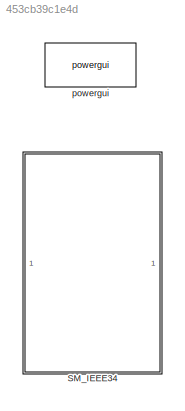
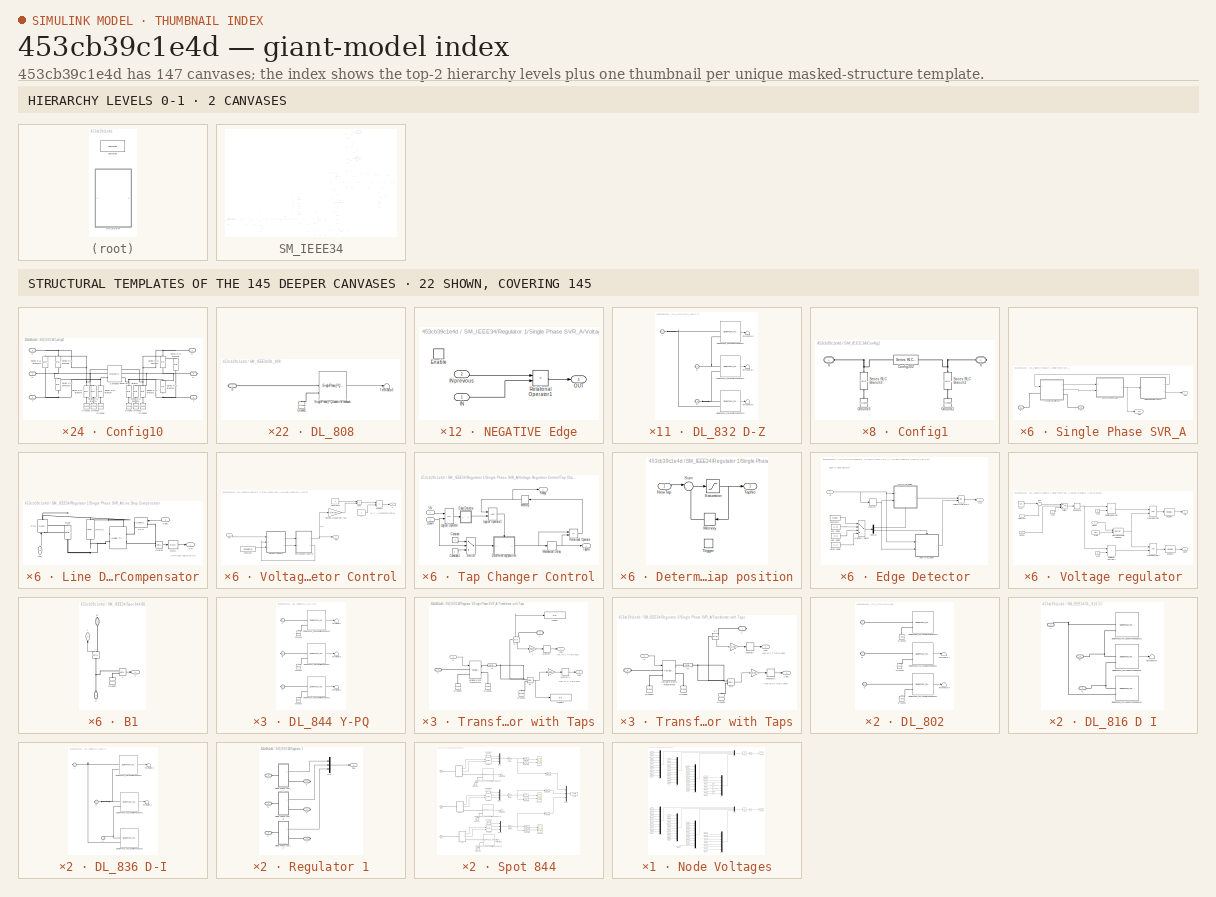
[diagram: thumbnail index - top-2 hierarchy levels (2 canvases) + 22 structural-template representatives of the remaining 145 canvases]
MODEL slx_453cb39c1e4d
KIND model
CONFIG AbsTol = auto
CONFIG EnableMultiTasking = off
CONFIG FixedStep = 50e-6
CONFIG InitFcn = pGain = 0.05; % Gain of random perturbation (pu)\npGainAP = 0.01; % Gain of sinusoidal active power variation (pu)\npGainRP = 0.01; % Gain of sinusoidal reactive power variation (pu)\npFreqAP = 0.03; % Frequency of sinusoidal active power variation (Hz)\npFreqRP = 0.03; % Frequency of sinusoidal reactive power variation (Hz)\n\ninit_IEEE34nodetestfeeder;\n
CONFIG MaxStep = auto
CONFIG MinStep = auto
CONFIG PreLoadFcn = pGain = 0.05; % Gain of random perturbation (pu)\npGainAP = 0.01; % Gain of sinusoidal active power variation (pu)\npGainRP = 0.01; % Gain of sinusoidal reactive power variation (pu)\npFreqAP = 0.03; % Frequency of sinusoidal active power variation (Hz)\npFreqRP = 0.03; % Frequency of sinusoidal reactive power variation (Hz)\n\ninit_IEEE34nodetestfeeder;\n
CONFIG RelTol = 1e-3
CONFIG SampleTimeConstraint = Unconstrained
CONFIG SolverName = ode4
CONFIG StartTime = 0.0
CONFIG StopTime = 5
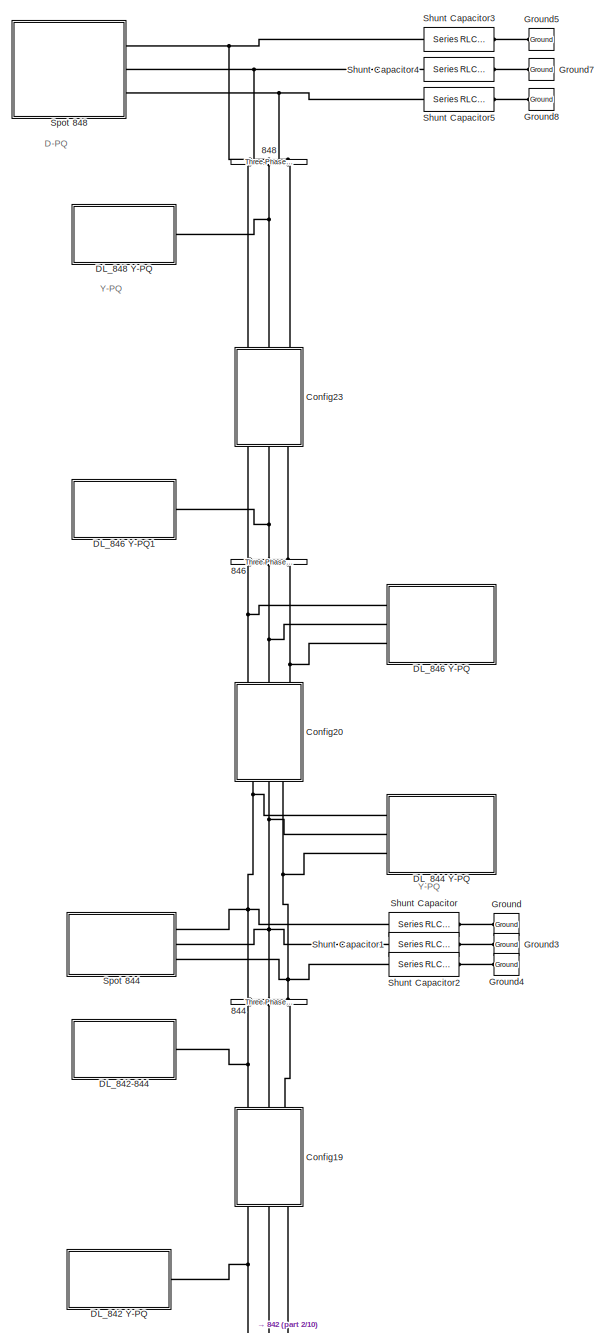
[diagram: SM_IEEE34 - part 1/10, top right region]
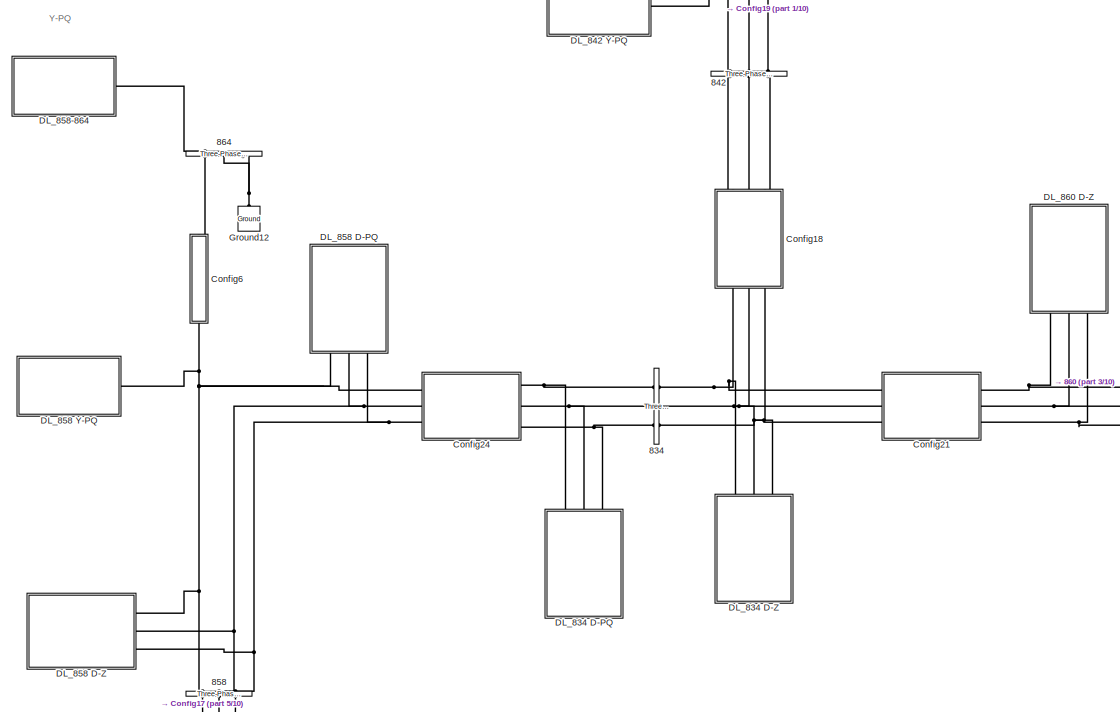
[diagram: SM_IEEE34 - part 2/10, middle right region]
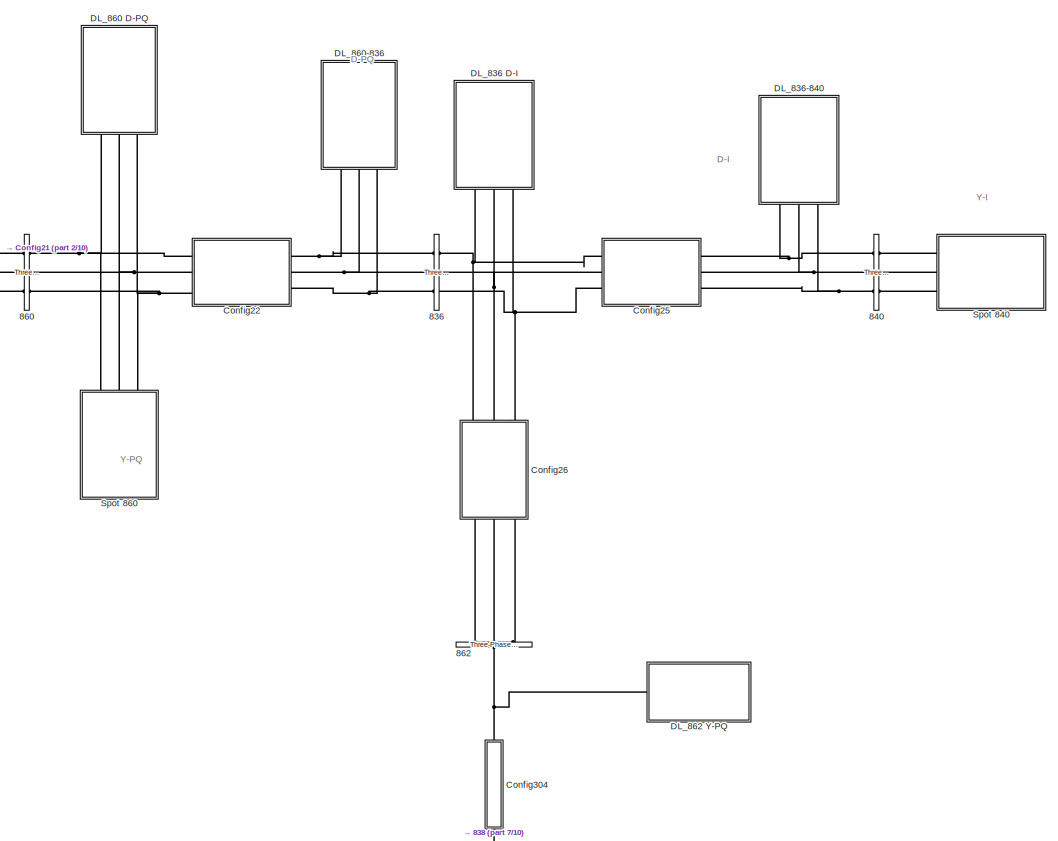
[diagram: SM_IEEE34 - part 3/10, middle right region]
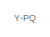
[diagram: SM_IEEE34 - part 4/10, central region]
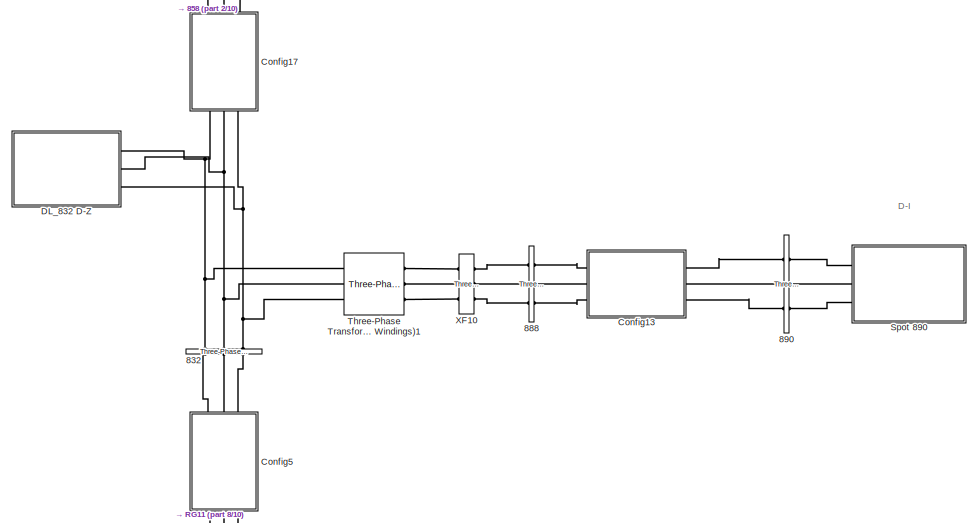
[diagram: SM_IEEE34 - part 5/10, middle right region]
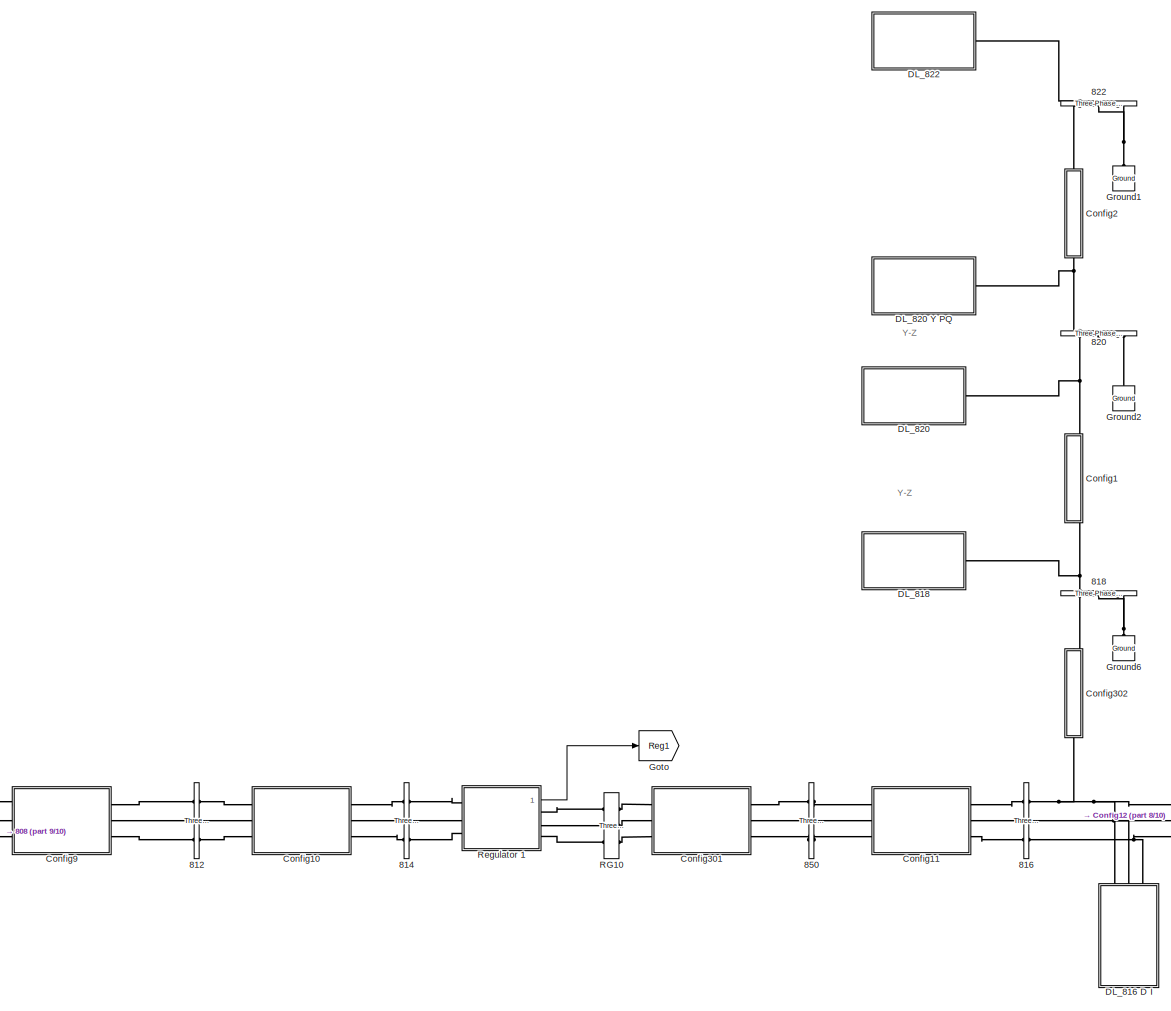
[diagram: SM_IEEE34 - part 6/10, bottom center region]
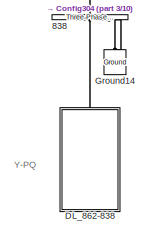
[diagram: SM_IEEE34 - part 7/10, bottom right region]
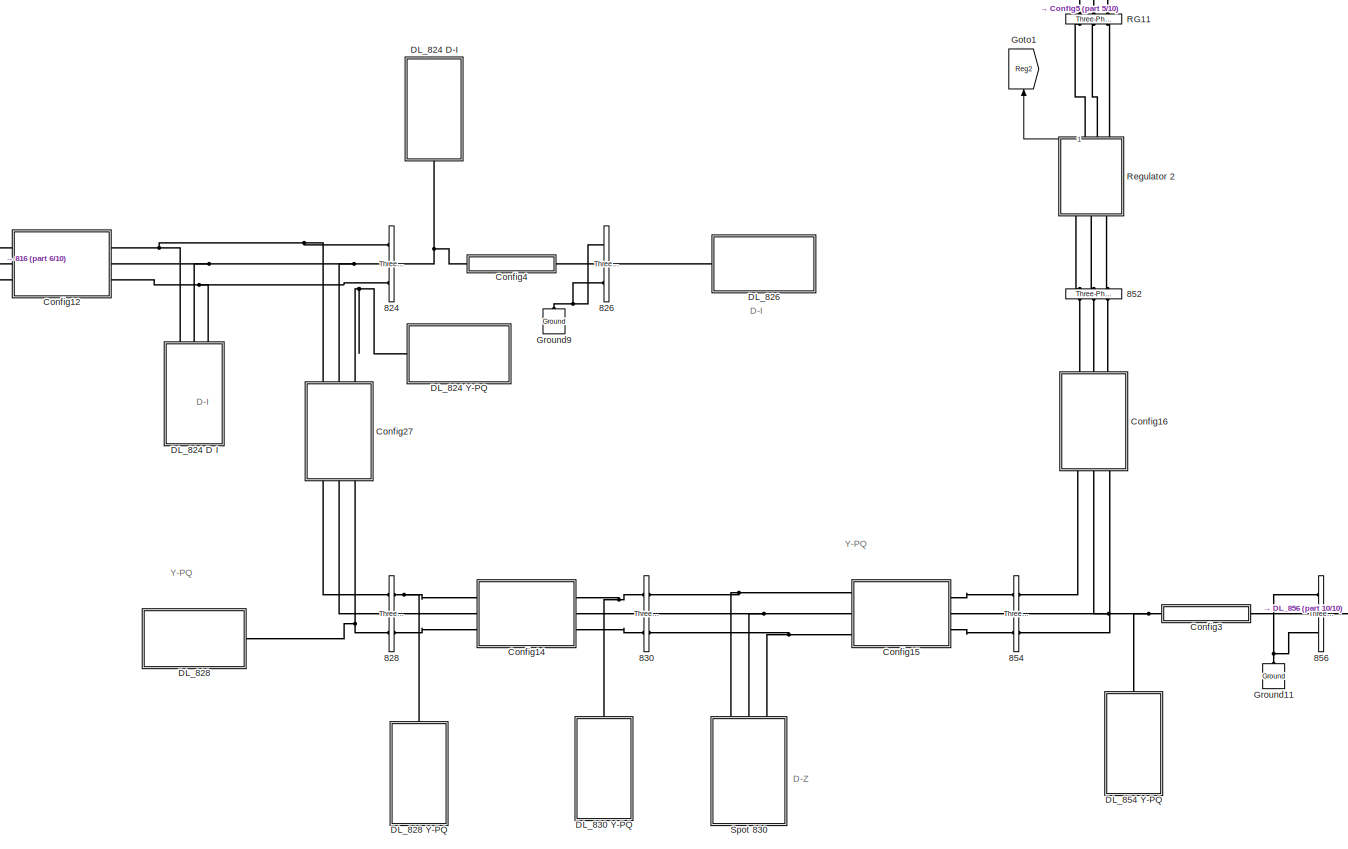
[diagram: SM_IEEE34 - part 8/10, bottom center region]
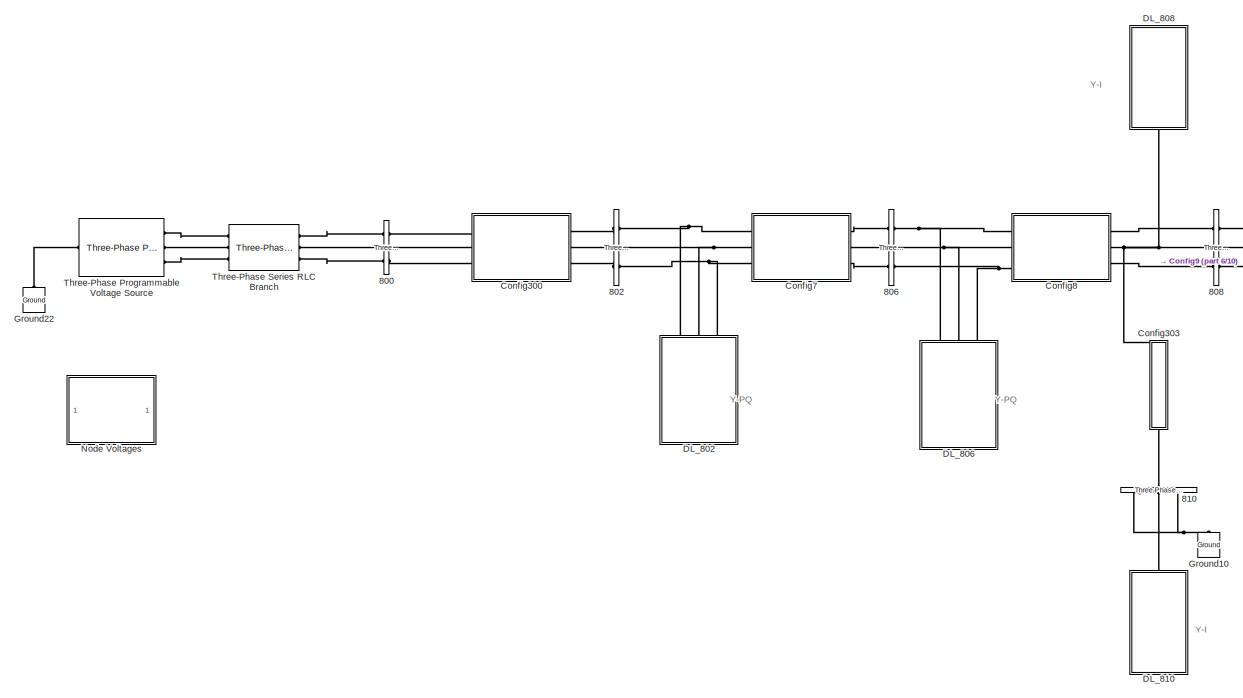
[diagram: SM_IEEE34 - part 9/10, bottom left region]
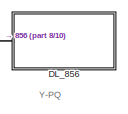
[diagram: SM_IEEE34 - part 10/10, bottom right region]
BLOCK [SubSystem] SM_IEEE34
  Ports = []
  RequestExecContextInheritance = off
BLOCK [Reference] SM_IEEE34/800  REF=spsThreePhaseVIMeasurementLib/Three-Phase
V-I Measurement
  Ports = [0, 0, 0, 0, 0, 3, 3]
  SourceBlock = spsThreePhaseVIMeasurementLib/Three-Phase\nV-I Measurement
  SourceProductBaseCode = PS
  SourceType = Three-Phase VI Measurement
BLOCK [Reference] SM_IEEE34/802  REF=spsThreePhaseVIMeasurementLib/Three-Phase
V-I Measurement
  Ports = [0, 0, 0, 0, 0, 3, 3]
  SourceBlock = spsThreePhaseVIMeasurementLib/Three-Phase\nV-I Measurement
  SourceProductBaseCode = PS
  SourceType = Three-Phase VI Measurement
BLOCK [Reference] SM_IEEE34/806  REF=spsThreePhaseVIMeasurementLib/Three-Phase
V-I Measurement
  Ports = [0, 0, 0, 0, 0, 3, 3]
  SourceBlock = spsThreePhaseVIMeasurementLib/Three-Phase\nV-I Measurement
  SourceProductBaseCode = PS
  SourceType = Three-Phase VI Measurement
BLOCK [Reference] SM_IEEE34/808  REF=spsThreePhaseVIMeasurementLib/Three-Phase
V-I Measurement
  Ports = [0, 0, 0, 0, 0, 3, 3]
  SourceBlock = spsThreePhaseVIMeasurementLib/Three-Phase\nV-I Measurement
  SourceProductBaseCode = PS
  SourceType = Three-Phase VI Measurement
BLOCK [Reference] SM_IEEE34/810  REF=spsThreePhaseVIMeasurementLib/Three-Phase
V-I Measurement
  NameLocation = left
  Ports = [0, 0, 0, 0, 0, 3, 3]
  SourceBlock = spsThreePhaseVIMeasurementLib/Three-Phase\nV-I Measurement
  SourceProductBaseCode = PS
  SourceType = Three-Phase VI Measurement
BLOCK [Reference] SM_IEEE34/812  REF=spsThreePhaseVIMeasurementLib/Three-Phase
V-I Measurement
  Ports = [0, 0, 0, 0, 0, 3, 3]
  SourceBlock = spsThreePhaseVIMeasurementLib/Three-Phase\nV-I Measurement
  SourceProductBaseCode = PS
  SourceType = Three-Phase VI Measurement
BLOCK [Reference] SM_IEEE34/814  REF=spsThreePhaseVIMeasurementLib/Three-Phase
V-I Measurement
  Ports = [0, 0, 0, 0, 0, 3, 3]
  SourceBlock = spsThreePhaseVIMeasurementLib/Three-Phase\nV-I Measurement
  SourceProductBaseCode = PS
  SourceType = Three-Phase VI Measurement
BLOCK [Reference] SM_IEEE34/816  REF=spsThreePhaseVIMeasurementLib/Three-Phase
V-I Measurement
  Ports = [0, 0, 0, 0, 0, 3, 3]
  SourceBlock = spsThreePhaseVIMeasurementLib/Three-Phase\nV-I Measurement
  SourceProductBaseCode = PS
  SourceType = Three-Phase VI Measurement
BLOCK [Reference] SM_IEEE34/818  REF=spsThreePhaseVIMeasurementLib/Three-Phase
V-I Measurement
  NameLocation = right
  Ports = [0, 0, 0, 0, 0, 3, 3]
  SourceBlock = spsThreePhaseVIMeasurementLib/Three-Phase\nV-I Measurement
  SourceProductBaseCode = PS
  SourceType = Three-Phase VI Measurement
BLOCK [Reference] SM_IEEE34/820  REF=spsThreePhaseVIMeasurementLib/Three-Phase
V-I Measurement
  NameLocation = right
  Ports = [0, 0, 0, 0, 0, 3, 3]
  SourceBlock = spsThreePhaseVIMeasurementLib/Three-Phase\nV-I Measurement
  SourceProductBaseCode = PS
  SourceType = Three-Phase VI Measurement
BLOCK [Reference] SM_IEEE34/822  REF=spsThreePhaseVIMeasurementLib/Three-Phase
V-I Measurement
  NameLocation = right
  Ports = [0, 0, 0, 0, 0, 3, 3]
  SourceBlock = spsThreePhaseVIMeasurementLib/Three-Phase\nV-I Measurement
  SourceProductBaseCode = PS
  SourceType = Three-Phase VI Measurement
BLOCK [Reference] SM_IEEE34/824  REF=spsThreePhaseVIMeasurementLib/Three-Phase
V-I Measurement
  Ports = [0, 0, 0, 0, 0, 3, 3]
  SourceBlock = spsThreePhaseVIMeasurementLib/Three-Phase\nV-I Measurement
  SourceProductBaseCode = PS
  SourceType = Three-Phase VI Measurement
BLOCK [Reference] SM_IEEE34/826  REF=spsThreePhaseVIMeasurementLib/Three-Phase
V-I Measurement
  Ports = [0, 0, 0, 0, 0, 3, 3]
  SourceBlock = spsThreePhaseVIMeasurementLib/Three-Phase\nV-I Measurement
  SourceProductBaseCode = PS
  SourceType = Three-Phase VI Measurement
BLOCK [Reference] SM_IEEE34/828  REF=spsThreePhaseVIMeasurementLib/Three-Phase
V-I Measurement
  Ports = [0, 0, 0, 0, 0, 3, 3]
  SourceBlock = spsThreePhaseVIMeasurementLib/Three-Phase\nV-I Measurement
  SourceProductBaseCode = PS
  SourceType = Three-Phase VI Measurement
BLOCK [Reference] SM_IEEE34/830  REF=spsThreePhaseVIMeasurementLib/Three-Phase
V-I Measurement
  Ports = [0, 0, 0, 0, 0, 3, 3]
  SourceBlock = spsThreePhaseVIMeasurementLib/Three-Phase\nV-I Measurement
  SourceProductBaseCode = PS
  SourceType = Three-Phase VI Measurement
BLOCK [Reference] SM_IEEE34/832  REF=spsThreePhaseVIMeasurementLib/Three-Phase
V-I Measurement
  NameLocation = right
  Ports = [0, 0, 0, 0, 0, 3, 3]
  SourceBlock = spsThreePhaseVIMeasurementLib/Three-Phase\nV-I Measurement
  SourceProductBaseCode = PS
  SourceType = Three-Phase VI Measurement
BLOCK [Reference] SM_IEEE34/834  REF=spsThreePhaseVIMeasurementLib/Three-Phase
V-I Measurement
  Ports = [0, 0, 0, 0, 0, 3, 3]
  SourceBlock = spsThreePhaseVIMeasurementLib/Three-Phase\nV-I Measurement
  SourceProductBaseCode = PS
  SourceType = Three-Phase VI Measurement
BLOCK [Reference] SM_IEEE34/836  REF=spsThreePhaseVIMeasurementLib/Three-Phase
V-I Measurement
  Ports = [0, 0, 0, 0, 0, 3, 3]
  SourceBlock = spsThreePhaseVIMeasurementLib/Three-Phase\nV-I Measurement
  SourceProductBaseCode = PS
  SourceType = Three-Phase VI Measurement
BLOCK [Reference] SM_IEEE34/838  REF=spsThreePhaseVIMeasurementLib/Three-Phase
V-I Measurement
  NameLocation = left
  Ports = [0, 0, 0, 0, 0, 3, 3]
  SourceBlock = spsThreePhaseVIMeasurementLib/Three-Phase\nV-I Measurement
  SourceProductBaseCode = PS
  SourceType = Three-Phase VI Measurement
BLOCK [Reference] SM_IEEE34/840  REF=spsThreePhaseVIMeasurementLib/Three-Phase
V-I Measurement
  Ports = [0, 0, 0, 0, 0, 3, 3]
  SourceBlock = spsThreePhaseVIMeasurementLib/Three-Phase\nV-I Measurement
  SourceProductBaseCode = PS
  SourceType = Three-Phase VI Measurement
BLOCK [Reference] SM_IEEE34/842  REF=spsThreePhaseVIMeasurementLib/Three-Phase
V-I Measurement
  NameLocation = right
  Ports = [0, 0, 0, 0, 0, 3, 3]
  SourceBlock = spsThreePhaseVIMeasurementLib/Three-Phase\nV-I Measurement
  SourceProductBaseCode = PS
  SourceType = Three-Phase VI Measurement
BLOCK [Reference] SM_IEEE34/844  REF=spsThreePhaseVIMeasurementLib/Three-Phase
V-I Measurement
  NameLocation = right
  Ports = [0, 0, 0, 0, 0, 3, 3]
  SourceBlock = spsThreePhaseVIMeasurementLib/Three-Phase\nV-I Measurement
  SourceProductBaseCode = PS
  SourceType = Three-Phase VI Measurement
BLOCK [Reference] SM_IEEE34/846  REF=spsThreePhaseVIMeasurementLib/Three-Phase
V-I Measurement
  NameLocation = right
  Ports = [0, 0, 0, 0, 0, 3, 3]
  SourceBlock = spsThreePhaseVIMeasurementLib/Three-Phase\nV-I Measurement
  SourceProductBaseCode = PS
  SourceType = Three-Phase VI Measurement
BLOCK [Reference] SM_IEEE34/848  REF=spsThreePhaseVIMeasurementLib/Three-Phase
V-I Measurement
  NameLocation = right
  Ports = [0, 0, 0, 0, 0, 3, 3]
  SourceBlock = spsThreePhaseVIMeasurementLib/Three-Phase\nV-I Measurement
  SourceProductBaseCode = PS
  SourceType = Three-Phase VI Measurement
BLOCK [Reference] SM_IEEE34/850  REF=spsThreePhaseVIMeasurementLib/Three-Phase
V-I Measurement
  Ports = [0, 0, 0, 0, 0, 3, 3]
  SourceBlock = spsThreePhaseVIMeasurementLib/Three-Phase\nV-I Measurement
  SourceProductBaseCode = PS
  SourceType = Three-Phase VI Measurement
BLOCK [Reference] SM_IEEE34/852   REF=spsThreePhaseVIMeasurementLib/Three-Phase
V-I Measurement
  NameLocation = right
  Ports = [0, 0, 0, 0, 0, 3, 3]
  SourceBlock = spsThreePhaseVIMeasurementLib/Three-Phase\nV-I Measurement
  SourceProductBaseCode = PS
  SourceType = Three-Phase VI Measurement
BLOCK [Reference] SM_IEEE34/854  REF=spsThreePhaseVIMeasurementLib/Three-Phase
V-I Measurement
  Ports = [0, 0, 0, 0, 0, 3, 3]
  SourceBlock = spsThreePhaseVIMeasurementLib/Three-Phase\nV-I Measurement
  SourceProductBaseCode = PS
  SourceType = Three-Phase VI Measurement
BLOCK [Reference] SM_IEEE34/856  REF=spsThreePhaseVIMeasurementLib/Three-Phase
V-I Measurement
  Ports = [0, 0, 0, 0, 0, 3, 3]
  SourceBlock = spsThreePhaseVIMeasurementLib/Three-Phase\nV-I Measurement
  SourceProductBaseCode = PS
  SourceType = Three-Phase VI Measurement
BLOCK [Reference] SM_IEEE34/858  REF=spsThreePhaseVIMeasurementLib/Three-Phase
V-I Measurement
  NameLocation = right
  Ports = [0, 0, 0, 0, 0, 3, 3]
  SourceBlock = spsThreePhaseVIMeasurementLib/Three-Phase\nV-I Measurement
  SourceProductBaseCode = PS
  SourceType = Three-Phase VI Measurement
BLOCK [Reference] SM_IEEE34/860  REF=spsThreePhaseVIMeasurementLib/Three-Phase
V-I Measurement
  Ports = [0, 0, 0, 0, 0, 3, 3]
  SourceBlock = spsThreePhaseVIMeasurementLib/Three-Phase\nV-I Measurement
  SourceProductBaseCode = PS
  SourceType = Three-Phase VI Measurement
BLOCK [Reference] SM_IEEE34/862  REF=spsThreePhaseVIMeasurementLib/Three-Phase
V-I Measurement
  NameLocation = left
  Ports = [0, 0, 0, 0, 0, 3, 3]
  SourceBlock = spsThreePhaseVIMeasurementLib/Three-Phase\nV-I Measurement
  SourceProductBaseCode = PS
  SourceType = Three-Phase VI Measurement
BLOCK [Reference] SM_IEEE34/864  REF=spsThreePhaseVIMeasurementLib/Three-Phase
V-I Measurement
  NameLocation = right
  Ports = [0, 0, 0, 0, 0, 3, 3]
  SourceBlock = spsThreePhaseVIMeasurementLib/Three-Phase\nV-I Measurement
  SourceProductBaseCode = PS
  SourceType = Three-Phase VI Measurement
BLOCK [Reference] SM_IEEE34/888  REF=spsThreePhaseVIMeasurementLib/Three-Phase
V-I Measurement
  Ports = [0, 0, 0, 0, 0, 3, 3]
  SourceBlock = spsThreePhaseVIMeasurementLib/Three-Phase\nV-I Measurement
  SourceProductBaseCode = PS
  SourceType = Three-Phase VI Measurement
BLOCK [Reference] SM_IEEE34/890  REF=spsThreePhaseVIMeasurementLib/Three-Phase
V-I Measurement
  Ports = [0, 0, 0, 0, 0, 3, 3]
  SourceBlock = spsThreePhaseVIMeasurementLib/Three-Phase\nV-I Measurement
  SourceProductBaseCode = PS
  SourceType = Three-Phase VI Measurement
BLOCK [SubSystem] SM_IEEE34/Config1
  NameLocation = left
  Ports = [0, 0, 0, 0, 0, 1, 1]
  RequestExecContextInheritance = off
BLOCK [Reference] SM_IEEE34/Config1/Config302  REF=spsSeriesRLCBranchLib/Series RLC Branch
  Ports = [0, 0, 0, 0, 0, 1, 1]
  SourceBlock = spsSeriesRLCBranchLib/Series RLC Branch
  SourceProductBaseCode = PS
  SourceType = Series RLC Branch
BLOCK [Reference] SM_IEEE34/Config1/Ground2  REF=spsGroundLib/Ground
  NameLocation = right
  Ports = [0, 0, 0, 0, 0, 1]
  SourceBlock = spsGroundLib/Ground
  SourceProductBaseCode = PS
  SourceType = Ground
BLOCK [Reference] SM_IEEE34/Config1/Ground3  REF=spsGroundLib/Ground
  NameLocation = right
  Ports = [0, 0, 0, 0, 0, 1]
  SourceBlock = spsGroundLib/Ground
  SourceProductBaseCode = PS
  SourceType = Ground
BLOCK [Reference] SM_IEEE34/Config1/Series RLC Branch2  REF=spsSeriesRLCBranchLib/Series RLC Branch
  NameLocation = left
  Ports = [0, 0, 0, 0, 0, 1, 1]
  SourceBlock = spsSeriesRLCBranchLib/Series RLC Branch
  SourceProductBaseCode = PS
  SourceType = Series RLC Branch
BLOCK [Reference] SM_IEEE34/Config1/Series RLC Branch3  REF=spsSeriesRLCBranchLib/Series RLC Branch
  NameLocation = left
  Ports = [0, 0, 0, 0, 0, 1, 1]
  SourceBlock = spsSeriesRLCBranchLib/Series RLC Branch
  SourceProductBaseCode = PS
  SourceType = Series RLC Branch
BLOCK [PMIOPort] SM_IEEE34/Config1/a
  Side = Left
  Tag = PMCPort
BLOCK [PMIOPort] SM_IEEE34/Config1/a 
  NameLocation = top
  Port = 2
  Side = Right
  Tag = PMCPort
BLOCK [SubSystem] SM_IEEE34/Config10
  Ports = [0, 0, 0, 0, 0, 3, 3]
  RequestExecContextInheritance = off
BLOCK [Reference] SM_IEEE34/Config10/Config300  REF=spsMutualInductanceLib/Mutual Inductance
  AttributesFormatString = \n
  Ports = [0, 0, 0, 0, 0, 3, 3]
  SourceBlock = spsMutualInductanceLib/Mutual Inductance
  SourceProductBaseCode = PS
  SourceType = Mutual Inductance
BLOCK [Reference] SM_IEEE34/Config10/Ground  REF=spsGroundLib/Ground
  NameLocation = right
  Ports = [0, 0, 0, 0, 0, 1]
  SourceBlock = spsGroundLib/Ground
  SourceProductBaseCode = PS
  SourceType = Ground
BLOCK [Reference] SM_IEEE34/Config10/Ground1  REF=spsGroundLib/Ground
  NameLocation = right
  Ports = [0, 0, 0, 0, 0, 1]
  SourceBlock = spsGroundLib/Ground
  SourceProductBaseCode = PS
  SourceType = Ground
BLOCK [Reference] SM_IEEE34/Config10/Ground2  REF=spsGroundLib/Ground
  NameLocation = right
  Ports = [0, 0, 0, 0, 0, 1]
  SourceBlock = spsGroundLib/Ground
  SourceProductBaseCode = PS
  SourceType = Ground
BLOCK [Reference] SM_IEEE34/Config10/Ground3  REF=spsGroundLib/Ground
  NameLocation = right
  Ports = [0, 0, 0, 0, 0, 1]
  SourceBlock = spsGroundLib/Ground
  SourceProductBaseCode = PS
  SourceType = Ground
BLOCK [Reference] SM_IEEE34/Config10/Ground4  REF=spsGroundLib/Ground
  NameLocation = right
  Ports = [0, 0, 0, 0, 0, 1]
  SourceBlock = spsGroundLib/Ground
  SourceProductBaseCode = PS
  SourceType = Ground
BLOCK [Reference] SM_IEEE34/Config10/Ground5  REF=spsGroundLib/Ground
  NameLocation = right
  Ports = [0, 0, 0, 0, 0, 1]
  SourceBlock = spsGroundLib/Ground
  SourceProductBaseCode = PS
  SourceType = Ground
BLOCK [Reference] SM_IEEE34/Config10/Series RLC Branch  REF=spsSeriesRLCBranchLib/Series RLC Branch
  NameLocation = left
  Ports = [0, 0, 0, 0, 0, 1, 1]
  SourceBlock = spsSeriesRLCBranchLib/Series RLC Branch
  SourceProductBaseCode = PS
  SourceType = Series RLC Branch
BLOCK [Reference] SM_IEEE34/Config10/Series RLC Branch1  REF=spsSeriesRLCBranchLib/Series RLC Branch
  NameLocation = left
  Ports = [0, 0, 0, 0, 0, 1, 1]
  SourceBlock = spsSeriesRLCBranchLib/Series RLC Branch
  SourceProductBaseCode = PS
  SourceType = Series RLC Branch
BLOCK [Reference] SM_IEEE34/Config10/Series RLC Branch10  REF=spsSeriesRLCBranchLib/Series RLC Branch
  NameLocation = left
  Ports = [0, 0, 0, 0, 0, 1, 1]
  SourceBlock = spsSeriesRLCBranchLib/Series RLC Branch
  SourceProductBaseCode = PS
  SourceType = Series RLC Branch
BLOCK [Reference] SM_IEEE34/Config10/Series RLC Branch11  REF=spsSeriesRLCBranchLib/Series RLC Branch
  NameLocation = left
  Ports = [0, 0, 0, 0, 0, 1, 1]
  SourceBlock = spsSeriesRLCBranchLib/Series RLC Branch
  SourceProductBaseCode = PS
  SourceType = Series RLC Branch
BLOCK [Reference] SM_IEEE34/Config10/Series RLC Branch2  REF=spsSeriesRLCBranchLib/Series RLC Branch
  NameLocation = left
  Ports = [0, 0, 0, 0, 0, 1, 1]
  SourceBlock = spsSeriesRLCBranchLib/Series RLC Branch
  SourceProductBaseCode = PS
  SourceType = Series RLC Branch
BLOCK [Reference] SM_IEEE34/Config10/Series RLC Branch3  REF=spsSeriesRLCBranchLib/Series RLC Branch
  NameLocation = left
  Ports = [0, 0, 0, 0, 0, 1, 1]
  SourceBlock = spsSeriesRLCBranchLib/Series RLC Branch
  SourceProductBaseCode = PS
  SourceType = Series RLC Branch
BLOCK [Reference] SM_IEEE34/Config10/Series RLC Branch4  REF=spsSeriesRLCBranchLib/Series RLC Branch
  NameLocation = left
  Ports = [0, 0, 0, 0, 0, 1, 1]
  SourceBlock = spsSeriesRLCBranchLib/Series RLC Branch
  SourceProductBaseCode = PS
  SourceType = Series RLC Branch
BLOCK [Reference] SM_IEEE34/Config10/Series RLC Branch5  REF=spsSeriesRLCBranchLib/Series RLC Branch
  NameLocation = left
  Ports = [0, 0, 0, 0, 0, 1, 1]
  SourceBlock = spsSeriesRLCBranchLib/Series RLC Branch
  SourceProductBaseCode = PS
  SourceType = Series RLC Branch
BLOCK [Reference] SM_IEEE34/Config10/Series RLC Branch6  REF=spsSeriesRLCBranchLib/Series RLC Branch
  NameLocation = left
  Ports = [0, 0, 0, 0, 0, 1, 1]
  SourceBlock = spsSeriesRLCBranchLib/Series RLC Branch
  SourceProductBaseCode = PS
  SourceType = Series RLC Branch
BLOCK [Reference] SM_IEEE34/Config10/Series RLC Branch7  REF=spsSeriesRLCBranchLib/Series RLC Branch
  NameLocation = left
  Ports = [0, 0, 0, 0, 0, 1, 1]
  SourceBlock = spsSeriesRLCBranchLib/Series RLC Branch
  SourceProductBaseCode = PS
  SourceType = Series RLC Branch
BLOCK [Reference] SM_IEEE34/Config10/Series RLC Branch8  REF=spsSeriesRLCBranchLib/Series RLC Branch
  NameLocation = left
  Ports = [0, 0, 0, 0, 0, 1, 1]
  SourceBlock = spsSeriesRLCBranchLib/Series RLC Branch
  SourceProductBaseCode = PS
  SourceType = Series RLC Branch
BLOCK [Reference] SM_IEEE34/Config10/Series RLC Branch9  REF=spsSeriesRLCBranchLib/Series RLC Branch
  NameLocation = left
  Ports = [0, 0, 0, 0, 0, 1, 1]
  SourceBlock = spsSeriesRLCBranchLib/Series RLC Branch
  SourceProductBaseCode = PS
  SourceType = Series RLC Branch
BLOCK [PMIOPort] SM_IEEE34/Config10/a
  Side = Left
  Tag = PMCPort
BLOCK [PMIOPort] SM_IEEE34/Config10/a 
  NameLocation = top
  Port = 4
  Side = Right
  Tag = PMCPort
BLOCK [PMIOPort] SM_IEEE34/Config10/b
  Port = 2
  Side = Left
  Tag = PMCPort
BLOCK [PMIOPort] SM_IEEE34/Config10/b 
  NameLocation = top
  Port = 5
  Side = Right
  Tag = PMCPort
BLOCK [PMIOPort] SM_IEEE34/Config10/c
  Port = 3
  Side = Left
  Tag = PMCPort
BLOCK [PMIOPort] SM_IEEE34/Config10/c 
  NameLocation = top
  Port = 6
  Side = Right
  Tag = PMCPort
BLOCK [SubSystem] SM_IEEE34/Config11
  Ports = [0, 0, 0, 0, 0, 3, 3]
  RequestExecContextInheritance = off
BLOCK [Reference] SM_IEEE34/Config11/Config301  REF=spsMutualInductanceLib/Mutual Inductance
  AttributesFormatString = \n
  Ports = [0, 0, 0, 0, 0, 3, 3]
  SourceBlock = spsMutualInductanceLib/Mutual Inductance
  SourceProductBaseCode = PS
  SourceType = Mutual Inductance
BLOCK [Reference] SM_IEEE34/Config11/Ground  REF=spsGroundLib/Ground
  NameLocation = right
  Ports = [0, 0, 0, 0, 0, 1]
  SourceBlock = spsGroundLib/Ground
  SourceProductBaseCode = PS
  SourceType = Ground
BLOCK [Reference] SM_IEEE34/Config11/Ground1  REF=spsGroundLib/Ground
  NameLocation = right
  Ports = [0, 0, 0, 0, 0, 1]
  SourceBlock = spsGroundLib/Ground
  SourceProductBaseCode = PS
  SourceType = Ground
BLOCK [Reference] SM_IEEE34/Config11/Ground2  REF=spsGroundLib/Ground
  NameLocation = right
  Ports = [0, 0, 0, 0, 0, 1]
  SourceBlock = spsGroundLib/Ground
  SourceProductBaseCode = PS
  SourceType = Ground
BLOCK [Reference] SM_IEEE34/Config11/Ground3  REF=spsGroundLib/Ground
  NameLocation = right
  Ports = [0, 0, 0, 0, 0, 1]
  SourceBlock = spsGroundLib/Ground
  SourceProductBaseCode = PS
  SourceType = Ground
BLOCK [Reference] SM_IEEE34/Config11/Ground4  REF=spsGroundLib/Ground
  NameLocation = right
  Ports = [0, 0, 0, 0, 0, 1]
  SourceBlock = spsGroundLib/Ground
  SourceProductBaseCode = PS
  SourceType = Ground
BLOCK [Reference] SM_IEEE34/Config11/Ground5  REF=spsGroundLib/Ground
  NameLocation = right
  Ports = [0, 0, 0, 0, 0, 1]
  SourceBlock = spsGroundLib/Ground
  SourceProductBaseCode = PS
  SourceType = Ground
BLOCK [Reference] SM_IEEE34/Config11/Series RLC Branch  REF=spsSeriesRLCBranchLib/Series RLC Branch
  NameLocation = left
  Ports = [0, 0, 0, 0, 0, 1, 1]
  SourceBlock = spsSeriesRLCBranchLib/Series RLC Branch
  SourceProductBaseCode = PS
  SourceType = Series RLC Branch
BLOCK [Reference] SM_IEEE34/Config11/Series RLC Branch1  REF=spsSeriesRLCBranchLib/Series RLC Branch
  NameLocation = left
  Ports = [0, 0, 0, 0, 0, 1, 1]
  SourceBlock = spsSeriesRLCBranchLib/Series RLC Branch
  SourceProductBaseCode = PS
  SourceType = Series RLC Branch
BLOCK [Reference] SM_IEEE34/Config11/Series RLC Branch10  REF=spsSeriesRLCBranchLib/Series RLC Branch
  NameLocation = left
  Ports = [0, 0, 0, 0, 0, 1, 1]
  SourceBlock = spsSeriesRLCBranchLib/Series RLC Branch
  SourceProductBaseCode = PS
  SourceType = Series RLC Branch
BLOCK [Reference] SM_IEEE34/Config11/Series RLC Branch11  REF=spsSeriesRLCBranchLib/Series RLC Branch
  NameLocation = left
  Ports = [0, 0, 0, 0, 0, 1, 1]
  SourceBlock = spsSeriesRLCBranchLib/Series RLC Branch
  SourceProductBaseCode = PS
  SourceType = Series RLC Branch
BLOCK [Reference] SM_IEEE34/Config11/Series RLC Branch2  REF=spsSeriesRLCBranchLib/Series RLC Branch
  NameLocation = left
  Ports = [0, 0, 0, 0, 0, 1, 1]
  SourceBlock = spsSeriesRLCBranchLib/Series RLC Branch
  SourceProductBaseCode = PS
  SourceType = Series RLC Branch
BLOCK [Reference] SM_IEEE34/Config11/Series RLC Branch3  REF=spsSeriesRLCBranchLib/Series RLC Branch
  NameLocation = left
  Ports = [0, 0, 0, 0, 0, 1, 1]
  SourceBlock = spsSeriesRLCBranchLib/Series RLC Branch
  SourceProductBaseCode = PS
  SourceType = Series RLC Branch
BLOCK [Reference] SM_IEEE34/Config11/Series RLC Branch4  REF=spsSeriesRLCBranchLib/Series RLC Branch
  NameLocation = left
  Ports = [0, 0, 0, 0, 0, 1, 1]
  SourceBlock = spsSeriesRLCBranchLib/Series RLC Branch
  SourceProductBaseCode = PS
  SourceType = Series RLC Branch
BLOCK [Reference] SM_IEEE34/Config11/Series RLC Branch5  REF=spsSeriesRLCBranchLib/Series RLC Branch
  NameLocation = left
  Ports = [0, 0, 0, 0, 0, 1, 1]
  SourceBlock = spsSeriesRLCBranchLib/Series RLC Branch
  SourceProductBaseCode = PS
  SourceType = Series RLC Branch
BLOCK [Reference] SM_IEEE34/Config11/Series RLC Branch6  REF=spsSeriesRLCBranchLib/Series RLC Branch
  NameLocation = left
  Ports = [0, 0, 0, 0, 0, 1, 1]
  SourceBlock = spsSeriesRLCBranchLib/Series RLC Branch
  SourceProductBaseCode = PS
  SourceType = Series RLC Branch
BLOCK [Reference] SM_IEEE34/Config11/Series RLC Branch7  REF=spsSeriesRLCBranchLib/Series RLC Branch
  NameLocation = left
  Ports = [0, 0, 0, 0, 0, 1, 1]
  SourceBlock = spsSeriesRLCBranchLib/Series RLC Branch
  SourceProductBaseCode = PS
  SourceType = Series RLC Branch
BLOCK [Reference] SM_IEEE34/Config11/Series RLC Branch8  REF=spsSeriesRLCBranchLib/Series RLC Branch
  NameLocation = left
  Ports = [0, 0, 0, 0, 0, 1, 1]
  SourceBlock = spsSeriesRLCBranchLib/Series RLC Branch
  SourceProductBaseCode = PS
  SourceType = Series RLC Branch
BLOCK [Reference] SM_IEEE34/Config11/Series RLC Branch9  REF=spsSeriesRLCBranchLib/Series RLC Branch
  NameLocation = left
  Ports = [0, 0, 0, 0, 0, 1, 1]
  SourceBlock = spsSeriesRLCBranchLib/Series RLC Branch
  SourceProductBaseCode = PS
  SourceType = Series RLC Branch
BLOCK [PMIOPort] SM_IEEE34/Config11/a
  Side = Left
  Tag = PMCPort
BLOCK [PMIOPort] SM_IEEE34/Config11/a 
  NameLocation = top
  Port = 4
  Side = Right
  Tag = PMCPort
BLOCK [PMIOPort] SM_IEEE34/Config11/b
  Port = 2
  Side = Left
  Tag = PMCPort
BLOCK [PMIOPort] SM_IEEE34/Config11/b 
  NameLocation = top
  Port = 5
  Side = Right
  Tag = PMCPort
BLOCK [PMIOPort] SM_IEEE34/Config11/c
  Port = 3
  Side = Left
  Tag = PMCPort
BLOCK [PMIOPort] SM_IEEE34/Config11/c 
  NameLocation = top
  Port = 6
  Side = Right
  Tag = PMCPort
BLOCK [SubSystem] SM_IEEE34/Config12
  Ports = [0, 0, 0, 0, 0, 3, 3]
  RequestExecContextInheritance = off
BLOCK [Reference] SM_IEEE34/Config12/Config301  REF=spsMutualInductanceLib/Mutual Inductance
  AttributesFormatString = \n
  Ports = [0, 0, 0, 0, 0, 3, 3]
  SourceBlock = spsMutualInductanceLib/Mutual Inductance
  SourceProductBaseCode = PS
  SourceType = Mutual Inductance
BLOCK [Reference] SM_IEEE34/Config12/Ground  REF=spsGroundLib/Ground
  NameLocation = right
  Ports = [0, 0, 0, 0, 0, 1]
  SourceBlock = spsGroundLib/Ground
  SourceProductBaseCode = PS
  SourceType = Ground
BLOCK [Reference] SM_IEEE34/Config12/Ground1  REF=spsGroundLib/Ground
  NameLocation = right
  Ports = [0, 0, 0, 0, 0, 1]
  SourceBlock = spsGroundLib/Ground
  SourceProductBaseCode = PS
  SourceType = Ground
BLOCK [Reference] SM_IEEE34/Config12/Ground2  REF=spsGroundLib/Ground
  NameLocation = right
  Ports = [0, 0, 0, 0, 0, 1]
  SourceBlock = spsGroundLib/Ground
  SourceProductBaseCode = PS
  SourceType = Ground
BLOCK [Reference] SM_IEEE34/Config12/Ground3  REF=spsGroundLib/Ground
  NameLocation = right
  Ports = [0, 0, 0, 0, 0, 1]
  SourceBlock = spsGroundLib/Ground
  SourceProductBaseCode = PS
  SourceType = Ground
BLOCK [Reference] SM_IEEE34/Config12/Ground4  REF=spsGroundLib/Ground
  NameLocation = right
  Ports = [0, 0, 0, 0, 0, 1]
  SourceBlock = spsGroundLib/Ground
  SourceProductBaseCode = PS
  SourceType = Ground
BLOCK [Reference] SM_IEEE34/Config12/Ground5  REF=spsGroundLib/Ground
  NameLocation = right
  Ports = [0, 0, 0, 0, 0, 1]
  SourceBlock = spsGroundLib/Ground
  SourceProductBaseCode = PS
  SourceType = Ground
BLOCK [Reference] SM_IEEE34/Config12/Series RLC Branch  REF=spsSeriesRLCBranchLib/Series RLC Branch
  NameLocation = left
  Ports = [0, 0, 0, 0, 0, 1, 1]
  SourceBlock = spsSeriesRLCBranchLib/Series RLC Branch
  SourceProductBaseCode = PS
  SourceType = Series RLC Branch
BLOCK [Reference] SM_IEEE34/Config12/Series RLC Branch1  REF=spsSeriesRLCBranchLib/Series RLC Branch
  NameLocation = left
  Ports = [0, 0, 0, 0, 0, 1, 1]
  SourceBlock = spsSeriesRLCBranchLib/Series RLC Branch
  SourceProductBaseCode = PS
  SourceType = Series RLC Branch
BLOCK [Reference] SM_IEEE34/Config12/Series RLC Branch10  REF=spsSeriesRLCBranchLib/Series RLC Branch
  NameLocation = left
  Ports = [0, 0, 0, 0, 0, 1, 1]
  SourceBlock = spsSeriesRLCBranchLib/Series RLC Branch
  SourceProductBaseCode = PS
  SourceType = Series RLC Branch
BLOCK [Reference] SM_IEEE34/Config12/Series RLC Branch11  REF=spsSeriesRLCBranchLib/Series RLC Branch
  NameLocation = left
  Ports = [0, 0, 0, 0, 0, 1, 1]
  SourceBlock = spsSeriesRLCBranchLib/Series RLC Branch
  SourceProductBaseCode = PS
  SourceType = Series RLC Branch
BLOCK [Reference] SM_IEEE34/Config12/Series RLC Branch2  REF=spsSeriesRLCBranchLib/Series RLC Branch
  NameLocation = left
  Ports = [0, 0, 0, 0, 0, 1, 1]
  SourceBlock = spsSeriesRLCBranchLib/Series RLC Branch
  SourceProductBaseCode = PS
  SourceType = Series RLC Branch
BLOCK [Reference] SM_IEEE34/Config12/Series RLC Branch3  REF=spsSeriesRLCBranchLib/Series RLC Branch
  NameLocation = left
  Ports = [0, 0, 0, 0, 0, 1, 1]
  SourceBlock = spsSeriesRLCBranchLib/Series RLC Branch
  SourceProductBaseCode = PS
  SourceType = Series RLC Branch
BLOCK [Reference] SM_IEEE34/Config12/Series RLC Branch4  REF=spsSeriesRLCBranchLib/Series RLC Branch
  NameLocation = left
  Ports = [0, 0, 0, 0, 0, 1, 1]
  SourceBlock = spsSeriesRLCBranchLib/Series RLC Branch
  SourceProductBaseCode = PS
  SourceType = Series RLC Branch
BLOCK [Reference] SM_IEEE34/Config12/Series RLC Branch5  REF=spsSeriesRLCBranchLib/Series RLC Branch
  NameLocation = left
  Ports = [0, 0, 0, 0, 0, 1, 1]
  SourceBlock = spsSeriesRLCBranchLib/Series RLC Branch
  SourceProductBaseCode = PS
  SourceType = Series RLC Branch
BLOCK [Reference] SM_IEEE34/Config12/Series RLC Branch6  REF=spsSeriesRLCBranchLib/Series RLC Branch
  NameLocation = left
  Ports = [0, 0, 0, 0, 0, 1, 1]
  SourceBlock = spsSeriesRLCBranchLib/Series RLC Branch
  SourceProductBaseCode = PS
  SourceType = Series RLC Branch
BLOCK [Reference] SM_IEEE34/Config12/Series RLC Branch7  REF=spsSeriesRLCBranchLib/Series RLC Branch
  NameLocation = left
  Ports = [0, 0, 0, 0, 0, 1, 1]
  SourceBlock = spsSeriesRLCBranchLib/Series RLC Branch
  SourceProductBaseCode = PS
  SourceType = Series RLC Branch
BLOCK [Reference] SM_IEEE34/Config12/Series RLC Branch8  REF=spsSeriesRLCBranchLib/Series RLC Branch
  NameLocation = left
  Ports = [0, 0, 0, 0, 0, 1, 1]
  SourceBlock = spsSeriesRLCBranchLib/Series RLC Branch
  SourceProductBaseCode = PS
  SourceType = Series RLC Branch
BLOCK [Reference] SM_IEEE34/Config12/Series RLC Branch9  REF=spsSeriesRLCBranchLib/Series RLC Branch
  NameLocation = left
  Ports = [0, 0, 0, 0, 0, 1, 1]
  SourceBlock = spsSeriesRLCBranchLib/Series RLC Branch
  SourceProductBaseCode = PS
  SourceType = Series RLC Branch
BLOCK [PMIOPort] SM_IEEE34/Config12/a
  Side = Left
  Tag = PMCPort
BLOCK [PMIOPort] SM_IEEE34/Config12/a 
  NameLocation = top
  Port = 4
  Side = Right
  Tag = PMCPort
BLOCK [PMIOPort] SM_IEEE34/Config12/b
  Port = 2
  Side = Left
  Tag = PMCPort
BLOCK [PMIOPort] SM_IEEE34/Config12/b 
  NameLocation = top
  Port = 5
  Side = Right
  Tag = PMCPort
BLOCK [PMIOPort] SM_IEEE34/Config12/c
  Port = 3
  Side = Left
  Tag = PMCPort
BLOCK [PMIOPort] SM_IEEE34/Config12/c 
  NameLocation = top
  Port = 6
  Side = Right
  Tag = PMCPort
BLOCK [SubSystem] SM_IEEE34/Config13
  Ports = [0, 0, 0, 0, 0, 3, 3]
  RequestExecContextInheritance = off
BLOCK [Reference] SM_IEEE34/Config13/Config300  REF=spsMutualInductanceLib/Mutual Inductance
  AttributesFormatString = \n
  Ports = [0, 0, 0, 0, 0, 3, 3]
  SourceBlock = spsMutualInductanceLib/Mutual Inductance
  SourceProductBaseCode = PS
  SourceType = Mutual Inductance
BLOCK [Reference] SM_IEEE34/Config13/Ground  REF=spsGroundLib/Ground
  NameLocation = right
  Ports = [0, 0, 0, 0, 0, 1]
  SourceBlock = spsGroundLib/Ground
  SourceProductBaseCode = PS
  SourceType = Ground
BLOCK [Reference] SM_IEEE34/Config13/Ground1  REF=spsGroundLib/Ground
  NameLocation = right
  Ports = [0, 0, 0, 0, 0, 1]
  SourceBlock = spsGroundLib/Ground
  SourceProductBaseCode = PS
  SourceType = Ground
BLOCK [Reference] SM_IEEE34/Config13/Ground2  REF=spsGroundLib/Ground
  NameLocation = right
  Ports = [0, 0, 0, 0, 0, 1]
  SourceBlock = spsGroundLib/Ground
  SourceProductBaseCode = PS
  SourceType = Ground
BLOCK [Reference] SM_IEEE34/Config13/Ground3  REF=spsGroundLib/Ground
  NameLocation = right
  Ports = [0, 0, 0, 0, 0, 1]
  SourceBlock = spsGroundLib/Ground
  SourceProductBaseCode = PS
  SourceType = Ground
BLOCK [Reference] SM_IEEE34/Config13/Ground4  REF=spsGroundLib/Ground
  NameLocation = right
  Ports = [0, 0, 0, 0, 0, 1]
  SourceBlock = spsGroundLib/Ground
  SourceProductBaseCode = PS
  SourceType = Ground
BLOCK [Reference] SM_IEEE34/Config13/Ground5  REF=spsGroundLib/Ground
  NameLocation = right
  Ports = [0, 0, 0, 0, 0, 1]
  SourceBlock = spsGroundLib/Ground
  SourceProductBaseCode = PS
  SourceType = Ground
BLOCK [Reference] SM_IEEE34/Config13/Series RLC Branch  REF=spsSeriesRLCBranchLib/Series RLC Branch
  NameLocation = left
  Ports = [0, 0, 0, 0, 0, 1, 1]
  SourceBlock = spsSeriesRLCBranchLib/Series RLC Branch
  SourceProductBaseCode = PS
  SourceType = Series RLC Branch
BLOCK [Reference] SM_IEEE34/Config13/Series RLC Branch1  REF=spsSeriesRLCBranchLib/Series RLC Branch
  NameLocation = left
  Ports = [0, 0, 0, 0, 0, 1, 1]
  SourceBlock = spsSeriesRLCBranchLib/Series RLC Branch
  SourceProductBaseCode = PS
  SourceType = Series RLC Branch
BLOCK [Reference] SM_IEEE34/Config13/Series RLC Branch10  REF=spsSeriesRLCBranchLib/Series RLC Branch
  NameLocation = left
  Ports = [0, 0, 0, 0, 0, 1, 1]
  SourceBlock = spsSeriesRLCBranchLib/Series RLC Branch
  SourceProductBaseCode = PS
  SourceType = Series RLC Branch
BLOCK [Reference] SM_IEEE34/Config13/Series RLC Branch11  REF=spsSeriesRLCBranchLib/Series RLC Branch
  NameLocation = left
  Ports = [0, 0, 0, 0, 0, 1, 1]
  SourceBlock = spsSeriesRLCBranchLib/Series RLC Branch
  SourceProductBaseCode = PS
  SourceType = Series RLC Branch
BLOCK [Reference] SM_IEEE34/Config13/Series RLC Branch2  REF=spsSeriesRLCBranchLib/Series RLC Branch
  NameLocation = left
  Ports = [0, 0, 0, 0, 0, 1, 1]
  SourceBlock = spsSeriesRLCBranchLib/Series RLC Branch
  SourceProductBaseCode = PS
  SourceType = Series RLC Branch
BLOCK [Reference] SM_IEEE34/Config13/Series RLC Branch3  REF=spsSeriesRLCBranchLib/Series RLC Branch
  NameLocation = left
  Ports = [0, 0, 0, 0, 0, 1, 1]
  SourceBlock = spsSeriesRLCBranchLib/Series RLC Branch
  SourceProductBaseCode = PS
  SourceType = Series RLC Branch
BLOCK [Reference] SM_IEEE34/Config13/Series RLC Branch4  REF=spsSeriesRLCBranchLib/Series RLC Branch
  NameLocation = left
  Ports = [0, 0, 0, 0, 0, 1, 1]
  SourceBlock = spsSeriesRLCBranchLib/Series RLC Branch
  SourceProductBaseCode = PS
  SourceType = Series RLC Branch
BLOCK [Reference] SM_IEEE34/Config13/Series RLC Branch5  REF=spsSeriesRLCBranchLib/Series RLC Branch
  NameLocation = left
  Ports = [0, 0, 0, 0, 0, 1, 1]
  SourceBlock = spsSeriesRLCBranchLib/Series RLC Branch
  SourceProductBaseCode = PS
  SourceType = Series RLC Branch
BLOCK [Reference] SM_IEEE34/Config13/Series RLC Branch6  REF=spsSeriesRLCBranchLib/Series RLC Branch
  NameLocation = left
  Ports = [0, 0, 0, 0, 0, 1, 1]
  SourceBlock = spsSeriesRLCBranchLib/Series RLC Branch
  SourceProductBaseCode = PS
  SourceType = Series RLC Branch
BLOCK [Reference] SM_IEEE34/Config13/Series RLC Branch7  REF=spsSeriesRLCBranchLib/Series RLC Branch
  NameLocation = left
  Ports = [0, 0, 0, 0, 0, 1, 1]
  SourceBlock = spsSeriesRLCBranchLib/Series RLC Branch
  SourceProductBaseCode = PS
  SourceType = Series RLC Branch
BLOCK [Reference] SM_IEEE34/Config13/Series RLC Branch8  REF=spsSeriesRLCBranchLib/Series RLC Branch
  NameLocation = left
  Ports = [0, 0, 0, 0, 0, 1, 1]
  SourceBlock = spsSeriesRLCBranchLib/Series RLC Branch
  SourceProductBaseCode = PS
  SourceType = Series RLC Branch
BLOCK [Reference] SM_IEEE34/Config13/Series RLC Branch9  REF=spsSeriesRLCBranchLib/Series RLC Branch
  NameLocation = left
  Ports = [0, 0, 0, 0, 0, 1, 1]
  SourceBlock = spsSeriesRLCBranchLib/Series RLC Branch
  SourceProductBaseCode = PS
  SourceType = Series RLC Branch
BLOCK [PMIOPort] SM_IEEE34/Config13/a
  Side = Left
  Tag = PMCPort
BLOCK [PMIOPort] SM_IEEE34/Config13/a 
  NameLocation = top
  Port = 4
  Side = Right
  Tag = PMCPort
BLOCK [PMIOPort] SM_IEEE34/Config13/b
  Port = 2
  Side = Left
  Tag = PMCPort
BLOCK [PMIOPort] SM_IEEE34/Config13/b 
  NameLocation = top
  Port = 5
  Side = Right
  Tag = PMCPort
BLOCK [PMIOPort] SM_IEEE34/Config13/c
  Port = 3
  Side = Left
  Tag = PMCPort
BLOCK [PMIOPort] SM_IEEE34/Config13/c 
  NameLocation = top
  Port = 6
  Side = Right
  Tag = PMCPort
BLOCK [SubSystem] SM_IEEE34/Config14
  Ports = [0, 0, 0, 0, 0, 3, 3]
  RequestExecContextInheritance = off
BLOCK [Reference] SM_IEEE34/Config14/Config301  REF=spsMutualInductanceLib/Mutual Inductance
  AttributesFormatString = \n
  Ports = [0, 0, 0, 0, 0, 3, 3]
  SourceBlock = spsMutualInductanceLib/Mutual Inductance
  SourceProductBaseCode = PS
  SourceType = Mutual Inductance
BLOCK [Reference] SM_IEEE34/Config14/Ground  REF=spsGroundLib/Ground
  NameLocation = right
  Ports = [0, 0, 0, 0, 0, 1]
  SourceBlock = spsGroundLib/Ground
  SourceProductBaseCode = PS
  SourceType = Ground
BLOCK [Reference] SM_IEEE34/Config14/Ground1  REF=spsGroundLib/Ground
  NameLocation = right
  Ports = [0, 0, 0, 0, 0, 1]
  SourceBlock = spsGroundLib/Ground
  SourceProductBaseCode = PS
  SourceType = Ground
BLOCK [Reference] SM_IEEE34/Config14/Ground2  REF=spsGroundLib/Ground
  NameLocation = right
  Ports = [0, 0, 0, 0, 0, 1]
  SourceBlock = spsGroundLib/Ground
  SourceProductBaseCode = PS
  SourceType = Ground
BLOCK [Reference] SM_IEEE34/Config14/Ground3  REF=spsGroundLib/Ground
  NameLocation = right
  Ports = [0, 0, 0, 0, 0, 1]
  SourceBlock = spsGroundLib/Ground
  SourceProductBaseCode = PS
  SourceType = Ground
BLOCK [Reference] SM_IEEE34/Config14/Ground4  REF=spsGroundLib/Ground
  NameLocation = right
  Ports = [0, 0, 0, 0, 0, 1]
  SourceBlock = spsGroundLib/Ground
  SourceProductBaseCode = PS
  SourceType = Ground
BLOCK [Reference] SM_IEEE34/Config14/Ground5  REF=spsGroundLib/Ground
  NameLocation = right
  Ports = [0, 0, 0, 0, 0, 1]
  SourceBlock = spsGroundLib/Ground
  SourceProductBaseCode = PS
  SourceType = Ground
BLOCK [Reference] SM_IEEE34/Config14/Series RLC Branch  REF=spsSeriesRLCBranchLib/Series RLC Branch
  NameLocation = left
  Ports = [0, 0, 0, 0, 0, 1, 1]
  SourceBlock = spsSeriesRLCBranchLib/Series RLC Branch
  SourceProductBaseCode = PS
  SourceType = Series RLC Branch
BLOCK [Reference] SM_IEEE34/Config14/Series RLC Branch1  REF=spsSeriesRLCBranchLib/Series RLC Branch
  NameLocation = left
  Ports = [0, 0, 0, 0, 0, 1, 1]
  SourceBlock = spsSeriesRLCBranchLib/Series RLC Branch
  SourceProductBaseCode = PS
  SourceType = Series RLC Branch
BLOCK [Reference] SM_IEEE34/Config14/Series RLC Branch10  REF=spsSeriesRLCBranchLib/Series RLC Branch
  NameLocation = left
  Ports = [0, 0, 0, 0, 0, 1, 1]
  SourceBlock = spsSeriesRLCBranchLib/Series RLC Branch
  SourceProductBaseCode = PS
  SourceType = Series RLC Branch
BLOCK [Reference] SM_IEEE34/Config14/Series RLC Branch11  REF=spsSeriesRLCBranchLib/Series RLC Branch
  NameLocation = left
  Ports = [0, 0, 0, 0, 0, 1, 1]
  SourceBlock = spsSeriesRLCBranchLib/Series RLC Branch
  SourceProductBaseCode = PS
  SourceType = Series RLC Branch
BLOCK [Reference] SM_IEEE34/Config14/Series RLC Branch2  REF=spsSeriesRLCBranchLib/Series RLC Branch
  NameLocation = left
  Ports = [0, 0, 0, 0, 0, 1, 1]
  SourceBlock = spsSeriesRLCBranchLib/Series RLC Branch
  SourceProductBaseCode = PS
  SourceType = Series RLC Branch
BLOCK [Reference] SM_IEEE34/Config14/Series RLC Branch3  REF=spsSeriesRLCBranchLib/Series RLC Branch
  NameLocation = left
  Ports = [0, 0, 0, 0, 0, 1, 1]
  SourceBlock = spsSeriesRLCBranchLib/Series RLC Branch
  SourceProductBaseCode = PS
  SourceType = Series RLC Branch
BLOCK [Reference] SM_IEEE34/Config14/Series RLC Branch4  REF=spsSeriesRLCBranchLib/Series RLC Branch
  NameLocation = left
  Ports = [0, 0, 0, 0, 0, 1, 1]
  SourceBlock = spsSeriesRLCBranchLib/Series RLC Branch
  SourceProductBaseCode = PS
  SourceType = Series RLC Branch
BLOCK [Reference] SM_IEEE34/Config14/Series RLC Branch5  REF=spsSeriesRLCBranchLib/Series RLC Branch
  NameLocation = left
  Ports = [0, 0, 0, 0, 0, 1, 1]
  SourceBlock = spsSeriesRLCBranchLib/Series RLC Branch
  SourceProductBaseCode = PS
  SourceType = Series RLC Branch
BLOCK [Reference] SM_IEEE34/Config14/Series RLC Branch6  REF=spsSeriesRLCBranchLib/Series RLC Branch
  NameLocation = left
  Ports = [0, 0, 0, 0, 0, 1, 1]
  SourceBlock = spsSeriesRLCBranchLib/Series RLC Branch
  SourceProductBaseCode = PS
  SourceType = Series RLC Branch
BLOCK [Reference] SM_IEEE34/Config14/Series RLC Branch7  REF=spsSeriesRLCBranchLib/Series RLC Branch
  NameLocation = left
  Ports = [0, 0, 0, 0, 0, 1, 1]
  SourceBlock = spsSeriesRLCBranchLib/Series RLC Branch
  SourceProductBaseCode = PS
  SourceType = Series RLC Branch
BLOCK [Reference] SM_IEEE34/Config14/Series RLC Branch8  REF=spsSeriesRLCBranchLib/Series RLC Branch
  NameLocation = left
  Ports = [0, 0, 0, 0, 0, 1, 1]
  SourceBlock = spsSeriesRLCBranchLib/Series RLC Branch
  SourceProductBaseCode = PS
  SourceType = Series RLC Branch
BLOCK [Reference] SM_IEEE34/Config14/Series RLC Branch9  REF=spsSeriesRLCBranchLib/Series RLC Branch
  NameLocation = left
  Ports = [0, 0, 0, 0, 0, 1, 1]
  SourceBlock = spsSeriesRLCBranchLib/Series RLC Branch
  SourceProductBaseCode = PS
  SourceType = Series RLC Branch
BLOCK [PMIOPort] SM_IEEE34/Config14/a
  Side = Left
  Tag = PMCPort
BLOCK [PMIOPort] SM_IEEE34/Config14/a 
  NameLocation = top
  Port = 4
  Side = Right
  Tag = PMCPort
BLOCK [PMIOPort] SM_IEEE34/Config14/b
  Port = 2
  Side = Left
  Tag = PMCPort
BLOCK [PMIOPort] SM_IEEE34/Config14/b 
  NameLocation = top
  Port = 5
  Side = Right
  Tag = PMCPort
BLOCK [PMIOPort] SM_IEEE34/Config14/c
  Port = 3
  Side = Left
  Tag = PMCPort
BLOCK [PMIOPort] SM_IEEE34/Config14/c 
  NameLocation = top
  Port = 6
  Side = Right
  Tag = PMCPort
BLOCK [SubSystem] SM_IEEE34/Config15
  Ports = [0, 0, 0, 0, 0, 3, 3]
  RequestExecContextInheritance = off
BLOCK [Reference] SM_IEEE34/Config15/Config301  REF=spsMutualInductanceLib/Mutual Inductance
  AttributesFormatString = \n
  Ports = [0, 0, 0, 0, 0, 3, 3]
  SourceBlock = spsMutualInductanceLib/Mutual Inductance
  SourceProductBaseCode = PS
  SourceType = Mutual Inductance
BLOCK [Reference] SM_IEEE34/Config15/Ground  REF=spsGroundLib/Ground
  NameLocation = right
  Ports = [0, 0, 0, 0, 0, 1]
  SourceBlock = spsGroundLib/Ground
  SourceProductBaseCode = PS
  SourceType = Ground
BLOCK [Reference] SM_IEEE34/Config15/Ground1  REF=spsGroundLib/Ground
  NameLocation = right
  Ports = [0, 0, 0, 0, 0, 1]
  SourceBlock = spsGroundLib/Ground
  SourceProductBaseCode = PS
  SourceType = Ground
BLOCK [Reference] SM_IEEE34/Config15/Ground2  REF=spsGroundLib/Ground
  NameLocation = right
  Ports = [0, 0, 0, 0, 0, 1]
  SourceBlock = spsGroundLib/Ground
  SourceProductBaseCode = PS
  SourceType = Ground
BLOCK [Reference] SM_IEEE34/Config15/Ground3  REF=spsGroundLib/Ground
  NameLocation = right
  Ports = [0, 0, 0, 0, 0, 1]
  SourceBlock = spsGroundLib/Ground
  SourceProductBaseCode = PS
  SourceType = Ground
BLOCK [Reference] SM_IEEE34/Config15/Ground4  REF=spsGroundLib/Ground
  NameLocation = right
  Ports = [0, 0, 0, 0, 0, 1]
  SourceBlock = spsGroundLib/Ground
  SourceProductBaseCode = PS
  SourceType = Ground
BLOCK [Reference] SM_IEEE34/Config15/Ground5  REF=spsGroundLib/Ground
  NameLocation = right
  Ports = [0, 0, 0, 0, 0, 1]
  SourceBlock = spsGroundLib/Ground
  SourceProductBaseCode = PS
  SourceType = Ground
BLOCK [Reference] SM_IEEE34/Config15/Series RLC Branch  REF=spsSeriesRLCBranchLib/Series RLC Branch
  NameLocation = left
  Ports = [0, 0, 0, 0, 0, 1, 1]
  SourceBlock = spsSeriesRLCBranchLib/Series RLC Branch
  SourceProductBaseCode = PS
  SourceType = Series RLC Branch
BLOCK [Reference] SM_IEEE34/Config15/Series RLC Branch1  REF=spsSeriesRLCBranchLib/Series RLC Branch
  NameLocation = left
  Ports = [0, 0, 0, 0, 0, 1, 1]
  SourceBlock = spsSeriesRLCBranchLib/Series RLC Branch
  SourceProductBaseCode = PS
  SourceType = Series RLC Branch
BLOCK [Reference] SM_IEEE34/Config15/Series RLC Branch10  REF=spsSeriesRLCBranchLib/Series RLC Branch
  NameLocation = left
  Ports = [0, 0, 0, 0, 0, 1, 1]
  SourceBlock = spsSeriesRLCBranchLib/Series RLC Branch
  SourceProductBaseCode = PS
  SourceType = Series RLC Branch
BLOCK [Reference] SM_IEEE34/Config15/Series RLC Branch11  REF=spsSeriesRLCBranchLib/Series RLC Branch
  NameLocation = left
  Ports = [0, 0, 0, 0, 0, 1, 1]
  SourceBlock = spsSeriesRLCBranchLib/Series RLC Branch
  SourceProductBaseCode = PS
  SourceType = Series RLC Branch
BLOCK [Reference] SM_IEEE34/Config15/Series RLC Branch2  REF=spsSeriesRLCBranchLib/Series RLC Branch
  NameLocation = left
  Ports = [0, 0, 0, 0, 0, 1, 1]
  SourceBlock = spsSeriesRLCBranchLib/Series RLC Branch
  SourceProductBaseCode = PS
  SourceType = Series RLC Branch
BLOCK [Reference] SM_IEEE34/Config15/Series RLC Branch3  REF=spsSeriesRLCBranchLib/Series RLC Branch
  NameLocation = left
  Ports = [0, 0, 0, 0, 0, 1, 1]
  SourceBlock = spsSeriesRLCBranchLib/Series RLC Branch
  SourceProductBaseCode = PS
  SourceType = Series RLC Branch
BLOCK [Reference] SM_IEEE34/Config15/Series RLC Branch4  REF=spsSeriesRLCBranchLib/Series RLC Branch
  NameLocation = left
  Ports = [0, 0, 0, 0, 0, 1, 1]
  SourceBlock = spsSeriesRLCBranchLib/Series RLC Branch
  SourceProductBaseCode = PS
  SourceType = Series RLC Branch
BLOCK [Reference] SM_IEEE34/Config15/Series RLC Branch5  REF=spsSeriesRLCBranchLib/Series RLC Branch
  NameLocation = left
  Ports = [0, 0, 0, 0, 0, 1, 1]
  SourceBlock = spsSeriesRLCBranchLib/Series RLC Branch
  SourceProductBaseCode = PS
  SourceType = Series RLC Branch
BLOCK [Reference] SM_IEEE34/Config15/Series RLC Branch6  REF=spsSeriesRLCBranchLib/Series RLC Branch
  NameLocation = left
  Ports = [0, 0, 0, 0, 0, 1, 1]
  SourceBlock = spsSeriesRLCBranchLib/Series RLC Branch
  SourceProductBaseCode = PS
  SourceType = Series RLC Branch
BLOCK [Reference] SM_IEEE34/Config15/Series RLC Branch7  REF=spsSeriesRLCBranchLib/Series RLC Branch
  NameLocation = left
  Ports = [0, 0, 0, 0, 0, 1, 1]
  SourceBlock = spsSeriesRLCBranchLib/Series RLC Branch
  SourceProductBaseCode = PS
  SourceType = Series RLC Branch
BLOCK [Reference] SM_IEEE34/Config15/Series RLC Branch8  REF=spsSeriesRLCBranchLib/Series RLC Branch
  NameLocation = left
  Ports = [0, 0, 0, 0, 0, 1, 1]
  SourceBlock = spsSeriesRLCBranchLib/Series RLC Branch
  SourceProductBaseCode = PS
  SourceType = Series RLC Branch
BLOCK [Reference] SM_IEEE34/Config15/Series RLC Branch9  REF=spsSeriesRLCBranchLib/Series RLC Branch
  NameLocation = left
  Ports = [0, 0, 0, 0, 0, 1, 1]
  SourceBlock = spsSeriesRLCBranchLib/Series RLC Branch
  SourceProductBaseCode = PS
  SourceType = Series RLC Branch
BLOCK [PMIOPort] SM_IEEE34/Config15/a
  Side = Left
  Tag = PMCPort
BLOCK [PMIOPort] SM_IEEE34/Config15/a 
  NameLocation = top
  Port = 4
  Side = Right
  Tag = PMCPort
BLOCK [PMIOPort] SM_IEEE34/Config15/b
  Port = 2
  Side = Left
  Tag = PMCPort
BLOCK [PMIOPort] SM_IEEE34/Config15/b 
  NameLocation = top
  Port = 5
  Side = Right
  Tag = PMCPort
BLOCK [PMIOPort] SM_IEEE34/Config15/c
  Port = 3
  Side = Left
  Tag = PMCPort
BLOCK [PMIOPort] SM_IEEE34/Config15/c 
  NameLocation = top
  Port = 6
  Side = Right
  Tag = PMCPort
BLOCK [SubSystem] SM_IEEE34/Config16
  NameLocation = left
  Ports = [0, 0, 0, 0, 0, 3, 3]
  RequestExecContextInheritance = off
BLOCK [Reference] SM_IEEE34/Config16/Config301  REF=spsMutualInductanceLib/Mutual Inductance
  AttributesFormatString = \n
  Ports = [0, 0, 0, 0, 0, 3, 3]
  SourceBlock = spsMutualInductanceLib/Mutual Inductance
  SourceProductBaseCode = PS
  SourceType = Mutual Inductance
BLOCK [Reference] SM_IEEE34/Config16/Ground  REF=spsGroundLib/Ground
  NameLocation = right
  Ports = [0, 0, 0, 0, 0, 1]
  SourceBlock = spsGroundLib/Ground
  SourceProductBaseCode = PS
  SourceType = Ground
BLOCK [Reference] SM_IEEE34/Config16/Ground1  REF=spsGroundLib/Ground
  NameLocation = right
  Ports = [0, 0, 0, 0, 0, 1]
  SourceBlock = spsGroundLib/Ground
  SourceProductBaseCode = PS
  SourceType = Ground
BLOCK [Reference] SM_IEEE34/Config16/Ground2  REF=spsGroundLib/Ground
  NameLocation = right
  Ports = [0, 0, 0, 0, 0, 1]
  SourceBlock = spsGroundLib/Ground
  SourceProductBaseCode = PS
  SourceType = Ground
BLOCK [Reference] SM_IEEE34/Config16/Ground3  REF=spsGroundLib/Ground
  NameLocation = right
  Ports = [0, 0, 0, 0, 0, 1]
  SourceBlock = spsGroundLib/Ground
  SourceProductBaseCode = PS
  SourceType = Ground
BLOCK [Reference] SM_IEEE34/Config16/Ground4  REF=spsGroundLib/Ground
  NameLocation = right
  Ports = [0, 0, 0, 0, 0, 1]
  SourceBlock = spsGroundLib/Ground
  SourceProductBaseCode = PS
  SourceType = Ground
BLOCK [Reference] SM_IEEE34/Config16/Ground5  REF=spsGroundLib/Ground
  NameLocation = right
  Ports = [0, 0, 0, 0, 0, 1]
  SourceBlock = spsGroundLib/Ground
  SourceProductBaseCode = PS
  SourceType = Ground
BLOCK [Reference] SM_IEEE34/Config16/Series RLC Branch  REF=spsSeriesRLCBranchLib/Series RLC Branch
  NameLocation = left
  Ports = [0, 0, 0, 0, 0, 1, 1]
  SourceBlock = spsSeriesRLCBranchLib/Series RLC Branch
  SourceProductBaseCode = PS
  SourceType = Series RLC Branch
BLOCK [Reference] SM_IEEE34/Config16/Series RLC Branch1  REF=spsSeriesRLCBranchLib/Series RLC Branch
  NameLocation = left
  Ports = [0, 0, 0, 0, 0, 1, 1]
  SourceBlock = spsSeriesRLCBranchLib/Series RLC Branch
  SourceProductBaseCode = PS
  SourceType = Series RLC Branch
BLOCK [Reference] SM_IEEE34/Config16/Series RLC Branch10  REF=spsSeriesRLCBranchLib/Series RLC Branch
  NameLocation = left
  Ports = [0, 0, 0, 0, 0, 1, 1]
  SourceBlock = spsSeriesRLCBranchLib/Series RLC Branch
  SourceProductBaseCode = PS
  SourceType = Series RLC Branch
BLOCK [Reference] SM_IEEE34/Config16/Series RLC Branch11  REF=spsSeriesRLCBranchLib/Series RLC Branch
  NameLocation = left
  Ports = [0, 0, 0, 0, 0, 1, 1]
  SourceBlock = spsSeriesRLCBranchLib/Series RLC Branch
  SourceProductBaseCode = PS
  SourceType = Series RLC Branch
BLOCK [Reference] SM_IEEE34/Config16/Series RLC Branch2  REF=spsSeriesRLCBranchLib/Series RLC Branch
  NameLocation = left
  Ports = [0, 0, 0, 0, 0, 1, 1]
  SourceBlock = spsSeriesRLCBranchLib/Series RLC Branch
  SourceProductBaseCode = PS
  SourceType = Series RLC Branch
BLOCK [Reference] SM_IEEE34/Config16/Series RLC Branch3  REF=spsSeriesRLCBranchLib/Series RLC Branch
  NameLocation = left
  Ports = [0, 0, 0, 0, 0, 1, 1]
  SourceBlock = spsSeriesRLCBranchLib/Series RLC Branch
  SourceProductBaseCode = PS
  SourceType = Series RLC Branch
BLOCK [Reference] SM_IEEE34/Config16/Series RLC Branch4  REF=spsSeriesRLCBranchLib/Series RLC Branch
  NameLocation = left
  Ports = [0, 0, 0, 0, 0, 1, 1]
  SourceBlock = spsSeriesRLCBranchLib/Series RLC Branch
  SourceProductBaseCode = PS
  SourceType = Series RLC Branch
BLOCK [Reference] SM_IEEE34/Config16/Series RLC Branch5  REF=spsSeriesRLCBranchLib/Series RLC Branch
  NameLocation = left
  Ports = [0, 0, 0, 0, 0, 1, 1]
  SourceBlock = spsSeriesRLCBranchLib/Series RLC Branch
  SourceProductBaseCode = PS
  SourceType = Series RLC Branch
BLOCK [Reference] SM_IEEE34/Config16/Series RLC Branch6  REF=spsSeriesRLCBranchLib/Series RLC Branch
  NameLocation = left
  Ports = [0, 0, 0, 0, 0, 1, 1]
  SourceBlock = spsSeriesRLCBranchLib/Series RLC Branch
  SourceProductBaseCode = PS
  SourceType = Series RLC Branch
BLOCK [Reference] SM_IEEE34/Config16/Series RLC Branch7  REF=spsSeriesRLCBranchLib/Series RLC Branch
  NameLocation = left
  Ports = [0, 0, 0, 0, 0, 1, 1]
  SourceBlock = spsSeriesRLCBranchLib/Series RLC Branch
  SourceProductBaseCode = PS
  SourceType = Series RLC Branch
BLOCK [Reference] SM_IEEE34/Config16/Series RLC Branch8  REF=spsSeriesRLCBranchLib/Series RLC Branch
  NameLocation = left
  Ports = [0, 0, 0, 0, 0, 1, 1]
  SourceBlock = spsSeriesRLCBranchLib/Series RLC Branch
  SourceProductBaseCode = PS
  SourceType = Series RLC Branch
BLOCK [Reference] SM_IEEE34/Config16/Series RLC Branch9  REF=spsSeriesRLCBranchLib/Series RLC Branch
  NameLocation = left
  Ports = [0, 0, 0, 0, 0, 1, 1]
  SourceBlock = spsSeriesRLCBranchLib/Series RLC Branch
  SourceProductBaseCode = PS
  SourceType = Series RLC Branch
BLOCK [PMIOPort] SM_IEEE34/Config16/a
  Side = Left
  Tag = PMCPort
BLOCK [PMIOPort] SM_IEEE34/Config16/a 
  NameLocation = top
  Port = 4
  Side = Right
  Tag = PMCPort
BLOCK [PMIOPort] SM_IEEE34/Config16/b
  Port = 2
  Side = Left
  Tag = PMCPort
BLOCK [PMIOPort] SM_IEEE34/Config16/b 
  NameLocation = top
  Port = 5
  Side = Right
  Tag = PMCPort
BLOCK [PMIOPort] SM_IEEE34/Config16/c
  Port = 3
  Side = Left
  Tag = PMCPort
BLOCK [PMIOPort] SM_IEEE34/Config16/c 
  NameLocation = top
  Port = 6
  Side = Right
  Tag = PMCPort
BLOCK [SubSystem] SM_IEEE34/Config17
  NameLocation = left
  Ports = [0, 0, 0, 0, 0, 3, 3]
  RequestExecContextInheritance = off
BLOCK [Reference] SM_IEEE34/Config17/Config301  REF=spsMutualInductanceLib/Mutual Inductance
  AttributesFormatString = \n
  Ports = [0, 0, 0, 0, 0, 3, 3]
  SourceBlock = spsMutualInductanceLib/Mutual Inductance
  SourceProductBaseCode = PS
  SourceType = Mutual Inductance
BLOCK [Reference] SM_IEEE34/Config17/Ground  REF=spsGroundLib/Ground
  NameLocation = right
  Ports = [0, 0, 0, 0, 0, 1]
  SourceBlock = spsGroundLib/Ground
  SourceProductBaseCode = PS
  SourceType = Ground
BLOCK [Reference] SM_IEEE34/Config17/Ground1  REF=spsGroundLib/Ground
  NameLocation = right
  Ports = [0, 0, 0, 0, 0, 1]
  SourceBlock = spsGroundLib/Ground
  SourceProductBaseCode = PS
  SourceType = Ground
BLOCK [Reference] SM_IEEE34/Config17/Ground2  REF=spsGroundLib/Ground
  NameLocation = right
  Ports = [0, 0, 0, 0, 0, 1]
  SourceBlock = spsGroundLib/Ground
  SourceProductBaseCode = PS
  SourceType = Ground
BLOCK [Reference] SM_IEEE34/Config17/Ground3  REF=spsGroundLib/Ground
  NameLocation = right
  Ports = [0, 0, 0, 0, 0, 1]
  SourceBlock = spsGroundLib/Ground
  SourceProductBaseCode = PS
  SourceType = Ground
BLOCK [Reference] SM_IEEE34/Config17/Ground4  REF=spsGroundLib/Ground
  NameLocation = right
  Ports = [0, 0, 0, 0, 0, 1]
  SourceBlock = spsGroundLib/Ground
  SourceProductBaseCode = PS
  SourceType = Ground
BLOCK [Reference] SM_IEEE34/Config17/Ground5  REF=spsGroundLib/Ground
  NameLocation = right
  Ports = [0, 0, 0, 0, 0, 1]
  SourceBlock = spsGroundLib/Ground
  SourceProductBaseCode = PS
  SourceType = Ground
BLOCK [Reference] SM_IEEE34/Config17/Series RLC Branch  REF=spsSeriesRLCBranchLib/Series RLC Branch
  NameLocation = left
  Ports = [0, 0, 0, 0, 0, 1, 1]
  SourceBlock = spsSeriesRLCBranchLib/Series RLC Branch
  SourceProductBaseCode = PS
  SourceType = Series RLC Branch
BLOCK [Reference] SM_IEEE34/Config17/Series RLC Branch1  REF=spsSeriesRLCBranchLib/Series RLC Branch
  NameLocation = left
  Ports = [0, 0, 0, 0, 0, 1, 1]
  SourceBlock = spsSeriesRLCBranchLib/Series RLC Branch
  SourceProductBaseCode = PS
  SourceType = Series RLC Branch
BLOCK [Reference] SM_IEEE34/Config17/Series RLC Branch10  REF=spsSeriesRLCBranchLib/Series RLC Branch
  NameLocation = left
  Ports = [0, 0, 0, 0, 0, 1, 1]
  SourceBlock = spsSeriesRLCBranchLib/Series RLC Branch
  SourceProductBaseCode = PS
  SourceType = Series RLC Branch
BLOCK [Reference] SM_IEEE34/Config17/Series RLC Branch11  REF=spsSeriesRLCBranchLib/Series RLC Branch
  NameLocation = left
  Ports = [0, 0, 0, 0, 0, 1, 1]
  SourceBlock = spsSeriesRLCBranchLib/Series RLC Branch
  SourceProductBaseCode = PS
  SourceType = Series RLC Branch
BLOCK [Reference] SM_IEEE34/Config17/Series RLC Branch2  REF=spsSeriesRLCBranchLib/Series RLC Branch
  NameLocation = left
  Ports = [0, 0, 0, 0, 0, 1, 1]
  SourceBlock = spsSeriesRLCBranchLib/Series RLC Branch
  SourceProductBaseCode = PS
  SourceType = Series RLC Branch
BLOCK [Reference] SM_IEEE34/Config17/Series RLC Branch3  REF=spsSeriesRLCBranchLib/Series RLC Branch
  NameLocation = left
  Ports = [0, 0, 0, 0, 0, 1, 1]
  SourceBlock = spsSeriesRLCBranchLib/Series RLC Branch
  SourceProductBaseCode = PS
  SourceType = Series RLC Branch
BLOCK [Reference] SM_IEEE34/Config17/Series RLC Branch4  REF=spsSeriesRLCBranchLib/Series RLC Branch
  NameLocation = left
  Ports = [0, 0, 0, 0, 0, 1, 1]
  SourceBlock = spsSeriesRLCBranchLib/Series RLC Branch
  SourceProductBaseCode = PS
  SourceType = Series RLC Branch
BLOCK [Reference] SM_IEEE34/Config17/Series RLC Branch5  REF=spsSeriesRLCBranchLib/Series RLC Branch
  NameLocation = left
  Ports = [0, 0, 0, 0, 0, 1, 1]
  SourceBlock = spsSeriesRLCBranchLib/Series RLC Branch
  SourceProductBaseCode = PS
  SourceType = Series RLC Branch
BLOCK [Reference] SM_IEEE34/Config17/Series RLC Branch6  REF=spsSeriesRLCBranchLib/Series RLC Branch
  NameLocation = left
  Ports = [0, 0, 0, 0, 0, 1, 1]
  SourceBlock = spsSeriesRLCBranchLib/Series RLC Branch
  SourceProductBaseCode = PS
  SourceType = Series RLC Branch
BLOCK [Reference] SM_IEEE34/Config17/Series RLC Branch7  REF=spsSeriesRLCBranchLib/Series RLC Branch
  NameLocation = left
  Ports = [0, 0, 0, 0, 0, 1, 1]
  SourceBlock = spsSeriesRLCBranchLib/Series RLC Branch
  SourceProductBaseCode = PS
  SourceType = Series RLC Branch
BLOCK [Reference] SM_IEEE34/Config17/Series RLC Branch8  REF=spsSeriesRLCBranchLib/Series RLC Branch
  NameLocation = left
  Ports = [0, 0, 0, 0, 0, 1, 1]
  SourceBlock = spsSeriesRLCBranchLib/Series RLC Branch
  SourceProductBaseCode = PS
  SourceType = Series RLC Branch
BLOCK [Reference] SM_IEEE34/Config17/Series RLC Branch9  REF=spsSeriesRLCBranchLib/Series RLC Branch
  NameLocation = left
  Ports = [0, 0, 0, 0, 0, 1, 1]
  SourceBlock = spsSeriesRLCBranchLib/Series RLC Branch
  SourceProductBaseCode = PS
  SourceType = Series RLC Branch
BLOCK [PMIOPort] SM_IEEE34/Config17/a
  Side = Left
  Tag = PMCPort
BLOCK [PMIOPort] SM_IEEE34/Config17/a 
  NameLocation = top
  Port = 4
  Side = Right
  Tag = PMCPort
BLOCK [PMIOPort] SM_IEEE34/Config17/b
  Port = 2
  Side = Left
  Tag = PMCPort
BLOCK [PMIOPort] SM_IEEE34/Config17/b 
  NameLocation = top
  Port = 5
  Side = Right
  Tag = PMCPort
BLOCK [PMIOPort] SM_IEEE34/Config17/c
  Port = 3
  Side = Left
  Tag = PMCPort
BLOCK [PMIOPort] SM_IEEE34/Config17/c 
  NameLocation = top
  Port = 6
  Side = Right
  Tag = PMCPort
BLOCK [SubSystem] SM_IEEE34/Config18
  NameLocation = left
  Ports = [0, 0, 0, 0, 0, 3, 3]
  RequestExecContextInheritance = off
BLOCK [Reference] SM_IEEE34/Config18/Config301  REF=spsMutualInductanceLib/Mutual Inductance
  AttributesFormatString = \n
  Ports = [0, 0, 0, 0, 0, 3, 3]
  SourceBlock = spsMutualInductanceLib/Mutual Inductance
  SourceProductBaseCode = PS
  SourceType = Mutual Inductance
BLOCK [Reference] SM_IEEE34/Config18/Ground  REF=spsGroundLib/Ground
  NameLocation = right
  Ports = [0, 0, 0, 0, 0, 1]
  SourceBlock = spsGroundLib/Ground
  SourceProductBaseCode = PS
  SourceType = Ground
BLOCK [Reference] SM_IEEE34/Config18/Ground1  REF=spsGroundLib/Ground
  NameLocation = right
  Ports = [0, 0, 0, 0, 0, 1]
  SourceBlock = spsGroundLib/Ground
  SourceProductBaseCode = PS
  SourceType = Ground
BLOCK [Reference] SM_IEEE34/Config18/Ground2  REF=spsGroundLib/Ground
  NameLocation = right
  Ports = [0, 0, 0, 0, 0, 1]
  SourceBlock = spsGroundLib/Ground
  SourceProductBaseCode = PS
  SourceType = Ground
BLOCK [Reference] SM_IEEE34/Config18/Ground3  REF=spsGroundLib/Ground
  NameLocation = right
  Ports = [0, 0, 0, 0, 0, 1]
  SourceBlock = spsGroundLib/Ground
  SourceProductBaseCode = PS
  SourceType = Ground
BLOCK [Reference] SM_IEEE34/Config18/Ground4  REF=spsGroundLib/Ground
  NameLocation = right
  Ports = [0, 0, 0, 0, 0, 1]
  SourceBlock = spsGroundLib/Ground
  SourceProductBaseCode = PS
  SourceType = Ground
BLOCK [Reference] SM_IEEE34/Config18/Ground5  REF=spsGroundLib/Ground
  NameLocation = right
  Ports = [0, 0, 0, 0, 0, 1]
  SourceBlock = spsGroundLib/Ground
  SourceProductBaseCode = PS
  SourceType = Ground
BLOCK [Reference] SM_IEEE34/Config18/Series RLC Branch  REF=spsSeriesRLCBranchLib/Series RLC Branch
  NameLocation = left
  Ports = [0, 0, 0, 0, 0, 1, 1]
  SourceBlock = spsSeriesRLCBranchLib/Series RLC Branch
  SourceProductBaseCode = PS
  SourceType = Series RLC Branch
BLOCK [Reference] SM_IEEE34/Config18/Series RLC Branch1  REF=spsSeriesRLCBranchLib/Series RLC Branch
  NameLocation = left
  Ports = [0, 0, 0, 0, 0, 1, 1]
  SourceBlock = spsSeriesRLCBranchLib/Series RLC Branch
  SourceProductBaseCode = PS
  SourceType = Series RLC Branch
BLOCK [Reference] SM_IEEE34/Config18/Series RLC Branch10  REF=spsSeriesRLCBranchLib/Series RLC Branch
  NameLocation = left
  Ports = [0, 0, 0, 0, 0, 1, 1]
  SourceBlock = spsSeriesRLCBranchLib/Series RLC Branch
  SourceProductBaseCode = PS
  SourceType = Series RLC Branch
BLOCK [Reference] SM_IEEE34/Config18/Series RLC Branch11  REF=spsSeriesRLCBranchLib/Series RLC Branch
  NameLocation = left
  Ports = [0, 0, 0, 0, 0, 1, 1]
  SourceBlock = spsSeriesRLCBranchLib/Series RLC Branch
  SourceProductBaseCode = PS
  SourceType = Series RLC Branch
BLOCK [Reference] SM_IEEE34/Config18/Series RLC Branch2  REF=spsSeriesRLCBranchLib/Series RLC Branch
  NameLocation = left
  Ports = [0, 0, 0, 0, 0, 1, 1]
  SourceBlock = spsSeriesRLCBranchLib/Series RLC Branch
  SourceProductBaseCode = PS
  SourceType = Series RLC Branch
BLOCK [Reference] SM_IEEE34/Config18/Series RLC Branch3  REF=spsSeriesRLCBranchLib/Series RLC Branch
  NameLocation = left
  Ports = [0, 0, 0, 0, 0, 1, 1]
  SourceBlock = spsSeriesRLCBranchLib/Series RLC Branch
  SourceProductBaseCode = PS
  SourceType = Series RLC Branch
BLOCK [Reference] SM_IEEE34/Config18/Series RLC Branch4  REF=spsSeriesRLCBranchLib/Series RLC Branch
  NameLocation = left
  Ports = [0, 0, 0, 0, 0, 1, 1]
  SourceBlock = spsSeriesRLCBranchLib/Series RLC Branch
  SourceProductBaseCode = PS
  SourceType = Series RLC Branch
BLOCK [Reference] SM_IEEE34/Config18/Series RLC Branch5  REF=spsSeriesRLCBranchLib/Series RLC Branch
  NameLocation = left
  Ports = [0, 0, 0, 0, 0, 1, 1]
  SourceBlock = spsSeriesRLCBranchLib/Series RLC Branch
  SourceProductBaseCode = PS
  SourceType = Series RLC Branch
BLOCK [Reference] SM_IEEE34/Config18/Series RLC Branch6  REF=spsSeriesRLCBranchLib/Series RLC Branch
  NameLocation = left
  Ports = [0, 0, 0, 0, 0, 1, 1]
  SourceBlock = spsSeriesRLCBranchLib/Series RLC Branch
  SourceProductBaseCode = PS
  SourceType = Series RLC Branch
BLOCK [Reference] SM_IEEE34/Config18/Series RLC Branch7  REF=spsSeriesRLCBranchLib/Series RLC Branch
  NameLocation = left
  Ports = [0, 0, 0, 0, 0, 1, 1]
  SourceBlock = spsSeriesRLCBranchLib/Series RLC Branch
  SourceProductBaseCode = PS
  SourceType = Series RLC Branch
BLOCK [Reference] SM_IEEE34/Config18/Series RLC Branch8  REF=spsSeriesRLCBranchLib/Series RLC Branch
  NameLocation = left
  Ports = [0, 0, 0, 0, 0, 1, 1]
  SourceBlock = spsSeriesRLCBranchLib/Series RLC Branch
  SourceProductBaseCode = PS
  SourceType = Series RLC Branch
BLOCK [Reference] SM_IEEE34/Config18/Series RLC Branch9  REF=spsSeriesRLCBranchLib/Series RLC Branch
  NameLocation = left
  Ports = [0, 0, 0, 0, 0, 1, 1]
  SourceBlock = spsSeriesRLCBranchLib/Series RLC Branch
  SourceProductBaseCode = PS
  SourceType = Series RLC Branch
BLOCK [PMIOPort] SM_IEEE34/Config18/a
  Side = Left
  Tag = PMCPort
BLOCK [PMIOPort] SM_IEEE34/Config18/a 
  NameLocation = top
  Port = 4
  Side = Right
  Tag = PMCPort
BLOCK [PMIOPort] SM_IEEE34/Config18/b
  Port = 2
  Side = Left
  Tag = PMCPort
BLOCK [PMIOPort] SM_IEEE34/Config18/b 
  NameLocation = top
  Port = 5
  Side = Right
  Tag = PMCPort
BLOCK [PMIOPort] SM_IEEE34/Config18/c
  Port = 3
  Side = Left
  Tag = PMCPort
BLOCK [PMIOPort] SM_IEEE34/Config18/c 
  NameLocation = top
  Port = 6
  Side = Right
  Tag = PMCPort
BLOCK [SubSystem] SM_IEEE34/Config19
  NameLocation = left
  Ports = [0, 0, 0, 0, 0, 3, 3]
  RequestExecContextInheritance = off
BLOCK [Reference] SM_IEEE34/Config19/Config301  REF=spsMutualInductanceLib/Mutual Inductance
  AttributesFormatString = \n
  Ports = [0, 0, 0, 0, 0, 3, 3]
  SourceBlock = spsMutualInductanceLib/Mutual Inductance
  SourceProductBaseCode = PS
  SourceType = Mutual Inductance
BLOCK [Reference] SM_IEEE34/Config19/Ground  REF=spsGroundLib/Ground
  NameLocation = right
  Ports = [0, 0, 0, 0, 0, 1]
  SourceBlock = spsGroundLib/Ground
  SourceProductBaseCode = PS
  SourceType = Ground
BLOCK [Reference] SM_IEEE34/Config19/Ground1  REF=spsGroundLib/Ground
  NameLocation = right
  Ports = [0, 0, 0, 0, 0, 1]
  SourceBlock = spsGroundLib/Ground
  SourceProductBaseCode = PS
  SourceType = Ground
BLOCK [Reference] SM_IEEE34/Config19/Ground2  REF=spsGroundLib/Ground
  NameLocation = right
  Ports = [0, 0, 0, 0, 0, 1]
  SourceBlock = spsGroundLib/Ground
  SourceProductBaseCode = PS
  SourceType = Ground
BLOCK [Reference] SM_IEEE34/Config19/Ground3  REF=spsGroundLib/Ground
  NameLocation = right
  Ports = [0, 0, 0, 0, 0, 1]
  SourceBlock = spsGroundLib/Ground
  SourceProductBaseCode = PS
  SourceType = Ground
BLOCK [Reference] SM_IEEE34/Config19/Ground4  REF=spsGroundLib/Ground
  NameLocation = right
  Ports = [0, 0, 0, 0, 0, 1]
  SourceBlock = spsGroundLib/Ground
  SourceProductBaseCode = PS
  SourceType = Ground
BLOCK [Reference] SM_IEEE34/Config19/Ground5  REF=spsGroundLib/Ground
  NameLocation = right
  Ports = [0, 0, 0, 0, 0, 1]
  SourceBlock = spsGroundLib/Ground
  SourceProductBaseCode = PS
  SourceType = Ground
BLOCK [Reference] SM_IEEE34/Config19/Series RLC Branch  REF=spsSeriesRLCBranchLib/Series RLC Branch
  NameLocation = left
  Ports = [0, 0, 0, 0, 0, 1, 1]
  SourceBlock = spsSeriesRLCBranchLib/Series RLC Branch
  SourceProductBaseCode = PS
  SourceType = Series RLC Branch
BLOCK [Reference] SM_IEEE34/Config19/Series RLC Branch1  REF=spsSeriesRLCBranchLib/Series RLC Branch
  NameLocation = left
  Ports = [0, 0, 0, 0, 0, 1, 1]
  SourceBlock = spsSeriesRLCBranchLib/Series RLC Branch
  SourceProductBaseCode = PS
  SourceType = Series RLC Branch
BLOCK [Reference] SM_IEEE34/Config19/Series RLC Branch10  REF=spsSeriesRLCBranchLib/Series RLC Branch
  NameLocation = left
  Ports = [0, 0, 0, 0, 0, 1, 1]
  SourceBlock = spsSeriesRLCBranchLib/Series RLC Branch
  SourceProductBaseCode = PS
  SourceType = Series RLC Branch
BLOCK [Reference] SM_IEEE34/Config19/Series RLC Branch11  REF=spsSeriesRLCBranchLib/Series RLC Branch
  NameLocation = left
  Ports = [0, 0, 0, 0, 0, 1, 1]
  SourceBlock = spsSeriesRLCBranchLib/Series RLC Branch
  SourceProductBaseCode = PS
  SourceType = Series RLC Branch
BLOCK [Reference] SM_IEEE34/Config19/Series RLC Branch2  REF=spsSeriesRLCBranchLib/Series RLC Branch
  NameLocation = left
  Ports = [0, 0, 0, 0, 0, 1, 1]
  SourceBlock = spsSeriesRLCBranchLib/Series RLC Branch
  SourceProductBaseCode = PS
  SourceType = Series RLC Branch
BLOCK [Reference] SM_IEEE34/Config19/Series RLC Branch3  REF=spsSeriesRLCBranchLib/Series RLC Branch
  NameLocation = left
  Ports = [0, 0, 0, 0, 0, 1, 1]
  SourceBlock = spsSeriesRLCBranchLib/Series RLC Branch
  SourceProductBaseCode = PS
  SourceType = Series RLC Branch
BLOCK [Reference] SM_IEEE34/Config19/Series RLC Branch4  REF=spsSeriesRLCBranchLib/Series RLC Branch
  NameLocation = left
  Ports = [0, 0, 0, 0, 0, 1, 1]
  SourceBlock = spsSeriesRLCBranchLib/Series RLC Branch
  SourceProductBaseCode = PS
  SourceType = Series RLC Branch
BLOCK [Reference] SM_IEEE34/Config19/Series RLC Branch5  REF=spsSeriesRLCBranchLib/Series RLC Branch
  NameLocation = left
  Ports = [0, 0, 0, 0, 0, 1, 1]
  SourceBlock = spsSeriesRLCBranchLib/Series RLC Branch
  SourceProductBaseCode = PS
  SourceType = Series RLC Branch
BLOCK [Reference] SM_IEEE34/Config19/Series RLC Branch6  REF=spsSeriesRLCBranchLib/Series RLC Branch
  NameLocation = left
  Ports = [0, 0, 0, 0, 0, 1, 1]
  SourceBlock = spsSeriesRLCBranchLib/Series RLC Branch
  SourceProductBaseCode = PS
  SourceType = Series RLC Branch
BLOCK [Reference] SM_IEEE34/Config19/Series RLC Branch7  REF=spsSeriesRLCBranchLib/Series RLC Branch
  NameLocation = left
  Ports = [0, 0, 0, 0, 0, 1, 1]
  SourceBlock = spsSeriesRLCBranchLib/Series RLC Branch
  SourceProductBaseCode = PS
  SourceType = Series RLC Branch
BLOCK [Reference] SM_IEEE34/Config19/Series RLC Branch8  REF=spsSeriesRLCBranchLib/Series RLC Branch
  NameLocation = left
  Ports = [0, 0, 0, 0, 0, 1, 1]
  SourceBlock = spsSeriesRLCBranchLib/Series RLC Branch
  SourceProductBaseCode = PS
  SourceType = Series RLC Branch
BLOCK [Reference] SM_IEEE34/Config19/Series RLC Branch9  REF=spsSeriesRLCBranchLib/Series RLC Branch
  NameLocation = left
  Ports = [0, 0, 0, 0, 0, 1, 1]
  SourceBlock = spsSeriesRLCBranchLib/Series RLC Branch
  SourceProductBaseCode = PS
  SourceType = Series RLC Branch
BLOCK [PMIOPort] SM_IEEE34/Config19/a
  Side = Left
  Tag = PMCPort
BLOCK [PMIOPort] SM_IEEE34/Config19/a 
  NameLocation = top
  Port = 4
  Side = Right
  Tag = PMCPort
BLOCK [PMIOPort] SM_IEEE34/Config19/b
  Port = 2
  Side = Left
  Tag = PMCPort
BLOCK [PMIOPort] SM_IEEE34/Config19/b 
  NameLocation = top
  Port = 5
  Side = Right
  Tag = PMCPort
BLOCK [PMIOPort] SM_IEEE34/Config19/c
  Port = 3
  Side = Left
  Tag = PMCPort
BLOCK [PMIOPort] SM_IEEE34/Config19/c 
  NameLocation = top
  Port = 6
  Side = Right
  Tag = PMCPort
BLOCK [SubSystem] SM_IEEE34/Config2
  NameLocation = left
  Ports = [0, 0, 0, 0, 0, 1, 1]
  RequestExecContextInheritance = off
BLOCK [Reference] SM_IEEE34/Config2/Config302  REF=spsSeriesRLCBranchLib/Series RLC Branch
  Ports = [0, 0, 0, 0, 0, 1, 1]
  SourceBlock = spsSeriesRLCBranchLib/Series RLC Branch
  SourceProductBaseCode = PS
  SourceType = Series RLC Branch
BLOCK [Reference] SM_IEEE34/Config2/Ground2  REF=spsGroundLib/Ground
  NameLocation = right
  Ports = [0, 0, 0, 0, 0, 1]
  SourceBlock = spsGroundLib/Ground
  SourceProductBaseCode = PS
  SourceType = Ground
BLOCK [Reference] SM_IEEE34/Config2/Ground3  REF=spsGroundLib/Ground
  NameLocation = right
  Ports = [0, 0, 0, 0, 0, 1]
  SourceBlock = spsGroundLib/Ground
  SourceProductBaseCode = PS
  SourceType = Ground
BLOCK [Reference] SM_IEEE34/Config2/Series RLC Branch2  REF=spsSeriesRLCBranchLib/Series RLC Branch
  NameLocation = left
  Ports = [0, 0, 0, 0, 0, 1, 1]
  SourceBlock = spsSeriesRLCBranchLib/Series RLC Branch
  SourceProductBaseCode = PS
  SourceType = Series RLC Branch
BLOCK [Reference] SM_IEEE34/Config2/Series RLC Branch3  REF=spsSeriesRLCBranchLib/Series RLC Branch
  NameLocation = left
  Ports = [0, 0, 0, 0, 0, 1, 1]
  SourceBlock = spsSeriesRLCBranchLib/Series RLC Branch
  SourceProductBaseCode = PS
  SourceType = Series RLC Branch
BLOCK [PMIOPort] SM_IEEE34/Config2/a
  Side = Left
  Tag = PMCPort
BLOCK [PMIOPort] SM_IEEE34/Config2/a 
  NameLocation = top
  Port = 2
  Side = Right
  Tag = PMCPort
BLOCK [SubSystem] SM_IEEE34/Config20
  NameLocation = left
  Ports = [0, 0, 0, 0, 0, 3, 3]
  RequestExecContextInheritance = off
BLOCK [Reference] SM_IEEE34/Config20/Config301  REF=spsMutualInductanceLib/Mutual Inductance
  AttributesFormatString = \n
  Ports = [0, 0, 0, 0, 0, 3, 3]
  SourceBlock = spsMutualInductanceLib/Mutual Inductance
  SourceProductBaseCode = PS
  SourceType = Mutual Inductance
BLOCK [Reference] SM_IEEE34/Config20/Ground  REF=spsGroundLib/Ground
  NameLocation = right
  Ports = [0, 0, 0, 0, 0, 1]
  SourceBlock = spsGroundLib/Ground
  SourceProductBaseCode = PS
  SourceType = Ground
BLOCK [Reference] SM_IEEE34/Config20/Ground1  REF=spsGroundLib/Ground
  NameLocation = right
  Ports = [0, 0, 0, 0, 0, 1]
  SourceBlock = spsGroundLib/Ground
  SourceProductBaseCode = PS
  SourceType = Ground
BLOCK [Reference] SM_IEEE34/Config20/Ground2  REF=spsGroundLib/Ground
  NameLocation = right
  Ports = [0, 0, 0, 0, 0, 1]
  SourceBlock = spsGroundLib/Ground
  SourceProductBaseCode = PS
  SourceType = Ground
BLOCK [Reference] SM_IEEE34/Config20/Ground3  REF=spsGroundLib/Ground
  NameLocation = right
  Ports = [0, 0, 0, 0, 0, 1]
  SourceBlock = spsGroundLib/Ground
  SourceProductBaseCode = PS
  SourceType = Ground
BLOCK [Reference] SM_IEEE34/Config20/Ground4  REF=spsGroundLib/Ground
  NameLocation = right
  Ports = [0, 0, 0, 0, 0, 1]
  SourceBlock = spsGroundLib/Ground
  SourceProductBaseCode = PS
  SourceType = Ground
BLOCK [Reference] SM_IEEE34/Config20/Ground5  REF=spsGroundLib/Ground
  NameLocation = right
  Ports = [0, 0, 0, 0, 0, 1]
  SourceBlock = spsGroundLib/Ground
  SourceProductBaseCode = PS
  SourceType = Ground
BLOCK [Reference] SM_IEEE34/Config20/Series RLC Branch  REF=spsSeriesRLCBranchLib/Series RLC Branch
  NameLocation = left
  Ports = [0, 0, 0, 0, 0, 1, 1]
  SourceBlock = spsSeriesRLCBranchLib/Series RLC Branch
  SourceProductBaseCode = PS
  SourceType = Series RLC Branch
BLOCK [Reference] SM_IEEE34/Config20/Series RLC Branch1  REF=spsSeriesRLCBranchLib/Series RLC Branch
  NameLocation = left
  Ports = [0, 0, 0, 0, 0, 1, 1]
  SourceBlock = spsSeriesRLCBranchLib/Series RLC Branch
  SourceProductBaseCode = PS
  SourceType = Series RLC Branch
BLOCK [Reference] SM_IEEE34/Config20/Series RLC Branch10  REF=spsSeriesRLCBranchLib/Series RLC Branch
  NameLocation = left
  Ports = [0, 0, 0, 0, 0, 1, 1]
  SourceBlock = spsSeriesRLCBranchLib/Series RLC Branch
  SourceProductBaseCode = PS
  SourceType = Series RLC Branch
BLOCK [Reference] SM_IEEE34/Config20/Series RLC Branch11  REF=spsSeriesRLCBranchLib/Series RLC Branch
  NameLocation = left
  Ports = [0, 0, 0, 0, 0, 1, 1]
  SourceBlock = spsSeriesRLCBranchLib/Series RLC Branch
  SourceProductBaseCode = PS
  SourceType = Series RLC Branch
BLOCK [Reference] SM_IEEE34/Config20/Series RLC Branch2  REF=spsSeriesRLCBranchLib/Series RLC Branch
  NameLocation = left
  Ports = [0, 0, 0, 0, 0, 1, 1]
  SourceBlock = spsSeriesRLCBranchLib/Series RLC Branch
  SourceProductBaseCode = PS
  SourceType = Series RLC Branch
BLOCK [Reference] SM_IEEE34/Config20/Series RLC Branch3  REF=spsSeriesRLCBranchLib/Series RLC Branch
  NameLocation = left
  Ports = [0, 0, 0, 0, 0, 1, 1]
  SourceBlock = spsSeriesRLCBranchLib/Series RLC Branch
  SourceProductBaseCode = PS
  SourceType = Series RLC Branch
BLOCK [Reference] SM_IEEE34/Config20/Series RLC Branch4  REF=spsSeriesRLCBranchLib/Series RLC Branch
  NameLocation = left
  Ports = [0, 0, 0, 0, 0, 1, 1]
  SourceBlock = spsSeriesRLCBranchLib/Series RLC Branch
  SourceProductBaseCode = PS
  SourceType = Series RLC Branch
BLOCK [Reference] SM_IEEE34/Config20/Series RLC Branch5  REF=spsSeriesRLCBranchLib/Series RLC Branch
  NameLocation = left
  Ports = [0, 0, 0, 0, 0, 1, 1]
  SourceBlock = spsSeriesRLCBranchLib/Series RLC Branch
  SourceProductBaseCode = PS
  SourceType = Series RLC Branch
BLOCK [Reference] SM_IEEE34/Config20/Series RLC Branch6  REF=spsSeriesRLCBranchLib/Series RLC Branch
  NameLocation = left
  Ports = [0, 0, 0, 0, 0, 1, 1]
  SourceBlock = spsSeriesRLCBranchLib/Series RLC Branch
  SourceProductBaseCode = PS
  SourceType = Series RLC Branch
BLOCK [Reference] SM_IEEE34/Config20/Series RLC Branch7  REF=spsSeriesRLCBranchLib/Series RLC Branch
  NameLocation = left
  Ports = [0, 0, 0, 0, 0, 1, 1]
  SourceBlock = spsSeriesRLCBranchLib/Series RLC Branch
  SourceProductBaseCode = PS
  SourceType = Series RLC Branch
BLOCK [Reference] SM_IEEE34/Config20/Series RLC Branch8  REF=spsSeriesRLCBranchLib/Series RLC Branch
  NameLocation = left
  Ports = [0, 0, 0, 0, 0, 1, 1]
  SourceBlock = spsSeriesRLCBranchLib/Series RLC Branch
  SourceProductBaseCode = PS
  SourceType = Series RLC Branch
BLOCK [Reference] SM_IEEE34/Config20/Series RLC Branch9  REF=spsSeriesRLCBranchLib/Series RLC Branch
  NameLocation = left
  Ports = [0, 0, 0, 0, 0, 1, 1]
  SourceBlock = spsSeriesRLCBranchLib/Series RLC Branch
  SourceProductBaseCode = PS
  SourceType = Series RLC Branch
BLOCK [PMIOPort] SM_IEEE34/Config20/a
  Side = Left
  Tag = PMCPort
BLOCK [PMIOPort] SM_IEEE34/Config20/a 
  NameLocation = top
  Port = 4
  Side = Right
  Tag = PMCPort
BLOCK [PMIOPort] SM_IEEE34/Config20/b
  Port = 2
  Side = Left
  Tag = PMCPort
BLOCK [PMIOPort] SM_IEEE34/Config20/b 
  NameLocation = top
  Port = 5
  Side = Right
  Tag = PMCPort
BLOCK [PMIOPort] SM_IEEE34/Config20/c
  Port = 3
  Side = Left
  Tag = PMCPort
BLOCK [PMIOPort] SM_IEEE34/Config20/c 
  NameLocation = top
  Port = 6
  Side = Right
  Tag = PMCPort
BLOCK [SubSystem] SM_IEEE34/Config21
  Ports = [0, 0, 0, 0, 0, 3, 3]
  RequestExecContextInheritance = off
BLOCK [Reference] SM_IEEE34/Config21/Config301  REF=spsMutualInductanceLib/Mutual Inductance
  AttributesFormatString = \n
  Ports = [0, 0, 0, 0, 0, 3, 3]
  SourceBlock = spsMutualInductanceLib/Mutual Inductance
  SourceProductBaseCode = PS
  SourceType = Mutual Inductance
BLOCK [Reference] SM_IEEE34/Config21/Ground  REF=spsGroundLib/Ground
  NameLocation = right
  Ports = [0, 0, 0, 0, 0, 1]
  SourceBlock = spsGroundLib/Ground
  SourceProductBaseCode = PS
  SourceType = Ground
BLOCK [Reference] SM_IEEE34/Config21/Ground1  REF=spsGroundLib/Ground
  NameLocation = right
  Ports = [0, 0, 0, 0, 0, 1]
  SourceBlock = spsGroundLib/Ground
  SourceProductBaseCode = PS
  SourceType = Ground
BLOCK [Reference] SM_IEEE34/Config21/Ground2  REF=spsGroundLib/Ground
  NameLocation = right
  Ports = [0, 0, 0, 0, 0, 1]
  SourceBlock = spsGroundLib/Ground
  SourceProductBaseCode = PS
  SourceType = Ground
BLOCK [Reference] SM_IEEE34/Config21/Ground3  REF=spsGroundLib/Ground
  NameLocation = right
  Ports = [0, 0, 0, 0, 0, 1]
  SourceBlock = spsGroundLib/Ground
  SourceProductBaseCode = PS
  SourceType = Ground
BLOCK [Reference] SM_IEEE34/Config21/Ground4  REF=spsGroundLib/Ground
  NameLocation = right
  Ports = [0, 0, 0, 0, 0, 1]
  SourceBlock = spsGroundLib/Ground
  SourceProductBaseCode = PS
  SourceType = Ground
BLOCK [Reference] SM_IEEE34/Config21/Ground5  REF=spsGroundLib/Ground
  NameLocation = right
  Ports = [0, 0, 0, 0, 0, 1]
  SourceBlock = spsGroundLib/Ground
  SourceProductBaseCode = PS
  SourceType = Ground
BLOCK [Reference] SM_IEEE34/Config21/Series RLC Branch  REF=spsSeriesRLCBranchLib/Series RLC Branch
  NameLocation = left
  Ports = [0, 0, 0, 0, 0, 1, 1]
  SourceBlock = spsSeriesRLCBranchLib/Series RLC Branch
  SourceProductBaseCode = PS
  SourceType = Series RLC Branch
BLOCK [Reference] SM_IEEE34/Config21/Series RLC Branch1  REF=spsSeriesRLCBranchLib/Series RLC Branch
  NameLocation = left
  Ports = [0, 0, 0, 0, 0, 1, 1]
  SourceBlock = spsSeriesRLCBranchLib/Series RLC Branch
  SourceProductBaseCode = PS
  SourceType = Series RLC Branch
BLOCK [Reference] SM_IEEE34/Config21/Series RLC Branch10  REF=spsSeriesRLCBranchLib/Series RLC Branch
  NameLocation = left
  Ports = [0, 0, 0, 0, 0, 1, 1]
  SourceBlock = spsSeriesRLCBranchLib/Series RLC Branch
  SourceProductBaseCode = PS
  SourceType = Series RLC Branch
BLOCK [Reference] SM_IEEE34/Config21/Series RLC Branch11  REF=spsSeriesRLCBranchLib/Series RLC Branch
  NameLocation = left
  Ports = [0, 0, 0, 0, 0, 1, 1]
  SourceBlock = spsSeriesRLCBranchLib/Series RLC Branch
  SourceProductBaseCode = PS
  SourceType = Series RLC Branch
BLOCK [Reference] SM_IEEE34/Config21/Series RLC Branch2  REF=spsSeriesRLCBranchLib/Series RLC Branch
  NameLocation = left
  Ports = [0, 0, 0, 0, 0, 1, 1]
  SourceBlock = spsSeriesRLCBranchLib/Series RLC Branch
  SourceProductBaseCode = PS
  SourceType = Series RLC Branch
BLOCK [Reference] SM_IEEE34/Config21/Series RLC Branch3  REF=spsSeriesRLCBranchLib/Series RLC Branch
  NameLocation = left
  Ports = [0, 0, 0, 0, 0, 1, 1]
  SourceBlock = spsSeriesRLCBranchLib/Series RLC Branch
  SourceProductBaseCode = PS
  SourceType = Series RLC Branch
BLOCK [Reference] SM_IEEE34/Config21/Series RLC Branch4  REF=spsSeriesRLCBranchLib/Series RLC Branch
  NameLocation = left
  Ports = [0, 0, 0, 0, 0, 1, 1]
  SourceBlock = spsSeriesRLCBranchLib/Series RLC Branch
  SourceProductBaseCode = PS
  SourceType = Series RLC Branch
BLOCK [Reference] SM_IEEE34/Config21/Series RLC Branch5  REF=spsSeriesRLCBranchLib/Series RLC Branch
  NameLocation = left
  Ports = [0, 0, 0, 0, 0, 1, 1]
  SourceBlock = spsSeriesRLCBranchLib/Series RLC Branch
  SourceProductBaseCode = PS
  SourceType = Series RLC Branch
BLOCK [Reference] SM_IEEE34/Config21/Series RLC Branch6  REF=spsSeriesRLCBranchLib/Series RLC Branch
  NameLocation = left
  Ports = [0, 0, 0, 0, 0, 1, 1]
  SourceBlock = spsSeriesRLCBranchLib/Series RLC Branch
  SourceProductBaseCode = PS
  SourceType = Series RLC Branch
BLOCK [Reference] SM_IEEE34/Config21/Series RLC Branch7  REF=spsSeriesRLCBranchLib/Series RLC Branch
  NameLocation = left
  Ports = [0, 0, 0, 0, 0, 1, 1]
  SourceBlock = spsSeriesRLCBranchLib/Series RLC Branch
  SourceProductBaseCode = PS
  SourceType = Series RLC Branch
BLOCK [Reference] SM_IEEE34/Config21/Series RLC Branch8  REF=spsSeriesRLCBranchLib/Series RLC Branch
  NameLocation = left
  Ports = [0, 0, 0, 0, 0, 1, 1]
  SourceBlock = spsSeriesRLCBranchLib/Series RLC Branch
  SourceProductBaseCode = PS
  SourceType = Series RLC Branch
BLOCK [Reference] SM_IEEE34/Config21/Series RLC Branch9  REF=spsSeriesRLCBranchLib/Series RLC Branch
  NameLocation = left
  Ports = [0, 0, 0, 0, 0, 1, 1]
  SourceBlock = spsSeriesRLCBranchLib/Series RLC Branch
  SourceProductBaseCode = PS
  SourceType = Series RLC Branch
BLOCK [PMIOPort] SM_IEEE34/Config21/a
  Side = Left
  Tag = PMCPort
BLOCK [PMIOPort] SM_IEEE34/Config21/a 
  NameLocation = top
  Port = 4
  Side = Right
  Tag = PMCPort
BLOCK [PMIOPort] SM_IEEE34/Config21/b
  Port = 2
  Side = Left
  Tag = PMCPort
BLOCK [PMIOPort] SM_IEEE34/Config21/b 
  NameLocation = top
  Port = 5
  Side = Right
  Tag = PMCPort
BLOCK [PMIOPort] SM_IEEE34/Config21/c
  Port = 3
  Side = Left
  Tag = PMCPort
BLOCK [PMIOPort] SM_IEEE34/Config21/c 
  NameLocation = top
  Port = 6
  Side = Right
  Tag = PMCPort
BLOCK [SubSystem] SM_IEEE34/Config22
  Ports = [0, 0, 0, 0, 0, 3, 3]
  RequestExecContextInheritance = off
BLOCK [Reference] SM_IEEE34/Config22/Config301  REF=spsMutualInductanceLib/Mutual Inductance
  AttributesFormatString = \n
  Ports = [0, 0, 0, 0, 0, 3, 3]
  SourceBlock = spsMutualInductanceLib/Mutual Inductance
  SourceProductBaseCode = PS
  SourceType = Mutual Inductance
BLOCK [Reference] SM_IEEE34/Config22/Ground  REF=spsGroundLib/Ground
  NameLocation = right
  Ports = [0, 0, 0, 0, 0, 1]
  SourceBlock = spsGroundLib/Ground
  SourceProductBaseCode = PS
  SourceType = Ground
BLOCK [Reference] SM_IEEE34/Config22/Ground1  REF=spsGroundLib/Ground
  NameLocation = right
  Ports = [0, 0, 0, 0, 0, 1]
  SourceBlock = spsGroundLib/Ground
  SourceProductBaseCode = PS
  SourceType = Ground
BLOCK [Reference] SM_IEEE34/Config22/Ground2  REF=spsGroundLib/Ground
  NameLocation = right
  Ports = [0, 0, 0, 0, 0, 1]
  SourceBlock = spsGroundLib/Ground
  SourceProductBaseCode = PS
  SourceType = Ground
BLOCK [Reference] SM_IEEE34/Config22/Ground3  REF=spsGroundLib/Ground
  NameLocation = right
  Ports = [0, 0, 0, 0, 0, 1]
  SourceBlock = spsGroundLib/Ground
  SourceProductBaseCode = PS
  SourceType = Ground
BLOCK [Reference] SM_IEEE34/Config22/Ground4  REF=spsGroundLib/Ground
  NameLocation = right
  Ports = [0, 0, 0, 0, 0, 1]
  SourceBlock = spsGroundLib/Ground
  SourceProductBaseCode = PS
  SourceType = Ground
BLOCK [Reference] SM_IEEE34/Config22/Ground5  REF=spsGroundLib/Ground
  NameLocation = right
  Ports = [0, 0, 0, 0, 0, 1]
  SourceBlock = spsGroundLib/Ground
  SourceProductBaseCode = PS
  SourceType = Ground
BLOCK [Reference] SM_IEEE34/Config22/Series RLC Branch  REF=spsSeriesRLCBranchLib/Series RLC Branch
  NameLocation = left
  Ports = [0, 0, 0, 0, 0, 1, 1]
  SourceBlock = spsSeriesRLCBranchLib/Series RLC Branch
  SourceProductBaseCode = PS
  SourceType = Series RLC Branch
BLOCK [Reference] SM_IEEE34/Config22/Series RLC Branch1  REF=spsSeriesRLCBranchLib/Series RLC Branch
  NameLocation = left
  Ports = [0, 0, 0, 0, 0, 1, 1]
  SourceBlock = spsSeriesRLCBranchLib/Series RLC Branch
  SourceProductBaseCode = PS
  SourceType = Series RLC Branch
BLOCK [Reference] SM_IEEE34/Config22/Series RLC Branch10  REF=spsSeriesRLCBranchLib/Series RLC Branch
  NameLocation = left
  Ports = [0, 0, 0, 0, 0, 1, 1]
  SourceBlock = spsSeriesRLCBranchLib/Series RLC Branch
  SourceProductBaseCode = PS
  SourceType = Series RLC Branch
BLOCK [Reference] SM_IEEE34/Config22/Series RLC Branch11  REF=spsSeriesRLCBranchLib/Series RLC Branch
  NameLocation = left
  Ports = [0, 0, 0, 0, 0, 1, 1]
  SourceBlock = spsSeriesRLCBranchLib/Series RLC Branch
  SourceProductBaseCode = PS
  SourceType = Series RLC Branch
BLOCK [Reference] SM_IEEE34/Config22/Series RLC Branch2  REF=spsSeriesRLCBranchLib/Series RLC Branch
  NameLocation = left
  Ports = [0, 0, 0, 0, 0, 1, 1]
  SourceBlock = spsSeriesRLCBranchLib/Series RLC Branch
  SourceProductBaseCode = PS
  SourceType = Series RLC Branch
BLOCK [Reference] SM_IEEE34/Config22/Series RLC Branch3  REF=spsSeriesRLCBranchLib/Series RLC Branch
  NameLocation = left
  Ports = [0, 0, 0, 0, 0, 1, 1]
  SourceBlock = spsSeriesRLCBranchLib/Series RLC Branch
  SourceProductBaseCode = PS
  SourceType = Series RLC Branch
BLOCK [Reference] SM_IEEE34/Config22/Series RLC Branch4  REF=spsSeriesRLCBranchLib/Series RLC Branch
  NameLocation = left
  Ports = [0, 0, 0, 0, 0, 1, 1]
  SourceBlock = spsSeriesRLCBranchLib/Series RLC Branch
  SourceProductBaseCode = PS
  SourceType = Series RLC Branch
BLOCK [Reference] SM_IEEE34/Config22/Series RLC Branch5  REF=spsSeriesRLCBranchLib/Series RLC Branch
  NameLocation = left
  Ports = [0, 0, 0, 0, 0, 1, 1]
  SourceBlock = spsSeriesRLCBranchLib/Series RLC Branch
  SourceProductBaseCode = PS
  SourceType = Series RLC Branch
BLOCK [Reference] SM_IEEE34/Config22/Series RLC Branch6  REF=spsSeriesRLCBranchLib/Series RLC Branch
  NameLocation = left
  Ports = [0, 0, 0, 0, 0, 1, 1]
  SourceBlock = spsSeriesRLCBranchLib/Series RLC Branch
  SourceProductBaseCode = PS
  SourceType = Series RLC Branch
BLOCK [Reference] SM_IEEE34/Config22/Series RLC Branch7  REF=spsSeriesRLCBranchLib/Series RLC Branch
  NameLocation = left
  Ports = [0, 0, 0, 0, 0, 1, 1]
  SourceBlock = spsSeriesRLCBranchLib/Series RLC Branch
  SourceProductBaseCode = PS
  SourceType = Series RLC Branch
BLOCK [Reference] SM_IEEE34/Config22/Series RLC Branch8  REF=spsSeriesRLCBranchLib/Series RLC Branch
  NameLocation = left
  Ports = [0, 0, 0, 0, 0, 1, 1]
  SourceBlock = spsSeriesRLCBranchLib/Series RLC Branch
  SourceProductBaseCode = PS
  SourceType = Series RLC Branch
BLOCK [Reference] SM_IEEE34/Config22/Series RLC Branch9  REF=spsSeriesRLCBranchLib/Series RLC Branch
  NameLocation = left
  Ports = [0, 0, 0, 0, 0, 1, 1]
  SourceBlock = spsSeriesRLCBranchLib/Series RLC Branch
  SourceProductBaseCode = PS
  SourceType = Series RLC Branch
BLOCK [PMIOPort] SM_IEEE34/Config22/a
  Side = Left
  Tag = PMCPort
BLOCK [PMIOPort] SM_IEEE34/Config22/a 
  NameLocation = top
  Port = 4
  Side = Right
  Tag = PMCPort
BLOCK [PMIOPort] SM_IEEE34/Config22/b
  Port = 2
  Side = Left
  Tag = PMCPort
BLOCK [PMIOPort] SM_IEEE34/Config22/b 
  NameLocation = top
  Port = 5
  Side = Right
  Tag = PMCPort
BLOCK [PMIOPort] SM_IEEE34/Config22/c
  Port = 3
  Side = Left
  Tag = PMCPort
BLOCK [PMIOPort] SM_IEEE34/Config22/c 
  NameLocation = top
  Port = 6
  Side = Right
  Tag = PMCPort
BLOCK [SubSystem] SM_IEEE34/Config23
  NameLocation = left
  Ports = [0, 0, 0, 0, 0, 3, 3]
  RequestExecContextInheritance = off
BLOCK [Reference] SM_IEEE34/Config23/Config301  REF=spsMutualInductanceLib/Mutual Inductance
  AttributesFormatString = \n
  Ports = [0, 0, 0, 0, 0, 3, 3]
  SourceBlock = spsMutualInductanceLib/Mutual Inductance
  SourceProductBaseCode = PS
  SourceType = Mutual Inductance
BLOCK [Reference] SM_IEEE34/Config23/Ground  REF=spsGroundLib/Ground
  NameLocation = right
  Ports = [0, 0, 0, 0, 0, 1]
  SourceBlock = spsGroundLib/Ground
  SourceProductBaseCode = PS
  SourceType = Ground
BLOCK [Reference] SM_IEEE34/Config23/Ground1  REF=spsGroundLib/Ground
  NameLocation = right
  Ports = [0, 0, 0, 0, 0, 1]
  SourceBlock = spsGroundLib/Ground
  SourceProductBaseCode = PS
  SourceType = Ground
BLOCK [Reference] SM_IEEE34/Config23/Ground2  REF=spsGroundLib/Ground
  NameLocation = right
  Ports = [0, 0, 0, 0, 0, 1]
  SourceBlock = spsGroundLib/Ground
  SourceProductBaseCode = PS
  SourceType = Ground
BLOCK [Reference] SM_IEEE34/Config23/Ground3  REF=spsGroundLib/Ground
  NameLocation = right
  Ports = [0, 0, 0, 0, 0, 1]
  SourceBlock = spsGroundLib/Ground
  SourceProductBaseCode = PS
  SourceType = Ground
BLOCK [Reference] SM_IEEE34/Config23/Ground4  REF=spsGroundLib/Ground
  NameLocation = right
  Ports = [0, 0, 0, 0, 0, 1]
  SourceBlock = spsGroundLib/Ground
  SourceProductBaseCode = PS
  SourceType = Ground
BLOCK [Reference] SM_IEEE34/Config23/Ground5  REF=spsGroundLib/Ground
  NameLocation = right
  Ports = [0, 0, 0, 0, 0, 1]
  SourceBlock = spsGroundLib/Ground
  SourceProductBaseCode = PS
  SourceType = Ground
BLOCK [Reference] SM_IEEE34/Config23/Series RLC Branch  REF=spsSeriesRLCBranchLib/Series RLC Branch
  NameLocation = left
  Ports = [0, 0, 0, 0, 0, 1, 1]
  SourceBlock = spsSeriesRLCBranchLib/Series RLC Branch
  SourceProductBaseCode = PS
  SourceType = Series RLC Branch
BLOCK [Reference] SM_IEEE34/Config23/Series RLC Branch1  REF=spsSeriesRLCBranchLib/Series RLC Branch
  NameLocation = left
  Ports = [0, 0, 0, 0, 0, 1, 1]
  SourceBlock = spsSeriesRLCBranchLib/Series RLC Branch
  SourceProductBaseCode = PS
  SourceType = Series RLC Branch
BLOCK [Reference] SM_IEEE34/Config23/Series RLC Branch10  REF=spsSeriesRLCBranchLib/Series RLC Branch
  NameLocation = left
  Ports = [0, 0, 0, 0, 0, 1, 1]
  SourceBlock = spsSeriesRLCBranchLib/Series RLC Branch
  SourceProductBaseCode = PS
  SourceType = Series RLC Branch
BLOCK [Reference] SM_IEEE34/Config23/Series RLC Branch11  REF=spsSeriesRLCBranchLib/Series RLC Branch
  NameLocation = left
  Ports = [0, 0, 0, 0, 0, 1, 1]
  SourceBlock = spsSeriesRLCBranchLib/Series RLC Branch
  SourceProductBaseCode = PS
  SourceType = Series RLC Branch
BLOCK [Reference] SM_IEEE34/Config23/Series RLC Branch2  REF=spsSeriesRLCBranchLib/Series RLC Branch
  NameLocation = left
  Ports = [0, 0, 0, 0, 0, 1, 1]
  SourceBlock = spsSeriesRLCBranchLib/Series RLC Branch
  SourceProductBaseCode = PS
  SourceType = Series RLC Branch
BLOCK [Reference] SM_IEEE34/Config23/Series RLC Branch3  REF=spsSeriesRLCBranchLib/Series RLC Branch
  NameLocation = left
  Ports = [0, 0, 0, 0, 0, 1, 1]
  SourceBlock = spsSeriesRLCBranchLib/Series RLC Branch
  SourceProductBaseCode = PS
  SourceType = Series RLC Branch
BLOCK [Reference] SM_IEEE34/Config23/Series RLC Branch4  REF=spsSeriesRLCBranchLib/Series RLC Branch
  NameLocation = left
  Ports = [0, 0, 0, 0, 0, 1, 1]
  SourceBlock = spsSeriesRLCBranchLib/Series RLC Branch
  SourceProductBaseCode = PS
  SourceType = Series RLC Branch
BLOCK [Reference] SM_IEEE34/Config23/Series RLC Branch5  REF=spsSeriesRLCBranchLib/Series RLC Branch
  NameLocation = left
  Ports = [0, 0, 0, 0, 0, 1, 1]
  SourceBlock = spsSeriesRLCBranchLib/Series RLC Branch
  SourceProductBaseCode = PS
  SourceType = Series RLC Branch
BLOCK [Reference] SM_IEEE34/Config23/Series RLC Branch6  REF=spsSeriesRLCBranchLib/Series RLC Branch
  NameLocation = left
  Ports = [0, 0, 0, 0, 0, 1, 1]
  SourceBlock = spsSeriesRLCBranchLib/Series RLC Branch
  SourceProductBaseCode = PS
  SourceType = Series RLC Branch
BLOCK [Reference] SM_IEEE34/Config23/Series RLC Branch7  REF=spsSeriesRLCBranchLib/Series RLC Branch
  NameLocation = left
  Ports = [0, 0, 0, 0, 0, 1, 1]
  SourceBlock = spsSeriesRLCBranchLib/Series RLC Branch
  SourceProductBaseCode = PS
  SourceType = Series RLC Branch
BLOCK [Reference] SM_IEEE34/Config23/Series RLC Branch8  REF=spsSeriesRLCBranchLib/Series RLC Branch
  NameLocation = left
  Ports = [0, 0, 0, 0, 0, 1, 1]
  SourceBlock = spsSeriesRLCBranchLib/Series RLC Branch
  SourceProductBaseCode = PS
  SourceType = Series RLC Branch
BLOCK [Reference] SM_IEEE34/Config23/Series RLC Branch9  REF=spsSeriesRLCBranchLib/Series RLC Branch
  NameLocation = left
  Ports = [0, 0, 0, 0, 0, 1, 1]
  SourceBlock = spsSeriesRLCBranchLib/Series RLC Branch
  SourceProductBaseCode = PS
  SourceType = Series RLC Branch
BLOCK [PMIOPort] SM_IEEE34/Config23/a
  Side = Left
  Tag = PMCPort
BLOCK [PMIOPort] SM_IEEE34/Config23/a 
  NameLocation = top
  Port = 4
  Side = Right
  Tag = PMCPort
BLOCK [PMIOPort] SM_IEEE34/Config23/b
  Port = 2
  Side = Left
  Tag = PMCPort
BLOCK [PMIOPort] SM_IEEE34/Config23/b 
  NameLocation = top
  Port = 5
  Side = Right
  Tag = PMCPort
BLOCK [PMIOPort] SM_IEEE34/Config23/c
  Port = 3
  Side = Left
  Tag = PMCPort
BLOCK [PMIOPort] SM_IEEE34/Config23/c 
  NameLocation = top
  Port = 6
  Side = Right
  Tag = PMCPort
BLOCK [SubSystem] SM_IEEE34/Config24
  Ports = [0, 0, 0, 0, 0, 3, 3]
  RequestExecContextInheritance = off
BLOCK [Reference] SM_IEEE34/Config24/Config301  REF=spsMutualInductanceLib/Mutual Inductance
  AttributesFormatString = \n
  Ports = [0, 0, 0, 0, 0, 3, 3]
  SourceBlock = spsMutualInductanceLib/Mutual Inductance
  SourceProductBaseCode = PS
  SourceType = Mutual Inductance
BLOCK [Reference] SM_IEEE34/Config24/Ground  REF=spsGroundLib/Ground
  NameLocation = right
  Ports = [0, 0, 0, 0, 0, 1]
  SourceBlock = spsGroundLib/Ground
  SourceProductBaseCode = PS
  SourceType = Ground
BLOCK [Reference] SM_IEEE34/Config24/Ground1  REF=spsGroundLib/Ground
  NameLocation = right
  Ports = [0, 0, 0, 0, 0, 1]
  SourceBlock = spsGroundLib/Ground
  SourceProductBaseCode = PS
  SourceType = Ground
BLOCK [Reference] SM_IEEE34/Config24/Ground2  REF=spsGroundLib/Ground
  NameLocation = right
  Ports = [0, 0, 0, 0, 0, 1]
  SourceBlock = spsGroundLib/Ground
  SourceProductBaseCode = PS
  SourceType = Ground
BLOCK [Reference] SM_IEEE34/Config24/Ground3  REF=spsGroundLib/Ground
  NameLocation = right
  Ports = [0, 0, 0, 0, 0, 1]
  SourceBlock = spsGroundLib/Ground
  SourceProductBaseCode = PS
  SourceType = Ground
BLOCK [Reference] SM_IEEE34/Config24/Ground4  REF=spsGroundLib/Ground
  NameLocation = right
  Ports = [0, 0, 0, 0, 0, 1]
  SourceBlock = spsGroundLib/Ground
  SourceProductBaseCode = PS
  SourceType = Ground
BLOCK [Reference] SM_IEEE34/Config24/Ground5  REF=spsGroundLib/Ground
  NameLocation = right
  Ports = [0, 0, 0, 0, 0, 1]
  SourceBlock = spsGroundLib/Ground
  SourceProductBaseCode = PS
  SourceType = Ground
BLOCK [Reference] SM_IEEE34/Config24/Series RLC Branch  REF=spsSeriesRLCBranchLib/Series RLC Branch
  NameLocation = left
  Ports = [0, 0, 0, 0, 0, 1, 1]
  SourceBlock = spsSeriesRLCBranchLib/Series RLC Branch
  SourceProductBaseCode = PS
  SourceType = Series RLC Branch
BLOCK [Reference] SM_IEEE34/Config24/Series RLC Branch1  REF=spsSeriesRLCBranchLib/Series RLC Branch
  NameLocation = left
  Ports = [0, 0, 0, 0, 0, 1, 1]
  SourceBlock = spsSeriesRLCBranchLib/Series RLC Branch
  SourceProductBaseCode = PS
  SourceType = Series RLC Branch
BLOCK [Reference] SM_IEEE34/Config24/Series RLC Branch10  REF=spsSeriesRLCBranchLib/Series RLC Branch
  NameLocation = left
  Ports = [0, 0, 0, 0, 0, 1, 1]
  SourceBlock = spsSeriesRLCBranchLib/Series RLC Branch
  SourceProductBaseCode = PS
  SourceType = Series RLC Branch
BLOCK [Reference] SM_IEEE34/Config24/Series RLC Branch11  REF=spsSeriesRLCBranchLib/Series RLC Branch
  NameLocation = left
  Ports = [0, 0, 0, 0, 0, 1, 1]
  SourceBlock = spsSeriesRLCBranchLib/Series RLC Branch
  SourceProductBaseCode = PS
  SourceType = Series RLC Branch
BLOCK [Reference] SM_IEEE34/Config24/Series RLC Branch2  REF=spsSeriesRLCBranchLib/Series RLC Branch
  NameLocation = left
  Ports = [0, 0, 0, 0, 0, 1, 1]
  SourceBlock = spsSeriesRLCBranchLib/Series RLC Branch
  SourceProductBaseCode = PS
  SourceType = Series RLC Branch
BLOCK [Reference] SM_IEEE34/Config24/Series RLC Branch3  REF=spsSeriesRLCBranchLib/Series RLC Branch
  NameLocation = left
  Ports = [0, 0, 0, 0, 0, 1, 1]
  SourceBlock = spsSeriesRLCBranchLib/Series RLC Branch
  SourceProductBaseCode = PS
  SourceType = Series RLC Branch
BLOCK [Reference] SM_IEEE34/Config24/Series RLC Branch4  REF=spsSeriesRLCBranchLib/Series RLC Branch
  NameLocation = left
  Ports = [0, 0, 0, 0, 0, 1, 1]
  SourceBlock = spsSeriesRLCBranchLib/Series RLC Branch
  SourceProductBaseCode = PS
  SourceType = Series RLC Branch
BLOCK [Reference] SM_IEEE34/Config24/Series RLC Branch5  REF=spsSeriesRLCBranchLib/Series RLC Branch
  NameLocation = left
  Ports = [0, 0, 0, 0, 0, 1, 1]
  SourceBlock = spsSeriesRLCBranchLib/Series RLC Branch
  SourceProductBaseCode = PS
  SourceType = Series RLC Branch
BLOCK [Reference] SM_IEEE34/Config24/Series RLC Branch6  REF=spsSeriesRLCBranchLib/Series RLC Branch
  NameLocation = left
  Ports = [0, 0, 0, 0, 0, 1, 1]
  SourceBlock = spsSeriesRLCBranchLib/Series RLC Branch
  SourceProductBaseCode = PS
  SourceType = Series RLC Branch
BLOCK [Reference] SM_IEEE34/Config24/Series RLC Branch7  REF=spsSeriesRLCBranchLib/Series RLC Branch
  NameLocation = left
  Ports = [0, 0, 0, 0, 0, 1, 1]
  SourceBlock = spsSeriesRLCBranchLib/Series RLC Branch
  SourceProductBaseCode = PS
  SourceType = Series RLC Branch
BLOCK [Reference] SM_IEEE34/Config24/Series RLC Branch8  REF=spsSeriesRLCBranchLib/Series RLC Branch
  NameLocation = left
  Ports = [0, 0, 0, 0, 0, 1, 1]
  SourceBlock = spsSeriesRLCBranchLib/Series RLC Branch
  SourceProductBaseCode = PS
  SourceType = Series RLC Branch
BLOCK [Reference] SM_IEEE34/Config24/Series RLC Branch9  REF=spsSeriesRLCBranchLib/Series RLC Branch
  NameLocation = left
  Ports = [0, 0, 0, 0, 0, 1, 1]
  SourceBlock = spsSeriesRLCBranchLib/Series RLC Branch
  SourceProductBaseCode = PS
  SourceType = Series RLC Branch
BLOCK [PMIOPort] SM_IEEE34/Config24/a
  Side = Left
  Tag = PMCPort
BLOCK [PMIOPort] SM_IEEE34/Config24/a 
  NameLocation = top
  Port = 4
  Side = Right
  Tag = PMCPort
BLOCK [PMIOPort] SM_IEEE34/Config24/b
  Port = 2
  Side = Left
  Tag = PMCPort
BLOCK [PMIOPort] SM_IEEE34/Config24/b 
  NameLocation = top
  Port = 5
  Side = Right
  Tag = PMCPort
BLOCK [PMIOPort] SM_IEEE34/Config24/c
  Port = 3
  Side = Left
  Tag = PMCPort
BLOCK [PMIOPort] SM_IEEE34/Config24/c 
  NameLocation = top
  Port = 6
  Side = Right
  Tag = PMCPort
BLOCK [SubSystem] SM_IEEE34/Config25
  Ports = [0, 0, 0, 0, 0, 3, 3]
  RequestExecContextInheritance = off
BLOCK [Reference] SM_IEEE34/Config25/Config301  REF=spsMutualInductanceLib/Mutual Inductance
  AttributesFormatString = \n
  Ports = [0, 0, 0, 0, 0, 3, 3]
  SourceBlock = spsMutualInductanceLib/Mutual Inductance
  SourceProductBaseCode = PS
  SourceType = Mutual Inductance
BLOCK [Reference] SM_IEEE34/Config25/Ground  REF=spsGroundLib/Ground
  NameLocation = right
  Ports = [0, 0, 0, 0, 0, 1]
  SourceBlock = spsGroundLib/Ground
  SourceProductBaseCode = PS
  SourceType = Ground
BLOCK [Reference] SM_IEEE34/Config25/Ground1  REF=spsGroundLib/Ground
  NameLocation = right
  Ports = [0, 0, 0, 0, 0, 1]
  SourceBlock = spsGroundLib/Ground
  SourceProductBaseCode = PS
  SourceType = Ground
BLOCK [Reference] SM_IEEE34/Config25/Ground2  REF=spsGroundLib/Ground
  NameLocation = right
  Ports = [0, 0, 0, 0, 0, 1]
  SourceBlock = spsGroundLib/Ground
  SourceProductBaseCode = PS
  SourceType = Ground
BLOCK [Reference] SM_IEEE34/Config25/Ground3  REF=spsGroundLib/Ground
  NameLocation = right
  Ports = [0, 0, 0, 0, 0, 1]
  SourceBlock = spsGroundLib/Ground
  SourceProductBaseCode = PS
  SourceType = Ground
BLOCK [Reference] SM_IEEE34/Config25/Ground4  REF=spsGroundLib/Ground
  NameLocation = right
  Ports = [0, 0, 0, 0, 0, 1]
  SourceBlock = spsGroundLib/Ground
  SourceProductBaseCode = PS
  SourceType = Ground
BLOCK [Reference] SM_IEEE34/Config25/Ground5  REF=spsGroundLib/Ground
  NameLocation = right
  Ports = [0, 0, 0, 0, 0, 1]
  SourceBlock = spsGroundLib/Ground
  SourceProductBaseCode = PS
  SourceType = Ground
BLOCK [Reference] SM_IEEE34/Config25/Series RLC Branch  REF=spsSeriesRLCBranchLib/Series RLC Branch
  NameLocation = left
  Ports = [0, 0, 0, 0, 0, 1, 1]
  SourceBlock = spsSeriesRLCBranchLib/Series RLC Branch
  SourceProductBaseCode = PS
  SourceType = Series RLC Branch
BLOCK [Reference] SM_IEEE34/Config25/Series RLC Branch1  REF=spsSeriesRLCBranchLib/Series RLC Branch
  NameLocation = left
  Ports = [0, 0, 0, 0, 0, 1, 1]
  SourceBlock = spsSeriesRLCBranchLib/Series RLC Branch
  SourceProductBaseCode = PS
  SourceType = Series RLC Branch
BLOCK [Reference] SM_IEEE34/Config25/Series RLC Branch10  REF=spsSeriesRLCBranchLib/Series RLC Branch
  NameLocation = left
  Ports = [0, 0, 0, 0, 0, 1, 1]
  SourceBlock = spsSeriesRLCBranchLib/Series RLC Branch
  SourceProductBaseCode = PS
  SourceType = Series RLC Branch
BLOCK [Reference] SM_IEEE34/Config25/Series RLC Branch11  REF=spsSeriesRLCBranchLib/Series RLC Branch
  NameLocation = left
  Ports = [0, 0, 0, 0, 0, 1, 1]
  SourceBlock = spsSeriesRLCBranchLib/Series RLC Branch
  SourceProductBaseCode = PS
  SourceType = Series RLC Branch
BLOCK [Reference] SM_IEEE34/Config25/Series RLC Branch2  REF=spsSeriesRLCBranchLib/Series RLC Branch
  NameLocation = left
  Ports = [0, 0, 0, 0, 0, 1, 1]
  SourceBlock = spsSeriesRLCBranchLib/Series RLC Branch
  SourceProductBaseCode = PS
  SourceType = Series RLC Branch
BLOCK [Reference] SM_IEEE34/Config25/Series RLC Branch3  REF=spsSeriesRLCBranchLib/Series RLC Branch
  NameLocation = left
  Ports = [0, 0, 0, 0, 0, 1, 1]
  SourceBlock = spsSeriesRLCBranchLib/Series RLC Branch
  SourceProductBaseCode = PS
  SourceType = Series RLC Branch
BLOCK [Reference] SM_IEEE34/Config25/Series RLC Branch4  REF=spsSeriesRLCBranchLib/Series RLC Branch
  NameLocation = left
  Ports = [0, 0, 0, 0, 0, 1, 1]
  SourceBlock = spsSeriesRLCBranchLib/Series RLC Branch
  SourceProductBaseCode = PS
  SourceType = Series RLC Branch
BLOCK [Reference] SM_IEEE34/Config25/Series RLC Branch5  REF=spsSeriesRLCBranchLib/Series RLC Branch
  NameLocation = left
  Ports = [0, 0, 0, 0, 0, 1, 1]
  SourceBlock = spsSeriesRLCBranchLib/Series RLC Branch
  SourceProductBaseCode = PS
  SourceType = Series RLC Branch
BLOCK [Reference] SM_IEEE34/Config25/Series RLC Branch6  REF=spsSeriesRLCBranchLib/Series RLC Branch
  NameLocation = left
  Ports = [0, 0, 0, 0, 0, 1, 1]
  SourceBlock = spsSeriesRLCBranchLib/Series RLC Branch
  SourceProductBaseCode = PS
  SourceType = Series RLC Branch
BLOCK [Reference] SM_IEEE34/Config25/Series RLC Branch7  REF=spsSeriesRLCBranchLib/Series RLC Branch
  NameLocation = left
  Ports = [0, 0, 0, 0, 0, 1, 1]
  SourceBlock = spsSeriesRLCBranchLib/Series RLC Branch
  SourceProductBaseCode = PS
  SourceType = Series RLC Branch
BLOCK [Reference] SM_IEEE34/Config25/Series RLC Branch8  REF=spsSeriesRLCBranchLib/Series RLC Branch
  NameLocation = left
  Ports = [0, 0, 0, 0, 0, 1, 1]
  SourceBlock = spsSeriesRLCBranchLib/Series RLC Branch
  SourceProductBaseCode = PS
  SourceType = Series RLC Branch
BLOCK [Reference] SM_IEEE34/Config25/Series RLC Branch9  REF=spsSeriesRLCBranchLib/Series RLC Branch
  NameLocation = left
  Ports = [0, 0, 0, 0, 0, 1, 1]
  SourceBlock = spsSeriesRLCBranchLib/Series RLC Branch
  SourceProductBaseCode = PS
  SourceType = Series RLC Branch
BLOCK [PMIOPort] SM_IEEE34/Config25/a
  Side = Left
  Tag = PMCPort
BLOCK [PMIOPort] SM_IEEE34/Config25/a 
  NameLocation = top
  Port = 4
  Side = Right
  Tag = PMCPort
BLOCK [PMIOPort] SM_IEEE34/Config25/b
  Port = 2
  Side = Left
  Tag = PMCPort
BLOCK [PMIOPort] SM_IEEE34/Config25/b 
  NameLocation = top
  Port = 5
  Side = Right
  Tag = PMCPort
BLOCK [PMIOPort] SM_IEEE34/Config25/c
  Port = 3
  Side = Left
  Tag = PMCPort
BLOCK [PMIOPort] SM_IEEE34/Config25/c 
  NameLocation = top
  Port = 6
  Side = Right
  Tag = PMCPort
BLOCK [SubSystem] SM_IEEE34/Config26
  NameLocation = left
  Ports = [0, 0, 0, 0, 0, 3, 3]
  RequestExecContextInheritance = off
BLOCK [Reference] SM_IEEE34/Config26/Config301  REF=spsMutualInductanceLib/Mutual Inductance
  AttributesFormatString = \n
  Ports = [0, 0, 0, 0, 0, 3, 3]
  SourceBlock = spsMutualInductanceLib/Mutual Inductance
  SourceProductBaseCode = PS
  SourceType = Mutual Inductance
BLOCK [Reference] SM_IEEE34/Config26/Ground  REF=spsGroundLib/Ground
  NameLocation = right
  Ports = [0, 0, 0, 0, 0, 1]
  SourceBlock = spsGroundLib/Ground
  SourceProductBaseCode = PS
  SourceType = Ground
BLOCK [Reference] SM_IEEE34/Config26/Ground1  REF=spsGroundLib/Ground
  NameLocation = right
  Ports = [0, 0, 0, 0, 0, 1]
  SourceBlock = spsGroundLib/Ground
  SourceProductBaseCode = PS
  SourceType = Ground
BLOCK [Reference] SM_IEEE34/Config26/Ground2  REF=spsGroundLib/Ground
  NameLocation = right
  Ports = [0, 0, 0, 0, 0, 1]
  SourceBlock = spsGroundLib/Ground
  SourceProductBaseCode = PS
  SourceType = Ground
BLOCK [Reference] SM_IEEE34/Config26/Ground3  REF=spsGroundLib/Ground
  NameLocation = right
  Ports = [0, 0, 0, 0, 0, 1]
  SourceBlock = spsGroundLib/Ground
  SourceProductBaseCode = PS
  SourceType = Ground
BLOCK [Reference] SM_IEEE34/Config26/Ground4  REF=spsGroundLib/Ground
  NameLocation = right
  Ports = [0, 0, 0, 0, 0, 1]
  SourceBlock = spsGroundLib/Ground
  SourceProductBaseCode = PS
  SourceType = Ground
BLOCK [Reference] SM_IEEE34/Config26/Ground5  REF=spsGroundLib/Ground
  NameLocation = right
  Ports = [0, 0, 0, 0, 0, 1]
  SourceBlock = spsGroundLib/Ground
  SourceProductBaseCode = PS
  SourceType = Ground
BLOCK [Reference] SM_IEEE34/Config26/Series RLC Branch  REF=spsSeriesRLCBranchLib/Series RLC Branch
  NameLocation = left
  Ports = [0, 0, 0, 0, 0, 1, 1]
  SourceBlock = spsSeriesRLCBranchLib/Series RLC Branch
  SourceProductBaseCode = PS
  SourceType = Series RLC Branch
BLOCK [Reference] SM_IEEE34/Config26/Series RLC Branch1  REF=spsSeriesRLCBranchLib/Series RLC Branch
  NameLocation = left
  Ports = [0, 0, 0, 0, 0, 1, 1]
  SourceBlock = spsSeriesRLCBranchLib/Series RLC Branch
  SourceProductBaseCode = PS
  SourceType = Series RLC Branch
BLOCK [Reference] SM_IEEE34/Config26/Series RLC Branch10  REF=spsSeriesRLCBranchLib/Series RLC Branch
  NameLocation = left
  Ports = [0, 0, 0, 0, 0, 1, 1]
  SourceBlock = spsSeriesRLCBranchLib/Series RLC Branch
  SourceProductBaseCode = PS
  SourceType = Series RLC Branch
BLOCK [Reference] SM_IEEE34/Config26/Series RLC Branch11  REF=spsSeriesRLCBranchLib/Series RLC Branch
  NameLocation = left
  Ports = [0, 0, 0, 0, 0, 1, 1]
  SourceBlock = spsSeriesRLCBranchLib/Series RLC Branch
  SourceProductBaseCode = PS
  SourceType = Series RLC Branch
BLOCK [Reference] SM_IEEE34/Config26/Series RLC Branch2  REF=spsSeriesRLCBranchLib/Series RLC Branch
  NameLocation = left
  Ports = [0, 0, 0, 0, 0, 1, 1]
  SourceBlock = spsSeriesRLCBranchLib/Series RLC Branch
  SourceProductBaseCode = PS
  SourceType = Series RLC Branch
BLOCK [Reference] SM_IEEE34/Config26/Series RLC Branch3  REF=spsSeriesRLCBranchLib/Series RLC Branch
  NameLocation = left
  Ports = [0, 0, 0, 0, 0, 1, 1]
  SourceBlock = spsSeriesRLCBranchLib/Series RLC Branch
  SourceProductBaseCode = PS
  SourceType = Series RLC Branch
BLOCK [Reference] SM_IEEE34/Config26/Series RLC Branch4  REF=spsSeriesRLCBranchLib/Series RLC Branch
  NameLocation = left
  Ports = [0, 0, 0, 0, 0, 1, 1]
  SourceBlock = spsSeriesRLCBranchLib/Series RLC Branch
  SourceProductBaseCode = PS
  SourceType = Series RLC Branch
BLOCK [Reference] SM_IEEE34/Config26/Series RLC Branch5  REF=spsSeriesRLCBranchLib/Series RLC Branch
  NameLocation = left
  Ports = [0, 0, 0, 0, 0, 1, 1]
  SourceBlock = spsSeriesRLCBranchLib/Series RLC Branch
  SourceProductBaseCode = PS
  SourceType = Series RLC Branch
BLOCK [Reference] SM_IEEE34/Config26/Series RLC Branch6  REF=spsSeriesRLCBranchLib/Series RLC Branch
  NameLocation = left
  Ports = [0, 0, 0, 0, 0, 1, 1]
  SourceBlock = spsSeriesRLCBranchLib/Series RLC Branch
  SourceProductBaseCode = PS
  SourceType = Series RLC Branch
BLOCK [Reference] SM_IEEE34/Config26/Series RLC Branch7  REF=spsSeriesRLCBranchLib/Series RLC Branch
  NameLocation = left
  Ports = [0, 0, 0, 0, 0, 1, 1]
  SourceBlock = spsSeriesRLCBranchLib/Series RLC Branch
  SourceProductBaseCode = PS
  SourceType = Series RLC Branch
BLOCK [Reference] SM_IEEE34/Config26/Series RLC Branch8  REF=spsSeriesRLCBranchLib/Series RLC Branch
  NameLocation = left
  Ports = [0, 0, 0, 0, 0, 1, 1]
  SourceBlock = spsSeriesRLCBranchLib/Series RLC Branch
  SourceProductBaseCode = PS
  SourceType = Series RLC Branch
BLOCK [Reference] SM_IEEE34/Config26/Series RLC Branch9  REF=spsSeriesRLCBranchLib/Series RLC Branch
  NameLocation = left
  Ports = [0, 0, 0, 0, 0, 1, 1]
  SourceBlock = spsSeriesRLCBranchLib/Series RLC Branch
  SourceProductBaseCode = PS
  SourceType = Series RLC Branch
BLOCK [PMIOPort] SM_IEEE34/Config26/a
  Side = Left
  Tag = PMCPort
BLOCK [PMIOPort] SM_IEEE34/Config26/a 
  NameLocation = top
  Port = 4
  Side = Right
  Tag = PMCPort
BLOCK [PMIOPort] SM_IEEE34/Config26/b
  Port = 2
  Side = Left
  Tag = PMCPort
BLOCK [PMIOPort] SM_IEEE34/Config26/b 
  NameLocation = top
  Port = 5
  Side = Right
  Tag = PMCPort
BLOCK [PMIOPort] SM_IEEE34/Config26/c
  Port = 3
  Side = Left
  Tag = PMCPort
BLOCK [PMIOPort] SM_IEEE34/Config26/c 
  NameLocation = top
  Port = 6
  Side = Right
  Tag = PMCPort
BLOCK [SubSystem] SM_IEEE34/Config27
  NameLocation = left
  Ports = [0, 0, 0, 0, 0, 3, 3]
  RequestExecContextInheritance = off
BLOCK [Reference] SM_IEEE34/Config27/Config301  REF=spsMutualInductanceLib/Mutual Inductance
  AttributesFormatString = \n
  Ports = [0, 0, 0, 0, 0, 3, 3]
  SourceBlock = spsMutualInductanceLib/Mutual Inductance
  SourceProductBaseCode = PS
  SourceType = Mutual Inductance
BLOCK [Reference] SM_IEEE34/Config27/Ground  REF=spsGroundLib/Ground
  NameLocation = right
  Ports = [0, 0, 0, 0, 0, 1]
  SourceBlock = spsGroundLib/Ground
  SourceProductBaseCode = PS
  SourceType = Ground
BLOCK [Reference] SM_IEEE34/Config27/Ground1  REF=spsGroundLib/Ground
  NameLocation = right
  Ports = [0, 0, 0, 0, 0, 1]
  SourceBlock = spsGroundLib/Ground
  SourceProductBaseCode = PS
  SourceType = Ground
BLOCK [Reference] SM_IEEE34/Config27/Ground2  REF=spsGroundLib/Ground
  NameLocation = right
  Ports = [0, 0, 0, 0, 0, 1]
  SourceBlock = spsGroundLib/Ground
  SourceProductBaseCode = PS
  SourceType = Ground
BLOCK [Reference] SM_IEEE34/Config27/Ground3  REF=spsGroundLib/Ground
  NameLocation = right
  Ports = [0, 0, 0, 0, 0, 1]
  SourceBlock = spsGroundLib/Ground
  SourceProductBaseCode = PS
  SourceType = Ground
BLOCK [Reference] SM_IEEE34/Config27/Ground4  REF=spsGroundLib/Ground
  NameLocation = right
  Ports = [0, 0, 0, 0, 0, 1]
  SourceBlock = spsGroundLib/Ground
  SourceProductBaseCode = PS
  SourceType = Ground
BLOCK [Reference] SM_IEEE34/Config27/Ground5  REF=spsGroundLib/Ground
  NameLocation = right
  Ports = [0, 0, 0, 0, 0, 1]
  SourceBlock = spsGroundLib/Ground
  SourceProductBaseCode = PS
  SourceType = Ground
BLOCK [Reference] SM_IEEE34/Config27/Series RLC Branch  REF=spsSeriesRLCBranchLib/Series RLC Branch
  NameLocation = left
  Ports = [0, 0, 0, 0, 0, 1, 1]
  SourceBlock = spsSeriesRLCBranchLib/Series RLC Branch
  SourceProductBaseCode = PS
  SourceType = Series RLC Branch
BLOCK [Reference] SM_IEEE34/Config27/Series RLC Branch1  REF=spsSeriesRLCBranchLib/Series RLC Branch
  NameLocation = left
  Ports = [0, 0, 0, 0, 0, 1, 1]
  SourceBlock = spsSeriesRLCBranchLib/Series RLC Branch
  SourceProductBaseCode = PS
  SourceType = Series RLC Branch
BLOCK [Reference] SM_IEEE34/Config27/Series RLC Branch10  REF=spsSeriesRLCBranchLib/Series RLC Branch
  NameLocation = left
  Ports = [0, 0, 0, 0, 0, 1, 1]
  SourceBlock = spsSeriesRLCBranchLib/Series RLC Branch
  SourceProductBaseCode = PS
  SourceType = Series RLC Branch
BLOCK [Reference] SM_IEEE34/Config27/Series RLC Branch11  REF=spsSeriesRLCBranchLib/Series RLC Branch
  NameLocation = left
  Ports = [0, 0, 0, 0, 0, 1, 1]
  SourceBlock = spsSeriesRLCBranchLib/Series RLC Branch
  SourceProductBaseCode = PS
  SourceType = Series RLC Branch
BLOCK [Reference] SM_IEEE34/Config27/Series RLC Branch2  REF=spsSeriesRLCBranchLib/Series RLC Branch
  NameLocation = left
  Ports = [0, 0, 0, 0, 0, 1, 1]
  SourceBlock = spsSeriesRLCBranchLib/Series RLC Branch
  SourceProductBaseCode = PS
  SourceType = Series RLC Branch
BLOCK [Reference] SM_IEEE34/Config27/Series RLC Branch3  REF=spsSeriesRLCBranchLib/Series RLC Branch
  NameLocation = left
  Ports = [0, 0, 0, 0, 0, 1, 1]
  SourceBlock = spsSeriesRLCBranchLib/Series RLC Branch
  SourceProductBaseCode = PS
  SourceType = Series RLC Branch
BLOCK [Reference] SM_IEEE34/Config27/Series RLC Branch4  REF=spsSeriesRLCBranchLib/Series RLC Branch
  NameLocation = left
  Ports = [0, 0, 0, 0, 0, 1, 1]
  SourceBlock = spsSeriesRLCBranchLib/Series RLC Branch
  SourceProductBaseCode = PS
  SourceType = Series RLC Branch
BLOCK [Reference] SM_IEEE34/Config27/Series RLC Branch5  REF=spsSeriesRLCBranchLib/Series RLC Branch
  NameLocation = left
  Ports = [0, 0, 0, 0, 0, 1, 1]
  SourceBlock = spsSeriesRLCBranchLib/Series RLC Branch
  SourceProductBaseCode = PS
  SourceType = Series RLC Branch
BLOCK [Reference] SM_IEEE34/Config27/Series RLC Branch6  REF=spsSeriesRLCBranchLib/Series RLC Branch
  NameLocation = left
  Ports = [0, 0, 0, 0, 0, 1, 1]
  SourceBlock = spsSeriesRLCBranchLib/Series RLC Branch
  SourceProductBaseCode = PS
  SourceType = Series RLC Branch
BLOCK [Reference] SM_IEEE34/Config27/Series RLC Branch7  REF=spsSeriesRLCBranchLib/Series RLC Branch
  NameLocation = left
  Ports = [0, 0, 0, 0, 0, 1, 1]
  SourceBlock = spsSeriesRLCBranchLib/Series RLC Branch
  SourceProductBaseCode = PS
  SourceType = Series RLC Branch
BLOCK [Reference] SM_IEEE34/Config27/Series RLC Branch8  REF=spsSeriesRLCBranchLib/Series RLC Branch
  NameLocation = left
  Ports = [0, 0, 0, 0, 0, 1, 1]
  SourceBlock = spsSeriesRLCBranchLib/Series RLC Branch
  SourceProductBaseCode = PS
  SourceType = Series RLC Branch
BLOCK [Reference] SM_IEEE34/Config27/Series RLC Branch9  REF=spsSeriesRLCBranchLib/Series RLC Branch
  NameLocation = left
  Ports = [0, 0, 0, 0, 0, 1, 1]
  SourceBlock = spsSeriesRLCBranchLib/Series RLC Branch
  SourceProductBaseCode = PS
  SourceType = Series RLC Branch
BLOCK [PMIOPort] SM_IEEE34/Config27/a
  Side = Left
  Tag = PMCPort
BLOCK [PMIOPort] SM_IEEE34/Config27/a 
  NameLocation = top
  Port = 4
  Side = Right
  Tag = PMCPort
BLOCK [PMIOPort] SM_IEEE34/Config27/b
  Port = 2
  Side = Left
  Tag = PMCPort
BLOCK [PMIOPort] SM_IEEE34/Config27/b 
  NameLocation = top
  Port = 5
  Side = Right
  Tag = PMCPort
BLOCK [PMIOPort] SM_IEEE34/Config27/c
  Port = 3
  Side = Left
  Tag = PMCPort
BLOCK [PMIOPort] SM_IEEE34/Config27/c 
  NameLocation = top
  Port = 6
  Side = Right
  Tag = PMCPort
BLOCK [SubSystem] SM_IEEE34/Config3
  NameLocation = top
  Ports = [0, 0, 0, 0, 0, 1, 1]
  RequestExecContextInheritance = off
BLOCK [Reference] SM_IEEE34/Config3/Config303  REF=spsSeriesRLCBranchLib/Series RLC Branch
  Ports = [0, 0, 0, 0, 0, 1, 1]
  SourceBlock = spsSeriesRLCBranchLib/Series RLC Branch
  SourceProductBaseCode = PS
  SourceType = Series RLC Branch
BLOCK [Reference] SM_IEEE34/Config3/Ground2  REF=spsGroundLib/Ground
  NameLocation = right
  Ports = [0, 0, 0, 0, 0, 1]
  SourceBlock = spsGroundLib/Ground
  SourceProductBaseCode = PS
  SourceType = Ground
BLOCK [Reference] SM_IEEE34/Config3/Ground3  REF=spsGroundLib/Ground
  NameLocation = right
  Ports = [0, 0, 0, 0, 0, 1]
  SourceBlock = spsGroundLib/Ground
  SourceProductBaseCode = PS
  SourceType = Ground
BLOCK [Reference] SM_IEEE34/Config3/Series RLC Branch2  REF=spsSeriesRLCBranchLib/Series RLC Branch
  NameLocation = left
  Ports = [0, 0, 0, 0, 0, 1, 1]
  SourceBlock = spsSeriesRLCBranchLib/Series RLC Branch
  SourceProductBaseCode = PS
  SourceType = Series RLC Branch
BLOCK [Reference] SM_IEEE34/Config3/Series RLC Branch3  REF=spsSeriesRLCBranchLib/Series RLC Branch
  NameLocation = left
  Ports = [0, 0, 0, 0, 0, 1, 1]
  SourceBlock = spsSeriesRLCBranchLib/Series RLC Branch
  SourceProductBaseCode = PS
  SourceType = Series RLC Branch
BLOCK [PMIOPort] SM_IEEE34/Config3/b
  Side = Left
  Tag = PMCPort
BLOCK [PMIOPort] SM_IEEE34/Config3/b  
  NameLocation = top
  Port = 2
  Side = Right
  Tag = PMCPort
BLOCK [SubSystem] SM_IEEE34/Config300
  Ports = [0, 0, 0, 0, 0, 3, 3]
  RequestExecContextInheritance = off
BLOCK [Reference] SM_IEEE34/Config300/Config300  REF=spsMutualInductanceLib/Mutual Inductance
  AttributesFormatString = \n
  Ports = [0, 0, 0, 0, 0, 3, 3]
  SourceBlock = spsMutualInductanceLib/Mutual Inductance
  SourceProductBaseCode = PS
  SourceType = Mutual Inductance
BLOCK [Reference] SM_IEEE34/Config300/Ground  REF=spsGroundLib/Ground
  NameLocation = right
  Ports = [0, 0, 0, 0, 0, 1]
  SourceBlock = spsGroundLib/Ground
  SourceProductBaseCode = PS
  SourceType = Ground
BLOCK [Reference] SM_IEEE34/Config300/Ground1  REF=spsGroundLib/Ground
  NameLocation = right
  Ports = [0, 0, 0, 0, 0, 1]
  SourceBlock = spsGroundLib/Ground
  SourceProductBaseCode = PS
  SourceType = Ground
BLOCK [Reference] SM_IEEE34/Config300/Ground2  REF=spsGroundLib/Ground
  NameLocation = right
  Ports = [0, 0, 0, 0, 0, 1]
  SourceBlock = spsGroundLib/Ground
  SourceProductBaseCode = PS
  SourceType = Ground
BLOCK [Reference] SM_IEEE34/Config300/Ground3  REF=spsGroundLib/Ground
  NameLocation = right
  Ports = [0, 0, 0, 0, 0, 1]
  SourceBlock = spsGroundLib/Ground
  SourceProductBaseCode = PS
  SourceType = Ground
BLOCK [Reference] SM_IEEE34/Config300/Ground4  REF=spsGroundLib/Ground
  NameLocation = right
  Ports = [0, 0, 0, 0, 0, 1]
  SourceBlock = spsGroundLib/Ground
  SourceProductBaseCode = PS
  SourceType = Ground
BLOCK [Reference] SM_IEEE34/Config300/Ground5  REF=spsGroundLib/Ground
  NameLocation = right
  Ports = [0, 0, 0, 0, 0, 1]
  SourceBlock = spsGroundLib/Ground
  SourceProductBaseCode = PS
  SourceType = Ground
BLOCK [Reference] SM_IEEE34/Config300/Series RLC Branch  REF=spsSeriesRLCBranchLib/Series RLC Branch
  NameLocation = left
  Ports = [0, 0, 0, 0, 0, 1, 1]
  SourceBlock = spsSeriesRLCBranchLib/Series RLC Branch
  SourceProductBaseCode = PS
  SourceType = Series RLC Branch
BLOCK [Reference] SM_IEEE34/Config300/Series RLC Branch1  REF=spsSeriesRLCBranchLib/Series RLC Branch
  NameLocation = left
  Ports = [0, 0, 0, 0, 0, 1, 1]
  SourceBlock = spsSeriesRLCBranchLib/Series RLC Branch
  SourceProductBaseCode = PS
  SourceType = Series RLC Branch
BLOCK [Reference] SM_IEEE34/Config300/Series RLC Branch10  REF=spsSeriesRLCBranchLib/Series RLC Branch
  NameLocation = left
  Ports = [0, 0, 0, 0, 0, 1, 1]
  SourceBlock = spsSeriesRLCBranchLib/Series RLC Branch
  SourceProductBaseCode = PS
  SourceType = Series RLC Branch
BLOCK [Reference] SM_IEEE34/Config300/Series RLC Branch11  REF=spsSeriesRLCBranchLib/Series RLC Branch
  NameLocation = left
  Ports = [0, 0, 0, 0, 0, 1, 1]
  SourceBlock = spsSeriesRLCBranchLib/Series RLC Branch
  SourceProductBaseCode = PS
  SourceType = Series RLC Branch
BLOCK [Reference] SM_IEEE34/Config300/Series RLC Branch2  REF=spsSeriesRLCBranchLib/Series RLC Branch
  NameLocation = left
  Ports = [0, 0, 0, 0, 0, 1, 1]
  SourceBlock = spsSeriesRLCBranchLib/Series RLC Branch
  SourceProductBaseCode = PS
  SourceType = Series RLC Branch
BLOCK [Reference] SM_IEEE34/Config300/Series RLC Branch3  REF=spsSeriesRLCBranchLib/Series RLC Branch
  NameLocation = left
  Ports = [0, 0, 0, 0, 0, 1, 1]
  SourceBlock = spsSeriesRLCBranchLib/Series RLC Branch
  SourceProductBaseCode = PS
  SourceType = Series RLC Branch
BLOCK [Reference] SM_IEEE34/Config300/Series RLC Branch4  REF=spsSeriesRLCBranchLib/Series RLC Branch
  NameLocation = left
  Ports = [0, 0, 0, 0, 0, 1, 1]
  SourceBlock = spsSeriesRLCBranchLib/Series RLC Branch
  SourceProductBaseCode = PS
  SourceType = Series RLC Branch
BLOCK [Reference] SM_IEEE34/Config300/Series RLC Branch5  REF=spsSeriesRLCBranchLib/Series RLC Branch
  NameLocation = left
  Ports = [0, 0, 0, 0, 0, 1, 1]
  SourceBlock = spsSeriesRLCBranchLib/Series RLC Branch
  SourceProductBaseCode = PS
  SourceType = Series RLC Branch
BLOCK [Reference] SM_IEEE34/Config300/Series RLC Branch6  REF=spsSeriesRLCBranchLib/Series RLC Branch
  NameLocation = left
  Ports = [0, 0, 0, 0, 0, 1, 1]
  SourceBlock = spsSeriesRLCBranchLib/Series RLC Branch
  SourceProductBaseCode = PS
  SourceType = Series RLC Branch
BLOCK [Reference] SM_IEEE34/Config300/Series RLC Branch7  REF=spsSeriesRLCBranchLib/Series RLC Branch
  NameLocation = left
  Ports = [0, 0, 0, 0, 0, 1, 1]
  SourceBlock = spsSeriesRLCBranchLib/Series RLC Branch
  SourceProductBaseCode = PS
  SourceType = Series RLC Branch
BLOCK [Reference] SM_IEEE34/Config300/Series RLC Branch8  REF=spsSeriesRLCBranchLib/Series RLC Branch
  NameLocation = left
  Ports = [0, 0, 0, 0, 0, 1, 1]
  SourceBlock = spsSeriesRLCBranchLib/Series RLC Branch
  SourceProductBaseCode = PS
  SourceType = Series RLC Branch
BLOCK [Reference] SM_IEEE34/Config300/Series RLC Branch9  REF=spsSeriesRLCBranchLib/Series RLC Branch
  NameLocation = left
  Ports = [0, 0, 0, 0, 0, 1, 1]
  SourceBlock = spsSeriesRLCBranchLib/Series RLC Branch
  SourceProductBaseCode = PS
  SourceType = Series RLC Branch
BLOCK [PMIOPort] SM_IEEE34/Config300/a
  Side = Left
  Tag = PMCPort
BLOCK [PMIOPort] SM_IEEE34/Config300/a 
  NameLocation = top
  Port = 4
  Side = Right
  Tag = PMCPort
BLOCK [PMIOPort] SM_IEEE34/Config300/b
  Port = 2
  Side = Left
  Tag = PMCPort
BLOCK [PMIOPort] SM_IEEE34/Config300/b 
  NameLocation = top
  Port = 5
  Side = Right
  Tag = PMCPort
BLOCK [PMIOPort] SM_IEEE34/Config300/c
  Port = 3
  Side = Left
  Tag = PMCPort
BLOCK [PMIOPort] SM_IEEE34/Config300/c 
  NameLocation = top
  Port = 6
  Side = Right
  Tag = PMCPort
BLOCK [SubSystem] SM_IEEE34/Config301
  Ports = [0, 0, 0, 0, 0, 3, 3]
  RequestExecContextInheritance = off
BLOCK [Reference] SM_IEEE34/Config301/Config301  REF=spsMutualInductanceLib/Mutual Inductance
  AttributesFormatString = \n
  Ports = [0, 0, 0, 0, 0, 3, 3]
  SourceBlock = spsMutualInductanceLib/Mutual Inductance
  SourceProductBaseCode = PS
  SourceType = Mutual Inductance
BLOCK [Reference] SM_IEEE34/Config301/Ground  REF=spsGroundLib/Ground
  NameLocation = right
  Ports = [0, 0, 0, 0, 0, 1]
  SourceBlock = spsGroundLib/Ground
  SourceProductBaseCode = PS
  SourceType = Ground
BLOCK [Reference] SM_IEEE34/Config301/Ground1  REF=spsGroundLib/Ground
  NameLocation = right
  Ports = [0, 0, 0, 0, 0, 1]
  SourceBlock = spsGroundLib/Ground
  SourceProductBaseCode = PS
  SourceType = Ground
BLOCK [Reference] SM_IEEE34/Config301/Ground2  REF=spsGroundLib/Ground
  NameLocation = right
  Ports = [0, 0, 0, 0, 0, 1]
  SourceBlock = spsGroundLib/Ground
  SourceProductBaseCode = PS
  SourceType = Ground
BLOCK [Reference] SM_IEEE34/Config301/Ground3  REF=spsGroundLib/Ground
  NameLocation = right
  Ports = [0, 0, 0, 0, 0, 1]
  SourceBlock = spsGroundLib/Ground
  SourceProductBaseCode = PS
  SourceType = Ground
BLOCK [Reference] SM_IEEE34/Config301/Ground4  REF=spsGroundLib/Ground
  NameLocation = right
  Ports = [0, 0, 0, 0, 0, 1]
  SourceBlock = spsGroundLib/Ground
  SourceProductBaseCode = PS
  SourceType = Ground
BLOCK [Reference] SM_IEEE34/Config301/Ground5  REF=spsGroundLib/Ground
  NameLocation = right
  Ports = [0, 0, 0, 0, 0, 1]
  SourceBlock = spsGroundLib/Ground
  SourceProductBaseCode = PS
  SourceType = Ground
BLOCK [Reference] SM_IEEE34/Config301/Series RLC Branch  REF=spsSeriesRLCBranchLib/Series RLC Branch
  NameLocation = left
  Ports = [0, 0, 0, 0, 0, 1, 1]
  SourceBlock = spsSeriesRLCBranchLib/Series RLC Branch
  SourceProductBaseCode = PS
  SourceType = Series RLC Branch
BLOCK [Reference] SM_IEEE34/Config301/Series RLC Branch1  REF=spsSeriesRLCBranchLib/Series RLC Branch
  NameLocation = left
  Ports = [0, 0, 0, 0, 0, 1, 1]
  SourceBlock = spsSeriesRLCBranchLib/Series RLC Branch
  SourceProductBaseCode = PS
  SourceType = Series RLC Branch
BLOCK [Reference] SM_IEEE34/Config301/Series RLC Branch10  REF=spsSeriesRLCBranchLib/Series RLC Branch
  NameLocation = left
  Ports = [0, 0, 0, 0, 0, 1, 1]
  SourceBlock = spsSeriesRLCBranchLib/Series RLC Branch
  SourceProductBaseCode = PS
  SourceType = Series RLC Branch
BLOCK [Reference] SM_IEEE34/Config301/Series RLC Branch11  REF=spsSeriesRLCBranchLib/Series RLC Branch
  NameLocation = left
  Ports = [0, 0, 0, 0, 0, 1, 1]
  SourceBlock = spsSeriesRLCBranchLib/Series RLC Branch
  SourceProductBaseCode = PS
  SourceType = Series RLC Branch
BLOCK [Reference] SM_IEEE34/Config301/Series RLC Branch2  REF=spsSeriesRLCBranchLib/Series RLC Branch
  NameLocation = left
  Ports = [0, 0, 0, 0, 0, 1, 1]
  SourceBlock = spsSeriesRLCBranchLib/Series RLC Branch
  SourceProductBaseCode = PS
  SourceType = Series RLC Branch
BLOCK [Reference] SM_IEEE34/Config301/Series RLC Branch3  REF=spsSeriesRLCBranchLib/Series RLC Branch
  NameLocation = left
  Ports = [0, 0, 0, 0, 0, 1, 1]
  SourceBlock = spsSeriesRLCBranchLib/Series RLC Branch
  SourceProductBaseCode = PS
  SourceType = Series RLC Branch
BLOCK [Reference] SM_IEEE34/Config301/Series RLC Branch4  REF=spsSeriesRLCBranchLib/Series RLC Branch
  NameLocation = left
  Ports = [0, 0, 0, 0, 0, 1, 1]
  SourceBlock = spsSeriesRLCBranchLib/Series RLC Branch
  SourceProductBaseCode = PS
  SourceType = Series RLC Branch
BLOCK [Reference] SM_IEEE34/Config301/Series RLC Branch5  REF=spsSeriesRLCBranchLib/Series RLC Branch
  NameLocation = left
  Ports = [0, 0, 0, 0, 0, 1, 1]
  SourceBlock = spsSeriesRLCBranchLib/Series RLC Branch
  SourceProductBaseCode = PS
  SourceType = Series RLC Branch
BLOCK [Reference] SM_IEEE34/Config301/Series RLC Branch6  REF=spsSeriesRLCBranchLib/Series RLC Branch
  NameLocation = left
  Ports = [0, 0, 0, 0, 0, 1, 1]
  SourceBlock = spsSeriesRLCBranchLib/Series RLC Branch
  SourceProductBaseCode = PS
  SourceType = Series RLC Branch
BLOCK [Reference] SM_IEEE34/Config301/Series RLC Branch7  REF=spsSeriesRLCBranchLib/Series RLC Branch
  NameLocation = left
  Ports = [0, 0, 0, 0, 0, 1, 1]
  SourceBlock = spsSeriesRLCBranchLib/Series RLC Branch
  SourceProductBaseCode = PS
  SourceType = Series RLC Branch
BLOCK [Reference] SM_IEEE34/Config301/Series RLC Branch8  REF=spsSeriesRLCBranchLib/Series RLC Branch
  NameLocation = left
  Ports = [0, 0, 0, 0, 0, 1, 1]
  SourceBlock = spsSeriesRLCBranchLib/Series RLC Branch
  SourceProductBaseCode = PS
  SourceType = Series RLC Branch
BLOCK [Reference] SM_IEEE34/Config301/Series RLC Branch9  REF=spsSeriesRLCBranchLib/Series RLC Branch
  NameLocation = left
  Ports = [0, 0, 0, 0, 0, 1, 1]
  SourceBlock = spsSeriesRLCBranchLib/Series RLC Branch
  SourceProductBaseCode = PS
  SourceType = Series RLC Branch
BLOCK [PMIOPort] SM_IEEE34/Config301/a
  Side = Left
  Tag = PMCPort
BLOCK [PMIOPort] SM_IEEE34/Config301/a 
  NameLocation = top
  Port = 4
  Side = Right
  Tag = PMCPort
BLOCK [PMIOPort] SM_IEEE34/Config301/b
  Port = 2
  Side = Left
  Tag = PMCPort
BLOCK [PMIOPort] SM_IEEE34/Config301/b 
  NameLocation = top
  Port = 5
  Side = Right
  Tag = PMCPort
BLOCK [PMIOPort] SM_IEEE34/Config301/c
  Port = 3
  Side = Left
  Tag = PMCPort
BLOCK [PMIOPort] SM_IEEE34/Config301/c 
  NameLocation = top
  Port = 6
  Side = Right
  Tag = PMCPort
BLOCK [SubSystem] SM_IEEE34/Config302
  NameLocation = left
  Ports = [0, 0, 0, 0, 0, 1, 1]
  RequestExecContextInheritance = off
BLOCK [Reference] SM_IEEE34/Config302/Config302  REF=spsSeriesRLCBranchLib/Series RLC Branch
  Ports = [0, 0, 0, 0, 0, 1, 1]
  SourceBlock = spsSeriesRLCBranchLib/Series RLC Branch
  SourceProductBaseCode = PS
  SourceType = Series RLC Branch
BLOCK [Reference] SM_IEEE34/Config302/Ground2  REF=spsGroundLib/Ground
  NameLocation = right
  Ports = [0, 0, 0, 0, 0, 1]
  SourceBlock = spsGroundLib/Ground
  SourceProductBaseCode = PS
  SourceType = Ground
BLOCK [Reference] SM_IEEE34/Config302/Ground3  REF=spsGroundLib/Ground
  NameLocation = right
  Ports = [0, 0, 0, 0, 0, 1]
  SourceBlock = spsGroundLib/Ground
  SourceProductBaseCode = PS
  SourceType = Ground
BLOCK [Reference] SM_IEEE34/Config302/Series RLC Branch2  REF=spsSeriesRLCBranchLib/Series RLC Branch
  NameLocation = left
  Ports = [0, 0, 0, 0, 0, 1, 1]
  SourceBlock = spsSeriesRLCBranchLib/Series RLC Branch
  SourceProductBaseCode = PS
  SourceType = Series RLC Branch
BLOCK [Reference] SM_IEEE34/Config302/Series RLC Branch3  REF=spsSeriesRLCBranchLib/Series RLC Branch
  NameLocation = left
  Ports = [0, 0, 0, 0, 0, 1, 1]
  SourceBlock = spsSeriesRLCBranchLib/Series RLC Branch
  SourceProductBaseCode = PS
  SourceType = Series RLC Branch
BLOCK [PMIOPort] SM_IEEE34/Config302/a
  Side = Left
  Tag = PMCPort
BLOCK [PMIOPort] SM_IEEE34/Config302/a 
  NameLocation = top
  Port = 2
  Side = Right
  Tag = PMCPort
BLOCK [SubSystem] SM_IEEE34/Config303
  NameLocation = left
  Ports = [0, 0, 0, 0, 0, 1, 1]
  RequestExecContextInheritance = off
BLOCK [Reference] SM_IEEE34/Config303/Config303  REF=spsSeriesRLCBranchLib/Series RLC Branch
  Ports = [0, 0, 0, 0, 0, 1, 1]
  SourceBlock = spsSeriesRLCBranchLib/Series RLC Branch
  SourceProductBaseCode = PS
  SourceType = Series RLC Branch
BLOCK [Reference] SM_IEEE34/Config303/Ground2  REF=spsGroundLib/Ground
  NameLocation = right
  Ports = [0, 0, 0, 0, 0, 1]
  SourceBlock = spsGroundLib/Ground
  SourceProductBaseCode = PS
  SourceType = Ground
BLOCK [Reference] SM_IEEE34/Config303/Ground3  REF=spsGroundLib/Ground
  NameLocation = right
  Ports = [0, 0, 0, 0, 0, 1]
  SourceBlock = spsGroundLib/Ground
  SourceProductBaseCode = PS
  SourceType = Ground
BLOCK [Reference] SM_IEEE34/Config303/Series RLC Branch2  REF=spsSeriesRLCBranchLib/Series RLC Branch
  NameLocation = left
  Ports = [0, 0, 0, 0, 0, 1, 1]
  SourceBlock = spsSeriesRLCBranchLib/Series RLC Branch
  SourceProductBaseCode = PS
  SourceType = Series RLC Branch
BLOCK [Reference] SM_IEEE34/Config303/Series RLC Branch3  REF=spsSeriesRLCBranchLib/Series RLC Branch
  NameLocation = left
  Ports = [0, 0, 0, 0, 0, 1, 1]
  SourceBlock = spsSeriesRLCBranchLib/Series RLC Branch
  SourceProductBaseCode = PS
  SourceType = Series RLC Branch
BLOCK [PMIOPort] SM_IEEE34/Config303/b
  Side = Left
  Tag = PMCPort
BLOCK [PMIOPort] SM_IEEE34/Config303/b  
  NameLocation = top
  Port = 2
  Side = Right
  Tag = PMCPort
BLOCK [SubSystem] SM_IEEE34/Config304
  NameLocation = left
  Ports = [0, 0, 0, 0, 0, 1, 1]
  RequestExecContextInheritance = off
BLOCK [Reference] SM_IEEE34/Config304/Config304  REF=spsSeriesRLCBranchLib/Series RLC Branch
  Ports = [0, 0, 0, 0, 0, 1, 1]
  SourceBlock = spsSeriesRLCBranchLib/Series RLC Branch
  SourceProductBaseCode = PS
  SourceType = Series RLC Branch
BLOCK [Reference] SM_IEEE34/Config304/Ground2  REF=spsGroundLib/Ground
  NameLocation = right
  Ports = [0, 0, 0, 0, 0, 1]
  SourceBlock = spsGroundLib/Ground
  SourceProductBaseCode = PS
  SourceType = Ground
BLOCK [Reference] SM_IEEE34/Config304/Ground3  REF=spsGroundLib/Ground
  NameLocation = right
  Ports = [0, 0, 0, 0, 0, 1]
  SourceBlock = spsGroundLib/Ground
  SourceProductBaseCode = PS
  SourceType = Ground
BLOCK [Reference] SM_IEEE34/Config304/Series RLC Branch2  REF=spsSeriesRLCBranchLib/Series RLC Branch
  NameLocation = left
  Ports = [0, 0, 0, 0, 0, 1, 1]
  SourceBlock = spsSeriesRLCBranchLib/Series RLC Branch
  SourceProductBaseCode = PS
  SourceType = Series RLC Branch
BLOCK [Reference] SM_IEEE34/Config304/Series RLC Branch3  REF=spsSeriesRLCBranchLib/Series RLC Branch
  NameLocation = left
  Ports = [0, 0, 0, 0, 0, 1, 1]
  SourceBlock = spsSeriesRLCBranchLib/Series RLC Branch
  SourceProductBaseCode = PS
  SourceType = Series RLC Branch
BLOCK [PMIOPort] SM_IEEE34/Config304/b
  Side = Left
  Tag = PMCPort
BLOCK [PMIOPort] SM_IEEE34/Config304/b  
  NameLocation = top
  Port = 2
  Side = Right
  Tag = PMCPort
BLOCK [SubSystem] SM_IEEE34/Config4
  NameLocation = top
  Ports = [0, 0, 0, 0, 0, 1, 1]
  RequestExecContextInheritance = off
BLOCK [Reference] SM_IEEE34/Config4/Config303  REF=spsSeriesRLCBranchLib/Series RLC Branch
  Ports = [0, 0, 0, 0, 0, 1, 1]
  SourceBlock = spsSeriesRLCBranchLib/Series RLC Branch
  SourceProductBaseCode = PS
  SourceType = Series RLC Branch
BLOCK [Reference] SM_IEEE34/Config4/Ground2  REF=spsGroundLib/Ground
  NameLocation = right
  Ports = [0, 0, 0, 0, 0, 1]
  SourceBlock = spsGroundLib/Ground
  SourceProductBaseCode = PS
  SourceType = Ground
BLOCK [Reference] SM_IEEE34/Config4/Ground3  REF=spsGroundLib/Ground
  NameLocation = right
  Ports = [0, 0, 0, 0, 0, 1]
  SourceBlock = spsGroundLib/Ground
  SourceProductBaseCode = PS
  SourceType = Ground
BLOCK [Reference] SM_IEEE34/Config4/Series RLC Branch2  REF=spsSeriesRLCBranchLib/Series RLC Branch
  NameLocation = left
  Ports = [0, 0, 0, 0, 0, 1, 1]
  SourceBlock = spsSeriesRLCBranchLib/Series RLC Branch
  SourceProductBaseCode = PS
  SourceType = Series RLC Branch
BLOCK [Reference] SM_IEEE34/Config4/Series RLC Branch3  REF=spsSeriesRLCBranchLib/Series RLC Branch
  NameLocation = left
  Ports = [0, 0, 0, 0, 0, 1, 1]
  SourceBlock = spsSeriesRLCBranchLib/Series RLC Branch
  SourceProductBaseCode = PS
  SourceType = Series RLC Branch
BLOCK [PMIOPort] SM_IEEE34/Config4/b
  Side = Left
  Tag = PMCPort
BLOCK [PMIOPort] SM_IEEE34/Config4/b  
  NameLocation = top
  Port = 2
  Side = Right
  Tag = PMCPort
BLOCK [SubSystem] SM_IEEE34/Config5
  NameLocation = left
  Ports = [0, 0, 0, 0, 0, 3, 3]
  RequestExecContextInheritance = off
BLOCK [Reference] SM_IEEE34/Config5/Config301  REF=spsMutualInductanceLib/Mutual Inductance
  AttributesFormatString = \n
  Ports = [0, 0, 0, 0, 0, 3, 3]
  SourceBlock = spsMutualInductanceLib/Mutual Inductance
  SourceProductBaseCode = PS
  SourceType = Mutual Inductance
BLOCK [Reference] SM_IEEE34/Config5/Ground  REF=spsGroundLib/Ground
  NameLocation = right
  Ports = [0, 0, 0, 0, 0, 1]
  SourceBlock = spsGroundLib/Ground
  SourceProductBaseCode = PS
  SourceType = Ground
BLOCK [Reference] SM_IEEE34/Config5/Ground1  REF=spsGroundLib/Ground
  NameLocation = right
  Ports = [0, 0, 0, 0, 0, 1]
  SourceBlock = spsGroundLib/Ground
  SourceProductBaseCode = PS
  SourceType = Ground
BLOCK [Reference] SM_IEEE34/Config5/Ground2  REF=spsGroundLib/Ground
  NameLocation = right
  Ports = [0, 0, 0, 0, 0, 1]
  SourceBlock = spsGroundLib/Ground
  SourceProductBaseCode = PS
  SourceType = Ground
BLOCK [Reference] SM_IEEE34/Config5/Ground3  REF=spsGroundLib/Ground
  NameLocation = right
  Ports = [0, 0, 0, 0, 0, 1]
  SourceBlock = spsGroundLib/Ground
  SourceProductBaseCode = PS
  SourceType = Ground
BLOCK [Reference] SM_IEEE34/Config5/Ground4  REF=spsGroundLib/Ground
  NameLocation = right
  Ports = [0, 0, 0, 0, 0, 1]
  SourceBlock = spsGroundLib/Ground
  SourceProductBaseCode = PS
  SourceType = Ground
BLOCK [Reference] SM_IEEE34/Config5/Ground5  REF=spsGroundLib/Ground
  NameLocation = right
  Ports = [0, 0, 0, 0, 0, 1]
  SourceBlock = spsGroundLib/Ground
  SourceProductBaseCode = PS
  SourceType = Ground
BLOCK [Reference] SM_IEEE34/Config5/Series RLC Branch  REF=spsSeriesRLCBranchLib/Series RLC Branch
  NameLocation = left
  Ports = [0, 0, 0, 0, 0, 1, 1]
  SourceBlock = spsSeriesRLCBranchLib/Series RLC Branch
  SourceProductBaseCode = PS
  SourceType = Series RLC Branch
BLOCK [Reference] SM_IEEE34/Config5/Series RLC Branch1  REF=spsSeriesRLCBranchLib/Series RLC Branch
  NameLocation = left
  Ports = [0, 0, 0, 0, 0, 1, 1]
  SourceBlock = spsSeriesRLCBranchLib/Series RLC Branch
  SourceProductBaseCode = PS
  SourceType = Series RLC Branch
BLOCK [Reference] SM_IEEE34/Config5/Series RLC Branch10  REF=spsSeriesRLCBranchLib/Series RLC Branch
  NameLocation = left
  Ports = [0, 0, 0, 0, 0, 1, 1]
  SourceBlock = spsSeriesRLCBranchLib/Series RLC Branch
  SourceProductBaseCode = PS
  SourceType = Series RLC Branch
BLOCK [Reference] SM_IEEE34/Config5/Series RLC Branch11  REF=spsSeriesRLCBranchLib/Series RLC Branch
  NameLocation = left
  Ports = [0, 0, 0, 0, 0, 1, 1]
  SourceBlock = spsSeriesRLCBranchLib/Series RLC Branch
  SourceProductBaseCode = PS
  SourceType = Series RLC Branch
BLOCK [Reference] SM_IEEE34/Config5/Series RLC Branch2  REF=spsSeriesRLCBranchLib/Series RLC Branch
  NameLocation = left
  Ports = [0, 0, 0, 0, 0, 1, 1]
  SourceBlock = spsSeriesRLCBranchLib/Series RLC Branch
  SourceProductBaseCode = PS
  SourceType = Series RLC Branch
BLOCK [Reference] SM_IEEE34/Config5/Series RLC Branch3  REF=spsSeriesRLCBranchLib/Series RLC Branch
  NameLocation = left
  Ports = [0, 0, 0, 0, 0, 1, 1]
  SourceBlock = spsSeriesRLCBranchLib/Series RLC Branch
  SourceProductBaseCode = PS
  SourceType = Series RLC Branch
BLOCK [Reference] SM_IEEE34/Config5/Series RLC Branch4  REF=spsSeriesRLCBranchLib/Series RLC Branch
  NameLocation = left
  Ports = [0, 0, 0, 0, 0, 1, 1]
  SourceBlock = spsSeriesRLCBranchLib/Series RLC Branch
  SourceProductBaseCode = PS
  SourceType = Series RLC Branch
BLOCK [Reference] SM_IEEE34/Config5/Series RLC Branch5  REF=spsSeriesRLCBranchLib/Series RLC Branch
  NameLocation = left
  Ports = [0, 0, 0, 0, 0, 1, 1]
  SourceBlock = spsSeriesRLCBranchLib/Series RLC Branch
  SourceProductBaseCode = PS
  SourceType = Series RLC Branch
BLOCK [Reference] SM_IEEE34/Config5/Series RLC Branch6  REF=spsSeriesRLCBranchLib/Series RLC Branch
  NameLocation = left
  Ports = [0, 0, 0, 0, 0, 1, 1]
  SourceBlock = spsSeriesRLCBranchLib/Series RLC Branch
  SourceProductBaseCode = PS
  SourceType = Series RLC Branch
BLOCK [Reference] SM_IEEE34/Config5/Series RLC Branch7  REF=spsSeriesRLCBranchLib/Series RLC Branch
  NameLocation = left
  Ports = [0, 0, 0, 0, 0, 1, 1]
  SourceBlock = spsSeriesRLCBranchLib/Series RLC Branch
  SourceProductBaseCode = PS
  SourceType = Series RLC Branch
BLOCK [Reference] SM_IEEE34/Config5/Series RLC Branch8  REF=spsSeriesRLCBranchLib/Series RLC Branch
  NameLocation = left
  Ports = [0, 0, 0, 0, 0, 1, 1]
  SourceBlock = spsSeriesRLCBranchLib/Series RLC Branch
  SourceProductBaseCode = PS
  SourceType = Series RLC Branch
BLOCK [Reference] SM_IEEE34/Config5/Series RLC Branch9  REF=spsSeriesRLCBranchLib/Series RLC Branch
  NameLocation = left
  Ports = [0, 0, 0, 0, 0, 1, 1]
  SourceBlock = spsSeriesRLCBranchLib/Series RLC Branch
  SourceProductBaseCode = PS
  SourceType = Series RLC Branch
BLOCK [PMIOPort] SM_IEEE34/Config5/a
  Side = Left
  Tag = PMCPort
BLOCK [PMIOPort] SM_IEEE34/Config5/a 
  NameLocation = top
  Port = 4
  Side = Right
  Tag = PMCPort
BLOCK [PMIOPort] SM_IEEE34/Config5/b
  Port = 2
  Side = Left
  Tag = PMCPort
BLOCK [PMIOPort] SM_IEEE34/Config5/b 
  NameLocation = top
  Port = 5
  Side = Right
  Tag = PMCPort
BLOCK [PMIOPort] SM_IEEE34/Config5/c
  Port = 3
  Side = Left
  Tag = PMCPort
BLOCK [PMIOPort] SM_IEEE34/Config5/c 
  NameLocation = top
  Port = 6
  Side = Right
  Tag = PMCPort
BLOCK [SubSystem] SM_IEEE34/Config6
  NameLocation = left
  Ports = [0, 0, 0, 0, 0, 1, 1]
  RequestExecContextInheritance = off
BLOCK [Reference] SM_IEEE34/Config6/Config302  REF=spsSeriesRLCBranchLib/Series RLC Branch
  Ports = [0, 0, 0, 0, 0, 1, 1]
  SourceBlock = spsSeriesRLCBranchLib/Series RLC Branch
  SourceProductBaseCode = PS
  SourceType = Series RLC Branch
BLOCK [Reference] SM_IEEE34/Config6/Ground2  REF=spsGroundLib/Ground
  NameLocation = right
  Ports = [0, 0, 0, 0, 0, 1]
  SourceBlock = spsGroundLib/Ground
  SourceProductBaseCode = PS
  SourceType = Ground
BLOCK [Reference] SM_IEEE34/Config6/Ground3  REF=spsGroundLib/Ground
  NameLocation = right
  Ports = [0, 0, 0, 0, 0, 1]
  SourceBlock = spsGroundLib/Ground
  SourceProductBaseCode = PS
  SourceType = Ground
BLOCK [Reference] SM_IEEE34/Config6/Series RLC Branch2  REF=spsSeriesRLCBranchLib/Series RLC Branch
  NameLocation = left
  Ports = [0, 0, 0, 0, 0, 1, 1]
  SourceBlock = spsSeriesRLCBranchLib/Series RLC Branch
  SourceProductBaseCode = PS
  SourceType = Series RLC Branch
BLOCK [Reference] SM_IEEE34/Config6/Series RLC Branch3  REF=spsSeriesRLCBranchLib/Series RLC Branch
  NameLocation = left
  Ports = [0, 0, 0, 0, 0, 1, 1]
  SourceBlock = spsSeriesRLCBranchLib/Series RLC Branch
  SourceProductBaseCode = PS
  SourceType = Series RLC Branch
BLOCK [PMIOPort] SM_IEEE34/Config6/a
  Side = Left
  Tag = PMCPort
BLOCK [PMIOPort] SM_IEEE34/Config6/a 
  NameLocation = top
  Port = 2
  Side = Right
  Tag = PMCPort
BLOCK [SubSystem] SM_IEEE34/Config7
  Ports = [0, 0, 0, 0, 0, 3, 3]
  RequestExecContextInheritance = off
BLOCK [Reference] SM_IEEE34/Config7/Config300  REF=spsMutualInductanceLib/Mutual Inductance
  AttributesFormatString = \n
  Ports = [0, 0, 0, 0, 0, 3, 3]
  SourceBlock = spsMutualInductanceLib/Mutual Inductance
  SourceProductBaseCode = PS
  SourceType = Mutual Inductance
BLOCK [Reference] SM_IEEE34/Config7/Ground  REF=spsGroundLib/Ground
  NameLocation = right
  Ports = [0, 0, 0, 0, 0, 1]
  SourceBlock = spsGroundLib/Ground
  SourceProductBaseCode = PS
  SourceType = Ground
BLOCK [Reference] SM_IEEE34/Config7/Ground1  REF=spsGroundLib/Ground
  NameLocation = right
  Ports = [0, 0, 0, 0, 0, 1]
  SourceBlock = spsGroundLib/Ground
  SourceProductBaseCode = PS
  SourceType = Ground
BLOCK [Reference] SM_IEEE34/Config7/Ground2  REF=spsGroundLib/Ground
  NameLocation = right
  Ports = [0, 0, 0, 0, 0, 1]
  SourceBlock = spsGroundLib/Ground
  SourceProductBaseCode = PS
  SourceType = Ground
BLOCK [Reference] SM_IEEE34/Config7/Ground3  REF=spsGroundLib/Ground
  NameLocation = right
  Ports = [0, 0, 0, 0, 0, 1]
  SourceBlock = spsGroundLib/Ground
  SourceProductBaseCode = PS
  SourceType = Ground
BLOCK [Reference] SM_IEEE34/Config7/Ground4  REF=spsGroundLib/Ground
  NameLocation = right
  Ports = [0, 0, 0, 0, 0, 1]
  SourceBlock = spsGroundLib/Ground
  SourceProductBaseCode = PS
  SourceType = Ground
BLOCK [Reference] SM_IEEE34/Config7/Ground5  REF=spsGroundLib/Ground
  NameLocation = right
  Ports = [0, 0, 0, 0, 0, 1]
  SourceBlock = spsGroundLib/Ground
  SourceProductBaseCode = PS
  SourceType = Ground
BLOCK [Reference] SM_IEEE34/Config7/Series RLC Branch  REF=spsSeriesRLCBranchLib/Series RLC Branch
  NameLocation = left
  Ports = [0, 0, 0, 0, 0, 1, 1]
  SourceBlock = spsSeriesRLCBranchLib/Series RLC Branch
  SourceProductBaseCode = PS
  SourceType = Series RLC Branch
BLOCK [Reference] SM_IEEE34/Config7/Series RLC Branch1  REF=spsSeriesRLCBranchLib/Series RLC Branch
  NameLocation = left
  Ports = [0, 0, 0, 0, 0, 1, 1]
  SourceBlock = spsSeriesRLCBranchLib/Series RLC Branch
  SourceProductBaseCode = PS
  SourceType = Series RLC Branch
BLOCK [Reference] SM_IEEE34/Config7/Series RLC Branch10  REF=spsSeriesRLCBranchLib/Series RLC Branch
  NameLocation = left
  Ports = [0, 0, 0, 0, 0, 1, 1]
  SourceBlock = spsSeriesRLCBranchLib/Series RLC Branch
  SourceProductBaseCode = PS
  SourceType = Series RLC Branch
BLOCK [Reference] SM_IEEE34/Config7/Series RLC Branch11  REF=spsSeriesRLCBranchLib/Series RLC Branch
  NameLocation = left
  Ports = [0, 0, 0, 0, 0, 1, 1]
  SourceBlock = spsSeriesRLCBranchLib/Series RLC Branch
  SourceProductBaseCode = PS
  SourceType = Series RLC Branch
BLOCK [Reference] SM_IEEE34/Config7/Series RLC Branch2  REF=spsSeriesRLCBranchLib/Series RLC Branch
  NameLocation = left
  Ports = [0, 0, 0, 0, 0, 1, 1]
  SourceBlock = spsSeriesRLCBranchLib/Series RLC Branch
  SourceProductBaseCode = PS
  SourceType = Series RLC Branch
BLOCK [Reference] SM_IEEE34/Config7/Series RLC Branch3  REF=spsSeriesRLCBranchLib/Series RLC Branch
  NameLocation = left
  Ports = [0, 0, 0, 0, 0, 1, 1]
  SourceBlock = spsSeriesRLCBranchLib/Series RLC Branch
  SourceProductBaseCode = PS
  SourceType = Series RLC Branch
BLOCK [Reference] SM_IEEE34/Config7/Series RLC Branch4  REF=spsSeriesRLCBranchLib/Series RLC Branch
  NameLocation = left
  Ports = [0, 0, 0, 0, 0, 1, 1]
  SourceBlock = spsSeriesRLCBranchLib/Series RLC Branch
  SourceProductBaseCode = PS
  SourceType = Series RLC Branch
BLOCK [Reference] SM_IEEE34/Config7/Series RLC Branch5  REF=spsSeriesRLCBranchLib/Series RLC Branch
  NameLocation = left
  Ports = [0, 0, 0, 0, 0, 1, 1]
  SourceBlock = spsSeriesRLCBranchLib/Series RLC Branch
  SourceProductBaseCode = PS
  SourceType = Series RLC Branch
BLOCK [Reference] SM_IEEE34/Config7/Series RLC Branch6  REF=spsSeriesRLCBranchLib/Series RLC Branch
  NameLocation = left
  Ports = [0, 0, 0, 0, 0, 1, 1]
  SourceBlock = spsSeriesRLCBranchLib/Series RLC Branch
  SourceProductBaseCode = PS
  SourceType = Series RLC Branch
BLOCK [Reference] SM_IEEE34/Config7/Series RLC Branch7  REF=spsSeriesRLCBranchLib/Series RLC Branch
  NameLocation = left
  Ports = [0, 0, 0, 0, 0, 1, 1]
  SourceBlock = spsSeriesRLCBranchLib/Series RLC Branch
  SourceProductBaseCode = PS
  SourceType = Series RLC Branch
BLOCK [Reference] SM_IEEE34/Config7/Series RLC Branch8  REF=spsSeriesRLCBranchLib/Series RLC Branch
  NameLocation = left
  Ports = [0, 0, 0, 0, 0, 1, 1]
  SourceBlock = spsSeriesRLCBranchLib/Series RLC Branch
  SourceProductBaseCode = PS
  SourceType = Series RLC Branch
BLOCK [Reference] SM_IEEE34/Config7/Series RLC Branch9  REF=spsSeriesRLCBranchLib/Series RLC Branch
  NameLocation = left
  Ports = [0, 0, 0, 0, 0, 1, 1]
  SourceBlock = spsSeriesRLCBranchLib/Series RLC Branch
  SourceProductBaseCode = PS
  SourceType = Series RLC Branch
BLOCK [PMIOPort] SM_IEEE34/Config7/a
  Side = Left
  Tag = PMCPort
BLOCK [PMIOPort] SM_IEEE34/Config7/a 
  NameLocation = top
  Port = 4
  Side = Right
  Tag = PMCPort
BLOCK [PMIOPort] SM_IEEE34/Config7/b
  Port = 2
  Side = Left
  Tag = PMCPort
BLOCK [PMIOPort] SM_IEEE34/Config7/b 
  NameLocation = top
  Port = 5
  Side = Right
  Tag = PMCPort
BLOCK [PMIOPort] SM_IEEE34/Config7/c
  Port = 3
  Side = Left
  Tag = PMCPort
BLOCK [PMIOPort] SM_IEEE34/Config7/c 
  NameLocation = top
  Port = 6
  Side = Right
  Tag = PMCPort
BLOCK [SubSystem] SM_IEEE34/Config8
  Ports = [0, 0, 0, 0, 0, 3, 3]
  RequestExecContextInheritance = off
BLOCK [Reference] SM_IEEE34/Config8/Config300  REF=spsMutualInductanceLib/Mutual Inductance
  AttributesFormatString = \n
  Ports = [0, 0, 0, 0, 0, 3, 3]
  SourceBlock = spsMutualInductanceLib/Mutual Inductance
  SourceProductBaseCode = PS
  SourceType = Mutual Inductance
BLOCK [Reference] SM_IEEE34/Config8/Ground  REF=spsGroundLib/Ground
  NameLocation = right
  Ports = [0, 0, 0, 0, 0, 1]
  SourceBlock = spsGroundLib/Ground
  SourceProductBaseCode = PS
  SourceType = Ground
BLOCK [Reference] SM_IEEE34/Config8/Ground1  REF=spsGroundLib/Ground
  NameLocation = right
  Ports = [0, 0, 0, 0, 0, 1]
  SourceBlock = spsGroundLib/Ground
  SourceProductBaseCode = PS
  SourceType = Ground
BLOCK [Reference] SM_IEEE34/Config8/Ground2  REF=spsGroundLib/Ground
  NameLocation = right
  Ports = [0, 0, 0, 0, 0, 1]
  SourceBlock = spsGroundLib/Ground
  SourceProductBaseCode = PS
  SourceType = Ground
BLOCK [Reference] SM_IEEE34/Config8/Ground3  REF=spsGroundLib/Ground
  NameLocation = right
  Ports = [0, 0, 0, 0, 0, 1]
  SourceBlock = spsGroundLib/Ground
  SourceProductBaseCode = PS
  SourceType = Ground
BLOCK [Reference] SM_IEEE34/Config8/Ground4  REF=spsGroundLib/Ground
  NameLocation = right
  Ports = [0, 0, 0, 0, 0, 1]
  SourceBlock = spsGroundLib/Ground
  SourceProductBaseCode = PS
  SourceType = Ground
BLOCK [Reference] SM_IEEE34/Config8/Ground5  REF=spsGroundLib/Ground
  NameLocation = right
  Ports = [0, 0, 0, 0, 0, 1]
  SourceBlock = spsGroundLib/Ground
  SourceProductBaseCode = PS
  SourceType = Ground
BLOCK [Reference] SM_IEEE34/Config8/Series RLC Branch  REF=spsSeriesRLCBranchLib/Series RLC Branch
  NameLocation = left
  Ports = [0, 0, 0, 0, 0, 1, 1]
  SourceBlock = spsSeriesRLCBranchLib/Series RLC Branch
  SourceProductBaseCode = PS
  SourceType = Series RLC Branch
BLOCK [Reference] SM_IEEE34/Config8/Series RLC Branch1  REF=spsSeriesRLCBranchLib/Series RLC Branch
  NameLocation = left
  Ports = [0, 0, 0, 0, 0, 1, 1]
  SourceBlock = spsSeriesRLCBranchLib/Series RLC Branch
  SourceProductBaseCode = PS
  SourceType = Series RLC Branch
BLOCK [Reference] SM_IEEE34/Config8/Series RLC Branch10  REF=spsSeriesRLCBranchLib/Series RLC Branch
  NameLocation = left
  Ports = [0, 0, 0, 0, 0, 1, 1]
  SourceBlock = spsSeriesRLCBranchLib/Series RLC Branch
  SourceProductBaseCode = PS
  SourceType = Series RLC Branch
BLOCK [Reference] SM_IEEE34/Config8/Series RLC Branch11  REF=spsSeriesRLCBranchLib/Series RLC Branch
  NameLocation = left
  Ports = [0, 0, 0, 0, 0, 1, 1]
  SourceBlock = spsSeriesRLCBranchLib/Series RLC Branch
  SourceProductBaseCode = PS
  SourceType = Series RLC Branch
BLOCK [Reference] SM_IEEE34/Config8/Series RLC Branch2  REF=spsSeriesRLCBranchLib/Series RLC Branch
  NameLocation = left
  Ports = [0, 0, 0, 0, 0, 1, 1]
  SourceBlock = spsSeriesRLCBranchLib/Series RLC Branch
  SourceProductBaseCode = PS
  SourceType = Series RLC Branch
BLOCK [Reference] SM_IEEE34/Config8/Series RLC Branch3  REF=spsSeriesRLCBranchLib/Series RLC Branch
  NameLocation = left
  Ports = [0, 0, 0, 0, 0, 1, 1]
  SourceBlock = spsSeriesRLCBranchLib/Series RLC Branch
  SourceProductBaseCode = PS
  SourceType = Series RLC Branch
BLOCK [Reference] SM_IEEE34/Config8/Series RLC Branch4  REF=spsSeriesRLCBranchLib/Series RLC Branch
  NameLocation = left
  Ports = [0, 0, 0, 0, 0, 1, 1]
  SourceBlock = spsSeriesRLCBranchLib/Series RLC Branch
  SourceProductBaseCode = PS
  SourceType = Series RLC Branch
BLOCK [Reference] SM_IEEE34/Config8/Series RLC Branch5  REF=spsSeriesRLCBranchLib/Series RLC Branch
  NameLocation = left
  Ports = [0, 0, 0, 0, 0, 1, 1]
  SourceBlock = spsSeriesRLCBranchLib/Series RLC Branch
  SourceProductBaseCode = PS
  SourceType = Series RLC Branch
BLOCK [Reference] SM_IEEE34/Config8/Series RLC Branch6  REF=spsSeriesRLCBranchLib/Series RLC Branch
  NameLocation = left
  Ports = [0, 0, 0, 0, 0, 1, 1]
  SourceBlock = spsSeriesRLCBranchLib/Series RLC Branch
  SourceProductBaseCode = PS
  SourceType = Series RLC Branch
BLOCK [Reference] SM_IEEE34/Config8/Series RLC Branch7  REF=spsSeriesRLCBranchLib/Series RLC Branch
  NameLocation = left
  Ports = [0, 0, 0, 0, 0, 1, 1]
  SourceBlock = spsSeriesRLCBranchLib/Series RLC Branch
  SourceProductBaseCode = PS
  SourceType = Series RLC Branch
BLOCK [Reference] SM_IEEE34/Config8/Series RLC Branch8  REF=spsSeriesRLCBranchLib/Series RLC Branch
  NameLocation = left
  Ports = [0, 0, 0, 0, 0, 1, 1]
  SourceBlock = spsSeriesRLCBranchLib/Series RLC Branch
  SourceProductBaseCode = PS
  SourceType = Series RLC Branch
BLOCK [Reference] SM_IEEE34/Config8/Series RLC Branch9  REF=spsSeriesRLCBranchLib/Series RLC Branch
  NameLocation = left
  Ports = [0, 0, 0, 0, 0, 1, 1]
  SourceBlock = spsSeriesRLCBranchLib/Series RLC Branch
  SourceProductBaseCode = PS
  SourceType = Series RLC Branch
BLOCK [PMIOPort] SM_IEEE34/Config8/a
  Side = Left
  Tag = PMCPort
BLOCK [PMIOPort] SM_IEEE34/Config8/a 
  NameLocation = top
  Port = 4
  Side = Right
  Tag = PMCPort
BLOCK [PMIOPort] SM_IEEE34/Config8/b
  Port = 2
  Side = Left
  Tag = PMCPort
BLOCK [PMIOPort] SM_IEEE34/Config8/b 
  NameLocation = top
  Port = 5
  Side = Right
  Tag = PMCPort
BLOCK [PMIOPort] SM_IEEE34/Config8/c
  Port = 3
  Side = Left
  Tag = PMCPort
BLOCK [PMIOPort] SM_IEEE34/Config8/c 
  NameLocation = top
  Port = 6
  Side = Right
  Tag = PMCPort
BLOCK [SubSystem] SM_IEEE34/Config9
  Ports = [0, 0, 0, 0, 0, 3, 3]
  RequestExecContextInheritance = off
BLOCK [Reference] SM_IEEE34/Config9/Config300  REF=spsMutualInductanceLib/Mutual Inductance
  AttributesFormatString = \n
  Ports = [0, 0, 0, 0, 0, 3, 3]
  SourceBlock = spsMutualInductanceLib/Mutual Inductance
  SourceProductBaseCode = PS
  SourceType = Mutual Inductance
BLOCK [Reference] SM_IEEE34/Config9/Ground  REF=spsGroundLib/Ground
  NameLocation = right
  Ports = [0, 0, 0, 0, 0, 1]
  SourceBlock = spsGroundLib/Ground
  SourceProductBaseCode = PS
  SourceType = Ground
BLOCK [Reference] SM_IEEE34/Config9/Ground1  REF=spsGroundLib/Ground
  NameLocation = right
  Ports = [0, 0, 0, 0, 0, 1]
  SourceBlock = spsGroundLib/Ground
  SourceProductBaseCode = PS
  SourceType = Ground
BLOCK [Reference] SM_IEEE34/Config9/Ground2  REF=spsGroundLib/Ground
  NameLocation = right
  Ports = [0, 0, 0, 0, 0, 1]
  SourceBlock = spsGroundLib/Ground
  SourceProductBaseCode = PS
  SourceType = Ground
BLOCK [Reference] SM_IEEE34/Config9/Ground3  REF=spsGroundLib/Ground
  NameLocation = right
  Ports = [0, 0, 0, 0, 0, 1]
  SourceBlock = spsGroundLib/Ground
  SourceProductBaseCode = PS
  SourceType = Ground
BLOCK [Reference] SM_IEEE34/Config9/Ground4  REF=spsGroundLib/Ground
  NameLocation = right
  Ports = [0, 0, 0, 0, 0, 1]
  SourceBlock = spsGroundLib/Ground
  SourceProductBaseCode = PS
  SourceType = Ground
BLOCK [Reference] SM_IEEE34/Config9/Ground5  REF=spsGroundLib/Ground
  NameLocation = right
  Ports = [0, 0, 0, 0, 0, 1]
  SourceBlock = spsGroundLib/Ground
  SourceProductBaseCode = PS
  SourceType = Ground
BLOCK [Reference] SM_IEEE34/Config9/Series RLC Branch  REF=spsSeriesRLCBranchLib/Series RLC Branch
  NameLocation = left
  Ports = [0, 0, 0, 0, 0, 1, 1]
  SourceBlock = spsSeriesRLCBranchLib/Series RLC Branch
  SourceProductBaseCode = PS
  SourceType = Series RLC Branch
BLOCK [Reference] SM_IEEE34/Config9/Series RLC Branch1  REF=spsSeriesRLCBranchLib/Series RLC Branch
  NameLocation = left
  Ports = [0, 0, 0, 0, 0, 1, 1]
  SourceBlock = spsSeriesRLCBranchLib/Series RLC Branch
  SourceProductBaseCode = PS
  SourceType = Series RLC Branch
BLOCK [Reference] SM_IEEE34/Config9/Series RLC Branch10  REF=spsSeriesRLCBranchLib/Series RLC Branch
  NameLocation = left
  Ports = [0, 0, 0, 0, 0, 1, 1]
  SourceBlock = spsSeriesRLCBranchLib/Series RLC Branch
  SourceProductBaseCode = PS
  SourceType = Series RLC Branch
BLOCK [Reference] SM_IEEE34/Config9/Series RLC Branch11  REF=spsSeriesRLCBranchLib/Series RLC Branch
  NameLocation = left
  Ports = [0, 0, 0, 0, 0, 1, 1]
  SourceBlock = spsSeriesRLCBranchLib/Series RLC Branch
  SourceProductBaseCode = PS
  SourceType = Series RLC Branch
BLOCK [Reference] SM_IEEE34/Config9/Series RLC Branch2  REF=spsSeriesRLCBranchLib/Series RLC Branch
  NameLocation = left
  Ports = [0, 0, 0, 0, 0, 1, 1]
  SourceBlock = spsSeriesRLCBranchLib/Series RLC Branch
  SourceProductBaseCode = PS
  SourceType = Series RLC Branch
BLOCK [Reference] SM_IEEE34/Config9/Series RLC Branch3  REF=spsSeriesRLCBranchLib/Series RLC Branch
  NameLocation = left
  Ports = [0, 0, 0, 0, 0, 1, 1]
  SourceBlock = spsSeriesRLCBranchLib/Series RLC Branch
  SourceProductBaseCode = PS
  SourceType = Series RLC Branch
BLOCK [Reference] SM_IEEE34/Config9/Series RLC Branch4  REF=spsSeriesRLCBranchLib/Series RLC Branch
  NameLocation = left
  Ports = [0, 0, 0, 0, 0, 1, 1]
  SourceBlock = spsSeriesRLCBranchLib/Series RLC Branch
  SourceProductBaseCode = PS
  SourceType = Series RLC Branch
BLOCK [Reference] SM_IEEE34/Config9/Series RLC Branch5  REF=spsSeriesRLCBranchLib/Series RLC Branch
  NameLocation = left
  Ports = [0, 0, 0, 0, 0, 1, 1]
  SourceBlock = spsSeriesRLCBranchLib/Series RLC Branch
  SourceProductBaseCode = PS
  SourceType = Series RLC Branch
BLOCK [Reference] SM_IEEE34/Config9/Series RLC Branch6  REF=spsSeriesRLCBranchLib/Series RLC Branch
  NameLocation = left
  Ports = [0, 0, 0, 0, 0, 1, 1]
  SourceBlock = spsSeriesRLCBranchLib/Series RLC Branch
  SourceProductBaseCode = PS
  SourceType = Series RLC Branch
BLOCK [Reference] SM_IEEE34/Config9/Series RLC Branch7  REF=spsSeriesRLCBranchLib/Series RLC Branch
  NameLocation = left
  Ports = [0, 0, 0, 0, 0, 1, 1]
  SourceBlock = spsSeriesRLCBranchLib/Series RLC Branch
  SourceProductBaseCode = PS
  SourceType = Series RLC Branch
BLOCK [Reference] SM_IEEE34/Config9/Series RLC Branch8  REF=spsSeriesRLCBranchLib/Series RLC Branch
  NameLocation = left
  Ports = [0, 0, 0, 0, 0, 1, 1]
  SourceBlock = spsSeriesRLCBranchLib/Series RLC Branch
  SourceProductBaseCode = PS
  SourceType = Series RLC Branch
BLOCK [Reference] SM_IEEE34/Config9/Series RLC Branch9  REF=spsSeriesRLCBranchLib/Series RLC Branch
  NameLocation = left
  Ports = [0, 0, 0, 0, 0, 1, 1]
  SourceBlock = spsSeriesRLCBranchLib/Series RLC Branch
  SourceProductBaseCode = PS
  SourceType = Series RLC Branch
BLOCK [PMIOPort] SM_IEEE34/Config9/a
  Side = Left
  Tag = PMCPort
BLOCK [PMIOPort] SM_IEEE34/Config9/a 
  NameLocation = top
  Port = 4
  Side = Right
  Tag = PMCPort
BLOCK [PMIOPort] SM_IEEE34/Config9/b
  Port = 2
  Side = Left
  Tag = PMCPort
BLOCK [PMIOPort] SM_IEEE34/Config9/b 
  NameLocation = top
  Port = 5
  Side = Right
  Tag = PMCPort
BLOCK [PMIOPort] SM_IEEE34/Config9/c
  Port = 3
  Side = Left
  Tag = PMCPort
BLOCK [PMIOPort] SM_IEEE34/Config9/c 
  NameLocation = top
  Port = 6
  Side = Right
  Tag = PMCPort
BLOCK [SubSystem] SM_IEEE34/DL_802
  NameLocation = right
  Ports = [0, 0, 0, 0, 0, 0, 3]
  RequestExecContextInheritance = off
BLOCK [PMIOPort] SM_IEEE34/DL_802/A
  Side = Right
BLOCK [PMIOPort] SM_IEEE34/DL_802/B
  Port = 2
  Side = Right
BLOCK [PMIOPort] SM_IEEE34/DL_802/C
  Port = 3
  Side = Right
BLOCK [Reference] SM_IEEE34/DL_802/Ground1  REF=spsGroundLib/Ground
  NameLocation = right
  Ports = [0, 0, 0, 0, 0, 1]
  SourceBlock = spsGroundLib/Ground
  SourceProductBaseCode = PS
  SourceType = Ground
BLOCK [Reference] SM_IEEE34/DL_802/Ground2  REF=spsGroundLib/Ground
  NameLocation = right
  Ports = [0, 0, 0, 0, 0, 1]
  SourceBlock = spsGroundLib/Ground
  SourceProductBaseCode = PS
  SourceType = Ground
BLOCK [Reference] SM_IEEE34/DL_802/Ground3  REF=spsGroundLib/Ground
  NameLocation = right
  Ports = [0, 0, 0, 0, 0, 1]
  SourceBlock = spsGroundLib/Ground
  SourceProductBaseCode = PS
  SourceType = Ground
BLOCK [Reference] SM_IEEE34/DL_802/SinglePhase_PQLoadwithFeedback  REF=LoadLib/SinglePhase_PQLoad
  Ports = [1, 1, 0, 0, 0, 2]
  SourceBlock = LoadLib/SinglePhase_PQLoad
  SourceType = Single-phase dynamic load
BLOCK [Reference] SM_IEEE34/DL_802/SinglePhase_PQLoadwithFeedback1  REF=LoadLib/SinglePhase_PQLoad
  Ports = [1, 1, 0, 0, 0, 2]
  SourceBlock = LoadLib/SinglePhase_PQLoad
  SourceType = Single-phase dynamic load
BLOCK [Reference] SM_IEEE34/DL_802/SinglePhase_PQLoadwithFeedback2  REF=LoadLib/SinglePhase_PQLoad
  Ports = [1, 1, 0, 0, 0, 2]
  SourceBlock = LoadLib/SinglePhase_PQLoad
  SourceType = Single-phase dynamic load
BLOCK [Terminator] SM_IEEE34/DL_802/Terminator1
BLOCK [Terminator] SM_IEEE34/DL_802/Terminator3
BLOCK [SubSystem] SM_IEEE34/DL_806
  NameLocation = right
  Ports = [0, 0, 0, 0, 0, 0, 3]
  RequestExecContextInheritance = off
BLOCK [PMIOPort] SM_IEEE34/DL_806/A
  Side = Right
BLOCK [PMIOPort] SM_IEEE34/DL_806/B
  Port = 2
  Side = Right
BLOCK [PMIOPort] SM_IEEE34/DL_806/C
  Port = 3
  Side = Right
BLOCK [Reference] SM_IEEE34/DL_806/Ground1  REF=spsGroundLib/Ground
  NameLocation = right
  Ports = [0, 0, 0, 0, 0, 1]
  SourceBlock = spsGroundLib/Ground
  SourceProductBaseCode = PS
  SourceType = Ground
BLOCK [Reference] SM_IEEE34/DL_806/Ground2  REF=spsGroundLib/Ground
  NameLocation = right
  Ports = [0, 0, 0, 0, 0, 1]
  SourceBlock = spsGroundLib/Ground
  SourceProductBaseCode = PS
  SourceType = Ground
BLOCK [Reference] SM_IEEE34/DL_806/Ground3  REF=spsGroundLib/Ground
  NameLocation = right
  Ports = [0, 0, 0, 0, 0, 1]
  SourceBlock = spsGroundLib/Ground
  SourceProductBaseCode = PS
  SourceType = Ground
BLOCK [Reference] SM_IEEE34/DL_806/SinglePhase_PQLoadwithFeedback  REF=LoadLib/SinglePhase_PQLoad
  Ports = [1, 1, 0, 0, 0, 2]
  SourceBlock = LoadLib/SinglePhase_PQLoad
  SourceType = Single-phase dynamic load
BLOCK [Reference] SM_IEEE34/DL_806/SinglePhase_PQLoadwithFeedback1  REF=LoadLib/SinglePhase_PQLoad
  Ports = [1, 1, 0, 0, 0, 2]
  SourceBlock = LoadLib/SinglePhase_PQLoad
  SourceType = Single-phase dynamic load
BLOCK [Reference] SM_IEEE34/DL_806/SinglePhase_PQLoadwithFeedback2  REF=LoadLib/SinglePhase_PQLoad
  Ports = [1, 1, 0, 0, 0, 2]
  SourceBlock = LoadLib/SinglePhase_PQLoad
  SourceType = Single-phase dynamic load
BLOCK [Terminator] SM_IEEE34/DL_806/Terminator1
BLOCK [Terminator] SM_IEEE34/DL_806/Terminator3
BLOCK [SubSystem] SM_IEEE34/DL_808
  NameLocation = left
  Ports = [0, 0, 0, 0, 0, 0, 1]
  RequestExecContextInheritance = off
BLOCK [PMIOPort] SM_IEEE34/DL_808/B
  NameLocation = top
  Side = Right
BLOCK [Reference] SM_IEEE34/DL_808/Ground1  REF=spsGroundLib/Ground
  NameLocation = right
  Ports = [0, 0, 0, 0, 0, 1]
  SourceBlock = spsGroundLib/Ground
  SourceProductBaseCode = PS
  SourceType = Ground
BLOCK [Reference] SM_IEEE34/DL_808/SinglePhase_PQLoadwithFeedback  REF=LoadLib/SinglePhase_PQLoad
  Ports = [1, 1, 0, 0, 0, 2]
  SourceBlock = LoadLib/SinglePhase_PQLoad
  SourceType = Single-phase dynamic load
BLOCK [Terminator] SM_IEEE34/DL_808/Terminator3
BLOCK [SubSystem] SM_IEEE34/DL_810
  NameLocation = right
  Ports = [0, 0, 0, 0, 0, 0, 1]
  RequestExecContextInheritance = off
BLOCK [PMIOPort] SM_IEEE34/DL_810/B
  NameLocation = top
  Side = Right
BLOCK [Reference] SM_IEEE34/DL_810/Ground1  REF=spsGroundLib/Ground
  NameLocation = right
  Ports = [0, 0, 0, 0, 0, 1]
  SourceBlock = spsGroundLib/Ground
  SourceProductBaseCode = PS
  SourceType = Ground
BLOCK [Reference] SM_IEEE34/DL_810/SinglePhase_PQLoadwithFeedback  REF=LoadLib/SinglePhase_PQLoad
  Ports = [1, 1, 0, 0, 0, 2]
  SourceBlock = LoadLib/SinglePhase_PQLoad
  SourceType = Single-phase dynamic load
BLOCK [Terminator] SM_IEEE34/DL_810/Terminator3
BLOCK [SubSystem] SM_IEEE34/DL_816 D I
  NameLocation = right
  Ports = [0, 0, 0, 0, 0, 0, 3]
  RequestExecContextInheritance = off
BLOCK [PMIOPort] SM_IEEE34/DL_816 D I/A
  NameLocation = top
  Side = Right
BLOCK [PMIOPort] SM_IEEE34/DL_816 D I/B
  NameLocation = top
  Port = 2
  Side = Right
BLOCK [PMIOPort] SM_IEEE34/DL_816 D I/C
  NameLocation = top
  Port = 3
  Side = Right
BLOCK [Reference] SM_IEEE34/DL_816 D I/SinglePhase_PQLoadwithFeedback  REF=LoadLib/SinglePhase_PQLoad
  Ports = [1, 1, 0, 0, 0, 2]
  SourceBlock = LoadLib/SinglePhase_PQLoad
  SourceType = Single-phase dynamic load
BLOCK [Reference] SM_IEEE34/DL_816 D I/SinglePhase_PQLoadwithFeedback1  REF=LoadLib/SinglePhase_PQLoad
  Ports = [1, 1, 0, 0, 0, 2]
  SourceBlock = LoadLib/SinglePhase_PQLoad
  SourceType = Single-phase dynamic load
BLOCK [Reference] SM_IEEE34/DL_816 D I/SinglePhase_PQLoadwithFeedback2  REF=LoadLib/SinglePhase_PQLoad
  Ports = [1, 1, 0, 0, 0, 2]
  SourceBlock = LoadLib/SinglePhase_PQLoad
  SourceType = Single-phase dynamic load
BLOCK [Terminator] SM_IEEE34/DL_816 D I/Terminator3
BLOCK [SubSystem] SM_IEEE34/DL_818
  NameLocation = top
  Ports = [0, 0, 0, 0, 0, 0, 1]
  RequestExecContextInheritance = off
BLOCK [PMIOPort] SM_IEEE34/DL_818/A
  NameLocation = top
  Side = Right
BLOCK [Reference] SM_IEEE34/DL_818/Ground1  REF=spsGroundLib/Ground
  NameLocation = right
  Ports = [0, 0, 0, 0, 0, 1]
  SourceBlock = spsGroundLib/Ground
  SourceProductBaseCode = PS
  SourceType = Ground
BLOCK [Reference] SM_IEEE34/DL_818/SinglePhase_PQLoadwithFeedback  REF=LoadLib/SinglePhase_PQLoad
  Ports = [1, 1, 0, 0, 0, 2]
  SourceBlock = LoadLib/SinglePhase_PQLoad
  SourceType = Single-phase dynamic load
BLOCK [Terminator] SM_IEEE34/DL_818/Terminator3
BLOCK [SubSystem] SM_IEEE34/DL_820
  NameLocation = top
  Ports = [0, 0, 0, 0, 0, 0, 1]
  RequestExecContextInheritance = off
BLOCK [SubSystem] SM_IEEE34/DL_820 Y PQ
  NameLocation = top
  Ports = [0, 0, 0, 0, 0, 0, 1]
  RequestExecContextInheritance = off
BLOCK [PMIOPort] SM_IEEE34/DL_820 Y PQ/A
  NameLocation = top
  Side = Right
BLOCK [Reference] SM_IEEE34/DL_820 Y PQ/Ground1  REF=spsGroundLib/Ground
  NameLocation = right
  Ports = [0, 0, 0, 0, 0, 1]
  SourceBlock = spsGroundLib/Ground
  SourceProductBaseCode = PS
  SourceType = Ground
BLOCK [Reference] SM_IEEE34/DL_820 Y PQ/SinglePhase_PQLoadwithFeedback  REF=LoadLib/SinglePhase_PQLoad
  Ports = [1, 1, 0, 0, 0, 2]
  SourceBlock = LoadLib/SinglePhase_PQLoad
  SourceType = Single-phase dynamic load
BLOCK [Terminator] SM_IEEE34/DL_820 Y PQ/Terminator3
BLOCK [PMIOPort] SM_IEEE34/DL_820/A
  NameLocation = top
  Side = Right
BLOCK [Reference] SM_IEEE34/DL_820/Ground1  REF=spsGroundLib/Ground
  NameLocation = right
  Ports = [0, 0, 0, 0, 0, 1]
  SourceBlock = spsGroundLib/Ground
  SourceProductBaseCode = PS
  SourceType = Ground
BLOCK [Reference] SM_IEEE34/DL_820/SinglePhase_PQLoadwithFeedback  REF=LoadLib/SinglePhase_PQLoad
  Ports = [1, 1, 0, 0, 0, 2]
  SourceBlock = LoadLib/SinglePhase_PQLoad
  SourceType = Single-phase dynamic load
BLOCK [Terminator] SM_IEEE34/DL_820/Terminator3
BLOCK [SubSystem] SM_IEEE34/DL_822
  NameLocation = top
  Ports = [0, 0, 0, 0, 0, 0, 1]
  RequestExecContextInheritance = off
BLOCK [PMIOPort] SM_IEEE34/DL_822/A
  NameLocation = top
  Side = Right
BLOCK [Reference] SM_IEEE34/DL_822/Ground1  REF=spsGroundLib/Ground
  NameLocation = right
  Ports = [0, 0, 0, 0, 0, 1]
  SourceBlock = spsGroundLib/Ground
  SourceProductBaseCode = PS
  SourceType = Ground
BLOCK [Reference] SM_IEEE34/DL_822/SinglePhase_PQLoadwithFeedback  REF=LoadLib/SinglePhase_PQLoad
  Ports = [1, 1, 0, 0, 0, 2]
  SourceBlock = LoadLib/SinglePhase_PQLoad
  SourceType = Single-phase dynamic load
BLOCK [Terminator] SM_IEEE34/DL_822/Terminator3
BLOCK [SubSystem] SM_IEEE34/DL_824 D I
  NameLocation = right
  Ports = [0, 0, 0, 0, 0, 0, 3]
  RequestExecContextInheritance = off
BLOCK [PMIOPort] SM_IEEE34/DL_824 D I/A
  NameLocation = top
  Side = Right
BLOCK [PMIOPort] SM_IEEE34/DL_824 D I/B
  NameLocation = top
  Port = 2
  Side = Right
BLOCK [PMIOPort] SM_IEEE34/DL_824 D I/C
  NameLocation = top
  Port = 3
  Side = Right
BLOCK [Reference] SM_IEEE34/DL_824 D I/SinglePhase_PQLoadwithFeedback  REF=LoadLib/SinglePhase_PQLoad
  Ports = [1, 1, 0, 0, 0, 2]
  SourceBlock = LoadLib/SinglePhase_PQLoad
  SourceType = Single-phase dynamic load
BLOCK [Reference] SM_IEEE34/DL_824 D I/SinglePhase_PQLoadwithFeedback1  REF=LoadLib/SinglePhase_PQLoad
  Ports = [1, 1, 0, 0, 0, 2]
  SourceBlock = LoadLib/SinglePhase_PQLoad
  SourceType = Single-phase dynamic load
BLOCK [Reference] SM_IEEE34/DL_824 D I/SinglePhase_PQLoadwithFeedback2  REF=LoadLib/SinglePhase_PQLoad
  Ports = [1, 1, 0, 0, 0, 2]
  SourceBlock = LoadLib/SinglePhase_PQLoad
  SourceType = Single-phase dynamic load
BLOCK [Terminator] SM_IEEE34/DL_824 D I/Terminator3
BLOCK [SubSystem] SM_IEEE34/DL_824 D-I
  NameLocation = right
  Ports = [0, 0, 0, 0, 0, 0, 1]
  RequestExecContextInheritance = off
BLOCK [PMIOPort] SM_IEEE34/DL_824 D-I/B
  NameLocation = top
  Side = Right
BLOCK [Reference] SM_IEEE34/DL_824 D-I/Ground1  REF=spsGroundLib/Ground
  NameLocation = right
  Ports = [0, 0, 0, 0, 0, 1]
  SourceBlock = spsGroundLib/Ground
  SourceProductBaseCode = PS
  SourceType = Ground
BLOCK [Reference] SM_IEEE34/DL_824 D-I/SinglePhase_PQLoadwithFeedback  REF=LoadLib/SinglePhase_PQLoad
  Ports = [1, 1, 0, 0, 0, 2]
  SourceBlock = LoadLib/SinglePhase_PQLoad
  SourceType = Single-phase dynamic load
BLOCK [Terminator] SM_IEEE34/DL_824 D-I/Terminator3
BLOCK [SubSystem] SM_IEEE34/DL_824 Y-PQ
  Ports = [0, 0, 0, 0, 0, 0, 1]
  RequestExecContextInheritance = off
BLOCK [PMIOPort] SM_IEEE34/DL_824 Y-PQ/C
  NameLocation = top
  Side = Right
BLOCK [Reference] SM_IEEE34/DL_824 Y-PQ/Ground1  REF=spsGroundLib/Ground
  NameLocation = right
  Ports = [0, 0, 0, 0, 0, 1]
  SourceBlock = spsGroundLib/Ground
  SourceProductBaseCode = PS
  SourceType = Ground
BLOCK [Reference] SM_IEEE34/DL_824 Y-PQ/SinglePhase_PQLoadwithFeedback  REF=LoadLib/SinglePhase_PQLoad
  Ports = [1, 1, 0, 0, 0, 2]
  SourceBlock = LoadLib/SinglePhase_PQLoad
  SourceType = Single-phase dynamic load
BLOCK [Terminator] SM_IEEE34/DL_824 Y-PQ/Terminator3
BLOCK [SubSystem] SM_IEEE34/DL_826
  Ports = [0, 0, 0, 0, 0, 0, 1]
  RequestExecContextInheritance = off
BLOCK [PMIOPort] SM_IEEE34/DL_826/B
  NameLocation = top
  Side = Right
BLOCK [Reference] SM_IEEE34/DL_826/Ground1  REF=spsGroundLib/Ground
  NameLocation = right
  Ports = [0, 0, 0, 0, 0, 1]
  SourceBlock = spsGroundLib/Ground
  SourceProductBaseCode = PS
  SourceType = Ground
BLOCK [Reference] SM_IEEE34/DL_826/SinglePhase_PQLoadwithFeedback  REF=LoadLib/SinglePhase_PQLoad
  Ports = [1, 1, 0, 0, 0, 2]
  SourceBlock = LoadLib/SinglePhase_PQLoad
  SourceType = Single-phase dynamic load
BLOCK [Terminator] SM_IEEE34/DL_826/Terminator3
BLOCK [SubSystem] SM_IEEE34/DL_828
  NameLocation = top
  Ports = [0, 0, 0, 0, 0, 0, 1]
  RequestExecContextInheritance = off
BLOCK [SubSystem] SM_IEEE34/DL_828 Y-PQ
  NameLocation = left
  Ports = [0, 0, 0, 0, 0, 0, 1]
  RequestExecContextInheritance = off
BLOCK [PMIOPort] SM_IEEE34/DL_828 Y-PQ/A
  NameLocation = top
  Side = Right
BLOCK [Reference] SM_IEEE34/DL_828 Y-PQ/Ground1  REF=spsGroundLib/Ground
  NameLocation = right
  Ports = [0, 0, 0, 0, 0, 1]
  SourceBlock = spsGroundLib/Ground
  SourceProductBaseCode = PS
  SourceType = Ground
BLOCK [Reference] SM_IEEE34/DL_828 Y-PQ/SinglePhase_PQLoadwithFeedback  REF=LoadLib/SinglePhase_PQLoad
  Ports = [1, 1, 0, 0, 0, 2]
  SourceBlock = LoadLib/SinglePhase_PQLoad
  SourceType = Single-phase dynamic load
BLOCK [Terminator] SM_IEEE34/DL_828 Y-PQ/Terminator3
BLOCK [PMIOPort] SM_IEEE34/DL_828/C
  NameLocation = top
  Side = Right
BLOCK [Reference] SM_IEEE34/DL_828/Ground1  REF=spsGroundLib/Ground
  NameLocation = right
  Ports = [0, 0, 0, 0, 0, 1]
  SourceBlock = spsGroundLib/Ground
  SourceProductBaseCode = PS
  SourceType = Ground
BLOCK [Reference] SM_IEEE34/DL_828/SinglePhase_PQLoadwithFeedback  REF=LoadLib/SinglePhase_PQLoad
  Ports = [1, 1, 0, 0, 0, 2]
  SourceBlock = LoadLib/SinglePhase_PQLoad
  SourceType = Single-phase dynamic load
BLOCK [Terminator] SM_IEEE34/DL_828/Terminator3
BLOCK [SubSystem] SM_IEEE34/DL_830 Y-PQ
  NameLocation = left
  Ports = [0, 0, 0, 0, 0, 0, 1]
  RequestExecContextInheritance = off
BLOCK [PMIOPort] SM_IEEE34/DL_830 Y-PQ/A
  NameLocation = top
  Side = Right
BLOCK [Reference] SM_IEEE34/DL_830 Y-PQ/Ground1  REF=spsGroundLib/Ground
  NameLocation = right
  Ports = [0, 0, 0, 0, 0, 1]
  SourceBlock = spsGroundLib/Ground
  SourceProductBaseCode = PS
  SourceType = Ground
BLOCK [Reference] SM_IEEE34/DL_830 Y-PQ/SinglePhase_PQLoadwithFeedback  REF=LoadLib/SinglePhase_PQLoad
  Ports = [1, 1, 0, 0, 0, 2]
  SourceBlock = LoadLib/SinglePhase_PQLoad
  SourceType = Single-phase dynamic load
BLOCK [Terminator] SM_IEEE34/DL_830 Y-PQ/Terminator3
BLOCK [SubSystem] SM_IEEE34/DL_832 D-Z
  Ports = [0, 0, 0, 0, 0, 0, 3]
  RequestExecContextInheritance = off
BLOCK [PMIOPort] SM_IEEE34/DL_832 D-Z/A
  Side = Right
BLOCK [PMIOPort] SM_IEEE34/DL_832 D-Z/B
  Port = 2
  Side = Right
BLOCK [PMIOPort] SM_IEEE34/DL_832 D-Z/C
  Port = 3
  Side = Right
BLOCK [Reference] SM_IEEE34/DL_832 D-Z/SinglePhase_PQLoadwithFeedback  REF=LoadLib/SinglePhase_PQLoad
  Ports = [1, 1, 0, 0, 0, 2]
  SourceBlock = LoadLib/SinglePhase_PQLoad
  SourceType = Single-phase dynamic load
BLOCK [Reference] SM_IEEE34/DL_832 D-Z/SinglePhase_PQLoadwithFeedback1  REF=LoadLib/SinglePhase_PQLoad
  Ports = [1, 1, 0, 0, 0, 2]
  SourceBlock = LoadLib/SinglePhase_PQLoad
  SourceType = Single-phase dynamic load
BLOCK [Reference] SM_IEEE34/DL_832 D-Z/SinglePhase_PQLoadwithFeedback2  REF=LoadLib/SinglePhase_PQLoad
  Ports = [1, 1, 0, 0, 0, 2]
  SourceBlock = LoadLib/SinglePhase_PQLoad
  SourceType = Single-phase dynamic load
BLOCK [Terminator] SM_IEEE34/DL_832 D-Z/Terminator3
BLOCK [Terminator] SM_IEEE34/DL_832 D-Z/Terminator4
BLOCK [Terminator] SM_IEEE34/DL_832 D-Z/Terminator5
BLOCK [SubSystem] SM_IEEE34/DL_834 D-PQ
  NameLocation = left
  Ports = [0, 0, 0, 0, 0, 0, 3]
  RequestExecContextInheritance = off
BLOCK [PMIOPort] SM_IEEE34/DL_834 D-PQ/A
  Side = Right
BLOCK [PMIOPort] SM_IEEE34/DL_834 D-PQ/B
  Port = 2
  Side = Right
BLOCK [PMIOPort] SM_IEEE34/DL_834 D-PQ/C
  Port = 3
  Side = Right
BLOCK [Reference] SM_IEEE34/DL_834 D-PQ/SinglePhase_PQLoadwithFeedback  REF=LoadLib/SinglePhase_PQLoad
  Ports = [1, 1, 0, 0, 0, 2]
  SourceBlock = LoadLib/SinglePhase_PQLoad
  SourceType = Single-phase dynamic load
BLOCK [Reference] SM_IEEE34/DL_834 D-PQ/SinglePhase_PQLoadwithFeedback1  REF=LoadLib/SinglePhase_PQLoad
  Ports = [1, 1, 0, 0, 0, 2]
  SourceBlock = LoadLib/SinglePhase_PQLoad
  SourceType = Single-phase dynamic load
BLOCK [Reference] SM_IEEE34/DL_834 D-PQ/SinglePhase_PQLoadwithFeedback2  REF=LoadLib/SinglePhase_PQLoad
  Ports = [1, 1, 0, 0, 0, 2]
  SourceBlock = LoadLib/SinglePhase_PQLoad
  SourceType = Single-phase dynamic load
BLOCK [Terminator] SM_IEEE34/DL_834 D-PQ/Terminator3
BLOCK [Terminator] SM_IEEE34/DL_834 D-PQ/Terminator4
BLOCK [Terminator] SM_IEEE34/DL_834 D-PQ/Terminator5
BLOCK [SubSystem] SM_IEEE34/DL_834 D-Z
  NameLocation = right
  Ports = [0, 0, 0, 0, 0, 0, 3]
  RequestExecContextInheritance = off
BLOCK [PMIOPort] SM_IEEE34/DL_834 D-Z/A
  Side = Right
BLOCK [PMIOPort] SM_IEEE34/DL_834 D-Z/B
  Port = 2
  Side = Right
BLOCK [PMIOPort] SM_IEEE34/DL_834 D-Z/C
  Port = 3
  Side = Right
BLOCK [Reference] SM_IEEE34/DL_834 D-Z/SinglePhase_PQLoadwithFeedback  REF=LoadLib/SinglePhase_PQLoad
  Ports = [1, 1, 0, 0, 0, 2]
  SourceBlock = LoadLib/SinglePhase_PQLoad
  SourceType = Single-phase dynamic load
BLOCK [Reference] SM_IEEE34/DL_834 D-Z/SinglePhase_PQLoadwithFeedback1  REF=LoadLib/SinglePhase_PQLoad
  Ports = [1, 1, 0, 0, 0, 2]
  SourceBlock = LoadLib/SinglePhase_PQLoad
  SourceType = Single-phase dynamic load
BLOCK [Reference] SM_IEEE34/DL_834 D-Z/SinglePhase_PQLoadwithFeedback2  REF=LoadLib/SinglePhase_PQLoad
  Ports = [1, 1, 0, 0, 0, 2]
  SourceBlock = LoadLib/SinglePhase_PQLoad
  SourceType = Single-phase dynamic load
BLOCK [Terminator] SM_IEEE34/DL_834 D-Z/Terminator3
BLOCK [Terminator] SM_IEEE34/DL_834 D-Z/Terminator4
BLOCK [Terminator] SM_IEEE34/DL_834 D-Z/Terminator5
BLOCK [SubSystem] SM_IEEE34/DL_836 D-I
  NameLocation = right
  Ports = [0, 0, 0, 0, 0, 0, 3]
  RequestExecContextInheritance = off
BLOCK [PMIOPort] SM_IEEE34/DL_836 D-I/A
  NameLocation = top
  Side = Right
BLOCK [PMIOPort] SM_IEEE34/DL_836 D-I/B
  NameLocation = top
  Port = 2
  Side = Right
BLOCK [PMIOPort] SM_IEEE34/DL_836 D-I/C
  NameLocation = top
  Port = 3
  Side = Right
BLOCK [Reference] SM_IEEE34/DL_836 D-I/SinglePhase_PQLoadwithFeedback  REF=LoadLib/SinglePhase_PQLoad
  Ports = [1, 1, 0, 0, 0, 2]
  SourceBlock = LoadLib/SinglePhase_PQLoad
  SourceType = Single-phase dynamic load
BLOCK [Reference] SM_IEEE34/DL_836 D-I/SinglePhase_PQLoadwithFeedback1  REF=LoadLib/SinglePhase_PQLoad
  Ports = [1, 1, 0, 0, 0, 2]
  SourceBlock = LoadLib/SinglePhase_PQLoad
  SourceType = Single-phase dynamic load
BLOCK [Reference] SM_IEEE34/DL_836 D-I/SinglePhase_PQLoadwithFeedback2  REF=LoadLib/SinglePhase_PQLoad
  Ports = [1, 1, 0, 0, 0, 2]
  SourceBlock = LoadLib/SinglePhase_PQLoad
  SourceType = Single-phase dynamic load
BLOCK [Terminator] SM_IEEE34/DL_836 D-I/Terminator2
BLOCK [Terminator] SM_IEEE34/DL_836 D-I/Terminator3
BLOCK [SubSystem] SM_IEEE34/DL_836-840
  NameLocation = left
  Ports = [0, 0, 0, 0, 0, 0, 3]
  RequestExecContextInheritance = off
BLOCK [PMIOPort] SM_IEEE34/DL_836-840/A
  NameLocation = top
  Side = Right
BLOCK [PMIOPort] SM_IEEE34/DL_836-840/B
  NameLocation = top
  Port = 2
  Side = Right
BLOCK [PMIOPort] SM_IEEE34/DL_836-840/C
  NameLocation = top
  Port = 3
  Side = Right
BLOCK [Reference] SM_IEEE34/DL_836-840/SinglePhase_PQLoadwithFeedback  REF=LoadLib/SinglePhase_PQLoad
  Ports = [1, 1, 0, 0, 0, 2]
  SourceBlock = LoadLib/SinglePhase_PQLoad
  SourceType = Single-phase dynamic load
BLOCK [Reference] SM_IEEE34/DL_836-840/SinglePhase_PQLoadwithFeedback1  REF=LoadLib/SinglePhase_PQLoad
  Ports = [1, 1, 0, 0, 0, 2]
  SourceBlock = LoadLib/SinglePhase_PQLoad
  SourceType = Single-phase dynamic load
BLOCK [Reference] SM_IEEE34/DL_836-840/SinglePhase_PQLoadwithFeedback2  REF=LoadLib/SinglePhase_PQLoad
  Ports = [1, 1, 0, 0, 0, 2]
  SourceBlock = LoadLib/SinglePhase_PQLoad
  SourceType = Single-phase dynamic load
BLOCK [Terminator] SM_IEEE34/DL_836-840/Terminator2
BLOCK [Terminator] SM_IEEE34/DL_836-840/Terminator3
BLOCK [SubSystem] SM_IEEE34/DL_842 Y-PQ
  NameLocation = top
  Ports = [0, 0, 0, 0, 0, 0, 1]
  RequestExecContextInheritance = off
BLOCK [PMIOPort] SM_IEEE34/DL_842 Y-PQ/A
  NameLocation = top
  Side = Right
BLOCK [Reference] SM_IEEE34/DL_842 Y-PQ/Ground1  REF=spsGroundLib/Ground
  NameLocation = right
  Ports = [0, 0, 0, 0, 0, 1]
  SourceBlock = spsGroundLib/Ground
  SourceProductBaseCode = PS
  SourceType = Ground
BLOCK [Reference] SM_IEEE34/DL_842 Y-PQ/SinglePhase_PQLoadwithFeedback  REF=LoadLib/SinglePhase_PQLoad
  Ports = [1, 1, 0, 0, 0, 2]
  SourceBlock = LoadLib/SinglePhase_PQLoad
  SourceType = Single-phase dynamic load
BLOCK [Terminator] SM_IEEE34/DL_842 Y-PQ/Terminator3
BLOCK [SubSystem] SM_IEEE34/DL_842-844
  NameLocation = top
  Ports = [0, 0, 0, 0, 0, 0, 1]
  RequestExecContextInheritance = off
BLOCK [PMIOPort] SM_IEEE34/DL_842-844/A
  NameLocation = top
  Side = Right
BLOCK [Reference] SM_IEEE34/DL_842-844/Ground1  REF=spsGroundLib/Ground
  NameLocation = right
  Ports = [0, 0, 0, 0, 0, 1]
  SourceBlock = spsGroundLib/Ground
  SourceProductBaseCode = PS
  SourceType = Ground
BLOCK [Reference] SM_IEEE34/DL_842-844/SinglePhase_PQLoadwithFeedback  REF=LoadLib/SinglePhase_PQLoad
  Ports = [1, 1, 0, 0, 0, 2]
  SourceBlock = LoadLib/SinglePhase_PQLoad
  SourceType = Single-phase dynamic load
BLOCK [Terminator] SM_IEEE34/DL_842-844/Terminator3
BLOCK [SubSystem] SM_IEEE34/DL_844 Y-PQ
  NameLocation = top
  Ports = [0, 0, 0, 0, 0, 0, 3]
  RequestExecContextInheritance = off
BLOCK [PMIOPort] SM_IEEE34/DL_844 Y-PQ/A
  NameLocation = top
  Side = Right
BLOCK [PMIOPort] SM_IEEE34/DL_844 Y-PQ/B
  NameLocation = top
  Port = 2
  Side = Right
BLOCK [PMIOPort] SM_IEEE34/DL_844 Y-PQ/C
  NameLocation = top
  Port = 3
  Side = Right
BLOCK [Reference] SM_IEEE34/DL_844 Y-PQ/Ground1  REF=spsGroundLib/Ground
  NameLocation = right
  Ports = [0, 0, 0, 0, 0, 1]
  SourceBlock = spsGroundLib/Ground
  SourceProductBaseCode = PS
  SourceType = Ground
BLOCK [Reference] SM_IEEE34/DL_844 Y-PQ/Ground2  REF=spsGroundLib/Ground
  NameLocation = right
  Ports = [0, 0, 0, 0, 0, 1]
  SourceBlock = spsGroundLib/Ground
  SourceProductBaseCode = PS
  SourceType = Ground
BLOCK [Reference] SM_IEEE34/DL_844 Y-PQ/Ground3  REF=spsGroundLib/Ground
  NameLocation = right
  Ports = [0, 0, 0, 0, 0, 1]
  SourceBlock = spsGroundLib/Ground
  SourceProductBaseCode = PS
  SourceType = Ground
BLOCK [Reference] SM_IEEE34/DL_844 Y-PQ/SinglePhase_PQLoadwithFeedback  REF=LoadLib/SinglePhase_PQLoad
  Ports = [1, 1, 0, 0, 0, 2]
  SourceBlock = LoadLib/SinglePhase_PQLoad
  SourceType = Single-phase dynamic load
BLOCK [Reference] SM_IEEE34/DL_844 Y-PQ/SinglePhase_PQLoadwithFeedback1  REF=LoadLib/SinglePhase_PQLoad
  Ports = [1, 1, 0, 0, 0, 2]
  SourceBlock = LoadLib/SinglePhase_PQLoad
  SourceType = Single-phase dynamic load
BLOCK [Reference] SM_IEEE34/DL_844 Y-PQ/SinglePhase_PQLoadwithFeedback2  REF=LoadLib/SinglePhase_PQLoad
  Ports = [1, 1, 0, 0, 0, 2]
  SourceBlock = LoadLib/SinglePhase_PQLoad
  SourceType = Single-phase dynamic load
BLOCK [Terminator] SM_IEEE34/DL_844 Y-PQ/Terminator1
BLOCK [Terminator] SM_IEEE34/DL_844 Y-PQ/Terminator2
BLOCK [Terminator] SM_IEEE34/DL_844 Y-PQ/Terminator3
BLOCK [SubSystem] SM_IEEE34/DL_846 Y-PQ
  NameLocation = top
  Ports = [0, 0, 0, 0, 0, 0, 3]
  RequestExecContextInheritance = off
BLOCK [PMIOPort] SM_IEEE34/DL_846 Y-PQ/A
  NameLocation = top
  Side = Right
BLOCK [PMIOPort] SM_IEEE34/DL_846 Y-PQ/B
  NameLocation = top
  Port = 2
  Side = Right
BLOCK [PMIOPort] SM_IEEE34/DL_846 Y-PQ/C
  NameLocation = top
  Port = 3
  Side = Right
BLOCK [Reference] SM_IEEE34/DL_846 Y-PQ/Ground1  REF=spsGroundLib/Ground
  NameLocation = right
  Ports = [0, 0, 0, 0, 0, 1]
  SourceBlock = spsGroundLib/Ground
  SourceProductBaseCode = PS
  SourceType = Ground
BLOCK [Reference] SM_IEEE34/DL_846 Y-PQ/Ground2  REF=spsGroundLib/Ground
  NameLocation = right
  Ports = [0, 0, 0, 0, 0, 1]
  SourceBlock = spsGroundLib/Ground
  SourceProductBaseCode = PS
  SourceType = Ground
BLOCK [Reference] SM_IEEE34/DL_846 Y-PQ/Ground3  REF=spsGroundLib/Ground
  NameLocation = right
  Ports = [0, 0, 0, 0, 0, 1]
  SourceBlock = spsGroundLib/Ground
  SourceProductBaseCode = PS
  SourceType = Ground
BLOCK [Reference] SM_IEEE34/DL_846 Y-PQ/SinglePhase_PQLoadwithFeedback  REF=LoadLib/SinglePhase_PQLoad
  Ports = [1, 1, 0, 0, 0, 2]
  SourceBlock = LoadLib/SinglePhase_PQLoad
  SourceType = Single-phase dynamic load
BLOCK [Reference] SM_IEEE34/DL_846 Y-PQ/SinglePhase_PQLoadwithFeedback1  REF=LoadLib/SinglePhase_PQLoad
  Ports = [1, 1, 0, 0, 0, 2]
  SourceBlock = LoadLib/SinglePhase_PQLoad
  SourceType = Single-phase dynamic load
BLOCK [Reference] SM_IEEE34/DL_846 Y-PQ/SinglePhase_PQLoadwithFeedback2  REF=LoadLib/SinglePhase_PQLoad
  Ports = [1, 1, 0, 0, 0, 2]
  SourceBlock = LoadLib/SinglePhase_PQLoad
  SourceType = Single-phase dynamic load
BLOCK [Terminator] SM_IEEE34/DL_846 Y-PQ/Terminator1
BLOCK [Terminator] SM_IEEE34/DL_846 Y-PQ/Terminator2
BLOCK [Terminator] SM_IEEE34/DL_846 Y-PQ/Terminator3
BLOCK [SubSystem] SM_IEEE34/DL_846 Y-PQ1
  NameLocation = top
  Ports = [0, 0, 0, 0, 0, 0, 1]
  RequestExecContextInheritance = off
BLOCK [PMIOPort] SM_IEEE34/DL_846 Y-PQ1/B
  NameLocation = top
  Side = Right
BLOCK [Reference] SM_IEEE34/DL_846 Y-PQ1/Ground1  REF=spsGroundLib/Ground
  NameLocation = right
  Ports = [0, 0, 0, 0, 0, 1]
  SourceBlock = spsGroundLib/Ground
  SourceProductBaseCode = PS
  SourceType = Ground
BLOCK [Reference] SM_IEEE34/DL_846 Y-PQ1/SinglePhase_PQLoadwithFeedback  REF=LoadLib/SinglePhase_PQLoad
  Ports = [1, 1, 0, 0, 0, 2]
  SourceBlock = LoadLib/SinglePhase_PQLoad
  SourceType = Single-phase dynamic load
BLOCK [Terminator] SM_IEEE34/DL_846 Y-PQ1/Terminator3
BLOCK [SubSystem] SM_IEEE34/DL_848 Y-PQ
  NameLocation = top
  Ports = [0, 0, 0, 0, 0, 0, 1]
  RequestExecContextInheritance = off
BLOCK [PMIOPort] SM_IEEE34/DL_848 Y-PQ/B
  NameLocation = top
  Side = Right
BLOCK [Reference] SM_IEEE34/DL_848 Y-PQ/Ground1  REF=spsGroundLib/Ground
  NameLocation = right
  Ports = [0, 0, 0, 0, 0, 1]
  SourceBlock = spsGroundLib/Ground
  SourceProductBaseCode = PS
  SourceType = Ground
BLOCK [Reference] SM_IEEE34/DL_848 Y-PQ/SinglePhase_PQLoadwithFeedback  REF=LoadLib/SinglePhase_PQLoad
  Ports = [1, 1, 0, 0, 0, 2]
  SourceBlock = LoadLib/SinglePhase_PQLoad
  SourceType = Single-phase dynamic load
BLOCK [Terminator] SM_IEEE34/DL_848 Y-PQ/Terminator3
BLOCK [SubSystem] SM_IEEE34/DL_854 Y-PQ
  NameLocation = left
  Ports = [0, 0, 0, 0, 0, 0, 1]
  RequestExecContextInheritance = off
BLOCK [PMIOPort] SM_IEEE34/DL_854 Y-PQ/B
  NameLocation = top
  Side = Right
BLOCK [Reference] SM_IEEE34/DL_854 Y-PQ/Ground1  REF=spsGroundLib/Ground
  NameLocation = right
  Ports = [0, 0, 0, 0, 0, 1]
  SourceBlock = spsGroundLib/Ground
  SourceProductBaseCode = PS
  SourceType = Ground
BLOCK [Reference] SM_IEEE34/DL_854 Y-PQ/SinglePhase_PQLoadwithFeedback  REF=LoadLib/SinglePhase_PQLoad
  Ports = [1, 1, 0, 0, 0, 2]
  SourceBlock = LoadLib/SinglePhase_PQLoad
  SourceType = Single-phase dynamic load
BLOCK [Terminator] SM_IEEE34/DL_854 Y-PQ/Terminator3
BLOCK [SubSystem] SM_IEEE34/DL_856
  Ports = [0, 0, 0, 0, 0, 0, 1]
  RequestExecContextInheritance = off
BLOCK [PMIOPort] SM_IEEE34/DL_856/B
  NameLocation = top
  Side = Right
BLOCK [Reference] SM_IEEE34/DL_856/Ground1  REF=spsGroundLib/Ground
  NameLocation = right
  Ports = [0, 0, 0, 0, 0, 1]
  SourceBlock = spsGroundLib/Ground
  SourceProductBaseCode = PS
  SourceType = Ground
BLOCK [Reference] SM_IEEE34/DL_856/SinglePhase_PQLoadwithFeedback  REF=LoadLib/SinglePhase_PQLoad
  Ports = [1, 1, 0, 0, 0, 2]
  SourceBlock = LoadLib/SinglePhase_PQLoad
  SourceType = Single-phase dynamic load
BLOCK [Terminator] SM_IEEE34/DL_856/Terminator3
BLOCK [SubSystem] SM_IEEE34/DL_858 D-PQ
  NameLocation = right
  Ports = [0, 0, 0, 0, 0, 0, 3]
  RequestExecContextInheritance = off
BLOCK [PMIOPort] SM_IEEE34/DL_858 D-PQ/A
  Side = Right
BLOCK [PMIOPort] SM_IEEE34/DL_858 D-PQ/B
  Port = 2
  Side = Right
BLOCK [PMIOPort] SM_IEEE34/DL_858 D-PQ/C
  Port = 3
  Side = Right
BLOCK [Reference] SM_IEEE34/DL_858 D-PQ/SinglePhase_PQLoadwithFeedback  REF=LoadLib/SinglePhase_PQLoad
  Ports = [1, 1, 0, 0, 0, 2]
  SourceBlock = LoadLib/SinglePhase_PQLoad
  SourceType = Single-phase dynamic load
BLOCK [Reference] SM_IEEE34/DL_858 D-PQ/SinglePhase_PQLoadwithFeedback1  REF=LoadLib/SinglePhase_PQLoad
  Ports = [1, 1, 0, 0, 0, 2]
  SourceBlock = LoadLib/SinglePhase_PQLoad
  SourceType = Single-phase dynamic load
BLOCK [Reference] SM_IEEE34/DL_858 D-PQ/SinglePhase_PQLoadwithFeedback2  REF=LoadLib/SinglePhase_PQLoad
  Ports = [1, 1, 0, 0, 0, 2]
  SourceBlock = LoadLib/SinglePhase_PQLoad
  SourceType = Single-phase dynamic load
BLOCK [Terminator] SM_IEEE34/DL_858 D-PQ/Terminator3
BLOCK [Terminator] SM_IEEE34/DL_858 D-PQ/Terminator4
BLOCK [Terminator] SM_IEEE34/DL_858 D-PQ/Terminator5
BLOCK [SubSystem] SM_IEEE34/DL_858 D-Z
  Ports = [0, 0, 0, 0, 0, 0, 3]
  RequestExecContextInheritance = off
BLOCK [PMIOPort] SM_IEEE34/DL_858 D-Z/A
  Side = Right
BLOCK [PMIOPort] SM_IEEE34/DL_858 D-Z/B
  Port = 2
  Side = Right
BLOCK [PMIOPort] SM_IEEE34/DL_858 D-Z/C
  Port = 3
  Side = Right
BLOCK [Reference] SM_IEEE34/DL_858 D-Z/SinglePhase_PQLoadwithFeedback  REF=LoadLib/SinglePhase_PQLoad
  Ports = [1, 1, 0, 0, 0, 2]
  SourceBlock = LoadLib/SinglePhase_PQLoad
  SourceType = Single-phase dynamic load
BLOCK [Reference] SM_IEEE34/DL_858 D-Z/SinglePhase_PQLoadwithFeedback1  REF=LoadLib/SinglePhase_PQLoad
  Ports = [1, 1, 0, 0, 0, 2]
  SourceBlock = LoadLib/SinglePhase_PQLoad
  SourceType = Single-phase dynamic load
BLOCK [Reference] SM_IEEE34/DL_858 D-Z/SinglePhase_PQLoadwithFeedback2  REF=LoadLib/SinglePhase_PQLoad
  Ports = [1, 1, 0, 0, 0, 2]
  SourceBlock = LoadLib/SinglePhase_PQLoad
  SourceType = Single-phase dynamic load
BLOCK [Terminator] SM_IEEE34/DL_858 D-Z/Terminator3
BLOCK [Terminator] SM_IEEE34/DL_858 D-Z/Terminator4
BLOCK [Terminator] SM_IEEE34/DL_858 D-Z/Terminator5
BLOCK [SubSystem] SM_IEEE34/DL_858 Y-PQ
  NameLocation = top
  Ports = [0, 0, 0, 0, 0, 0, 1]
  RequestExecContextInheritance = off
BLOCK [Reference] SM_IEEE34/DL_858 Y-PQ/Ground1  REF=spsGroundLib/Ground
  NameLocation = right
  Ports = [0, 0, 0, 0, 0, 1]
  SourceBlock = spsGroundLib/Ground
  SourceProductBaseCode = PS
  SourceType = Ground
BLOCK [PMIOPort] SM_IEEE34/DL_858 Y-PQ/In
  NameLocation = top
  Side = Right
BLOCK [Reference] SM_IEEE34/DL_858 Y-PQ/SinglePhase_PQLoadwithFeedback  REF=LoadLib/SinglePhase_PQLoad
  Ports = [1, 1, 0, 0, 0, 2]
  SourceBlock = LoadLib/SinglePhase_PQLoad
  SourceType = Single-phase dynamic load
BLOCK [Terminator] SM_IEEE34/DL_858 Y-PQ/Terminator3
BLOCK [SubSystem] SM_IEEE34/DL_858-864
  NameLocation = top
  Ports = [0, 0, 0, 0, 0, 0, 1]
  RequestExecContextInheritance = off
BLOCK [Reference] SM_IEEE34/DL_858-864/Ground1  REF=spsGroundLib/Ground
  NameLocation = right
  Ports = [0, 0, 0, 0, 0, 1]
  SourceBlock = spsGroundLib/Ground
  SourceProductBaseCode = PS
  SourceType = Ground
BLOCK [PMIOPort] SM_IEEE34/DL_858-864/In
  NameLocation = top
  Side = Right
BLOCK [Reference] SM_IEEE34/DL_858-864/SinglePhase_PQLoadwithFeedback  REF=LoadLib/SinglePhase_PQLoad
  Ports = [1, 1, 0, 0, 0, 2]
  SourceBlock = LoadLib/SinglePhase_PQLoad
  SourceType = Single-phase dynamic load
BLOCK [Terminator] SM_IEEE34/DL_858-864/Terminator3
BLOCK [SubSystem] SM_IEEE34/DL_860 D-PQ
  NameLocation = left
  Ports = [0, 0, 0, 0, 0, 0, 3]
  RequestExecContextInheritance = off
BLOCK [PMIOPort] SM_IEEE34/DL_860 D-PQ/A
  NameLocation = top
  Side = Right
BLOCK [PMIOPort] SM_IEEE34/DL_860 D-PQ/B
  NameLocation = top
  Port = 2
  Side = Right
BLOCK [PMIOPort] SM_IEEE34/DL_860 D-PQ/C
  NameLocation = top
  Port = 3
  Side = Right
BLOCK [Reference] SM_IEEE34/DL_860 D-PQ/SinglePhase_PQLoadwithFeedback  REF=LoadLib/SinglePhase_PQLoad
  Ports = [1, 1, 0, 0, 0, 2]
  SourceBlock = LoadLib/SinglePhase_PQLoad
  SourceType = Single-phase dynamic load
BLOCK [Reference] SM_IEEE34/DL_860 D-PQ/SinglePhase_PQLoadwithFeedback1  REF=LoadLib/SinglePhase_PQLoad
  Ports = [1, 1, 0, 0, 0, 2]
  SourceBlock = LoadLib/SinglePhase_PQLoad
  SourceType = Single-phase dynamic load
BLOCK [Reference] SM_IEEE34/DL_860 D-PQ/SinglePhase_PQLoadwithFeedback2  REF=LoadLib/SinglePhase_PQLoad
  Ports = [1, 1, 0, 0, 0, 2]
  SourceBlock = LoadLib/SinglePhase_PQLoad
  SourceType = Single-phase dynamic load
BLOCK [Terminator] SM_IEEE34/DL_860 D-PQ/Terminator3
BLOCK [Terminator] SM_IEEE34/DL_860 D-PQ/Terminator4
BLOCK [Terminator] SM_IEEE34/DL_860 D-PQ/Terminator5
BLOCK [SubSystem] SM_IEEE34/DL_860 D-Z
  NameLocation = left
  Ports = [0, 0, 0, 0, 0, 0, 3]
  RequestExecContextInheritance = off
BLOCK [PMIOPort] SM_IEEE34/DL_860 D-Z/A
  Side = Right
BLOCK [PMIOPort] SM_IEEE34/DL_860 D-Z/B
  Port = 2
  Side = Right
BLOCK [PMIOPort] SM_IEEE34/DL_860 D-Z/C
  Port = 3
  Side = Right
BLOCK [Reference] SM_IEEE34/DL_860 D-Z/SinglePhase_PQLoadwithFeedback  REF=LoadLib/SinglePhase_PQLoad
  Ports = [1, 1, 0, 0, 0, 2]
  SourceBlock = LoadLib/SinglePhase_PQLoad
  SourceType = Single-phase dynamic load
BLOCK [Reference] SM_IEEE34/DL_860 D-Z/SinglePhase_PQLoadwithFeedback1  REF=LoadLib/SinglePhase_PQLoad
  Ports = [1, 1, 0, 0, 0, 2]
  SourceBlock = LoadLib/SinglePhase_PQLoad
  SourceType = Single-phase dynamic load
BLOCK [Reference] SM_IEEE34/DL_860 D-Z/SinglePhase_PQLoadwithFeedback2  REF=LoadLib/SinglePhase_PQLoad
  Ports = [1, 1, 0, 0, 0, 2]
  SourceBlock = LoadLib/SinglePhase_PQLoad
  SourceType = Single-phase dynamic load
BLOCK [Terminator] SM_IEEE34/DL_860 D-Z/Terminator3
BLOCK [Terminator] SM_IEEE34/DL_860 D-Z/Terminator4
BLOCK [Terminator] SM_IEEE34/DL_860 D-Z/Terminator5
BLOCK [SubSystem] SM_IEEE34/DL_860-836
  NameLocation = left
  Ports = [0, 0, 0, 0, 0, 0, 3]
  RequestExecContextInheritance = off
BLOCK [PMIOPort] SM_IEEE34/DL_860-836/A
  NameLocation = top
  Side = Right
BLOCK [PMIOPort] SM_IEEE34/DL_860-836/B
  NameLocation = top
  Port = 2
  Side = Right
BLOCK [PMIOPort] SM_IEEE34/DL_860-836/C
  NameLocation = top
  Port = 3
  Side = Right
BLOCK [Reference] SM_IEEE34/DL_860-836/SinglePhase_PQLoadwithFeedback  REF=LoadLib/SinglePhase_PQLoad
  Ports = [1, 1, 0, 0, 0, 2]
  SourceBlock = LoadLib/SinglePhase_PQLoad
  SourceType = Single-phase dynamic load
BLOCK [Reference] SM_IEEE34/DL_860-836/SinglePhase_PQLoadwithFeedback1  REF=LoadLib/SinglePhase_PQLoad
  Ports = [1, 1, 0, 0, 0, 2]
  SourceBlock = LoadLib/SinglePhase_PQLoad
  SourceType = Single-phase dynamic load
BLOCK [Reference] SM_IEEE34/DL_860-836/SinglePhase_PQLoadwithFeedback2  REF=LoadLib/SinglePhase_PQLoad
  Ports = [1, 1, 0, 0, 0, 2]
  SourceBlock = LoadLib/SinglePhase_PQLoad
  SourceType = Single-phase dynamic load
BLOCK [Terminator] SM_IEEE34/DL_860-836/Terminator3
BLOCK [Terminator] SM_IEEE34/DL_860-836/Terminator4
BLOCK [Terminator] SM_IEEE34/DL_860-836/Terminator5
BLOCK [SubSystem] SM_IEEE34/DL_862 Y-PQ
  Ports = [0, 0, 0, 0, 0, 0, 1]
  RequestExecContextInheritance = off
BLOCK [PMIOPort] SM_IEEE34/DL_862 Y-PQ/B
  Side = Right
BLOCK [Reference] SM_IEEE34/DL_862 Y-PQ/Ground1  REF=spsGroundLib/Ground
  NameLocation = right
  Ports = [0, 0, 0, 0, 0, 1]
  SourceBlock = spsGroundLib/Ground
  SourceProductBaseCode = PS
  SourceType = Ground
BLOCK [Reference] SM_IEEE34/DL_862 Y-PQ/SinglePhase_PQLoadwithFeedback  REF=LoadLib/SinglePhase_PQLoad
  Ports = [1, 1, 0, 0, 0, 2]
  SourceBlock = LoadLib/SinglePhase_PQLoad
  SourceType = Single-phase dynamic load
BLOCK [Terminator] SM_IEEE34/DL_862 Y-PQ/Terminator3
BLOCK [SubSystem] SM_IEEE34/DL_862-838
  NameLocation = left
  Ports = [0, 0, 0, 0, 0, 0, 1]
  RequestExecContextInheritance = off
BLOCK [PMIOPort] SM_IEEE34/DL_862-838/B
  Side = Right
BLOCK [Reference] SM_IEEE34/DL_862-838/Ground1  REF=spsGroundLib/Ground
  NameLocation = right
  Ports = [0, 0, 0, 0, 0, 1]
  SourceBlock = spsGroundLib/Ground
  SourceProductBaseCode = PS
  SourceType = Ground
BLOCK [Reference] SM_IEEE34/DL_862-838/SinglePhase_PQLoadwithFeedback  REF=LoadLib/SinglePhase_PQLoad
  Ports = [1, 1, 0, 0, 0, 2]
  SourceBlock = LoadLib/SinglePhase_PQLoad
  SourceType = Single-phase dynamic load
BLOCK [Terminator] SM_IEEE34/DL_862-838/Terminator3
BLOCK [Goto] SM_IEEE34/Goto
  GotoTag = Reg1
  TagVisibility = global
BLOCK [Goto] SM_IEEE34/Goto1
  GotoTag = Reg2
  NameLocation = right
  TagVisibility = global
BLOCK [Reference] SM_IEEE34/Ground  REF=spsGroundLib/Ground
  NameLocation = top
  Ports = [0, 0, 0, 0, 0, 1]
  SourceBlock = spsGroundLib/Ground
  SourceProductBaseCode = PS
  SourceType = Ground
BLOCK [Reference] SM_IEEE34/Ground1  REF=spsGroundLib/Ground
  NameLocation = right
  Ports = [0, 0, 0, 0, 0, 1]
  SourceBlock = spsGroundLib/Ground
  SourceProductBaseCode = PS
  SourceType = Ground
BLOCK [Reference] SM_IEEE34/Ground10  REF=spsGroundLib/Ground
  NameLocation = right
  Ports = [0, 0, 0, 0, 0, 1]
  SourceBlock = spsGroundLib/Ground
  SourceProductBaseCode = PS
  SourceType = Ground
BLOCK [Reference] SM_IEEE34/Ground11  REF=spsGroundLib/Ground
  NameLocation = right
  Ports = [0, 0, 0, 0, 0, 1]
  SourceBlock = spsGroundLib/Ground
  SourceProductBaseCode = PS
  SourceType = Ground
BLOCK [Reference] SM_IEEE34/Ground12  REF=spsGroundLib/Ground
  NameLocation = right
  Ports = [0, 0, 0, 0, 0, 1]
  SourceBlock = spsGroundLib/Ground
  SourceProductBaseCode = PS
  SourceType = Ground
BLOCK [Reference] SM_IEEE34/Ground14  REF=spsGroundLib/Ground
  NameLocation = right
  Ports = [0, 0, 0, 0, 0, 1]
  SourceBlock = spsGroundLib/Ground
  SourceProductBaseCode = PS
  SourceType = Ground
BLOCK [Reference] SM_IEEE34/Ground2  REF=spsGroundLib/Ground
  NameLocation = right
  Ports = [0, 0, 0, 0, 0, 1]
  SourceBlock = spsGroundLib/Ground
  SourceProductBaseCode = PS
  SourceType = Ground
BLOCK [Reference] SM_IEEE34/Ground22  REF=spsGroundLib/Ground
  NameLocation = right
  Ports = [0, 0, 0, 0, 0, 1]
  SourceBlock = spsGroundLib/Ground
  SourceProductBaseCode = PS
  SourceType = Ground
BLOCK [Reference] SM_IEEE34/Ground3  REF=spsGroundLib/Ground
  NameLocation = top
  Ports = [0, 0, 0, 0, 0, 1]
  SourceBlock = spsGroundLib/Ground
  SourceProductBaseCode = PS
  SourceType = Ground
BLOCK [Reference] SM_IEEE34/Ground4  REF=spsGroundLib/Ground
  NameLocation = top
  Ports = [0, 0, 0, 0, 0, 1]
  SourceBlock = spsGroundLib/Ground
  SourceProductBaseCode = PS
  SourceType = Ground
BLOCK [Reference] SM_IEEE34/Ground5  REF=spsGroundLib/Ground
  NameLocation = top
  Ports = [0, 0, 0, 0, 0, 1]
  SourceBlock = spsGroundLib/Ground
  SourceProductBaseCode = PS
  SourceType = Ground
BLOCK [Reference] SM_IEEE34/Ground6  REF=spsGroundLib/Ground
  NameLocation = right
  Ports = [0, 0, 0, 0, 0, 1]
  SourceBlock = spsGroundLib/Ground
  SourceProductBaseCode = PS
  SourceType = Ground
BLOCK [Reference] SM_IEEE34/Ground7  REF=spsGroundLib/Ground
  NameLocation = top
  Ports = [0, 0, 0, 0, 0, 1]
  SourceBlock = spsGroundLib/Ground
  SourceProductBaseCode = PS
  SourceType = Ground
BLOCK [Reference] SM_IEEE34/Ground8  REF=spsGroundLib/Ground
  NameLocation = top
  Ports = [0, 0, 0, 0, 0, 1]
  SourceBlock = spsGroundLib/Ground
  SourceProductBaseCode = PS
  SourceType = Ground
BLOCK [Reference] SM_IEEE34/Ground9  REF=spsGroundLib/Ground
  NameLocation = right
  Ports = [0, 0, 0, 0, 0, 1]
  SourceBlock = spsGroundLib/Ground
  SourceProductBaseCode = PS
  SourceType = Ground
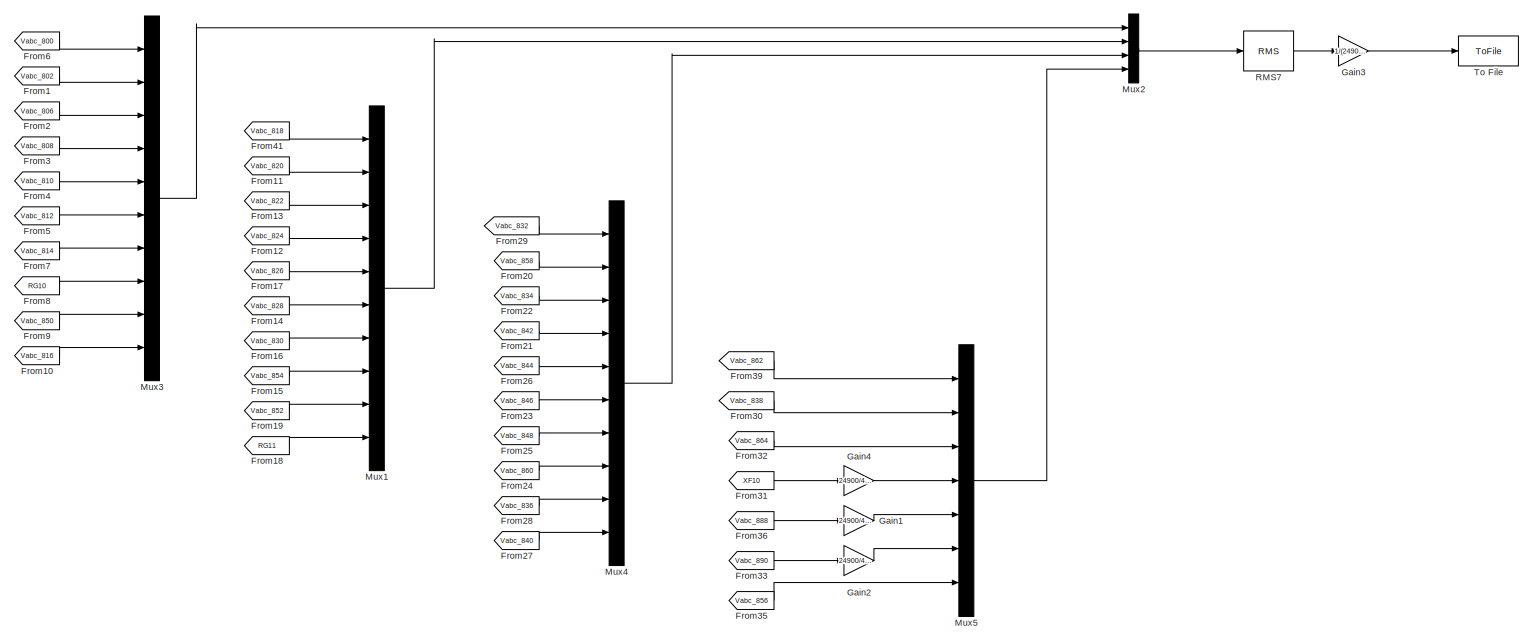
[diagram: SM_IEEE34/Node Voltages - part 1/2, full width, top band]
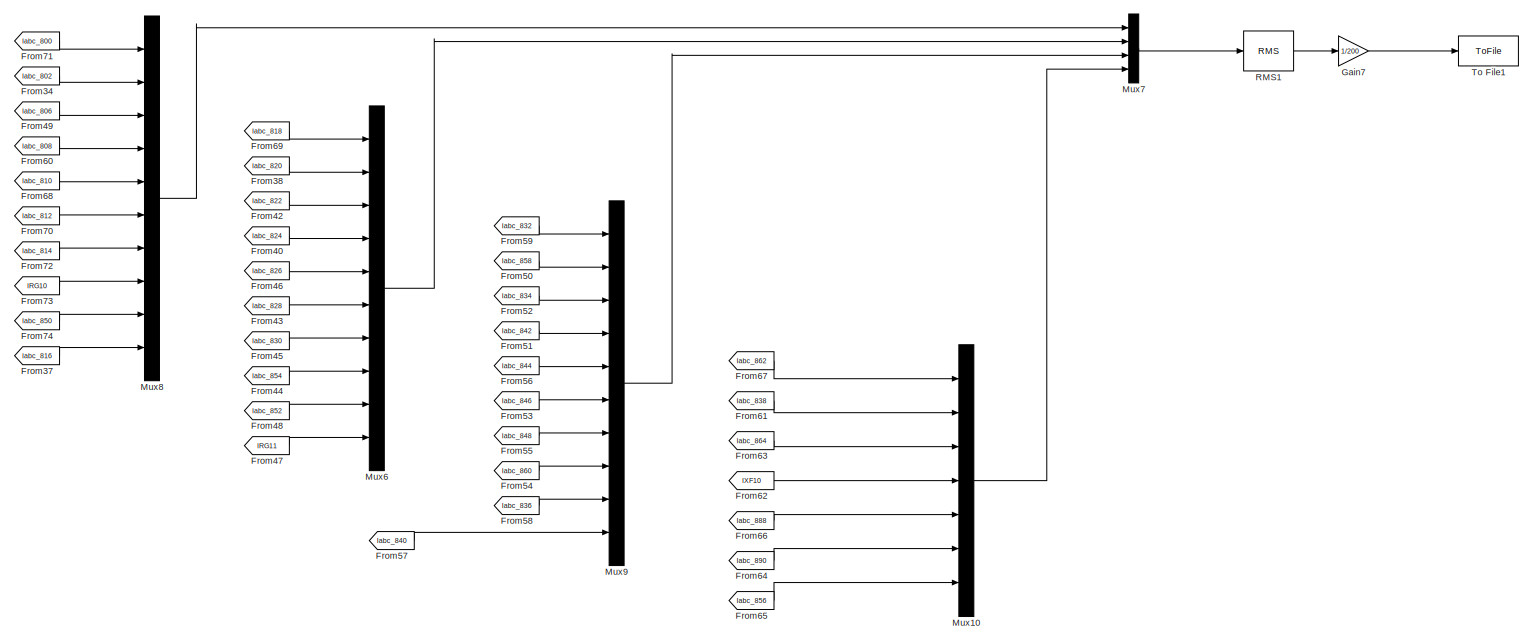
[diagram: SM_IEEE34/Node Voltages - part 2/2, full width, bottom band]
BLOCK [SubSystem] SM_IEEE34/Node Voltages
  Ports = []
  RequestExecContextInheritance = off
BLOCK [From] SM_IEEE34/Node Voltages/From1
  GotoTag = Vabc_802
  TagVisibility = global
BLOCK [From] SM_IEEE34/Node Voltages/From10
  GotoTag = Vabc_816
  TagVisibility = global
BLOCK [From] SM_IEEE34/Node Voltages/From11
  GotoTag = Vabc_820
  TagVisibility = global
BLOCK [From] SM_IEEE34/Node Voltages/From12
  GotoTag = Vabc_824
  TagVisibility = global
BLOCK [From] SM_IEEE34/Node Voltages/From13
  GotoTag = Vabc_822
  TagVisibility = global
BLOCK [From] SM_IEEE34/Node Voltages/From14
  GotoTag = Vabc_828
  TagVisibility = global
BLOCK [From] SM_IEEE34/Node Voltages/From15
  GotoTag = Vabc_854
  TagVisibility = global
BLOCK [From] SM_IEEE34/Node Voltages/From16
  GotoTag = Vabc_830
  TagVisibility = global
BLOCK [From] SM_IEEE34/Node Voltages/From17
  GotoTag = Vabc_826
  TagVisibility = global
BLOCK [From] SM_IEEE34/Node Voltages/From18
  GotoTag = RG11
  TagVisibility = global
BLOCK [From] SM_IEEE34/Node Voltages/From19
  GotoTag = Vabc_852
  TagVisibility = global
BLOCK [From] SM_IEEE34/Node Voltages/From2
  GotoTag = Vabc_806
  TagVisibility = global
BLOCK [From] SM_IEEE34/Node Voltages/From20
  GotoTag = Vabc_858
  TagVisibility = global
BLOCK [From] SM_IEEE34/Node Voltages/From21
  GotoTag = Vabc_842
  TagVisibility = global
BLOCK [From] SM_IEEE34/Node Voltages/From22
  GotoTag = Vabc_834
  TagVisibility = global
BLOCK [From] SM_IEEE34/Node Voltages/From23
  GotoTag = Vabc_846
  TagVisibility = global
BLOCK [From] SM_IEEE34/Node Voltages/From24
  GotoTag = Vabc_860
  TagVisibility = global
BLOCK [From] SM_IEEE34/Node Voltages/From25
  GotoTag = Vabc_848
  TagVisibility = global
BLOCK [From] SM_IEEE34/Node Voltages/From26
  GotoTag = Vabc_844
  TagVisibility = global
BLOCK [From] SM_IEEE34/Node Voltages/From27
  GotoTag = Vabc_840
  TagVisibility = global
BLOCK [From] SM_IEEE34/Node Voltages/From28
  GotoTag = Vabc_836
  TagVisibility = global
BLOCK [From] SM_IEEE34/Node Voltages/From29
  GotoTag = Vabc_832
  TagVisibility = global
BLOCK [From] SM_IEEE34/Node Voltages/From3
  GotoTag = Vabc_808
  TagVisibility = global
BLOCK [From] SM_IEEE34/Node Voltages/From30
  GotoTag = Vabc_838
  TagVisibility = global
BLOCK [From] SM_IEEE34/Node Voltages/From31
  GotoTag = XF10
  TagVisibility = global
BLOCK [From] SM_IEEE34/Node Voltages/From32
  GotoTag = Vabc_864
  TagVisibility = global
BLOCK [From] SM_IEEE34/Node Voltages/From33
  GotoTag = Vabc_890
  TagVisibility = global
BLOCK [From] SM_IEEE34/Node Voltages/From34
  GotoTag = Iabc_802
  TagVisibility = global
BLOCK [From] SM_IEEE34/Node Voltages/From35
  GotoTag = Vabc_856
  TagVisibility = global
BLOCK [From] SM_IEEE34/Node Voltages/From36
  GotoTag = Vabc_888
  TagVisibility = global
BLOCK [From] SM_IEEE34/Node Voltages/From37
  GotoTag = Iabc_816
  TagVisibility = global
BLOCK [From] SM_IEEE34/Node Voltages/From38
  GotoTag = Iabc_820
  TagVisibility = global
BLOCK [From] SM_IEEE34/Node Voltages/From39
  GotoTag = Vabc_862
  TagVisibility = global
BLOCK [From] SM_IEEE34/Node Voltages/From4
  GotoTag = Vabc_810
  TagVisibility = global
BLOCK [From] SM_IEEE34/Node Voltages/From40
  GotoTag = Iabc_824
  TagVisibility = global
BLOCK [From] SM_IEEE34/Node Voltages/From41
  GotoTag = Vabc_818
  TagVisibility = global
BLOCK [From] SM_IEEE34/Node Voltages/From42
  GotoTag = Iabc_822
  TagVisibility = global
BLOCK [From] SM_IEEE34/Node Voltages/From43
  GotoTag = Iabc_828
  TagVisibility = global
BLOCK [From] SM_IEEE34/Node Voltages/From44
  GotoTag = Iabc_854
  TagVisibility = global
BLOCK [From] SM_IEEE34/Node Voltages/From45
  GotoTag = Iabc_830
  TagVisibility = global
BLOCK [From] SM_IEEE34/Node Voltages/From46
  GotoTag = Iabc_826
  TagVisibility = global
BLOCK [From] SM_IEEE34/Node Voltages/From47
  GotoTag = IRG11
  TagVisibility = global
BLOCK [From] SM_IEEE34/Node Voltages/From48
  GotoTag = Iabc_852
  TagVisibility = global
BLOCK [From] SM_IEEE34/Node Voltages/From49
  GotoTag = Iabc_806
  TagVisibility = global
BLOCK [From] SM_IEEE34/Node Voltages/From5
  GotoTag = Vabc_812
  TagVisibility = global
BLOCK [From] SM_IEEE34/Node Voltages/From50
  GotoTag = Iabc_858
  TagVisibility = global
BLOCK [From] SM_IEEE34/Node Voltages/From51
  GotoTag = Iabc_842
  TagVisibility = global
BLOCK [From] SM_IEEE34/Node Voltages/From52
  GotoTag = Iabc_834
  TagVisibility = global
BLOCK [From] SM_IEEE34/Node Voltages/From53
  GotoTag = Iabc_846
  TagVisibility = global
BLOCK [From] SM_IEEE34/Node Voltages/From54
  GotoTag = Iabc_860
  TagVisibility = global
BLOCK [From] SM_IEEE34/Node Voltages/From55
  GotoTag = Iabc_848
  TagVisibility = global
BLOCK [From] SM_IEEE34/Node Voltages/From56
  GotoTag = Iabc_844
  TagVisibility = global
BLOCK [From] SM_IEEE34/Node Voltages/From57
  GotoTag = Iabc_840
  TagVisibility = global
BLOCK [From] SM_IEEE34/Node Voltages/From58
  GotoTag = Iabc_836
  TagVisibility = global
BLOCK [From] SM_IEEE34/Node Voltages/From59
  GotoTag = Iabc_832
  TagVisibility = global
BLOCK [From] SM_IEEE34/Node Voltages/From6
  GotoTag = Vabc_800
  TagVisibility = global
BLOCK [From] SM_IEEE34/Node Voltages/From60
  GotoTag = Iabc_808
  TagVisibility = global
BLOCK [From] SM_IEEE34/Node Voltages/From61
  GotoTag = Iabc_838
  TagVisibility = global
BLOCK [From] SM_IEEE34/Node Voltages/From62
  GotoTag = IXF10
  TagVisibility = global
BLOCK [From] SM_IEEE34/Node Voltages/From63
  GotoTag = Iabc_864
  TagVisibility = global
BLOCK [From] SM_IEEE34/Node Voltages/From64
  GotoTag = Iabc_890
  TagVisibility = global
BLOCK [From] SM_IEEE34/Node Voltages/From65
  GotoTag = Iabc_856
  TagVisibility = global
BLOCK [From] SM_IEEE34/Node Voltages/From66
  GotoTag = Iabc_888
  TagVisibility = global
BLOCK [From] SM_IEEE34/Node Voltages/From67
  GotoTag = Iabc_862
  TagVisibility = global
BLOCK [From] SM_IEEE34/Node Voltages/From68
  GotoTag = Iabc_810
  TagVisibility = global
BLOCK [From] SM_IEEE34/Node Voltages/From69
  GotoTag = Iabc_818
  TagVisibility = global
BLOCK [From] SM_IEEE34/Node Voltages/From7
  GotoTag = Vabc_814
  TagVisibility = global
BLOCK [From] SM_IEEE34/Node Voltages/From70
  GotoTag = Iabc_812
  TagVisibility = global
BLOCK [From] SM_IEEE34/Node Voltages/From71
  GotoTag = Iabc_800
  TagVisibility = global
BLOCK [From] SM_IEEE34/Node Voltages/From72
  GotoTag = Iabc_814
  TagVisibility = global
BLOCK [From] SM_IEEE34/Node Voltages/From73
  GotoTag = IRG10
  TagVisibility = global
BLOCK [From] SM_IEEE34/Node Voltages/From74
  GotoTag = Iabc_850
  TagVisibility = global
BLOCK [From] SM_IEEE34/Node Voltages/From8
  GotoTag = RG10
  TagVisibility = global
BLOCK [From] SM_IEEE34/Node Voltages/From9
  GotoTag = Vabc_850
  TagVisibility = global
BLOCK [Gain] SM_IEEE34/Node Voltages/Gain1
  Gain = 24900/4160
BLOCK [Gain] SM_IEEE34/Node Voltages/Gain2
  Gain = 24900/4160
BLOCK [Gain] SM_IEEE34/Node Voltages/Gain3
  Gain = 1/(24900/sqrt(3))
BLOCK [Gain] SM_IEEE34/Node Voltages/Gain4
  Gain = 24900/4160
BLOCK [Gain] SM_IEEE34/Node Voltages/Gain7
  Gain = 1/200
BLOCK [Mux] SM_IEEE34/Node Voltages/Mux1
  DisplayOption = bar
  Inputs = 10
  Ports = [10, 1]
BLOCK [Mux] SM_IEEE34/Node Voltages/Mux10
  DisplayOption = bar
  Inputs = 7
  Ports = [7, 1]
BLOCK [Mux] SM_IEEE34/Node Voltages/Mux2
  DisplayOption = bar
  Ports = [4, 1]
BLOCK [Mux] SM_IEEE34/Node Voltages/Mux3
  DisplayOption = bar
  Inputs = 10
  Ports = [10, 1]
BLOCK [Mux] SM_IEEE34/Node Voltages/Mux4
  DisplayOption = bar
  Inputs = 10
  Ports = [10, 1]
BLOCK [Mux] SM_IEEE34/Node Voltages/Mux5
  DisplayOption = bar
  Inputs = 7
  Ports = [7, 1]
BLOCK [Mux] SM_IEEE34/Node Voltages/Mux6
  DisplayOption = bar
  Inputs = 10
  Ports = [10, 1]
BLOCK [Mux] SM_IEEE34/Node Voltages/Mux7
  DisplayOption = bar
  Ports = [4, 1]
BLOCK [Mux] SM_IEEE34/Node Voltages/Mux8
  DisplayOption = bar
  Inputs = 10
  Ports = [10, 1]
BLOCK [Mux] SM_IEEE34/Node Voltages/Mux9
  DisplayOption = bar
  Inputs = 10
  Ports = [10, 1]
BLOCK [Reference] SM_IEEE34/Node Voltages/RMS1  REF=spsRMSLib/RMS
  Ports = [1, 1]
  SourceBlock = spsRMSLib/RMS
  SourceProductBaseCode = PS
  SourceType = RMS
BLOCK [Reference] SM_IEEE34/Node Voltages/RMS7  REF=spsRMSLib/RMS
  Ports = [1, 1]
  SourceBlock = spsRMSLib/RMS
  SourceProductBaseCode = PS
  SourceType = RMS
BLOCK [ToFile] SM_IEEE34/Node Voltages/To File
  Filename = PQ1_SS1.mat
  MatrixName = PQ1_SS1
  Ports = [1]
BLOCK [ToFile] SM_IEEE34/Node Voltages/To File1
  Filename = PQ1_SS2.mat
  MatrixName = PQ1_SS2
  Ports = [1]
BLOCK [Reference] SM_IEEE34/RG10  REF=spsThreePhaseVIMeasurementLib/Three-Phase
V-I Measurement
  Ports = [0, 0, 0, 0, 0, 3, 3]
  SourceBlock = spsThreePhaseVIMeasurementLib/Three-Phase\nV-I Measurement
  SourceProductBaseCode = PS
  SourceType = Three-Phase VI Measurement
BLOCK [Reference] SM_IEEE34/RG11  REF=spsThreePhaseVIMeasurementLib/Three-Phase
V-I Measurement
  NameLocation = right
  Ports = [0, 0, 0, 0, 0, 3, 3]
  SourceBlock = spsThreePhaseVIMeasurementLib/Three-Phase\nV-I Measurement
  SourceProductBaseCode = PS
  SourceType = Three-Phase VI Measurement
BLOCK [SubSystem] SM_IEEE34/Regulator 1
  Ports = [0, 1, 0, 0, 0, 3, 3]
  RequestExecContextInheritance = off
BLOCK [PMIOPort] SM_IEEE34/Regulator 1/A
  Side = Left
BLOCK [PMIOPort] SM_IEEE34/Regulator 1/B
  Port = 3
  Side = Left
BLOCK [PMIOPort] SM_IEEE34/Regulator 1/C
  Port = 5
  Side = Left
BLOCK [Mux] SM_IEEE34/Regulator 1/Mux
  DisplayOption = bar
  Inputs = 3
  Ports = [3, 1]
BLOCK [SubSystem] SM_IEEE34/Regulator 1/Single Phase SVR_A
  LoadFcn = find_system(gcs,'FollowLinks', 'on', 'LookUnderMasks', 'all');
  Ports = [0, 1, 0, 0, 0, 1, 1]
  RequestExecContextInheritance = off
BLOCK [Goto] SM_IEEE34/Regulator 1/Single Phase SVR_A/Goto
  GotoTag = Vr1a
  TagVisibility = global
BLOCK [PMIOPort] SM_IEEE34/Regulator 1/Single Phase SVR_A/L
  Port = 2
  Side = Right
  Tag = PMCPort
BLOCK [SubSystem] SM_IEEE34/Regulator 1/Single Phase SVR_A/Line Drop Compensator
  Ports = [2, 1]
  RequestExecContextInheritance = off
BLOCK [Reference] SM_IEEE34/Regulator 1/Single Phase SVR_A/Line Drop Compensator/          REF=spsLinearTransformerLib/Linear Transformer
  Ports = [0, 0, 0, 0, 0, 2, 2]
  SourceBlock = spsLinearTransformerLib/Linear Transformer
  SourceProductBaseCode = PS
  SourceType = Linear Transformer
BLOCK [Reference] SM_IEEE34/Regulator 1/Single Phase SVR_A/Line Drop Compensator/CTS    REF=spsControlledCurrentSourceLib/Controlled Current Source
  NameLocation = left
  Ports = [1, 0, 0, 0, 0, 1, 1]
  SourceBlock = spsControlledCurrentSourceLib/Controlled Current Source
  SourceProductBaseCode = PS
  SourceType = Controlled Current Source
BLOCK [Inport] SM_IEEE34/Regulator 1/Single Phase SVR_A/Line Drop Compensator/Isec
  NameLocation = left
BLOCK [Reference] SM_IEEE34/Regulator 1/Single Phase SVR_A/Line Drop Compensator/PTS    REF=spsControlledVoltageSourceLib/Controlled Voltage Source
  NameLocation = top
  Ports = [1, 0, 0, 0, 0, 1, 1]
  SourceBlock = spsControlledVoltageSourceLib/Controlled Voltage Source
  SourceProductBaseCode = PS
  SourceType = Controlled Voltage Source
BLOCK [Reference] SM_IEEE34/Regulator 1/Single Phase SVR_A/Line Drop Compensator/RMS  REF=spsRMSLib/RMS
  Ports = [1, 1]
  SourceBlock = spsRMSLib/RMS
  SourceProductBaseCode = PS
  SourceType = RMS
BLOCK [Reference] SM_IEEE34/Regulator 1/Single Phase SVR_A/Line Drop Compensator/Raux  REF=spsSeriesRLCBranchLib/Series RLC Branch
  NameLocation = left
  Ports = [0, 0, 0, 0, 0, 1, 1]
  SourceBlock = spsSeriesRLCBranchLib/Series RLC Branch
  SourceProductBaseCode = PS
  SourceType = Series RLC Branch
BLOCK [Reference] SM_IEEE34/Regulator 1/Single Phase SVR_A/Line Drop Compensator/Rc+jXc  REF=spsSeriesRLCBranchLib/Series RLC Branch
  NameLocation = left
  Ports = [0, 0, 0, 0, 0, 1, 1]
  SourceBlock = spsSeriesRLCBranchLib/Series RLC Branch
  SourceProductBaseCode = PS
  SourceType = Series RLC Branch
BLOCK [Reference] SM_IEEE34/Regulator 1/Single Phase SVR_A/Line Drop Compensator/VRelay  REF=spsVoltageMeasurementLib/Voltage Measurement
  Ports = [0, 1, 0, 0, 0, 2]
  SourceBlock = spsVoltageMeasurementLib/Voltage Measurement
  SourceProductBaseCode = PS
  SourceType = Voltage Measurement
BLOCK [Outport] SM_IEEE34/Regulator 1/Single Phase SVR_A/Line Drop Compensator/Vm
BLOCK [Inport] SM_IEEE34/Regulator 1/Single Phase SVR_A/Line Drop Compensator/Vsec
  Port = 2
BLOCK [PMIOPort] SM_IEEE34/Regulator 1/Single Phase SVR_A/S
  Side = Left
  Tag = PMCPort
BLOCK [Outport] SM_IEEE34/Regulator 1/Single Phase SVR_A/Tap
  VectorParamsAs1DForOutWhenUnconnected = off
BLOCK [SubSystem] SM_IEEE34/Regulator 1/Single Phase SVR_A/Transformer with Taps
  Ports = [1, 2, 0, 0, 0, 1, 1]
  RequestExecContextInheritance = off
BLOCK [Gain] SM_IEEE34/Regulator 1/Single Phase SVR_A/Transformer with Taps/    
  Gain = 1/ptRatio
BLOCK [Gain] SM_IEEE34/Regulator 1/Single Phase SVR_A/Transformer with Taps/ 1
  Gain = 1/ctRatio
BLOCK [Reference] SM_IEEE34/Regulator 1/Single Phase SVR_A/Transformer with Taps/CT  REF=spsCurrentMeasurementLib/Current Measurement
  Ports = [0, 1, 0, 0, 0, 1, 1]
  SourceBlock = spsCurrentMeasurementLib/Current Measurement
  SourceProductBaseCode = PS
  SourceType = Current Measurement
BLOCK [Display] SM_IEEE34/Regulator 1/Single Phase SVR_A/Transformer with Taps/Display
  Decimation = 1
  Ports = [1]
BLOCK [Display] SM_IEEE34/Regulator 1/Single Phase SVR_A/Transformer with Taps/Display1
  Decimation = 1
  Ports = [1]
BLOCK [Reference] SM_IEEE34/Regulator 1/Single Phase SVR_A/Transformer with Taps/Ground1  REF=spsGroundLib/Ground
  NameLocation = right
  Ports = [0, 0, 0, 0, 0, 1]
  SourceBlock = spsGroundLib/Ground
  SourceProductBaseCode = PS
  SourceType = Ground
BLOCK [Reference] SM_IEEE34/Regulator 1/Single Phase SVR_A/Transformer with Taps/Ground2  REF=spsGroundLib/Ground
  NameLocation = left
  Ports = [0, 0, 0, 0, 0, 1]
  SourceBlock = spsGroundLib/Ground
  SourceProductBaseCode = PS
  SourceType = Ground
BLOCK [Reference] SM_IEEE34/Regulator 1/Single Phase SVR_A/Transformer with Taps/Ground3  REF=spsGroundLib/Ground
  NameLocation = left
  Ports = [0, 0, 0, 0, 0, 1]
  SourceBlock = spsGroundLib/Ground
  SourceProductBaseCode = PS
  SourceType = Ground
BLOCK [Outport] SM_IEEE34/Regulator 1/Single Phase SVR_A/Transformer with Taps/Isec
BLOCK [PMIOPort] SM_IEEE34/Regulator 1/Single Phase SVR_A/Transformer with Taps/L
  Side = Right
  Tag = PMCPort
BLOCK [Memory] SM_IEEE34/Regulator 1/Single Phase SVR_A/Transformer with Taps/Memory
BLOCK [Memory] SM_IEEE34/Regulator 1/Single Phase SVR_A/Transformer with Taps/Memory1
BLOCK [Inport] SM_IEEE34/Regulator 1/Single Phase SVR_A/Transformer with Taps/N
BLOCK [Reference] SM_IEEE34/Regulator 1/Single Phase SVR_A/Transformer with Taps/PT  REF=spsVoltageMeasurementLib/Voltage Measurement
  Ports = [0, 1, 0, 0, 0, 2]
  SourceBlock = spsVoltageMeasurementLib/Voltage Measurement
  SourceProductBaseCode = PS
  SourceType = Voltage Measurement
BLOCK [PMIOPort] SM_IEEE34/Regulator 1/Single Phase SVR_A/Transformer with Taps/S
  Port = 2
  Side = Left
BLOCK [Reference] SM_IEEE34/Regulator 1/Single Phase SVR_A/Transformer with Taps/Variable-Ratio Transformer   REF=spsVariableRatioTransformerLib/Variable-Ratio
Transformer
  Ports = [1, 0, 0, 0, 0, 2, 2]
  SourceBlock = spsVariableRatioTransformerLib/Variable-Ratio\nTransformer
  SourceProductBaseCode = PS
  SourceType = Variable-Ratio Transformer
BLOCK [Outport] SM_IEEE34/Regulator 1/Single Phase SVR_A/Transformer with Taps/Vsec
  Port = 2
BLOCK [Reference] SM_IEEE34/Regulator 1/Single Phase SVR_A/Transformer with Taps/rs  REF=spsSeriesRLCBranchLib/Series RLC Branch
  Ports = [0, 0, 0, 0, 0, 1, 1]
  SourceBlock = spsSeriesRLCBranchLib/Series RLC Branch
  SourceProductBaseCode = PS
  SourceType = Series RLC Branch
BLOCK [SubSystem] SM_IEEE34/Regulator 1/Single Phase SVR_A/Voltage Regulator Control
  Ports = [1, 2]
  RequestExecContextInheritance = off
BLOCK [Constant] SM_IEEE34/Regulator 1/Single Phase SVR_A/Voltage Regulator Control/1
BLOCK [Constant] SM_IEEE34/Regulator 1/Single Phase SVR_A/Voltage Regulator Control/Constant
  Value = RegulatorOn
BLOCK [Constant] SM_IEEE34/Regulator 1/Single Phase SVR_A/Voltage Regulator Control/Constant5
BLOCK [Outport] SM_IEEE34/Regulator 1/Single Phase SVR_A/Voltage Regulator Control/N
BLOCK [Product] SM_IEEE34/Regulator 1/Single Phase SVR_A/Voltage Regulator Control/Product
  Inputs = /*
  Ports = [2, 1]
BLOCK [Sum] SM_IEEE34/Regulator 1/Single Phase SVR_A/Voltage Regulator Control/Sum
  IconShape = rectangular
  Ports = [2, 1]
BLOCK [Outport] SM_IEEE34/Regulator 1/Single Phase SVR_A/Voltage Regulator Control/Tap
  Port = 2
BLOCK [SubSystem] SM_IEEE34/Regulator 1/Single Phase SVR_A/Voltage Regulator Control/Tap Changer Control
  Ports = [2, 2]
  RequestExecContextInheritance = off
BLOCK [Constant] SM_IEEE34/Regulator 1/Single Phase SVR_A/Voltage Regulator Control/Tap Changer Control/Constant
  Value = -1
BLOCK [Constant] SM_IEEE34/Regulator 1/Single Phase SVR_A/Voltage Regulator Control/Tap Changer Control/Constant1
BLOCK [SubSystem] SM_IEEE34/Regulator 1/Single Phase SVR_A/Voltage Regulator Control/Tap Changer Control/Determine tap position
  Ports = [1, 1, 0, 1]
  RequestExecContextInheritance = off
BLOCK [Memory] SM_IEEE34/Regulator 1/Single Phase SVR_A/Voltage Regulator Control/Tap Changer Control/Determine tap position/Memory
  InheritSampleTime = on
  InitialCondition = InitialPosition
BLOCK [Inport] SM_IEEE34/Regulator 1/Single Phase SVR_A/Voltage Regulator Control/Tap Changer Control/Determine tap position/NewTap
BLOCK [Saturate] SM_IEEE34/Regulator 1/Single Phase SVR_A/Voltage Regulator Control/Tap Changer Control/Determine tap position/Saturation
  LowerLimit = MinMaxTap(1)
  UpperLimit = MinMaxTap(2)
BLOCK [Sum] SM_IEEE34/Regulator 1/Single Phase SVR_A/Voltage Regulator Control/Tap Changer Control/Determine tap position/Sum
  Inputs = |++
  Ports = [2, 1]
  SaturateOnIntegerOverflow = on
BLOCK [Outport] SM_IEEE34/Regulator 1/Single Phase SVR_A/Voltage Regulator Control/Tap Changer Control/Determine tap position/TapNo
  InitialOutput = InitialPosition
  VectorParamsAs1DForOutWhenUnconnected = off
BLOCK [TriggerPort] SM_IEEE34/Regulator 1/Single Phase SVR_A/Voltage Regulator Control/Tap Changer Control/Determine tap position/Trigger
  Ports = []
  VariantControl = Variant
BLOCK [Inport] SM_IEEE34/Regulator 1/Single Phase SVR_A/Voltage Regulator Control/Tap Changer Control/Down 
  Port = 2
BLOCK [SubSystem] SM_IEEE34/Regulator 1/Single Phase SVR_A/Voltage Regulator Control/Tap Changer Control/Edge Detector
  DialogController = POWERSYS.PowerSysDialog
  Ports = [1, 1]
  RequestExecContextInheritance = off
  ShowPortLabels = none
BLOCK [Constant] SM_IEEE34/Regulator 1/Single Phase SVR_A/Voltage Regulator Control/Tap Changer Control/Edge Detector/Constant1
  Value = model
BLOCK [Demux] SM_IEEE34/Regulator 1/Single Phase SVR_A/Voltage Regulator Control/Tap Changer Control/Edge Detector/Demux
  DisplayOption = none
  Outputs = 2
  Ports = [1, 2]
BLOCK [Inport] SM_IEEE34/Regulator 1/Single Phase SVR_A/Voltage Regulator Control/Tap Changer Control/Edge Detector/In
BLOCK [Logic] SM_IEEE34/Regulator 1/Single Phase SVR_A/Voltage Regulator Control/Tap Changer Control/Edge Detector/Logical Operator1
  Operator = OR
  Ports = [2, 1]
BLOCK [Memory] SM_IEEE34/Regulator 1/Single Phase SVR_A/Voltage Regulator Control/Tap Changer Control/Edge Detector/Memory
  InitialCondition = ic
  LinearizeAsDelay = on
BLOCK [MultiPortSwitch] SM_IEEE34/Regulator 1/Single Phase SVR_A/Voltage Regulator Control/Tap Changer Control/Edge Detector/Multiport Switch
  InputSameDT = off
  Ports = [4, 1]
BLOCK [SubSystem] SM_IEEE34/Regulator 1/Single Phase SVR_A/Voltage Regulator Control/Tap Changer Control/Edge Detector/NEGATIVE Edge
  Ports = [2, 1, 1]
  RequestExecContextInheritance = off
  TreatAsAtomicUnit = on
BLOCK [EnablePort] SM_IEEE34/Regulator 1/Single Phase SVR_A/Voltage Regulator Control/Tap Changer Control/Edge Detector/NEGATIVE Edge/Enable
  Ports = []
  PropagateVarSize = During execution
BLOCK [Inport] SM_IEEE34/Regulator 1/Single Phase SVR_A/Voltage Regulator Control/Tap Changer Control/Edge Detector/NEGATIVE Edge/IN
BLOCK [Inport] SM_IEEE34/Regulator 1/Single Phase SVR_A/Voltage Regulator Control/Tap Changer Control/Edge Detector/NEGATIVE Edge/IN previous
  Port = 2
BLOCK [Outport] SM_IEEE34/Regulator 1/Single Phase SVR_A/Voltage Regulator Control/Tap Changer Control/Edge Detector/NEGATIVE Edge/OUT
  VectorParamsAs1DForOutWhenUnconnected = off
BLOCK [RelationalOperator] SM_IEEE34/Regulator 1/Single Phase SVR_A/Voltage Regulator Control/Tap Changer Control/Edge Detector/NEGATIVE Edge/Relational Operator1
  Operator = >
  Ports = [2, 1]
BLOCK [Outport] SM_IEEE34/Regulator 1/Single Phase SVR_A/Voltage Regulator Control/Tap Changer Control/Edge Detector/Out
  VectorParamsAs1DForOutWhenUnconnected = off
BLOCK [SubSystem] SM_IEEE34/Regulator 1/Single Phase SVR_A/Voltage Regulator Control/Tap Changer Control/Edge Detector/POSITIVE Edge
  NameLocation = top
  Ports = [2, 1, 1]
  RequestExecContextInheritance = off
  TreatAsAtomicUnit = on
BLOCK [EnablePort] SM_IEEE34/Regulator 1/Single Phase SVR_A/Voltage Regulator Control/Tap Changer Control/Edge Detector/POSITIVE Edge/Enable
  Ports = []
  PropagateVarSize = During execution
BLOCK [Inport] SM_IEEE34/Regulator 1/Single Phase SVR_A/Voltage Regulator Control/Tap Changer Control/Edge Detector/POSITIVE Edge/IN
BLOCK [Inport] SM_IEEE34/Regulator 1/Single Phase SVR_A/Voltage Regulator Control/Tap Changer Control/Edge Detector/POSITIVE Edge/IN previous
  Port = 2
BLOCK [Outport] SM_IEEE34/Regulator 1/Single Phase SVR_A/Voltage Regulator Control/Tap Changer Control/Edge Detector/POSITIVE Edge/OUT
  VectorParamsAs1DForOutWhenUnconnected = off
BLOCK [RelationalOperator] SM_IEEE34/Regulator 1/Single Phase SVR_A/Voltage Regulator Control/Tap Changer Control/Edge Detector/POSITIVE Edge/Relational Operator1
  Operator = >
  Ports = [2, 1]
BLOCK [Constant] SM_IEEE34/Regulator 1/Single Phase SVR_A/Voltage Regulator Control/Tap Changer Control/Edge Detector/either edge
  Value = [1 1]
BLOCK [Constant] SM_IEEE34/Regulator 1/Single Phase SVR_A/Voltage Regulator Control/Tap Changer Control/Edge Detector/neg. edge
  Value = [0 1]
BLOCK [Constant] SM_IEEE34/Regulator 1/Single Phase SVR_A/Voltage Regulator Control/Tap Changer Control/Edge Detector/pos. edge
  Value = [1 0]
BLOCK [Logic] SM_IEEE34/Regulator 1/Single Phase SVR_A/Voltage Regulator Control/Tap Changer Control/Logical Operator
  AllPortsSameDT = off
  Operator = OR
  Ports = [2, 1]
BLOCK [Logic] SM_IEEE34/Regulator 1/Single Phase SVR_A/Voltage Regulator Control/Tap Changer Control/Logical Operator1
  AllPortsSameDT = off
  Ports = [2, 1]
BLOCK [TransportDelay] SM_IEEE34/Regulator 1/Single Phase SVR_A/Voltage Regulator Control/Tap Changer Control/Mechanical Delay
  BufferSize = 5120
  DelayTime = MecDelay
  InitialOutput = InitialPosition
  Ports = [1, 1]
BLOCK [Memory] SM_IEEE34/Regulator 1/Single Phase SVR_A/Voltage Regulator Control/Tap Changer Control/Memory
  InheritSampleTime = on
  InitialCondition = 1
BLOCK [Outport] SM_IEEE34/Regulator 1/Single Phase SVR_A/Voltage Regulator Control/Tap Changer Control/Ready
  Port = 2
  VectorParamsAs1DForOutWhenUnconnected = off
BLOCK [RelationalOperator] SM_IEEE34/Regulator 1/Single Phase SVR_A/Voltage Regulator Control/Tap Changer Control/Relational Operator
  InputSameDT = off
  Operator = ==
  OutDataTypeStr = float('double')
  Ports = [2, 1]
BLOCK [Switch] SM_IEEE34/Regulator 1/Single Phase SVR_A/Voltage Regulator Control/Tap Changer Control/Switch
  InputSameDT = off
  Threshold = 0.5
BLOCK [Outport] SM_IEEE34/Regulator 1/Single Phase SVR_A/Voltage Regulator Control/Tap Changer Control/TapNo
  VectorParamsAs1DForOutWhenUnconnected = off
BLOCK [Inport] SM_IEEE34/Regulator 1/Single Phase SVR_A/Voltage Regulator Control/Tap Changer Control/Up 
BLOCK [Inport] SM_IEEE34/Regulator 1/Single Phase SVR_A/Voltage Regulator Control/Vm
BLOCK [Gain] SM_IEEE34/Regulator 1/Single Phase SVR_A/Voltage Regulator Control/Voltage change per tap
  Gain = DeltaU
BLOCK [SubSystem] SM_IEEE34/Regulator 1/Single Phase SVR_A/Voltage Regulator Control/Voltage regulator
  Ports = [3, 2]
  RequestExecContextInheritance = off
BLOCK [DeadZone] SM_IEEE34/Regulator 1/Single Phase SVR_A/Voltage Regulator Control/Voltage regulator/Dead Zone
  LowerValue = -DeadBand/2
  UpperValue = +DeadBand/2
BLOCK [Reference] SM_IEEE34/Regulator 1/Single Phase SVR_A/Voltage Regulator Control/Voltage regulator/Discrete Variable Time Delay  REF=spsDiscreteVariableTimeDelayLib/Discrete Variable
Time Delay
  Ports = [2, 1]
  SourceBlock = spsDiscreteVariableTimeDelayLib/Discrete Variable\nTime Delay
  SourceProductBaseCode = PS
  SourceType = Discrete Variable Time Delay
BLOCK [Outport] SM_IEEE34/Regulator 1/Single Phase SVR_A/Voltage Regulator Control/Voltage regulator/Down
  Port = 2
  VectorParamsAs1DForOutWhenUnconnected = off
BLOCK [Logic] SM_IEEE34/Regulator 1/Single Phase SVR_A/Voltage Regulator Control/Voltage regulator/Logical Operator
  AllPortsSameDT = off
  Ports = [2, 1]
BLOCK [Logic] SM_IEEE34/Regulator 1/Single Phase SVR_A/Voltage Regulator Control/Voltage regulator/Logical Operator1
  AllPortsSameDT = off
  Ports = [2, 1]
BLOCK [Reference] SM_IEEE34/Regulator 1/Single Phase SVR_A/Voltage Regulator Control/Voltage regulator/On Delay  REF=spsOnDelayLib/On Delay
  Ports = [1, 1]
  SourceBlock = spsOnDelayLib/On Delay
  SourceProductBaseCode = PS
  SourceType = On/Off Delay
BLOCK [Reference] SM_IEEE34/Regulator 1/Single Phase SVR_A/Voltage Regulator Control/Voltage regulator/On Delay1  REF=spsOnDelayLib/On Delay
  Ports = [1, 1]
  SourceBlock = spsOnDelayLib/On Delay
  SourceProductBaseCode = PS
  SourceType = On/Off Delay
BLOCK [Inport] SM_IEEE34/Regulator 1/Single Phase SVR_A/Voltage Regulator Control/Voltage regulator/Ready
  Port = 2
BLOCK [Inport] SM_IEEE34/Regulator 1/Single Phase SVR_A/Voltage Regulator Control/Voltage regulator/RegOn
  Port = 3
BLOCK [RelationalOperator] SM_IEEE34/Regulator 1/Single Phase SVR_A/Voltage Regulator Control/Voltage regulator/Relational Operator
  InputSameDT = off
  Operator = <
  Ports = [2, 1]
BLOCK [RelationalOperator] SM_IEEE34/Regulator 1/Single Phase SVR_A/Voltage Regulator Control/Voltage regulator/Relational Operator1
  InputSameDT = off
  Operator = >
  Ports = [2, 1]
BLOCK [Sum] SM_IEEE34/Regulator 1/Single Phase SVR_A/Voltage Regulator Control/Voltage regulator/Sum
  Inputs = |+-
  Ports = [2, 1]
  SaturateOnIntegerOverflow = on
BLOCK [Switch] SM_IEEE34/Regulator 1/Single Phase SVR_A/Voltage Regulator Control/Voltage regulator/Switch
  InputSameDT = off
  Threshold = 1.5
BLOCK [Outport] SM_IEEE34/Regulator 1/Single Phase SVR_A/Voltage Regulator Control/Voltage regulator/Up
  VectorParamsAs1DForOutWhenUnconnected = off
BLOCK [Inport] SM_IEEE34/Regulator 1/Single Phase SVR_A/Voltage Regulator Control/Voltage regulator/Vmes (pu)
BLOCK [Constant] SM_IEEE34/Regulator 1/Single Phase SVR_A/Voltage Regulator Control/Voltage regulator/Vref
  Value = Vref
BLOCK [Constant] SM_IEEE34/Regulator 1/Single Phase SVR_A/Voltage Regulator Control/Voltage regulator/Vref1
  Value = 0
BLOCK [Constant] SM_IEEE34/Regulator 1/Single Phase SVR_A/Voltage Regulator Control/Voltage regulator/Vref2
  Value = 0
BLOCK [Constant] SM_IEEE34/Regulator 1/Single Phase SVR_A/Voltage Regulator Control/Voltage regulator/Vref3
  Value = 0
BLOCK [Constant] SM_IEEE34/Regulator 1/Single Phase SVR_A/Voltage Regulator Control/Voltage regulator/Vref4
  Value = 3/60
BLOCK [SubSystem] SM_IEEE34/Regulator 1/Single Phase SVR_B
  LoadFcn = find_system(gcs,'FollowLinks', 'on', 'LookUnderMasks', 'all');
  Ports = [0, 1, 0, 0, 0, 1, 1]
  RequestExecContextInheritance = off
BLOCK [Goto] SM_IEEE34/Regulator 1/Single Phase SVR_B/Goto
  GotoTag = Vr1b
  TagVisibility = global
BLOCK [PMIOPort] SM_IEEE34/Regulator 1/Single Phase SVR_B/L
  Port = 2
  Side = Right
  Tag = PMCPort
BLOCK [SubSystem] SM_IEEE34/Regulator 1/Single Phase SVR_B/Line Drop Compensator
  Ports = [2, 1]
  RequestExecContextInheritance = off
BLOCK [Reference] SM_IEEE34/Regulator 1/Single Phase SVR_B/Line Drop Compensator/          REF=spsLinearTransformerLib/Linear Transformer
  Ports = [0, 0, 0, 0, 0, 2, 2]
  SourceBlock = spsLinearTransformerLib/Linear Transformer
  SourceProductBaseCode = PS
  SourceType = Linear Transformer
BLOCK [Reference] SM_IEEE34/Regulator 1/Single Phase SVR_B/Line Drop Compensator/CTS    REF=spsControlledCurrentSourceLib/Controlled Current Source
  NameLocation = left
  Ports = [1, 0, 0, 0, 0, 1, 1]
  SourceBlock = spsControlledCurrentSourceLib/Controlled Current Source
  SourceProductBaseCode = PS
  SourceType = Controlled Current Source
BLOCK [Inport] SM_IEEE34/Regulator 1/Single Phase SVR_B/Line Drop Compensator/Isec
  NameLocation = left
BLOCK [Reference] SM_IEEE34/Regulator 1/Single Phase SVR_B/Line Drop Compensator/PTS    REF=spsControlledVoltageSourceLib/Controlled Voltage Source
  NameLocation = top
  Ports = [1, 0, 0, 0, 0, 1, 1]
  SourceBlock = spsControlledVoltageSourceLib/Controlled Voltage Source
  SourceProductBaseCode = PS
  SourceType = Controlled Voltage Source
BLOCK [Reference] SM_IEEE34/Regulator 1/Single Phase SVR_B/Line Drop Compensator/RMS  REF=spsRMSLib/RMS
  Ports = [1, 1]
  SourceBlock = spsRMSLib/RMS
  SourceProductBaseCode = PS
  SourceType = RMS
BLOCK [Reference] SM_IEEE34/Regulator 1/Single Phase SVR_B/Line Drop Compensator/Raux  REF=spsSeriesRLCBranchLib/Series RLC Branch
  NameLocation = left
  Ports = [0, 0, 0, 0, 0, 1, 1]
  SourceBlock = spsSeriesRLCBranchLib/Series RLC Branch
  SourceProductBaseCode = PS
  SourceType = Series RLC Branch
BLOCK [Reference] SM_IEEE34/Regulator 1/Single Phase SVR_B/Line Drop Compensator/Rc+jXc  REF=spsSeriesRLCBranchLib/Series RLC Branch
  NameLocation = left
  Ports = [0, 0, 0, 0, 0, 1, 1]
  SourceBlock = spsSeriesRLCBranchLib/Series RLC Branch
  SourceProductBaseCode = PS
  SourceType = Series RLC Branch
BLOCK [Reference] SM_IEEE34/Regulator 1/Single Phase SVR_B/Line Drop Compensator/VRelay  REF=spsVoltageMeasurementLib/Voltage Measurement
  Ports = [0, 1, 0, 0, 0, 2]
  SourceBlock = spsVoltageMeasurementLib/Voltage Measurement
  SourceProductBaseCode = PS
  SourceType = Voltage Measurement
BLOCK [Outport] SM_IEEE34/Regulator 1/Single Phase SVR_B/Line Drop Compensator/Vm
BLOCK [Inport] SM_IEEE34/Regulator 1/Single Phase SVR_B/Line Drop Compensator/Vsec
  Port = 2
BLOCK [PMIOPort] SM_IEEE34/Regulator 1/Single Phase SVR_B/S
  Side = Left
  Tag = PMCPort
BLOCK [Outport] SM_IEEE34/Regulator 1/Single Phase SVR_B/Tap
  VectorParamsAs1DForOutWhenUnconnected = off
BLOCK [SubSystem] SM_IEEE34/Regulator 1/Single Phase SVR_B/Transformer with Taps
  Ports = [1, 2, 0, 0, 0, 1, 1]
  RequestExecContextInheritance = off
BLOCK [Gain] SM_IEEE34/Regulator 1/Single Phase SVR_B/Transformer with Taps/    
  Gain = 1/ptRatio
BLOCK [Gain] SM_IEEE34/Regulator 1/Single Phase SVR_B/Transformer with Taps/ 1
  Gain = 1/ctRatio
BLOCK [Reference] SM_IEEE34/Regulator 1/Single Phase SVR_B/Transformer with Taps/CT  REF=spsCurrentMeasurementLib/Current Measurement
  Ports = [0, 1, 0, 0, 0, 1, 1]
  SourceBlock = spsCurrentMeasurementLib/Current Measurement
  SourceProductBaseCode = PS
  SourceType = Current Measurement
BLOCK [Display] SM_IEEE34/Regulator 1/Single Phase SVR_B/Transformer with Taps/Display
  Decimation = 1
  Ports = [1]
BLOCK [Display] SM_IEEE34/Regulator 1/Single Phase SVR_B/Transformer with Taps/Display1
  Decimation = 1
  Ports = [1]
BLOCK [Reference] SM_IEEE34/Regulator 1/Single Phase SVR_B/Transformer with Taps/Ground1  REF=spsGroundLib/Ground
  NameLocation = right
  Ports = [0, 0, 0, 0, 0, 1]
  SourceBlock = spsGroundLib/Ground
  SourceProductBaseCode = PS
  SourceType = Ground
BLOCK [Reference] SM_IEEE34/Regulator 1/Single Phase SVR_B/Transformer with Taps/Ground2  REF=spsGroundLib/Ground
  NameLocation = left
  Ports = [0, 0, 0, 0, 0, 1]
  SourceBlock = spsGroundLib/Ground
  SourceProductBaseCode = PS
  SourceType = Ground
BLOCK [Reference] SM_IEEE34/Regulator 1/Single Phase SVR_B/Transformer with Taps/Ground3  REF=spsGroundLib/Ground
  NameLocation = left
  Ports = [0, 0, 0, 0, 0, 1]
  SourceBlock = spsGroundLib/Ground
  SourceProductBaseCode = PS
  SourceType = Ground
BLOCK [Outport] SM_IEEE34/Regulator 1/Single Phase SVR_B/Transformer with Taps/Isec
BLOCK [PMIOPort] SM_IEEE34/Regulator 1/Single Phase SVR_B/Transformer with Taps/L
  Side = Right
  Tag = PMCPort
BLOCK [Memory] SM_IEEE34/Regulator 1/Single Phase SVR_B/Transformer with Taps/Memory
BLOCK [Memory] SM_IEEE34/Regulator 1/Single Phase SVR_B/Transformer with Taps/Memory1
BLOCK [Inport] SM_IEEE34/Regulator 1/Single Phase SVR_B/Transformer with Taps/N
BLOCK [Reference] SM_IEEE34/Regulator 1/Single Phase SVR_B/Transformer with Taps/PT  REF=spsVoltageMeasurementLib/Voltage Measurement
  Ports = [0, 1, 0, 0, 0, 2]
  SourceBlock = spsVoltageMeasurementLib/Voltage Measurement
  SourceProductBaseCode = PS
  SourceType = Voltage Measurement
BLOCK [PMIOPort] SM_IEEE34/Regulator 1/Single Phase SVR_B/Transformer with Taps/S
  Port = 2
  Side = Left
BLOCK [Reference] SM_IEEE34/Regulator 1/Single Phase SVR_B/Transformer with Taps/Variable-Ratio Transformer   REF=spsVariableRatioTransformerLib/Variable-Ratio
Transformer
  Ports = [1, 0, 0, 0, 0, 2, 2]
  SourceBlock = spsVariableRatioTransformerLib/Variable-Ratio\nTransformer
  SourceProductBaseCode = PS
  SourceType = Variable-Ratio Transformer
BLOCK [Outport] SM_IEEE34/Regulator 1/Single Phase SVR_B/Transformer with Taps/Vsec
  Port = 2
BLOCK [Reference] SM_IEEE34/Regulator 1/Single Phase SVR_B/Transformer with Taps/rs  REF=spsSeriesRLCBranchLib/Series RLC Branch
  Ports = [0, 0, 0, 0, 0, 1, 1]
  SourceBlock = spsSeriesRLCBranchLib/Series RLC Branch
  SourceProductBaseCode = PS
  SourceType = Series RLC Branch
BLOCK [SubSystem] SM_IEEE34/Regulator 1/Single Phase SVR_B/Voltage Regulator Control
  Ports = [1, 2]
  RequestExecContextInheritance = off
BLOCK [Constant] SM_IEEE34/Regulator 1/Single Phase SVR_B/Voltage Regulator Control/1
BLOCK [Constant] SM_IEEE34/Regulator 1/Single Phase SVR_B/Voltage Regulator Control/Constant
  Value = RegulatorOn
BLOCK [Constant] SM_IEEE34/Regulator 1/Single Phase SVR_B/Voltage Regulator Control/Constant5
BLOCK [Outport] SM_IEEE34/Regulator 1/Single Phase SVR_B/Voltage Regulator Control/N
BLOCK [Product] SM_IEEE34/Regulator 1/Single Phase SVR_B/Voltage Regulator Control/Product
  Inputs = /*
  Ports = [2, 1]
BLOCK [Sum] SM_IEEE34/Regulator 1/Single Phase SVR_B/Voltage Regulator Control/Sum
  IconShape = rectangular
  Ports = [2, 1]
BLOCK [Outport] SM_IEEE34/Regulator 1/Single Phase SVR_B/Voltage Regulator Control/Tap
  Port = 2
BLOCK [SubSystem] SM_IEEE34/Regulator 1/Single Phase SVR_B/Voltage Regulator Control/Tap Changer Control
  Ports = [2, 2]
  RequestExecContextInheritance = off
BLOCK [Constant] SM_IEEE34/Regulator 1/Single Phase SVR_B/Voltage Regulator Control/Tap Changer Control/Constant
  Value = -1
BLOCK [Constant] SM_IEEE34/Regulator 1/Single Phase SVR_B/Voltage Regulator Control/Tap Changer Control/Constant1
BLOCK [SubSystem] SM_IEEE34/Regulator 1/Single Phase SVR_B/Voltage Regulator Control/Tap Changer Control/Determine tap position
  Ports = [1, 1, 0, 1]
  RequestExecContextInheritance = off
BLOCK [Memory] SM_IEEE34/Regulator 1/Single Phase SVR_B/Voltage Regulator Control/Tap Changer Control/Determine tap position/Memory
  InheritSampleTime = on
  InitialCondition = InitialPosition
BLOCK [Inport] SM_IEEE34/Regulator 1/Single Phase SVR_B/Voltage Regulator Control/Tap Changer Control/Determine tap position/NewTap
BLOCK [Saturate] SM_IEEE34/Regulator 1/Single Phase SVR_B/Voltage Regulator Control/Tap Changer Control/Determine tap position/Saturation
  LowerLimit = MinMaxTap(1)
  UpperLimit = MinMaxTap(2)
BLOCK [Sum] SM_IEEE34/Regulator 1/Single Phase SVR_B/Voltage Regulator Control/Tap Changer Control/Determine tap position/Sum
  Inputs = |++
  Ports = [2, 1]
  SaturateOnIntegerOverflow = on
BLOCK [Outport] SM_IEEE34/Regulator 1/Single Phase SVR_B/Voltage Regulator Control/Tap Changer Control/Determine tap position/TapNo
  InitialOutput = InitialPosition
  VectorParamsAs1DForOutWhenUnconnected = off
BLOCK [TriggerPort] SM_IEEE34/Regulator 1/Single Phase SVR_B/Voltage Regulator Control/Tap Changer Control/Determine tap position/Trigger
  Ports = []
  VariantControl = Variant
BLOCK [Inport] SM_IEEE34/Regulator 1/Single Phase SVR_B/Voltage Regulator Control/Tap Changer Control/Down 
  Port = 2
BLOCK [SubSystem] SM_IEEE34/Regulator 1/Single Phase SVR_B/Voltage Regulator Control/Tap Changer Control/Edge Detector
  DialogController = POWERSYS.PowerSysDialog
  Ports = [1, 1]
  RequestExecContextInheritance = off
  ShowPortLabels = none
BLOCK [Constant] SM_IEEE34/Regulator 1/Single Phase SVR_B/Voltage Regulator Control/Tap Changer Control/Edge Detector/Constant1
  Value = model
BLOCK [Demux] SM_IEEE34/Regulator 1/Single Phase SVR_B/Voltage Regulator Control/Tap Changer Control/Edge Detector/Demux
  DisplayOption = none
  Outputs = 2
  Ports = [1, 2]
BLOCK [Inport] SM_IEEE34/Regulator 1/Single Phase SVR_B/Voltage Regulator Control/Tap Changer Control/Edge Detector/In
BLOCK [Logic] SM_IEEE34/Regulator 1/Single Phase SVR_B/Voltage Regulator Control/Tap Changer Control/Edge Detector/Logical Operator1
  Operator = OR
  Ports = [2, 1]
BLOCK [Memory] SM_IEEE34/Regulator 1/Single Phase SVR_B/Voltage Regulator Control/Tap Changer Control/Edge Detector/Memory
  InitialCondition = ic
  LinearizeAsDelay = on
BLOCK [MultiPortSwitch] SM_IEEE34/Regulator 1/Single Phase SVR_B/Voltage Regulator Control/Tap Changer Control/Edge Detector/Multiport Switch
  InputSameDT = off
  Ports = [4, 1]
BLOCK [SubSystem] SM_IEEE34/Regulator 1/Single Phase SVR_B/Voltage Regulator Control/Tap Changer Control/Edge Detector/NEGATIVE Edge
  Ports = [2, 1, 1]
  RequestExecContextInheritance = off
  TreatAsAtomicUnit = on
BLOCK [EnablePort] SM_IEEE34/Regulator 1/Single Phase SVR_B/Voltage Regulator Control/Tap Changer Control/Edge Detector/NEGATIVE Edge/Enable
  Ports = []
  PropagateVarSize = During execution
BLOCK [Inport] SM_IEEE34/Regulator 1/Single Phase SVR_B/Voltage Regulator Control/Tap Changer Control/Edge Detector/NEGATIVE Edge/IN
BLOCK [Inport] SM_IEEE34/Regulator 1/Single Phase SVR_B/Voltage Regulator Control/Tap Changer Control/Edge Detector/NEGATIVE Edge/IN previous
  Port = 2
BLOCK [Outport] SM_IEEE34/Regulator 1/Single Phase SVR_B/Voltage Regulator Control/Tap Changer Control/Edge Detector/NEGATIVE Edge/OUT
  VectorParamsAs1DForOutWhenUnconnected = off
BLOCK [RelationalOperator] SM_IEEE34/Regulator 1/Single Phase SVR_B/Voltage Regulator Control/Tap Changer Control/Edge Detector/NEGATIVE Edge/Relational Operator1
  Operator = >
  Ports = [2, 1]
BLOCK [Outport] SM_IEEE34/Regulator 1/Single Phase SVR_B/Voltage Regulator Control/Tap Changer Control/Edge Detector/Out
  VectorParamsAs1DForOutWhenUnconnected = off
BLOCK [SubSystem] SM_IEEE34/Regulator 1/Single Phase SVR_B/Voltage Regulator Control/Tap Changer Control/Edge Detector/POSITIVE Edge
  NameLocation = top
  Ports = [2, 1, 1]
  RequestExecContextInheritance = off
  TreatAsAtomicUnit = on
BLOCK [EnablePort] SM_IEEE34/Regulator 1/Single Phase SVR_B/Voltage Regulator Control/Tap Changer Control/Edge Detector/POSITIVE Edge/Enable
  Ports = []
  PropagateVarSize = During execution
BLOCK [Inport] SM_IEEE34/Regulator 1/Single Phase SVR_B/Voltage Regulator Control/Tap Changer Control/Edge Detector/POSITIVE Edge/IN
BLOCK [Inport] SM_IEEE34/Regulator 1/Single Phase SVR_B/Voltage Regulator Control/Tap Changer Control/Edge Detector/POSITIVE Edge/IN previous
  Port = 2
BLOCK [Outport] SM_IEEE34/Regulator 1/Single Phase SVR_B/Voltage Regulator Control/Tap Changer Control/Edge Detector/POSITIVE Edge/OUT
  VectorParamsAs1DForOutWhenUnconnected = off
BLOCK [RelationalOperator] SM_IEEE34/Regulator 1/Single Phase SVR_B/Voltage Regulator Control/Tap Changer Control/Edge Detector/POSITIVE Edge/Relational Operator1
  Operator = >
  Ports = [2, 1]
BLOCK [Constant] SM_IEEE34/Regulator 1/Single Phase SVR_B/Voltage Regulator Control/Tap Changer Control/Edge Detector/either edge
  Value = [1 1]
BLOCK [Constant] SM_IEEE34/Regulator 1/Single Phase SVR_B/Voltage Regulator Control/Tap Changer Control/Edge Detector/neg. edge
  Value = [0 1]
BLOCK [Constant] SM_IEEE34/Regulator 1/Single Phase SVR_B/Voltage Regulator Control/Tap Changer Control/Edge Detector/pos. edge
  Value = [1 0]
BLOCK [Logic] SM_IEEE34/Regulator 1/Single Phase SVR_B/Voltage Regulator Control/Tap Changer Control/Logical Operator
  AllPortsSameDT = off
  Operator = OR
  Ports = [2, 1]
BLOCK [Logic] SM_IEEE34/Regulator 1/Single Phase SVR_B/Voltage Regulator Control/Tap Changer Control/Logical Operator1
  AllPortsSameDT = off
  Ports = [2, 1]
BLOCK [TransportDelay] SM_IEEE34/Regulator 1/Single Phase SVR_B/Voltage Regulator Control/Tap Changer Control/Mechanical Delay
  BufferSize = 5120
  DelayTime = MecDelay
  InitialOutput = InitialPosition
  Ports = [1, 1]
BLOCK [Memory] SM_IEEE34/Regulator 1/Single Phase SVR_B/Voltage Regulator Control/Tap Changer Control/Memory
  InheritSampleTime = on
  InitialCondition = 1
BLOCK [Outport] SM_IEEE34/Regulator 1/Single Phase SVR_B/Voltage Regulator Control/Tap Changer Control/Ready
  Port = 2
  VectorParamsAs1DForOutWhenUnconnected = off
BLOCK [RelationalOperator] SM_IEEE34/Regulator 1/Single Phase SVR_B/Voltage Regulator Control/Tap Changer Control/Relational Operator
  InputSameDT = off
  Operator = ==
  OutDataTypeStr = float('double')
  Ports = [2, 1]
BLOCK [Switch] SM_IEEE34/Regulator 1/Single Phase SVR_B/Voltage Regulator Control/Tap Changer Control/Switch
  InputSameDT = off
  Threshold = 0.5
BLOCK [Outport] SM_IEEE34/Regulator 1/Single Phase SVR_B/Voltage Regulator Control/Tap Changer Control/TapNo
  VectorParamsAs1DForOutWhenUnconnected = off
BLOCK [Inport] SM_IEEE34/Regulator 1/Single Phase SVR_B/Voltage Regulator Control/Tap Changer Control/Up 
BLOCK [Inport] SM_IEEE34/Regulator 1/Single Phase SVR_B/Voltage Regulator Control/Vm
BLOCK [Gain] SM_IEEE34/Regulator 1/Single Phase SVR_B/Voltage Regulator Control/Voltage change per tap
  Gain = DeltaU
BLOCK [SubSystem] SM_IEEE34/Regulator 1/Single Phase SVR_B/Voltage Regulator Control/Voltage regulator
  Ports = [3, 2]
  RequestExecContextInheritance = off
BLOCK [DeadZone] SM_IEEE34/Regulator 1/Single Phase SVR_B/Voltage Regulator Control/Voltage regulator/Dead Zone
  LowerValue = -DeadBand/2
  UpperValue = +DeadBand/2
BLOCK [Reference] SM_IEEE34/Regulator 1/Single Phase SVR_B/Voltage Regulator Control/Voltage regulator/Discrete Variable Time Delay  REF=spsDiscreteVariableTimeDelayLib/Discrete Variable
Time Delay
  Ports = [2, 1]
  SourceBlock = spsDiscreteVariableTimeDelayLib/Discrete Variable\nTime Delay
  SourceProductBaseCode = PS
  SourceType = Discrete Variable Time Delay
BLOCK [Outport] SM_IEEE34/Regulator 1/Single Phase SVR_B/Voltage Regulator Control/Voltage regulator/Down
  Port = 2
  VectorParamsAs1DForOutWhenUnconnected = off
BLOCK [Logic] SM_IEEE34/Regulator 1/Single Phase SVR_B/Voltage Regulator Control/Voltage regulator/Logical Operator
  AllPortsSameDT = off
  Ports = [2, 1]
BLOCK [Logic] SM_IEEE34/Regulator 1/Single Phase SVR_B/Voltage Regulator Control/Voltage regulator/Logical Operator1
  AllPortsSameDT = off
  Ports = [2, 1]
BLOCK [Reference] SM_IEEE34/Regulator 1/Single Phase SVR_B/Voltage Regulator Control/Voltage regulator/On Delay  REF=spsOnDelayLib/On Delay
  Ports = [1, 1]
  SourceBlock = spsOnDelayLib/On Delay
  SourceProductBaseCode = PS
  SourceType = On/Off Delay
BLOCK [Reference] SM_IEEE34/Regulator 1/Single Phase SVR_B/Voltage Regulator Control/Voltage regulator/On Delay1  REF=spsOnDelayLib/On Delay
  Ports = [1, 1]
  SourceBlock = spsOnDelayLib/On Delay
  SourceProductBaseCode = PS
  SourceType = On/Off Delay
BLOCK [Inport] SM_IEEE34/Regulator 1/Single Phase SVR_B/Voltage Regulator Control/Voltage regulator/Ready
  Port = 2
BLOCK [Inport] SM_IEEE34/Regulator 1/Single Phase SVR_B/Voltage Regulator Control/Voltage regulator/RegOn
  Port = 3
BLOCK [RelationalOperator] SM_IEEE34/Regulator 1/Single Phase SVR_B/Voltage Regulator Control/Voltage regulator/Relational Operator
  InputSameDT = off
  Operator = <
  Ports = [2, 1]
BLOCK [RelationalOperator] SM_IEEE34/Regulator 1/Single Phase SVR_B/Voltage Regulator Control/Voltage regulator/Relational Operator1
  InputSameDT = off
  Operator = >
  Ports = [2, 1]
BLOCK [Sum] SM_IEEE34/Regulator 1/Single Phase SVR_B/Voltage Regulator Control/Voltage regulator/Sum
  Inputs = |+-
  Ports = [2, 1]
  SaturateOnIntegerOverflow = on
BLOCK [Switch] SM_IEEE34/Regulator 1/Single Phase SVR_B/Voltage Regulator Control/Voltage regulator/Switch
  InputSameDT = off
  Threshold = 1.5
BLOCK [Outport] SM_IEEE34/Regulator 1/Single Phase SVR_B/Voltage Regulator Control/Voltage regulator/Up
  VectorParamsAs1DForOutWhenUnconnected = off
BLOCK [Inport] SM_IEEE34/Regulator 1/Single Phase SVR_B/Voltage Regulator Control/Voltage regulator/Vmes (pu)
BLOCK [Constant] SM_IEEE34/Regulator 1/Single Phase SVR_B/Voltage Regulator Control/Voltage regulator/Vref
  Value = Vref
BLOCK [Constant] SM_IEEE34/Regulator 1/Single Phase SVR_B/Voltage Regulator Control/Voltage regulator/Vref1
  Value = 0
BLOCK [Constant] SM_IEEE34/Regulator 1/Single Phase SVR_B/Voltage Regulator Control/Voltage regulator/Vref2
  Value = 0
BLOCK [Constant] SM_IEEE34/Regulator 1/Single Phase SVR_B/Voltage Regulator Control/Voltage regulator/Vref3
  Value = 0
BLOCK [Constant] SM_IEEE34/Regulator 1/Single Phase SVR_B/Voltage Regulator Control/Voltage regulator/Vref4
  Value = 3/60
BLOCK [SubSystem] SM_IEEE34/Regulator 1/Single Phase SVR_C
  LoadFcn = find_system(gcs,'FollowLinks', 'on', 'LookUnderMasks', 'all');
  Ports = [0, 1, 0, 0, 0, 1, 1]
  RequestExecContextInheritance = off
BLOCK [Goto] SM_IEEE34/Regulator 1/Single Phase SVR_C/Goto
  GotoTag = Vr1c
  TagVisibility = global
BLOCK [PMIOPort] SM_IEEE34/Regulator 1/Single Phase SVR_C/L
  Port = 2
  Side = Right
  Tag = PMCPort
BLOCK [SubSystem] SM_IEEE34/Regulator 1/Single Phase SVR_C/Line Drop Compensator
  Ports = [2, 1]
  RequestExecContextInheritance = off
BLOCK [Reference] SM_IEEE34/Regulator 1/Single Phase SVR_C/Line Drop Compensator/          REF=spsLinearTransformerLib/Linear Transformer
  Ports = [0, 0, 0, 0, 0, 2, 2]
  SourceBlock = spsLinearTransformerLib/Linear Transformer
  SourceProductBaseCode = PS
  SourceType = Linear Transformer
BLOCK [Reference] SM_IEEE34/Regulator 1/Single Phase SVR_C/Line Drop Compensator/CTS    REF=spsControlledCurrentSourceLib/Controlled Current Source
  NameLocation = left
  Ports = [1, 0, 0, 0, 0, 1, 1]
  SourceBlock = spsControlledCurrentSourceLib/Controlled Current Source
  SourceProductBaseCode = PS
  SourceType = Controlled Current Source
BLOCK [Inport] SM_IEEE34/Regulator 1/Single Phase SVR_C/Line Drop Compensator/Isec
  NameLocation = left
BLOCK [Reference] SM_IEEE34/Regulator 1/Single Phase SVR_C/Line Drop Compensator/PTS    REF=spsControlledVoltageSourceLib/Controlled Voltage Source
  NameLocation = top
  Ports = [1, 0, 0, 0, 0, 1, 1]
  SourceBlock = spsControlledVoltageSourceLib/Controlled Voltage Source
  SourceProductBaseCode = PS
  SourceType = Controlled Voltage Source
BLOCK [Reference] SM_IEEE34/Regulator 1/Single Phase SVR_C/Line Drop Compensator/RMS  REF=spsRMSLib/RMS
  Ports = [1, 1]
  SourceBlock = spsRMSLib/RMS
  SourceProductBaseCode = PS
  SourceType = RMS
BLOCK [Reference] SM_IEEE34/Regulator 1/Single Phase SVR_C/Line Drop Compensator/Raux  REF=spsSeriesRLCBranchLib/Series RLC Branch
  NameLocation = left
  Ports = [0, 0, 0, 0, 0, 1, 1]
  SourceBlock = spsSeriesRLCBranchLib/Series RLC Branch
  SourceProductBaseCode = PS
  SourceType = Series RLC Branch
BLOCK [Reference] SM_IEEE34/Regulator 1/Single Phase SVR_C/Line Drop Compensator/Rc+jXc  REF=spsSeriesRLCBranchLib/Series RLC Branch
  NameLocation = left
  Ports = [0, 0, 0, 0, 0, 1, 1]
  SourceBlock = spsSeriesRLCBranchLib/Series RLC Branch
  SourceProductBaseCode = PS
  SourceType = Series RLC Branch
BLOCK [Reference] SM_IEEE34/Regulator 1/Single Phase SVR_C/Line Drop Compensator/VRelay  REF=spsVoltageMeasurementLib/Voltage Measurement
  Ports = [0, 1, 0, 0, 0, 2]
  SourceBlock = spsVoltageMeasurementLib/Voltage Measurement
  SourceProductBaseCode = PS
  SourceType = Voltage Measurement
BLOCK [Outport] SM_IEEE34/Regulator 1/Single Phase SVR_C/Line Drop Compensator/Vm
BLOCK [Inport] SM_IEEE34/Regulator 1/Single Phase SVR_C/Line Drop Compensator/Vsec
  Port = 2
BLOCK [PMIOPort] SM_IEEE34/Regulator 1/Single Phase SVR_C/S
  Side = Left
  Tag = PMCPort
BLOCK [Outport] SM_IEEE34/Regulator 1/Single Phase SVR_C/Tap
  VectorParamsAs1DForOutWhenUnconnected = off
BLOCK [SubSystem] SM_IEEE34/Regulator 1/Single Phase SVR_C/Transformer with Taps
  Ports = [1, 2, 0, 0, 0, 1, 1]
  RequestExecContextInheritance = off
BLOCK [Gain] SM_IEEE34/Regulator 1/Single Phase SVR_C/Transformer with Taps/    
  Gain = 1/ptRatio
BLOCK [Gain] SM_IEEE34/Regulator 1/Single Phase SVR_C/Transformer with Taps/ 1
  Gain = 1/ctRatio
BLOCK [Reference] SM_IEEE34/Regulator 1/Single Phase SVR_C/Transformer with Taps/CT  REF=spsCurrentMeasurementLib/Current Measurement
  Ports = [0, 1, 0, 0, 0, 1, 1]
  SourceBlock = spsCurrentMeasurementLib/Current Measurement
  SourceProductBaseCode = PS
  SourceType = Current Measurement
BLOCK [Display] SM_IEEE34/Regulator 1/Single Phase SVR_C/Transformer with Taps/Display
  Decimation = 1
  Ports = [1]
BLOCK [Display] SM_IEEE34/Regulator 1/Single Phase SVR_C/Transformer with Taps/Display1
  Decimation = 1
  Ports = [1]
BLOCK [Reference] SM_IEEE34/Regulator 1/Single Phase SVR_C/Transformer with Taps/Ground1  REF=spsGroundLib/Ground
  NameLocation = right
  Ports = [0, 0, 0, 0, 0, 1]
  SourceBlock = spsGroundLib/Ground
  SourceProductBaseCode = PS
  SourceType = Ground
BLOCK [Reference] SM_IEEE34/Regulator 1/Single Phase SVR_C/Transformer with Taps/Ground2  REF=spsGroundLib/Ground
  NameLocation = left
  Ports = [0, 0, 0, 0, 0, 1]
  SourceBlock = spsGroundLib/Ground
  SourceProductBaseCode = PS
  SourceType = Ground
BLOCK [Reference] SM_IEEE34/Regulator 1/Single Phase SVR_C/Transformer with Taps/Ground3  REF=spsGroundLib/Ground
  NameLocation = left
  Ports = [0, 0, 0, 0, 0, 1]
  SourceBlock = spsGroundLib/Ground
  SourceProductBaseCode = PS
  SourceType = Ground
BLOCK [Outport] SM_IEEE34/Regulator 1/Single Phase SVR_C/Transformer with Taps/Isec
BLOCK [PMIOPort] SM_IEEE34/Regulator 1/Single Phase SVR_C/Transformer with Taps/L
  Side = Right
  Tag = PMCPort
BLOCK [Memory] SM_IEEE34/Regulator 1/Single Phase SVR_C/Transformer with Taps/Memory
BLOCK [Memory] SM_IEEE34/Regulator 1/Single Phase SVR_C/Transformer with Taps/Memory1
BLOCK [Inport] SM_IEEE34/Regulator 1/Single Phase SVR_C/Transformer with Taps/N
BLOCK [Reference] SM_IEEE34/Regulator 1/Single Phase SVR_C/Transformer with Taps/PT  REF=spsVoltageMeasurementLib/Voltage Measurement
  Ports = [0, 1, 0, 0, 0, 2]
  SourceBlock = spsVoltageMeasurementLib/Voltage Measurement
  SourceProductBaseCode = PS
  SourceType = Voltage Measurement
BLOCK [PMIOPort] SM_IEEE34/Regulator 1/Single Phase SVR_C/Transformer with Taps/S
  Port = 2
  Side = Left
BLOCK [Reference] SM_IEEE34/Regulator 1/Single Phase SVR_C/Transformer with Taps/Variable-Ratio Transformer   REF=spsVariableRatioTransformerLib/Variable-Ratio
Transformer
  Ports = [1, 0, 0, 0, 0, 2, 2]
  SourceBlock = spsVariableRatioTransformerLib/Variable-Ratio\nTransformer
  SourceProductBaseCode = PS
  SourceType = Variable-Ratio Transformer
BLOCK [Outport] SM_IEEE34/Regulator 1/Single Phase SVR_C/Transformer with Taps/Vsec
  Port = 2
BLOCK [Reference] SM_IEEE34/Regulator 1/Single Phase SVR_C/Transformer with Taps/rs  REF=spsSeriesRLCBranchLib/Series RLC Branch
  Ports = [0, 0, 0, 0, 0, 1, 1]
  SourceBlock = spsSeriesRLCBranchLib/Series RLC Branch
  SourceProductBaseCode = PS
  SourceType = Series RLC Branch
BLOCK [SubSystem] SM_IEEE34/Regulator 1/Single Phase SVR_C/Voltage Regulator Control
  Ports = [1, 2]
  RequestExecContextInheritance = off
BLOCK [Constant] SM_IEEE34/Regulator 1/Single Phase SVR_C/Voltage Regulator Control/1
BLOCK [Constant] SM_IEEE34/Regulator 1/Single Phase SVR_C/Voltage Regulator Control/Constant
  Value = RegulatorOn
BLOCK [Constant] SM_IEEE34/Regulator 1/Single Phase SVR_C/Voltage Regulator Control/Constant5
BLOCK [Outport] SM_IEEE34/Regulator 1/Single Phase SVR_C/Voltage Regulator Control/N
BLOCK [Product] SM_IEEE34/Regulator 1/Single Phase SVR_C/Voltage Regulator Control/Product
  Inputs = /*
  Ports = [2, 1]
BLOCK [Sum] SM_IEEE34/Regulator 1/Single Phase SVR_C/Voltage Regulator Control/Sum
  IconShape = rectangular
  Ports = [2, 1]
BLOCK [Outport] SM_IEEE34/Regulator 1/Single Phase SVR_C/Voltage Regulator Control/Tap
  Port = 2
BLOCK [SubSystem] SM_IEEE34/Regulator 1/Single Phase SVR_C/Voltage Regulator Control/Tap Changer Control
  Ports = [2, 2]
  RequestExecContextInheritance = off
BLOCK [Constant] SM_IEEE34/Regulator 1/Single Phase SVR_C/Voltage Regulator Control/Tap Changer Control/Constant
  Value = -1
BLOCK [Constant] SM_IEEE34/Regulator 1/Single Phase SVR_C/Voltage Regulator Control/Tap Changer Control/Constant1
BLOCK [SubSystem] SM_IEEE34/Regulator 1/Single Phase SVR_C/Voltage Regulator Control/Tap Changer Control/Determine tap position
  Ports = [1, 1, 0, 1]
  RequestExecContextInheritance = off
BLOCK [Memory] SM_IEEE34/Regulator 1/Single Phase SVR_C/Voltage Regulator Control/Tap Changer Control/Determine tap position/Memory
  InheritSampleTime = on
  InitialCondition = InitialPosition
BLOCK [Inport] SM_IEEE34/Regulator 1/Single Phase SVR_C/Voltage Regulator Control/Tap Changer Control/Determine tap position/NewTap
BLOCK [Saturate] SM_IEEE34/Regulator 1/Single Phase SVR_C/Voltage Regulator Control/Tap Changer Control/Determine tap position/Saturation
  LowerLimit = MinMaxTap(1)
  UpperLimit = MinMaxTap(2)
BLOCK [Sum] SM_IEEE34/Regulator 1/Single Phase SVR_C/Voltage Regulator Control/Tap Changer Control/Determine tap position/Sum
  Inputs = |++
  Ports = [2, 1]
  SaturateOnIntegerOverflow = on
BLOCK [Outport] SM_IEEE34/Regulator 1/Single Phase SVR_C/Voltage Regulator Control/Tap Changer Control/Determine tap position/TapNo
  InitialOutput = InitialPosition
  VectorParamsAs1DForOutWhenUnconnected = off
BLOCK [TriggerPort] SM_IEEE34/Regulator 1/Single Phase SVR_C/Voltage Regulator Control/Tap Changer Control/Determine tap position/Trigger
  Ports = []
  VariantControl = Variant
BLOCK [Inport] SM_IEEE34/Regulator 1/Single Phase SVR_C/Voltage Regulator Control/Tap Changer Control/Down 
  Port = 2
BLOCK [SubSystem] SM_IEEE34/Regulator 1/Single Phase SVR_C/Voltage Regulator Control/Tap Changer Control/Edge Detector
  DialogController = POWERSYS.PowerSysDialog
  Ports = [1, 1]
  RequestExecContextInheritance = off
  ShowPortLabels = none
BLOCK [Constant] SM_IEEE34/Regulator 1/Single Phase SVR_C/Voltage Regulator Control/Tap Changer Control/Edge Detector/Constant1
  Value = model
BLOCK [Demux] SM_IEEE34/Regulator 1/Single Phase SVR_C/Voltage Regulator Control/Tap Changer Control/Edge Detector/Demux
  DisplayOption = none
  Outputs = 2
  Ports = [1, 2]
BLOCK [Inport] SM_IEEE34/Regulator 1/Single Phase SVR_C/Voltage Regulator Control/Tap Changer Control/Edge Detector/In
BLOCK [Logic] SM_IEEE34/Regulator 1/Single Phase SVR_C/Voltage Regulator Control/Tap Changer Control/Edge Detector/Logical Operator1
  Operator = OR
  Ports = [2, 1]
BLOCK [Memory] SM_IEEE34/Regulator 1/Single Phase SVR_C/Voltage Regulator Control/Tap Changer Control/Edge Detector/Memory
  InitialCondition = ic
  LinearizeAsDelay = on
BLOCK [MultiPortSwitch] SM_IEEE34/Regulator 1/Single Phase SVR_C/Voltage Regulator Control/Tap Changer Control/Edge Detector/Multiport Switch
  InputSameDT = off
  Ports = [4, 1]
BLOCK [SubSystem] SM_IEEE34/Regulator 1/Single Phase SVR_C/Voltage Regulator Control/Tap Changer Control/Edge Detector/NEGATIVE Edge
  Ports = [2, 1, 1]
  RequestExecContextInheritance = off
  TreatAsAtomicUnit = on
BLOCK [EnablePort] SM_IEEE34/Regulator 1/Single Phase SVR_C/Voltage Regulator Control/Tap Changer Control/Edge Detector/NEGATIVE Edge/Enable
  Ports = []
  PropagateVarSize = During execution
BLOCK [Inport] SM_IEEE34/Regulator 1/Single Phase SVR_C/Voltage Regulator Control/Tap Changer Control/Edge Detector/NEGATIVE Edge/IN
BLOCK [Inport] SM_IEEE34/Regulator 1/Single Phase SVR_C/Voltage Regulator Control/Tap Changer Control/Edge Detector/NEGATIVE Edge/IN previous
  Port = 2
BLOCK [Outport] SM_IEEE34/Regulator 1/Single Phase SVR_C/Voltage Regulator Control/Tap Changer Control/Edge Detector/NEGATIVE Edge/OUT
  VectorParamsAs1DForOutWhenUnconnected = off
BLOCK [RelationalOperator] SM_IEEE34/Regulator 1/Single Phase SVR_C/Voltage Regulator Control/Tap Changer Control/Edge Detector/NEGATIVE Edge/Relational Operator1
  Operator = >
  Ports = [2, 1]
BLOCK [Outport] SM_IEEE34/Regulator 1/Single Phase SVR_C/Voltage Regulator Control/Tap Changer Control/Edge Detector/Out
  VectorParamsAs1DForOutWhenUnconnected = off
BLOCK [SubSystem] SM_IEEE34/Regulator 1/Single Phase SVR_C/Voltage Regulator Control/Tap Changer Control/Edge Detector/POSITIVE Edge
  NameLocation = top
  Ports = [2, 1, 1]
  RequestExecContextInheritance = off
  TreatAsAtomicUnit = on
BLOCK [EnablePort] SM_IEEE34/Regulator 1/Single Phase SVR_C/Voltage Regulator Control/Tap Changer Control/Edge Detector/POSITIVE Edge/Enable
  Ports = []
  PropagateVarSize = During execution
BLOCK [Inport] SM_IEEE34/Regulator 1/Single Phase SVR_C/Voltage Regulator Control/Tap Changer Control/Edge Detector/POSITIVE Edge/IN
BLOCK [Inport] SM_IEEE34/Regulator 1/Single Phase SVR_C/Voltage Regulator Control/Tap Changer Control/Edge Detector/POSITIVE Edge/IN previous
  Port = 2
BLOCK [Outport] SM_IEEE34/Regulator 1/Single Phase SVR_C/Voltage Regulator Control/Tap Changer Control/Edge Detector/POSITIVE Edge/OUT
  VectorParamsAs1DForOutWhenUnconnected = off
BLOCK [RelationalOperator] SM_IEEE34/Regulator 1/Single Phase SVR_C/Voltage Regulator Control/Tap Changer Control/Edge Detector/POSITIVE Edge/Relational Operator1
  Operator = >
  Ports = [2, 1]
BLOCK [Constant] SM_IEEE34/Regulator 1/Single Phase SVR_C/Voltage Regulator Control/Tap Changer Control/Edge Detector/either edge
  Value = [1 1]
BLOCK [Constant] SM_IEEE34/Regulator 1/Single Phase SVR_C/Voltage Regulator Control/Tap Changer Control/Edge Detector/neg. edge
  Value = [0 1]
BLOCK [Constant] SM_IEEE34/Regulator 1/Single Phase SVR_C/Voltage Regulator Control/Tap Changer Control/Edge Detector/pos. edge
  Value = [1 0]
BLOCK [Logic] SM_IEEE34/Regulator 1/Single Phase SVR_C/Voltage Regulator Control/Tap Changer Control/Logical Operator
  AllPortsSameDT = off
  Operator = OR
  Ports = [2, 1]
BLOCK [Logic] SM_IEEE34/Regulator 1/Single Phase SVR_C/Voltage Regulator Control/Tap Changer Control/Logical Operator1
  AllPortsSameDT = off
  Ports = [2, 1]
BLOCK [TransportDelay] SM_IEEE34/Regulator 1/Single Phase SVR_C/Voltage Regulator Control/Tap Changer Control/Mechanical Delay
  BufferSize = 5120
  DelayTime = MecDelay
  InitialOutput = InitialPosition
  Ports = [1, 1]
BLOCK [Memory] SM_IEEE34/Regulator 1/Single Phase SVR_C/Voltage Regulator Control/Tap Changer Control/Memory
  InheritSampleTime = on
  InitialCondition = 1
BLOCK [Outport] SM_IEEE34/Regulator 1/Single Phase SVR_C/Voltage Regulator Control/Tap Changer Control/Ready
  Port = 2
  VectorParamsAs1DForOutWhenUnconnected = off
BLOCK [RelationalOperator] SM_IEEE34/Regulator 1/Single Phase SVR_C/Voltage Regulator Control/Tap Changer Control/Relational Operator
  InputSameDT = off
  Operator = ==
  OutDataTypeStr = float('double')
  Ports = [2, 1]
BLOCK [Switch] SM_IEEE34/Regulator 1/Single Phase SVR_C/Voltage Regulator Control/Tap Changer Control/Switch
  InputSameDT = off
  Threshold = 0.5
BLOCK [Outport] SM_IEEE34/Regulator 1/Single Phase SVR_C/Voltage Regulator Control/Tap Changer Control/TapNo
  VectorParamsAs1DForOutWhenUnconnected = off
BLOCK [Inport] SM_IEEE34/Regulator 1/Single Phase SVR_C/Voltage Regulator Control/Tap Changer Control/Up 
BLOCK [Inport] SM_IEEE34/Regulator 1/Single Phase SVR_C/Voltage Regulator Control/Vm
BLOCK [Gain] SM_IEEE34/Regulator 1/Single Phase SVR_C/Voltage Regulator Control/Voltage change per tap
  Gain = DeltaU
BLOCK [SubSystem] SM_IEEE34/Regulator 1/Single Phase SVR_C/Voltage Regulator Control/Voltage regulator
  Ports = [3, 2]
  RequestExecContextInheritance = off
BLOCK [DeadZone] SM_IEEE34/Regulator 1/Single Phase SVR_C/Voltage Regulator Control/Voltage regulator/Dead Zone
  LowerValue = -DeadBand/2
  UpperValue = +DeadBand/2
BLOCK [Reference] SM_IEEE34/Regulator 1/Single Phase SVR_C/Voltage Regulator Control/Voltage regulator/Discrete Variable Time Delay  REF=spsDiscreteVariableTimeDelayLib/Discrete Variable
Time Delay
  Ports = [2, 1]
  SourceBlock = spsDiscreteVariableTimeDelayLib/Discrete Variable\nTime Delay
  SourceProductBaseCode = PS
  SourceType = Discrete Variable Time Delay
BLOCK [Outport] SM_IEEE34/Regulator 1/Single Phase SVR_C/Voltage Regulator Control/Voltage regulator/Down
  Port = 2
  VectorParamsAs1DForOutWhenUnconnected = off
BLOCK [Logic] SM_IEEE34/Regulator 1/Single Phase SVR_C/Voltage Regulator Control/Voltage regulator/Logical Operator
  AllPortsSameDT = off
  Ports = [2, 1]
BLOCK [Logic] SM_IEEE34/Regulator 1/Single Phase SVR_C/Voltage Regulator Control/Voltage regulator/Logical Operator1
  AllPortsSameDT = off
  Ports = [2, 1]
BLOCK [Reference] SM_IEEE34/Regulator 1/Single Phase SVR_C/Voltage Regulator Control/Voltage regulator/On Delay  REF=spsOnDelayLib/On Delay
  Ports = [1, 1]
  SourceBlock = spsOnDelayLib/On Delay
  SourceProductBaseCode = PS
  SourceType = On/Off Delay
BLOCK [Reference] SM_IEEE34/Regulator 1/Single Phase SVR_C/Voltage Regulator Control/Voltage regulator/On Delay1  REF=spsOnDelayLib/On Delay
  Ports = [1, 1]
  SourceBlock = spsOnDelayLib/On Delay
  SourceProductBaseCode = PS
  SourceType = On/Off Delay
BLOCK [Inport] SM_IEEE34/Regulator 1/Single Phase SVR_C/Voltage Regulator Control/Voltage regulator/Ready
  Port = 2
BLOCK [Inport] SM_IEEE34/Regulator 1/Single Phase SVR_C/Voltage Regulator Control/Voltage regulator/RegOn
  Port = 3
BLOCK [RelationalOperator] SM_IEEE34/Regulator 1/Single Phase SVR_C/Voltage Regulator Control/Voltage regulator/Relational Operator
  InputSameDT = off
  Operator = <
  Ports = [2, 1]
BLOCK [RelationalOperator] SM_IEEE34/Regulator 1/Single Phase SVR_C/Voltage Regulator Control/Voltage regulator/Relational Operator1
  InputSameDT = off
  Operator = >
  Ports = [2, 1]
BLOCK [Sum] SM_IEEE34/Regulator 1/Single Phase SVR_C/Voltage Regulator Control/Voltage regulator/Sum
  Inputs = |+-
  Ports = [2, 1]
  SaturateOnIntegerOverflow = on
BLOCK [Switch] SM_IEEE34/Regulator 1/Single Phase SVR_C/Voltage Regulator Control/Voltage regulator/Switch
  InputSameDT = off
  Threshold = 1.5
BLOCK [Outport] SM_IEEE34/Regulator 1/Single Phase SVR_C/Voltage Regulator Control/Voltage regulator/Up
  VectorParamsAs1DForOutWhenUnconnected = off
BLOCK [Inport] SM_IEEE34/Regulator 1/Single Phase SVR_C/Voltage Regulator Control/Voltage regulator/Vmes (pu)
BLOCK [Constant] SM_IEEE34/Regulator 1/Single Phase SVR_C/Voltage Regulator Control/Voltage regulator/Vref
  Value = Vref
BLOCK [Constant] SM_IEEE34/Regulator 1/Single Phase SVR_C/Voltage Regulator Control/Voltage regulator/Vref1
  Value = 0
BLOCK [Constant] SM_IEEE34/Regulator 1/Single Phase SVR_C/Voltage Regulator Control/Voltage regulator/Vref2
  Value = 0
BLOCK [Constant] SM_IEEE34/Regulator 1/Single Phase SVR_C/Voltage Regulator Control/Voltage regulator/Vref3
  Value = 0
BLOCK [Constant] SM_IEEE34/Regulator 1/Single Phase SVR_C/Voltage Regulator Control/Voltage regulator/Vref4
  Value = 3/60
BLOCK [Outport] SM_IEEE34/Regulator 1/Tap
BLOCK [PMIOPort] SM_IEEE34/Regulator 1/a
  Port = 2
  Side = Right
BLOCK [PMIOPort] SM_IEEE34/Regulator 1/b
  Port = 4
  Side = Right
BLOCK [PMIOPort] SM_IEEE34/Regulator 1/c
  Port = 6
  Side = Right
BLOCK [SubSystem] SM_IEEE34/Regulator 2
  NameLocation = right
  Ports = [0, 1, 0, 0, 0, 3, 3]
  RequestExecContextInheritance = off
BLOCK [PMIOPort] SM_IEEE34/Regulator 2/A
  Side = Left
BLOCK [PMIOPort] SM_IEEE34/Regulator 2/B
  Port = 3
  Side = Left
BLOCK [PMIOPort] SM_IEEE34/Regulator 2/C
  Port = 5
  Side = Left
BLOCK [Mux] SM_IEEE34/Regulator 2/Mux
  DisplayOption = bar
  Inputs = 3
  Ports = [3, 1]
BLOCK [SubSystem] SM_IEEE34/Regulator 2/Single Phase SVR_A
  LoadFcn = find_system(gcs,'FollowLinks', 'on', 'LookUnderMasks', 'all');
  Ports = [0, 1, 0, 0, 0, 1, 1]
  RequestExecContextInheritance = off
BLOCK [Goto] SM_IEEE34/Regulator 2/Single Phase SVR_A/Goto
  GotoTag = Vr2a
  TagVisibility = global
BLOCK [PMIOPort] SM_IEEE34/Regulator 2/Single Phase SVR_A/L
  Port = 2
  Side = Right
  Tag = PMCPort
BLOCK [SubSystem] SM_IEEE34/Regulator 2/Single Phase SVR_A/Line Drop Compensator
  Ports = [2, 1]
  RequestExecContextInheritance = off
BLOCK [Reference] SM_IEEE34/Regulator 2/Single Phase SVR_A/Line Drop Compensator/          REF=spsLinearTransformerLib/Linear Transformer
  Ports = [0, 0, 0, 0, 0, 2, 2]
  SourceBlock = spsLinearTransformerLib/Linear Transformer
  SourceProductBaseCode = PS
  SourceType = Linear Transformer
BLOCK [Reference] SM_IEEE34/Regulator 2/Single Phase SVR_A/Line Drop Compensator/CTS    REF=spsControlledCurrentSourceLib/Controlled Current Source
  NameLocation = left
  Ports = [1, 0, 0, 0, 0, 1, 1]
  SourceBlock = spsControlledCurrentSourceLib/Controlled Current Source
  SourceProductBaseCode = PS
  SourceType = Controlled Current Source
BLOCK [Inport] SM_IEEE34/Regulator 2/Single Phase SVR_A/Line Drop Compensator/Isec
  NameLocation = left
BLOCK [Reference] SM_IEEE34/Regulator 2/Single Phase SVR_A/Line Drop Compensator/PTS    REF=spsControlledVoltageSourceLib/Controlled Voltage Source
  NameLocation = top
  Ports = [1, 0, 0, 0, 0, 1, 1]
  SourceBlock = spsControlledVoltageSourceLib/Controlled Voltage Source
  SourceProductBaseCode = PS
  SourceType = Controlled Voltage Source
BLOCK [Reference] SM_IEEE34/Regulator 2/Single Phase SVR_A/Line Drop Compensator/RMS  REF=spsRMSLib/RMS
  Ports = [1, 1]
  SourceBlock = spsRMSLib/RMS
  SourceProductBaseCode = PS
  SourceType = RMS
BLOCK [Reference] SM_IEEE34/Regulator 2/Single Phase SVR_A/Line Drop Compensator/Raux  REF=spsSeriesRLCBranchLib/Series RLC Branch
  NameLocation = left
  Ports = [0, 0, 0, 0, 0, 1, 1]
  SourceBlock = spsSeriesRLCBranchLib/Series RLC Branch
  SourceProductBaseCode = PS
  SourceType = Series RLC Branch
BLOCK [Reference] SM_IEEE34/Regulator 2/Single Phase SVR_A/Line Drop Compensator/Rc+jXc  REF=spsSeriesRLCBranchLib/Series RLC Branch
  NameLocation = left
  Ports = [0, 0, 0, 0, 0, 1, 1]
  SourceBlock = spsSeriesRLCBranchLib/Series RLC Branch
  SourceProductBaseCode = PS
  SourceType = Series RLC Branch
BLOCK [Reference] SM_IEEE34/Regulator 2/Single Phase SVR_A/Line Drop Compensator/VRelay  REF=spsVoltageMeasurementLib/Voltage Measurement
  Ports = [0, 1, 0, 0, 0, 2]
  SourceBlock = spsVoltageMeasurementLib/Voltage Measurement
  SourceProductBaseCode = PS
  SourceType = Voltage Measurement
BLOCK [Outport] SM_IEEE34/Regulator 2/Single Phase SVR_A/Line Drop Compensator/Vm
BLOCK [Inport] SM_IEEE34/Regulator 2/Single Phase SVR_A/Line Drop Compensator/Vsec
  Port = 2
BLOCK [PMIOPort] SM_IEEE34/Regulator 2/Single Phase SVR_A/S
  Side = Left
  Tag = PMCPort
BLOCK [Outport] SM_IEEE34/Regulator 2/Single Phase SVR_A/Tap
  VectorParamsAs1DForOutWhenUnconnected = off
BLOCK [SubSystem] SM_IEEE34/Regulator 2/Single Phase SVR_A/Transformer with Taps
  Ports = [1, 2, 0, 0, 0, 1, 1]
  RequestExecContextInheritance = off
BLOCK [Gain] SM_IEEE34/Regulator 2/Single Phase SVR_A/Transformer with Taps/    
  Gain = 1/ptRatio
BLOCK [Gain] SM_IEEE34/Regulator 2/Single Phase SVR_A/Transformer with Taps/ 1
  Gain = 1/ctRatio
BLOCK [Reference] SM_IEEE34/Regulator 2/Single Phase SVR_A/Transformer with Taps/CT  REF=spsCurrentMeasurementLib/Current Measurement
  Ports = [0, 1, 0, 0, 0, 1, 1]
  SourceBlock = spsCurrentMeasurementLib/Current Measurement
  SourceProductBaseCode = PS
  SourceType = Current Measurement
BLOCK [Reference] SM_IEEE34/Regulator 2/Single Phase SVR_A/Transformer with Taps/Ground1  REF=spsGroundLib/Ground
  NameLocation = right
  Ports = [0, 0, 0, 0, 0, 1]
  SourceBlock = spsGroundLib/Ground
  SourceProductBaseCode = PS
  SourceType = Ground
BLOCK [Reference] SM_IEEE34/Regulator 2/Single Phase SVR_A/Transformer with Taps/Ground2  REF=spsGroundLib/Ground
  NameLocation = left
  Ports = [0, 0, 0, 0, 0, 1]
  SourceBlock = spsGroundLib/Ground
  SourceProductBaseCode = PS
  SourceType = Ground
BLOCK [Reference] SM_IEEE34/Regulator 2/Single Phase SVR_A/Transformer with Taps/Ground3  REF=spsGroundLib/Ground
  NameLocation = left
  Ports = [0, 0, 0, 0, 0, 1]
  SourceBlock = spsGroundLib/Ground
  SourceProductBaseCode = PS
  SourceType = Ground
BLOCK [Outport] SM_IEEE34/Regulator 2/Single Phase SVR_A/Transformer with Taps/Isec
BLOCK [PMIOPort] SM_IEEE34/Regulator 2/Single Phase SVR_A/Transformer with Taps/L
  Side = Right
  Tag = PMCPort
BLOCK [Memory] SM_IEEE34/Regulator 2/Single Phase SVR_A/Transformer with Taps/Memory
BLOCK [Memory] SM_IEEE34/Regulator 2/Single Phase SVR_A/Transformer with Taps/Memory1
BLOCK [Inport] SM_IEEE34/Regulator 2/Single Phase SVR_A/Transformer with Taps/N
BLOCK [Reference] SM_IEEE34/Regulator 2/Single Phase SVR_A/Transformer with Taps/PT  REF=spsVoltageMeasurementLib/Voltage Measurement
  Ports = [0, 1, 0, 0, 0, 2]
  SourceBlock = spsVoltageMeasurementLib/Voltage Measurement
  SourceProductBaseCode = PS
  SourceType = Voltage Measurement
BLOCK [PMIOPort] SM_IEEE34/Regulator 2/Single Phase SVR_A/Transformer with Taps/S
  Port = 2
  Side = Left
BLOCK [Reference] SM_IEEE34/Regulator 2/Single Phase SVR_A/Transformer with Taps/Variable-Ratio Transformer   REF=spsVariableRatioTransformerLib/Variable-Ratio
Transformer
  Ports = [1, 0, 0, 0, 0, 2, 2]
  SourceBlock = spsVariableRatioTransformerLib/Variable-Ratio\nTransformer
  SourceProductBaseCode = PS
  SourceType = Variable-Ratio Transformer
BLOCK [Outport] SM_IEEE34/Regulator 2/Single Phase SVR_A/Transformer with Taps/Vsec
  Port = 2
BLOCK [Reference] SM_IEEE34/Regulator 2/Single Phase SVR_A/Transformer with Taps/rs  REF=spsSeriesRLCBranchLib/Series RLC Branch
  Ports = [0, 0, 0, 0, 0, 1, 1]
  SourceBlock = spsSeriesRLCBranchLib/Series RLC Branch
  SourceProductBaseCode = PS
  SourceType = Series RLC Branch
BLOCK [SubSystem] SM_IEEE34/Regulator 2/Single Phase SVR_A/Voltage Regulator Control
  Ports = [1, 2]
  RequestExecContextInheritance = off
BLOCK [Constant] SM_IEEE34/Regulator 2/Single Phase SVR_A/Voltage Regulator Control/1
BLOCK [Constant] SM_IEEE34/Regulator 2/Single Phase SVR_A/Voltage Regulator Control/Constant
  Value = RegulatorOn
BLOCK [Constant] SM_IEEE34/Regulator 2/Single Phase SVR_A/Voltage Regulator Control/Constant5
BLOCK [Outport] SM_IEEE34/Regulator 2/Single Phase SVR_A/Voltage Regulator Control/N
BLOCK [Product] SM_IEEE34/Regulator 2/Single Phase SVR_A/Voltage Regulator Control/Product
  Inputs = /*
  Ports = [2, 1]
BLOCK [Sum] SM_IEEE34/Regulator 2/Single Phase SVR_A/Voltage Regulator Control/Sum
  IconShape = rectangular
  Ports = [2, 1]
BLOCK [Outport] SM_IEEE34/Regulator 2/Single Phase SVR_A/Voltage Regulator Control/Tap
  Port = 2
BLOCK [SubSystem] SM_IEEE34/Regulator 2/Single Phase SVR_A/Voltage Regulator Control/Tap Changer Control
  Ports = [2, 2]
  RequestExecContextInheritance = off
BLOCK [Constant] SM_IEEE34/Regulator 2/Single Phase SVR_A/Voltage Regulator Control/Tap Changer Control/Constant
  Value = -1
BLOCK [Constant] SM_IEEE34/Regulator 2/Single Phase SVR_A/Voltage Regulator Control/Tap Changer Control/Constant1
BLOCK [SubSystem] SM_IEEE34/Regulator 2/Single Phase SVR_A/Voltage Regulator Control/Tap Changer Control/Determine tap position
  Ports = [1, 1, 0, 1]
  RequestExecContextInheritance = off
BLOCK [Memory] SM_IEEE34/Regulator 2/Single Phase SVR_A/Voltage Regulator Control/Tap Changer Control/Determine tap position/Memory
  InheritSampleTime = on
  InitialCondition = InitialPosition
BLOCK [Inport] SM_IEEE34/Regulator 2/Single Phase SVR_A/Voltage Regulator Control/Tap Changer Control/Determine tap position/NewTap
BLOCK [Saturate] SM_IEEE34/Regulator 2/Single Phase SVR_A/Voltage Regulator Control/Tap Changer Control/Determine tap position/Saturation
  LowerLimit = MinMaxTap(1)
  UpperLimit = MinMaxTap(2)
BLOCK [Sum] SM_IEEE34/Regulator 2/Single Phase SVR_A/Voltage Regulator Control/Tap Changer Control/Determine tap position/Sum
  Inputs = |++
  Ports = [2, 1]
  SaturateOnIntegerOverflow = on
BLOCK [Outport] SM_IEEE34/Regulator 2/Single Phase SVR_A/Voltage Regulator Control/Tap Changer Control/Determine tap position/TapNo
  InitialOutput = InitialPosition
  VectorParamsAs1DForOutWhenUnconnected = off
BLOCK [TriggerPort] SM_IEEE34/Regulator 2/Single Phase SVR_A/Voltage Regulator Control/Tap Changer Control/Determine tap position/Trigger
  Ports = []
  VariantControl = Variant
BLOCK [Inport] SM_IEEE34/Regulator 2/Single Phase SVR_A/Voltage Regulator Control/Tap Changer Control/Down 
  Port = 2
BLOCK [SubSystem] SM_IEEE34/Regulator 2/Single Phase SVR_A/Voltage Regulator Control/Tap Changer Control/Edge Detector
  DialogController = POWERSYS.PowerSysDialog
  Ports = [1, 1]
  RequestExecContextInheritance = off
  ShowPortLabels = none
BLOCK [Constant] SM_IEEE34/Regulator 2/Single Phase SVR_A/Voltage Regulator Control/Tap Changer Control/Edge Detector/Constant1
  Value = model
BLOCK [Demux] SM_IEEE34/Regulator 2/Single Phase SVR_A/Voltage Regulator Control/Tap Changer Control/Edge Detector/Demux
  DisplayOption = none
  Outputs = 2
  Ports = [1, 2]
BLOCK [Inport] SM_IEEE34/Regulator 2/Single Phase SVR_A/Voltage Regulator Control/Tap Changer Control/Edge Detector/In
BLOCK [Logic] SM_IEEE34/Regulator 2/Single Phase SVR_A/Voltage Regulator Control/Tap Changer Control/Edge Detector/Logical Operator1
  Operator = OR
  Ports = [2, 1]
BLOCK [Memory] SM_IEEE34/Regulator 2/Single Phase SVR_A/Voltage Regulator Control/Tap Changer Control/Edge Detector/Memory
  InitialCondition = ic
  LinearizeAsDelay = on
BLOCK [MultiPortSwitch] SM_IEEE34/Regulator 2/Single Phase SVR_A/Voltage Regulator Control/Tap Changer Control/Edge Detector/Multiport Switch
  InputSameDT = off
  Ports = [4, 1]
BLOCK [SubSystem] SM_IEEE34/Regulator 2/Single Phase SVR_A/Voltage Regulator Control/Tap Changer Control/Edge Detector/NEGATIVE Edge
  Ports = [2, 1, 1]
  RequestExecContextInheritance = off
  TreatAsAtomicUnit = on
BLOCK [EnablePort] SM_IEEE34/Regulator 2/Single Phase SVR_A/Voltage Regulator Control/Tap Changer Control/Edge Detector/NEGATIVE Edge/Enable
  Ports = []
  PropagateVarSize = During execution
BLOCK [Inport] SM_IEEE34/Regulator 2/Single Phase SVR_A/Voltage Regulator Control/Tap Changer Control/Edge Detector/NEGATIVE Edge/IN
BLOCK [Inport] SM_IEEE34/Regulator 2/Single Phase SVR_A/Voltage Regulator Control/Tap Changer Control/Edge Detector/NEGATIVE Edge/IN previous
  Port = 2
BLOCK [Outport] SM_IEEE34/Regulator 2/Single Phase SVR_A/Voltage Regulator Control/Tap Changer Control/Edge Detector/NEGATIVE Edge/OUT
  VectorParamsAs1DForOutWhenUnconnected = off
BLOCK [RelationalOperator] SM_IEEE34/Regulator 2/Single Phase SVR_A/Voltage Regulator Control/Tap Changer Control/Edge Detector/NEGATIVE Edge/Relational Operator1
  Operator = >
  Ports = [2, 1]
BLOCK [Outport] SM_IEEE34/Regulator 2/Single Phase SVR_A/Voltage Regulator Control/Tap Changer Control/Edge Detector/Out
  VectorParamsAs1DForOutWhenUnconnected = off
BLOCK [SubSystem] SM_IEEE34/Regulator 2/Single Phase SVR_A/Voltage Regulator Control/Tap Changer Control/Edge Detector/POSITIVE Edge
  NameLocation = top
  Ports = [2, 1, 1]
  RequestExecContextInheritance = off
  TreatAsAtomicUnit = on
BLOCK [EnablePort] SM_IEEE34/Regulator 2/Single Phase SVR_A/Voltage Regulator Control/Tap Changer Control/Edge Detector/POSITIVE Edge/Enable
  Ports = []
  PropagateVarSize = During execution
BLOCK [Inport] SM_IEEE34/Regulator 2/Single Phase SVR_A/Voltage Regulator Control/Tap Changer Control/Edge Detector/POSITIVE Edge/IN
BLOCK [Inport] SM_IEEE34/Regulator 2/Single Phase SVR_A/Voltage Regulator Control/Tap Changer Control/Edge Detector/POSITIVE Edge/IN previous
  Port = 2
BLOCK [Outport] SM_IEEE34/Regulator 2/Single Phase SVR_A/Voltage Regulator Control/Tap Changer Control/Edge Detector/POSITIVE Edge/OUT
  VectorParamsAs1DForOutWhenUnconnected = off
BLOCK [RelationalOperator] SM_IEEE34/Regulator 2/Single Phase SVR_A/Voltage Regulator Control/Tap Changer Control/Edge Detector/POSITIVE Edge/Relational Operator1
  Operator = >
  Ports = [2, 1]
BLOCK [Constant] SM_IEEE34/Regulator 2/Single Phase SVR_A/Voltage Regulator Control/Tap Changer Control/Edge Detector/either edge
  Value = [1 1]
BLOCK [Constant] SM_IEEE34/Regulator 2/Single Phase SVR_A/Voltage Regulator Control/Tap Changer Control/Edge Detector/neg. edge
  Value = [0 1]
BLOCK [Constant] SM_IEEE34/Regulator 2/Single Phase SVR_A/Voltage Regulator Control/Tap Changer Control/Edge Detector/pos. edge
  Value = [1 0]
BLOCK [Logic] SM_IEEE34/Regulator 2/Single Phase SVR_A/Voltage Regulator Control/Tap Changer Control/Logical Operator
  AllPortsSameDT = off
  Operator = OR
  Ports = [2, 1]
BLOCK [Logic] SM_IEEE34/Regulator 2/Single Phase SVR_A/Voltage Regulator Control/Tap Changer Control/Logical Operator1
  AllPortsSameDT = off
  Ports = [2, 1]
BLOCK [TransportDelay] SM_IEEE34/Regulator 2/Single Phase SVR_A/Voltage Regulator Control/Tap Changer Control/Mechanical Delay
  BufferSize = 5120
  DelayTime = MecDelay
  InitialOutput = InitialPosition
  Ports = [1, 1]
BLOCK [Memory] SM_IEEE34/Regulator 2/Single Phase SVR_A/Voltage Regulator Control/Tap Changer Control/Memory
  InheritSampleTime = on
  InitialCondition = 1
BLOCK [Outport] SM_IEEE34/Regulator 2/Single Phase SVR_A/Voltage Regulator Control/Tap Changer Control/Ready
  Port = 2
  VectorParamsAs1DForOutWhenUnconnected = off
BLOCK [RelationalOperator] SM_IEEE34/Regulator 2/Single Phase SVR_A/Voltage Regulator Control/Tap Changer Control/Relational Operator
  InputSameDT = off
  Operator = ==
  OutDataTypeStr = float('double')
  Ports = [2, 1]
BLOCK [Switch] SM_IEEE34/Regulator 2/Single Phase SVR_A/Voltage Regulator Control/Tap Changer Control/Switch
  InputSameDT = off
  Threshold = 0.5
BLOCK [Outport] SM_IEEE34/Regulator 2/Single Phase SVR_A/Voltage Regulator Control/Tap Changer Control/TapNo
  VectorParamsAs1DForOutWhenUnconnected = off
BLOCK [Inport] SM_IEEE34/Regulator 2/Single Phase SVR_A/Voltage Regulator Control/Tap Changer Control/Up 
BLOCK [Inport] SM_IEEE34/Regulator 2/Single Phase SVR_A/Voltage Regulator Control/Vm
BLOCK [Gain] SM_IEEE34/Regulator 2/Single Phase SVR_A/Voltage Regulator Control/Voltage change per tap
  Gain = DeltaU
BLOCK [SubSystem] SM_IEEE34/Regulator 2/Single Phase SVR_A/Voltage Regulator Control/Voltage regulator
  Ports = [3, 2]
  RequestExecContextInheritance = off
BLOCK [DeadZone] SM_IEEE34/Regulator 2/Single Phase SVR_A/Voltage Regulator Control/Voltage regulator/Dead Zone
  LowerValue = -DeadBand/2
  UpperValue = +DeadBand/2
BLOCK [Reference] SM_IEEE34/Regulator 2/Single Phase SVR_A/Voltage Regulator Control/Voltage regulator/Discrete Variable Time Delay  REF=spsDiscreteVariableTimeDelayLib/Discrete Variable
Time Delay
  Ports = [2, 1]
  SourceBlock = spsDiscreteVariableTimeDelayLib/Discrete Variable\nTime Delay
  SourceProductBaseCode = PS
  SourceType = Discrete Variable Time Delay
BLOCK [Outport] SM_IEEE34/Regulator 2/Single Phase SVR_A/Voltage Regulator Control/Voltage regulator/Down
  Port = 2
  VectorParamsAs1DForOutWhenUnconnected = off
BLOCK [Logic] SM_IEEE34/Regulator 2/Single Phase SVR_A/Voltage Regulator Control/Voltage regulator/Logical Operator
  AllPortsSameDT = off
  Ports = [2, 1]
BLOCK [Logic] SM_IEEE34/Regulator 2/Single Phase SVR_A/Voltage Regulator Control/Voltage regulator/Logical Operator1
  AllPortsSameDT = off
  Ports = [2, 1]
BLOCK [Reference] SM_IEEE34/Regulator 2/Single Phase SVR_A/Voltage Regulator Control/Voltage regulator/On Delay  REF=spsOnDelayLib/On Delay
  Ports = [1, 1]
  SourceBlock = spsOnDelayLib/On Delay
  SourceProductBaseCode = PS
  SourceType = On/Off Delay
BLOCK [Reference] SM_IEEE34/Regulator 2/Single Phase SVR_A/Voltage Regulator Control/Voltage regulator/On Delay1  REF=spsOnDelayLib/On Delay
  Ports = [1, 1]
  SourceBlock = spsOnDelayLib/On Delay
  SourceProductBaseCode = PS
  SourceType = On/Off Delay
BLOCK [Inport] SM_IEEE34/Regulator 2/Single Phase SVR_A/Voltage Regulator Control/Voltage regulator/Ready
  Port = 2
BLOCK [Inport] SM_IEEE34/Regulator 2/Single Phase SVR_A/Voltage Regulator Control/Voltage regulator/RegOn
  Port = 3
BLOCK [RelationalOperator] SM_IEEE34/Regulator 2/Single Phase SVR_A/Voltage Regulator Control/Voltage regulator/Relational Operator
  InputSameDT = off
  Operator = <
  Ports = [2, 1]
BLOCK [RelationalOperator] SM_IEEE34/Regulator 2/Single Phase SVR_A/Voltage Regulator Control/Voltage regulator/Relational Operator1
  InputSameDT = off
  Operator = >
  Ports = [2, 1]
BLOCK [Sum] SM_IEEE34/Regulator 2/Single Phase SVR_A/Voltage Regulator Control/Voltage regulator/Sum
  Inputs = |+-
  Ports = [2, 1]
  SaturateOnIntegerOverflow = on
BLOCK [Switch] SM_IEEE34/Regulator 2/Single Phase SVR_A/Voltage Regulator Control/Voltage regulator/Switch
  InputSameDT = off
  Threshold = 1.5
BLOCK [Outport] SM_IEEE34/Regulator 2/Single Phase SVR_A/Voltage Regulator Control/Voltage regulator/Up
  VectorParamsAs1DForOutWhenUnconnected = off
BLOCK [Inport] SM_IEEE34/Regulator 2/Single Phase SVR_A/Voltage Regulator Control/Voltage regulator/Vmes (pu)
BLOCK [Constant] SM_IEEE34/Regulator 2/Single Phase SVR_A/Voltage Regulator Control/Voltage regulator/Vref
  Value = Vref
BLOCK [Constant] SM_IEEE34/Regulator 2/Single Phase SVR_A/Voltage Regulator Control/Voltage regulator/Vref1
  Value = 0
BLOCK [Constant] SM_IEEE34/Regulator 2/Single Phase SVR_A/Voltage Regulator Control/Voltage regulator/Vref2
  Value = 0
BLOCK [Constant] SM_IEEE34/Regulator 2/Single Phase SVR_A/Voltage Regulator Control/Voltage regulator/Vref3
  Value = 0
BLOCK [Constant] SM_IEEE34/Regulator 2/Single Phase SVR_A/Voltage Regulator Control/Voltage regulator/Vref4
  Value = 3/60
BLOCK [SubSystem] SM_IEEE34/Regulator 2/Single Phase SVR_B
  LoadFcn = find_system(gcs,'FollowLinks', 'on', 'LookUnderMasks', 'all');
  Ports = [0, 1, 0, 0, 0, 1, 1]
  RequestExecContextInheritance = off
BLOCK [Goto] SM_IEEE34/Regulator 2/Single Phase SVR_B/Goto
  GotoTag = Vr2b
  TagVisibility = global
BLOCK [PMIOPort] SM_IEEE34/Regulator 2/Single Phase SVR_B/L
  Port = 2
  Side = Right
  Tag = PMCPort
BLOCK [SubSystem] SM_IEEE34/Regulator 2/Single Phase SVR_B/Line Drop Compensator
  Ports = [2, 1]
  RequestExecContextInheritance = off
BLOCK [Reference] SM_IEEE34/Regulator 2/Single Phase SVR_B/Line Drop Compensator/          REF=spsLinearTransformerLib/Linear Transformer
  Ports = [0, 0, 0, 0, 0, 2, 2]
  SourceBlock = spsLinearTransformerLib/Linear Transformer
  SourceProductBaseCode = PS
  SourceType = Linear Transformer
BLOCK [Reference] SM_IEEE34/Regulator 2/Single Phase SVR_B/Line Drop Compensator/CTS    REF=spsControlledCurrentSourceLib/Controlled Current Source
  NameLocation = left
  Ports = [1, 0, 0, 0, 0, 1, 1]
  SourceBlock = spsControlledCurrentSourceLib/Controlled Current Source
  SourceProductBaseCode = PS
  SourceType = Controlled Current Source
BLOCK [Inport] SM_IEEE34/Regulator 2/Single Phase SVR_B/Line Drop Compensator/Isec
  NameLocation = left
BLOCK [Reference] SM_IEEE34/Regulator 2/Single Phase SVR_B/Line Drop Compensator/PTS    REF=spsControlledVoltageSourceLib/Controlled Voltage Source
  NameLocation = top
  Ports = [1, 0, 0, 0, 0, 1, 1]
  SourceBlock = spsControlledVoltageSourceLib/Controlled Voltage Source
  SourceProductBaseCode = PS
  SourceType = Controlled Voltage Source
BLOCK [Reference] SM_IEEE34/Regulator 2/Single Phase SVR_B/Line Drop Compensator/RMS  REF=spsRMSLib/RMS
  Ports = [1, 1]
  SourceBlock = spsRMSLib/RMS
  SourceProductBaseCode = PS
  SourceType = RMS
BLOCK [Reference] SM_IEEE34/Regulator 2/Single Phase SVR_B/Line Drop Compensator/Raux  REF=spsSeriesRLCBranchLib/Series RLC Branch
  NameLocation = left
  Ports = [0, 0, 0, 0, 0, 1, 1]
  SourceBlock = spsSeriesRLCBranchLib/Series RLC Branch
  SourceProductBaseCode = PS
  SourceType = Series RLC Branch
BLOCK [Reference] SM_IEEE34/Regulator 2/Single Phase SVR_B/Line Drop Compensator/Rc+jXc  REF=spsSeriesRLCBranchLib/Series RLC Branch
  NameLocation = left
  Ports = [0, 0, 0, 0, 0, 1, 1]
  SourceBlock = spsSeriesRLCBranchLib/Series RLC Branch
  SourceProductBaseCode = PS
  SourceType = Series RLC Branch
BLOCK [Reference] SM_IEEE34/Regulator 2/Single Phase SVR_B/Line Drop Compensator/VRelay  REF=spsVoltageMeasurementLib/Voltage Measurement
  Ports = [0, 1, 0, 0, 0, 2]
  SourceBlock = spsVoltageMeasurementLib/Voltage Measurement
  SourceProductBaseCode = PS
  SourceType = Voltage Measurement
BLOCK [Outport] SM_IEEE34/Regulator 2/Single Phase SVR_B/Line Drop Compensator/Vm
BLOCK [Inport] SM_IEEE34/Regulator 2/Single Phase SVR_B/Line Drop Compensator/Vsec
  Port = 2
BLOCK [PMIOPort] SM_IEEE34/Regulator 2/Single Phase SVR_B/S
  Side = Left
  Tag = PMCPort
BLOCK [Outport] SM_IEEE34/Regulator 2/Single Phase SVR_B/Tap
  VectorParamsAs1DForOutWhenUnconnected = off
BLOCK [SubSystem] SM_IEEE34/Regulator 2/Single Phase SVR_B/Transformer with Taps
  Ports = [1, 2, 0, 0, 0, 1, 1]
  RequestExecContextInheritance = off
BLOCK [Gain] SM_IEEE34/Regulator 2/Single Phase SVR_B/Transformer with Taps/    
  Gain = 1/ptRatio
BLOCK [Gain] SM_IEEE34/Regulator 2/Single Phase SVR_B/Transformer with Taps/ 1
  Gain = 1/ctRatio
BLOCK [Reference] SM_IEEE34/Regulator 2/Single Phase SVR_B/Transformer with Taps/CT  REF=spsCurrentMeasurementLib/Current Measurement
  Ports = [0, 1, 0, 0, 0, 1, 1]
  SourceBlock = spsCurrentMeasurementLib/Current Measurement
  SourceProductBaseCode = PS
  SourceType = Current Measurement
BLOCK [Reference] SM_IEEE34/Regulator 2/Single Phase SVR_B/Transformer with Taps/Ground1  REF=spsGroundLib/Ground
  NameLocation = right
  Ports = [0, 0, 0, 0, 0, 1]
  SourceBlock = spsGroundLib/Ground
  SourceProductBaseCode = PS
  SourceType = Ground
BLOCK [Reference] SM_IEEE34/Regulator 2/Single Phase SVR_B/Transformer with Taps/Ground2  REF=spsGroundLib/Ground
  NameLocation = left
  Ports = [0, 0, 0, 0, 0, 1]
  SourceBlock = spsGroundLib/Ground
  SourceProductBaseCode = PS
  SourceType = Ground
BLOCK [Reference] SM_IEEE34/Regulator 2/Single Phase SVR_B/Transformer with Taps/Ground3  REF=spsGroundLib/Ground
  NameLocation = left
  Ports = [0, 0, 0, 0, 0, 1]
  SourceBlock = spsGroundLib/Ground
  SourceProductBaseCode = PS
  SourceType = Ground
BLOCK [Outport] SM_IEEE34/Regulator 2/Single Phase SVR_B/Transformer with Taps/Isec
BLOCK [PMIOPort] SM_IEEE34/Regulator 2/Single Phase SVR_B/Transformer with Taps/L
  Side = Right
  Tag = PMCPort
BLOCK [Memory] SM_IEEE34/Regulator 2/Single Phase SVR_B/Transformer with Taps/Memory
BLOCK [Memory] SM_IEEE34/Regulator 2/Single Phase SVR_B/Transformer with Taps/Memory1
BLOCK [Inport] SM_IEEE34/Regulator 2/Single Phase SVR_B/Transformer with Taps/N
BLOCK [Reference] SM_IEEE34/Regulator 2/Single Phase SVR_B/Transformer with Taps/PT  REF=spsVoltageMeasurementLib/Voltage Measurement
  Ports = [0, 1, 0, 0, 0, 2]
  SourceBlock = spsVoltageMeasurementLib/Voltage Measurement
  SourceProductBaseCode = PS
  SourceType = Voltage Measurement
BLOCK [PMIOPort] SM_IEEE34/Regulator 2/Single Phase SVR_B/Transformer with Taps/S
  Port = 2
  Side = Left
BLOCK [Reference] SM_IEEE34/Regulator 2/Single Phase SVR_B/Transformer with Taps/Variable-Ratio Transformer   REF=spsVariableRatioTransformerLib/Variable-Ratio
Transformer
  Ports = [1, 0, 0, 0, 0, 2, 2]
  SourceBlock = spsVariableRatioTransformerLib/Variable-Ratio\nTransformer
  SourceProductBaseCode = PS
  SourceType = Variable-Ratio Transformer
BLOCK [Outport] SM_IEEE34/Regulator 2/Single Phase SVR_B/Transformer with Taps/Vsec
  Port = 2
BLOCK [Reference] SM_IEEE34/Regulator 2/Single Phase SVR_B/Transformer with Taps/rs  REF=spsSeriesRLCBranchLib/Series RLC Branch
  Ports = [0, 0, 0, 0, 0, 1, 1]
  SourceBlock = spsSeriesRLCBranchLib/Series RLC Branch
  SourceProductBaseCode = PS
  SourceType = Series RLC Branch
BLOCK [SubSystem] SM_IEEE34/Regulator 2/Single Phase SVR_B/Voltage Regulator Control
  Ports = [1, 2]
  RequestExecContextInheritance = off
BLOCK [Constant] SM_IEEE34/Regulator 2/Single Phase SVR_B/Voltage Regulator Control/1
BLOCK [Constant] SM_IEEE34/Regulator 2/Single Phase SVR_B/Voltage Regulator Control/Constant
  Value = RegulatorOn
BLOCK [Constant] SM_IEEE34/Regulator 2/Single Phase SVR_B/Voltage Regulator Control/Constant5
BLOCK [Outport] SM_IEEE34/Regulator 2/Single Phase SVR_B/Voltage Regulator Control/N
BLOCK [Product] SM_IEEE34/Regulator 2/Single Phase SVR_B/Voltage Regulator Control/Product
  Inputs = /*
  Ports = [2, 1]
BLOCK [Sum] SM_IEEE34/Regulator 2/Single Phase SVR_B/Voltage Regulator Control/Sum
  IconShape = rectangular
  Ports = [2, 1]
BLOCK [Outport] SM_IEEE34/Regulator 2/Single Phase SVR_B/Voltage Regulator Control/Tap
  Port = 2
BLOCK [SubSystem] SM_IEEE34/Regulator 2/Single Phase SVR_B/Voltage Regulator Control/Tap Changer Control
  Ports = [2, 2]
  RequestExecContextInheritance = off
BLOCK [Constant] SM_IEEE34/Regulator 2/Single Phase SVR_B/Voltage Regulator Control/Tap Changer Control/Constant
  Value = -1
BLOCK [Constant] SM_IEEE34/Regulator 2/Single Phase SVR_B/Voltage Regulator Control/Tap Changer Control/Constant1
BLOCK [SubSystem] SM_IEEE34/Regulator 2/Single Phase SVR_B/Voltage Regulator Control/Tap Changer Control/Determine tap position
  Ports = [1, 1, 0, 1]
  RequestExecContextInheritance = off
BLOCK [Memory] SM_IEEE34/Regulator 2/Single Phase SVR_B/Voltage Regulator Control/Tap Changer Control/Determine tap position/Memory
  InheritSampleTime = on
  InitialCondition = InitialPosition
BLOCK [Inport] SM_IEEE34/Regulator 2/Single Phase SVR_B/Voltage Regulator Control/Tap Changer Control/Determine tap position/NewTap
BLOCK [Saturate] SM_IEEE34/Regulator 2/Single Phase SVR_B/Voltage Regulator Control/Tap Changer Control/Determine tap position/Saturation
  LowerLimit = MinMaxTap(1)
  UpperLimit = MinMaxTap(2)
BLOCK [Sum] SM_IEEE34/Regulator 2/Single Phase SVR_B/Voltage Regulator Control/Tap Changer Control/Determine tap position/Sum
  Inputs = |++
  Ports = [2, 1]
  SaturateOnIntegerOverflow = on
BLOCK [Outport] SM_IEEE34/Regulator 2/Single Phase SVR_B/Voltage Regulator Control/Tap Changer Control/Determine tap position/TapNo
  InitialOutput = InitialPosition
  VectorParamsAs1DForOutWhenUnconnected = off
BLOCK [TriggerPort] SM_IEEE34/Regulator 2/Single Phase SVR_B/Voltage Regulator Control/Tap Changer Control/Determine tap position/Trigger
  Ports = []
  VariantControl = Variant
BLOCK [Inport] SM_IEEE34/Regulator 2/Single Phase SVR_B/Voltage Regulator Control/Tap Changer Control/Down 
  Port = 2
BLOCK [SubSystem] SM_IEEE34/Regulator 2/Single Phase SVR_B/Voltage Regulator Control/Tap Changer Control/Edge Detector
  DialogController = POWERSYS.PowerSysDialog
  Ports = [1, 1]
  RequestExecContextInheritance = off
  ShowPortLabels = none
BLOCK [Constant] SM_IEEE34/Regulator 2/Single Phase SVR_B/Voltage Regulator Control/Tap Changer Control/Edge Detector/Constant1
  Value = model
BLOCK [Demux] SM_IEEE34/Regulator 2/Single Phase SVR_B/Voltage Regulator Control/Tap Changer Control/Edge Detector/Demux
  DisplayOption = none
  Outputs = 2
  Ports = [1, 2]
BLOCK [Inport] SM_IEEE34/Regulator 2/Single Phase SVR_B/Voltage Regulator Control/Tap Changer Control/Edge Detector/In
BLOCK [Logic] SM_IEEE34/Regulator 2/Single Phase SVR_B/Voltage Regulator Control/Tap Changer Control/Edge Detector/Logical Operator1
  Operator = OR
  Ports = [2, 1]
BLOCK [Memory] SM_IEEE34/Regulator 2/Single Phase SVR_B/Voltage Regulator Control/Tap Changer Control/Edge Detector/Memory
  InitialCondition = ic
  LinearizeAsDelay = on
BLOCK [MultiPortSwitch] SM_IEEE34/Regulator 2/Single Phase SVR_B/Voltage Regulator Control/Tap Changer Control/Edge Detector/Multiport Switch
  InputSameDT = off
  Ports = [4, 1]
BLOCK [SubSystem] SM_IEEE34/Regulator 2/Single Phase SVR_B/Voltage Regulator Control/Tap Changer Control/Edge Detector/NEGATIVE Edge
  Ports = [2, 1, 1]
  RequestExecContextInheritance = off
  TreatAsAtomicUnit = on
BLOCK [EnablePort] SM_IEEE34/Regulator 2/Single Phase SVR_B/Voltage Regulator Control/Tap Changer Control/Edge Detector/NEGATIVE Edge/Enable
  Ports = []
  PropagateVarSize = During execution
BLOCK [Inport] SM_IEEE34/Regulator 2/Single Phase SVR_B/Voltage Regulator Control/Tap Changer Control/Edge Detector/NEGATIVE Edge/IN
BLOCK [Inport] SM_IEEE34/Regulator 2/Single Phase SVR_B/Voltage Regulator Control/Tap Changer Control/Edge Detector/NEGATIVE Edge/IN previous
  Port = 2
BLOCK [Outport] SM_IEEE34/Regulator 2/Single Phase SVR_B/Voltage Regulator Control/Tap Changer Control/Edge Detector/NEGATIVE Edge/OUT
  VectorParamsAs1DForOutWhenUnconnected = off
BLOCK [RelationalOperator] SM_IEEE34/Regulator 2/Single Phase SVR_B/Voltage Regulator Control/Tap Changer Control/Edge Detector/NEGATIVE Edge/Relational Operator1
  Operator = >
  Ports = [2, 1]
BLOCK [Outport] SM_IEEE34/Regulator 2/Single Phase SVR_B/Voltage Regulator Control/Tap Changer Control/Edge Detector/Out
  VectorParamsAs1DForOutWhenUnconnected = off
BLOCK [SubSystem] SM_IEEE34/Regulator 2/Single Phase SVR_B/Voltage Regulator Control/Tap Changer Control/Edge Detector/POSITIVE Edge
  NameLocation = top
  Ports = [2, 1, 1]
  RequestExecContextInheritance = off
  TreatAsAtomicUnit = on
BLOCK [EnablePort] SM_IEEE34/Regulator 2/Single Phase SVR_B/Voltage Regulator Control/Tap Changer Control/Edge Detector/POSITIVE Edge/Enable
  Ports = []
  PropagateVarSize = During execution
BLOCK [Inport] SM_IEEE34/Regulator 2/Single Phase SVR_B/Voltage Regulator Control/Tap Changer Control/Edge Detector/POSITIVE Edge/IN
BLOCK [Inport] SM_IEEE34/Regulator 2/Single Phase SVR_B/Voltage Regulator Control/Tap Changer Control/Edge Detector/POSITIVE Edge/IN previous
  Port = 2
BLOCK [Outport] SM_IEEE34/Regulator 2/Single Phase SVR_B/Voltage Regulator Control/Tap Changer Control/Edge Detector/POSITIVE Edge/OUT
  VectorParamsAs1DForOutWhenUnconnected = off
BLOCK [RelationalOperator] SM_IEEE34/Regulator 2/Single Phase SVR_B/Voltage Regulator Control/Tap Changer Control/Edge Detector/POSITIVE Edge/Relational Operator1
  Operator = >
  Ports = [2, 1]
BLOCK [Constant] SM_IEEE34/Regulator 2/Single Phase SVR_B/Voltage Regulator Control/Tap Changer Control/Edge Detector/either edge
  Value = [1 1]
BLOCK [Constant] SM_IEEE34/Regulator 2/Single Phase SVR_B/Voltage Regulator Control/Tap Changer Control/Edge Detector/neg. edge
  Value = [0 1]
BLOCK [Constant] SM_IEEE34/Regulator 2/Single Phase SVR_B/Voltage Regulator Control/Tap Changer Control/Edge Detector/pos. edge
  Value = [1 0]
BLOCK [Logic] SM_IEEE34/Regulator 2/Single Phase SVR_B/Voltage Regulator Control/Tap Changer Control/Logical Operator
  AllPortsSameDT = off
  Operator = OR
  Ports = [2, 1]
BLOCK [Logic] SM_IEEE34/Regulator 2/Single Phase SVR_B/Voltage Regulator Control/Tap Changer Control/Logical Operator1
  AllPortsSameDT = off
  Ports = [2, 1]
BLOCK [TransportDelay] SM_IEEE34/Regulator 2/Single Phase SVR_B/Voltage Regulator Control/Tap Changer Control/Mechanical Delay
  BufferSize = 5120
  DelayTime = MecDelay
  InitialOutput = InitialPosition
  Ports = [1, 1]
BLOCK [Memory] SM_IEEE34/Regulator 2/Single Phase SVR_B/Voltage Regulator Control/Tap Changer Control/Memory
  InheritSampleTime = on
  InitialCondition = 1
BLOCK [Outport] SM_IEEE34/Regulator 2/Single Phase SVR_B/Voltage Regulator Control/Tap Changer Control/Ready
  Port = 2
  VectorParamsAs1DForOutWhenUnconnected = off
BLOCK [RelationalOperator] SM_IEEE34/Regulator 2/Single Phase SVR_B/Voltage Regulator Control/Tap Changer Control/Relational Operator
  InputSameDT = off
  Operator = ==
  OutDataTypeStr = float('double')
  Ports = [2, 1]
BLOCK [Switch] SM_IEEE34/Regulator 2/Single Phase SVR_B/Voltage Regulator Control/Tap Changer Control/Switch
  InputSameDT = off
  Threshold = 0.5
BLOCK [Outport] SM_IEEE34/Regulator 2/Single Phase SVR_B/Voltage Regulator Control/Tap Changer Control/TapNo
  VectorParamsAs1DForOutWhenUnconnected = off
BLOCK [Inport] SM_IEEE34/Regulator 2/Single Phase SVR_B/Voltage Regulator Control/Tap Changer Control/Up 
BLOCK [Inport] SM_IEEE34/Regulator 2/Single Phase SVR_B/Voltage Regulator Control/Vm
BLOCK [Gain] SM_IEEE34/Regulator 2/Single Phase SVR_B/Voltage Regulator Control/Voltage change per tap
  Gain = DeltaU
BLOCK [SubSystem] SM_IEEE34/Regulator 2/Single Phase SVR_B/Voltage Regulator Control/Voltage regulator
  Ports = [3, 2]
  RequestExecContextInheritance = off
BLOCK [DeadZone] SM_IEEE34/Regulator 2/Single Phase SVR_B/Voltage Regulator Control/Voltage regulator/Dead Zone
  LowerValue = -DeadBand/2
  UpperValue = +DeadBand/2
BLOCK [Reference] SM_IEEE34/Regulator 2/Single Phase SVR_B/Voltage Regulator Control/Voltage regulator/Discrete Variable Time Delay  REF=spsDiscreteVariableTimeDelayLib/Discrete Variable
Time Delay
  Ports = [2, 1]
  SourceBlock = spsDiscreteVariableTimeDelayLib/Discrete Variable\nTime Delay
  SourceProductBaseCode = PS
  SourceType = Discrete Variable Time Delay
BLOCK [Outport] SM_IEEE34/Regulator 2/Single Phase SVR_B/Voltage Regulator Control/Voltage regulator/Down
  Port = 2
  VectorParamsAs1DForOutWhenUnconnected = off
BLOCK [Logic] SM_IEEE34/Regulator 2/Single Phase SVR_B/Voltage Regulator Control/Voltage regulator/Logical Operator
  AllPortsSameDT = off
  Ports = [2, 1]
BLOCK [Logic] SM_IEEE34/Regulator 2/Single Phase SVR_B/Voltage Regulator Control/Voltage regulator/Logical Operator1
  AllPortsSameDT = off
  Ports = [2, 1]
BLOCK [Reference] SM_IEEE34/Regulator 2/Single Phase SVR_B/Voltage Regulator Control/Voltage regulator/On Delay  REF=spsOnDelayLib/On Delay
  Ports = [1, 1]
  SourceBlock = spsOnDelayLib/On Delay
  SourceProductBaseCode = PS
  SourceType = On/Off Delay
BLOCK [Reference] SM_IEEE34/Regulator 2/Single Phase SVR_B/Voltage Regulator Control/Voltage regulator/On Delay1  REF=spsOnDelayLib/On Delay
  Ports = [1, 1]
  SourceBlock = spsOnDelayLib/On Delay
  SourceProductBaseCode = PS
  SourceType = On/Off Delay
BLOCK [Inport] SM_IEEE34/Regulator 2/Single Phase SVR_B/Voltage Regulator Control/Voltage regulator/Ready
  Port = 2
BLOCK [Inport] SM_IEEE34/Regulator 2/Single Phase SVR_B/Voltage Regulator Control/Voltage regulator/RegOn
  Port = 3
BLOCK [RelationalOperator] SM_IEEE34/Regulator 2/Single Phase SVR_B/Voltage Regulator Control/Voltage regulator/Relational Operator
  InputSameDT = off
  Operator = <
  Ports = [2, 1]
BLOCK [RelationalOperator] SM_IEEE34/Regulator 2/Single Phase SVR_B/Voltage Regulator Control/Voltage regulator/Relational Operator1
  InputSameDT = off
  Operator = >
  Ports = [2, 1]
BLOCK [Sum] SM_IEEE34/Regulator 2/Single Phase SVR_B/Voltage Regulator Control/Voltage regulator/Sum
  Inputs = |+-
  Ports = [2, 1]
  SaturateOnIntegerOverflow = on
BLOCK [Switch] SM_IEEE34/Regulator 2/Single Phase SVR_B/Voltage Regulator Control/Voltage regulator/Switch
  InputSameDT = off
  Threshold = 1.5
BLOCK [Outport] SM_IEEE34/Regulator 2/Single Phase SVR_B/Voltage Regulator Control/Voltage regulator/Up
  VectorParamsAs1DForOutWhenUnconnected = off
BLOCK [Inport] SM_IEEE34/Regulator 2/Single Phase SVR_B/Voltage Regulator Control/Voltage regulator/Vmes (pu)
BLOCK [Constant] SM_IEEE34/Regulator 2/Single Phase SVR_B/Voltage Regulator Control/Voltage regulator/Vref
  Value = Vref
BLOCK [Constant] SM_IEEE34/Regulator 2/Single Phase SVR_B/Voltage Regulator Control/Voltage regulator/Vref1
  Value = 0
BLOCK [Constant] SM_IEEE34/Regulator 2/Single Phase SVR_B/Voltage Regulator Control/Voltage regulator/Vref2
  Value = 0
BLOCK [Constant] SM_IEEE34/Regulator 2/Single Phase SVR_B/Voltage Regulator Control/Voltage regulator/Vref3
  Value = 0
BLOCK [Constant] SM_IEEE34/Regulator 2/Single Phase SVR_B/Voltage Regulator Control/Voltage regulator/Vref4
  Value = 3/60
BLOCK [SubSystem] SM_IEEE34/Regulator 2/Single Phase SVR_C
  LoadFcn = find_system(gcs,'FollowLinks', 'on', 'LookUnderMasks', 'all');
  Ports = [0, 1, 0, 0, 0, 1, 1]
  RequestExecContextInheritance = off
BLOCK [Goto] SM_IEEE34/Regulator 2/Single Phase SVR_C/Goto
  GotoTag = Vr2c
  TagVisibility = global
BLOCK [PMIOPort] SM_IEEE34/Regulator 2/Single Phase SVR_C/L
  Port = 2
  Side = Right
  Tag = PMCPort
BLOCK [SubSystem] SM_IEEE34/Regulator 2/Single Phase SVR_C/Line Drop Compensator
  Ports = [2, 1]
  RequestExecContextInheritance = off
BLOCK [Reference] SM_IEEE34/Regulator 2/Single Phase SVR_C/Line Drop Compensator/          REF=spsLinearTransformerLib/Linear Transformer
  Ports = [0, 0, 0, 0, 0, 2, 2]
  SourceBlock = spsLinearTransformerLib/Linear Transformer
  SourceProductBaseCode = PS
  SourceType = Linear Transformer
BLOCK [Reference] SM_IEEE34/Regulator 2/Single Phase SVR_C/Line Drop Compensator/CTS    REF=spsControlledCurrentSourceLib/Controlled Current Source
  NameLocation = left
  Ports = [1, 0, 0, 0, 0, 1, 1]
  SourceBlock = spsControlledCurrentSourceLib/Controlled Current Source
  SourceProductBaseCode = PS
  SourceType = Controlled Current Source
BLOCK [Inport] SM_IEEE34/Regulator 2/Single Phase SVR_C/Line Drop Compensator/Isec
  NameLocation = left
BLOCK [Reference] SM_IEEE34/Regulator 2/Single Phase SVR_C/Line Drop Compensator/PTS    REF=spsControlledVoltageSourceLib/Controlled Voltage Source
  NameLocation = top
  Ports = [1, 0, 0, 0, 0, 1, 1]
  SourceBlock = spsControlledVoltageSourceLib/Controlled Voltage Source
  SourceProductBaseCode = PS
  SourceType = Controlled Voltage Source
BLOCK [Reference] SM_IEEE34/Regulator 2/Single Phase SVR_C/Line Drop Compensator/RMS  REF=spsRMSLib/RMS
  Ports = [1, 1]
  SourceBlock = spsRMSLib/RMS
  SourceProductBaseCode = PS
  SourceType = RMS
BLOCK [Reference] SM_IEEE34/Regulator 2/Single Phase SVR_C/Line Drop Compensator/Raux  REF=spsSeriesRLCBranchLib/Series RLC Branch
  NameLocation = left
  Ports = [0, 0, 0, 0, 0, 1, 1]
  SourceBlock = spsSeriesRLCBranchLib/Series RLC Branch
  SourceProductBaseCode = PS
  SourceType = Series RLC Branch
BLOCK [Reference] SM_IEEE34/Regulator 2/Single Phase SVR_C/Line Drop Compensator/Rc+jXc  REF=spsSeriesRLCBranchLib/Series RLC Branch
  NameLocation = left
  Ports = [0, 0, 0, 0, 0, 1, 1]
  SourceBlock = spsSeriesRLCBranchLib/Series RLC Branch
  SourceProductBaseCode = PS
  SourceType = Series RLC Branch
BLOCK [Reference] SM_IEEE34/Regulator 2/Single Phase SVR_C/Line Drop Compensator/VRelay  REF=spsVoltageMeasurementLib/Voltage Measurement
  Ports = [0, 1, 0, 0, 0, 2]
  SourceBlock = spsVoltageMeasurementLib/Voltage Measurement
  SourceProductBaseCode = PS
  SourceType = Voltage Measurement
BLOCK [Outport] SM_IEEE34/Regulator 2/Single Phase SVR_C/Line Drop Compensator/Vm
BLOCK [Inport] SM_IEEE34/Regulator 2/Single Phase SVR_C/Line Drop Compensator/Vsec
  Port = 2
BLOCK [PMIOPort] SM_IEEE34/Regulator 2/Single Phase SVR_C/S
  Side = Left
  Tag = PMCPort
BLOCK [Outport] SM_IEEE34/Regulator 2/Single Phase SVR_C/Tap
  VectorParamsAs1DForOutWhenUnconnected = off
BLOCK [SubSystem] SM_IEEE34/Regulator 2/Single Phase SVR_C/Transformer with Taps
  Ports = [1, 2, 0, 0, 0, 1, 1]
  RequestExecContextInheritance = off
BLOCK [Gain] SM_IEEE34/Regulator 2/Single Phase SVR_C/Transformer with Taps/    
  Gain = 1/ptRatio
BLOCK [Gain] SM_IEEE34/Regulator 2/Single Phase SVR_C/Transformer with Taps/ 1
  Gain = 1/ctRatio
BLOCK [Reference] SM_IEEE34/Regulator 2/Single Phase SVR_C/Transformer with Taps/CT  REF=spsCurrentMeasurementLib/Current Measurement
  Ports = [0, 1, 0, 0, 0, 1, 1]
  SourceBlock = spsCurrentMeasurementLib/Current Measurement
  SourceProductBaseCode = PS
  SourceType = Current Measurement
BLOCK [Reference] SM_IEEE34/Regulator 2/Single Phase SVR_C/Transformer with Taps/Ground1  REF=spsGroundLib/Ground
  NameLocation = right
  Ports = [0, 0, 0, 0, 0, 1]
  SourceBlock = spsGroundLib/Ground
  SourceProductBaseCode = PS
  SourceType = Ground
BLOCK [Reference] SM_IEEE34/Regulator 2/Single Phase SVR_C/Transformer with Taps/Ground2  REF=spsGroundLib/Ground
  NameLocation = left
  Ports = [0, 0, 0, 0, 0, 1]
  SourceBlock = spsGroundLib/Ground
  SourceProductBaseCode = PS
  SourceType = Ground
BLOCK [Reference] SM_IEEE34/Regulator 2/Single Phase SVR_C/Transformer with Taps/Ground3  REF=spsGroundLib/Ground
  NameLocation = left
  Ports = [0, 0, 0, 0, 0, 1]
  SourceBlock = spsGroundLib/Ground
  SourceProductBaseCode = PS
  SourceType = Ground
BLOCK [Outport] SM_IEEE34/Regulator 2/Single Phase SVR_C/Transformer with Taps/Isec
BLOCK [PMIOPort] SM_IEEE34/Regulator 2/Single Phase SVR_C/Transformer with Taps/L
  Side = Right
  Tag = PMCPort
BLOCK [Memory] SM_IEEE34/Regulator 2/Single Phase SVR_C/Transformer with Taps/Memory
BLOCK [Memory] SM_IEEE34/Regulator 2/Single Phase SVR_C/Transformer with Taps/Memory1
BLOCK [Inport] SM_IEEE34/Regulator 2/Single Phase SVR_C/Transformer with Taps/N
BLOCK [Reference] SM_IEEE34/Regulator 2/Single Phase SVR_C/Transformer with Taps/PT  REF=spsVoltageMeasurementLib/Voltage Measurement
  Ports = [0, 1, 0, 0, 0, 2]
  SourceBlock = spsVoltageMeasurementLib/Voltage Measurement
  SourceProductBaseCode = PS
  SourceType = Voltage Measurement
BLOCK [PMIOPort] SM_IEEE34/Regulator 2/Single Phase SVR_C/Transformer with Taps/S
  Port = 2
  Side = Left
BLOCK [Reference] SM_IEEE34/Regulator 2/Single Phase SVR_C/Transformer with Taps/Variable-Ratio Transformer   REF=spsVariableRatioTransformerLib/Variable-Ratio
Transformer
  Ports = [1, 0, 0, 0, 0, 2, 2]
  SourceBlock = spsVariableRatioTransformerLib/Variable-Ratio\nTransformer
  SourceProductBaseCode = PS
  SourceType = Variable-Ratio Transformer
BLOCK [Outport] SM_IEEE34/Regulator 2/Single Phase SVR_C/Transformer with Taps/Vsec
  Port = 2
BLOCK [Reference] SM_IEEE34/Regulator 2/Single Phase SVR_C/Transformer with Taps/rs  REF=spsSeriesRLCBranchLib/Series RLC Branch
  Ports = [0, 0, 0, 0, 0, 1, 1]
  SourceBlock = spsSeriesRLCBranchLib/Series RLC Branch
  SourceProductBaseCode = PS
  SourceType = Series RLC Branch
BLOCK [SubSystem] SM_IEEE34/Regulator 2/Single Phase SVR_C/Voltage Regulator Control
  Ports = [1, 2]
  RequestExecContextInheritance = off
BLOCK [Constant] SM_IEEE34/Regulator 2/Single Phase SVR_C/Voltage Regulator Control/1
BLOCK [Constant] SM_IEEE34/Regulator 2/Single Phase SVR_C/Voltage Regulator Control/Constant
  Value = RegulatorOn
BLOCK [Constant] SM_IEEE34/Regulator 2/Single Phase SVR_C/Voltage Regulator Control/Constant5
BLOCK [Outport] SM_IEEE34/Regulator 2/Single Phase SVR_C/Voltage Regulator Control/N
BLOCK [Product] SM_IEEE34/Regulator 2/Single Phase SVR_C/Voltage Regulator Control/Product
  Inputs = /*
  Ports = [2, 1]
BLOCK [Sum] SM_IEEE34/Regulator 2/Single Phase SVR_C/Voltage Regulator Control/Sum
  IconShape = rectangular
  Ports = [2, 1]
BLOCK [Outport] SM_IEEE34/Regulator 2/Single Phase SVR_C/Voltage Regulator Control/Tap
  Port = 2
BLOCK [SubSystem] SM_IEEE34/Regulator 2/Single Phase SVR_C/Voltage Regulator Control/Tap Changer Control
  Ports = [2, 2]
  RequestExecContextInheritance = off
BLOCK [Constant] SM_IEEE34/Regulator 2/Single Phase SVR_C/Voltage Regulator Control/Tap Changer Control/Constant
  Value = -1
BLOCK [Constant] SM_IEEE34/Regulator 2/Single Phase SVR_C/Voltage Regulator Control/Tap Changer Control/Constant1
BLOCK [SubSystem] SM_IEEE34/Regulator 2/Single Phase SVR_C/Voltage Regulator Control/Tap Changer Control/Determine tap position
  Ports = [1, 1, 0, 1]
  RequestExecContextInheritance = off
BLOCK [Memory] SM_IEEE34/Regulator 2/Single Phase SVR_C/Voltage Regulator Control/Tap Changer Control/Determine tap position/Memory
  InheritSampleTime = on
  InitialCondition = InitialPosition
BLOCK [Inport] SM_IEEE34/Regulator 2/Single Phase SVR_C/Voltage Regulator Control/Tap Changer Control/Determine tap position/NewTap
BLOCK [Saturate] SM_IEEE34/Regulator 2/Single Phase SVR_C/Voltage Regulator Control/Tap Changer Control/Determine tap position/Saturation
  LowerLimit = MinMaxTap(1)
  UpperLimit = MinMaxTap(2)
BLOCK [Sum] SM_IEEE34/Regulator 2/Single Phase SVR_C/Voltage Regulator Control/Tap Changer Control/Determine tap position/Sum
  Inputs = |++
  Ports = [2, 1]
  SaturateOnIntegerOverflow = on
BLOCK [Outport] SM_IEEE34/Regulator 2/Single Phase SVR_C/Voltage Regulator Control/Tap Changer Control/Determine tap position/TapNo
  InitialOutput = InitialPosition
  VectorParamsAs1DForOutWhenUnconnected = off
BLOCK [TriggerPort] SM_IEEE34/Regulator 2/Single Phase SVR_C/Voltage Regulator Control/Tap Changer Control/Determine tap position/Trigger
  Ports = []
  VariantControl = Variant
BLOCK [Inport] SM_IEEE34/Regulator 2/Single Phase SVR_C/Voltage Regulator Control/Tap Changer Control/Down 
  Port = 2
BLOCK [SubSystem] SM_IEEE34/Regulator 2/Single Phase SVR_C/Voltage Regulator Control/Tap Changer Control/Edge Detector
  DialogController = POWERSYS.PowerSysDialog
  Ports = [1, 1]
  RequestExecContextInheritance = off
  ShowPortLabels = none
BLOCK [Constant] SM_IEEE34/Regulator 2/Single Phase SVR_C/Voltage Regulator Control/Tap Changer Control/Edge Detector/Constant1
  Value = model
BLOCK [Demux] SM_IEEE34/Regulator 2/Single Phase SVR_C/Voltage Regulator Control/Tap Changer Control/Edge Detector/Demux
  DisplayOption = none
  Outputs = 2
  Ports = [1, 2]
BLOCK [Inport] SM_IEEE34/Regulator 2/Single Phase SVR_C/Voltage Regulator Control/Tap Changer Control/Edge Detector/In
BLOCK [Logic] SM_IEEE34/Regulator 2/Single Phase SVR_C/Voltage Regulator Control/Tap Changer Control/Edge Detector/Logical Operator1
  Operator = OR
  Ports = [2, 1]
BLOCK [Memory] SM_IEEE34/Regulator 2/Single Phase SVR_C/Voltage Regulator Control/Tap Changer Control/Edge Detector/Memory
  InitialCondition = ic
  LinearizeAsDelay = on
BLOCK [MultiPortSwitch] SM_IEEE34/Regulator 2/Single Phase SVR_C/Voltage Regulator Control/Tap Changer Control/Edge Detector/Multiport Switch
  InputSameDT = off
  Ports = [4, 1]
BLOCK [SubSystem] SM_IEEE34/Regulator 2/Single Phase SVR_C/Voltage Regulator Control/Tap Changer Control/Edge Detector/NEGATIVE Edge
  Ports = [2, 1, 1]
  RequestExecContextInheritance = off
  TreatAsAtomicUnit = on
BLOCK [EnablePort] SM_IEEE34/Regulator 2/Single Phase SVR_C/Voltage Regulator Control/Tap Changer Control/Edge Detector/NEGATIVE Edge/Enable
  Ports = []
  PropagateVarSize = During execution
BLOCK [Inport] SM_IEEE34/Regulator 2/Single Phase SVR_C/Voltage Regulator Control/Tap Changer Control/Edge Detector/NEGATIVE Edge/IN
BLOCK [Inport] SM_IEEE34/Regulator 2/Single Phase SVR_C/Voltage Regulator Control/Tap Changer Control/Edge Detector/NEGATIVE Edge/IN previous
  Port = 2
BLOCK [Outport] SM_IEEE34/Regulator 2/Single Phase SVR_C/Voltage Regulator Control/Tap Changer Control/Edge Detector/NEGATIVE Edge/OUT
  VectorParamsAs1DForOutWhenUnconnected = off
BLOCK [RelationalOperator] SM_IEEE34/Regulator 2/Single Phase SVR_C/Voltage Regulator Control/Tap Changer Control/Edge Detector/NEGATIVE Edge/Relational Operator1
  Operator = >
  Ports = [2, 1]
BLOCK [Outport] SM_IEEE34/Regulator 2/Single Phase SVR_C/Voltage Regulator Control/Tap Changer Control/Edge Detector/Out
  VectorParamsAs1DForOutWhenUnconnected = off
BLOCK [SubSystem] SM_IEEE34/Regulator 2/Single Phase SVR_C/Voltage Regulator Control/Tap Changer Control/Edge Detector/POSITIVE Edge
  NameLocation = top
  Ports = [2, 1, 1]
  RequestExecContextInheritance = off
  TreatAsAtomicUnit = on
BLOCK [EnablePort] SM_IEEE34/Regulator 2/Single Phase SVR_C/Voltage Regulator Control/Tap Changer Control/Edge Detector/POSITIVE Edge/Enable
  Ports = []
  PropagateVarSize = During execution
BLOCK [Inport] SM_IEEE34/Regulator 2/Single Phase SVR_C/Voltage Regulator Control/Tap Changer Control/Edge Detector/POSITIVE Edge/IN
BLOCK [Inport] SM_IEEE34/Regulator 2/Single Phase SVR_C/Voltage Regulator Control/Tap Changer Control/Edge Detector/POSITIVE Edge/IN previous
  Port = 2
BLOCK [Outport] SM_IEEE34/Regulator 2/Single Phase SVR_C/Voltage Regulator Control/Tap Changer Control/Edge Detector/POSITIVE Edge/OUT
  VectorParamsAs1DForOutWhenUnconnected = off
BLOCK [RelationalOperator] SM_IEEE34/Regulator 2/Single Phase SVR_C/Voltage Regulator Control/Tap Changer Control/Edge Detector/POSITIVE Edge/Relational Operator1
  Operator = >
  Ports = [2, 1]
BLOCK [Constant] SM_IEEE34/Regulator 2/Single Phase SVR_C/Voltage Regulator Control/Tap Changer Control/Edge Detector/either edge
  Value = [1 1]
BLOCK [Constant] SM_IEEE34/Regulator 2/Single Phase SVR_C/Voltage Regulator Control/Tap Changer Control/Edge Detector/neg. edge
  Value = [0 1]
BLOCK [Constant] SM_IEEE34/Regulator 2/Single Phase SVR_C/Voltage Regulator Control/Tap Changer Control/Edge Detector/pos. edge
  Value = [1 0]
BLOCK [Logic] SM_IEEE34/Regulator 2/Single Phase SVR_C/Voltage Regulator Control/Tap Changer Control/Logical Operator
  AllPortsSameDT = off
  Operator = OR
  Ports = [2, 1]
BLOCK [Logic] SM_IEEE34/Regulator 2/Single Phase SVR_C/Voltage Regulator Control/Tap Changer Control/Logical Operator1
  AllPortsSameDT = off
  Ports = [2, 1]
BLOCK [TransportDelay] SM_IEEE34/Regulator 2/Single Phase SVR_C/Voltage Regulator Control/Tap Changer Control/Mechanical Delay
  BufferSize = 5120
  DelayTime = MecDelay
  InitialOutput = InitialPosition
  Ports = [1, 1]
BLOCK [Memory] SM_IEEE34/Regulator 2/Single Phase SVR_C/Voltage Regulator Control/Tap Changer Control/Memory
  InheritSampleTime = on
  InitialCondition = 1
BLOCK [Outport] SM_IEEE34/Regulator 2/Single Phase SVR_C/Voltage Regulator Control/Tap Changer Control/Ready
  Port = 2
  VectorParamsAs1DForOutWhenUnconnected = off
BLOCK [RelationalOperator] SM_IEEE34/Regulator 2/Single Phase SVR_C/Voltage Regulator Control/Tap Changer Control/Relational Operator
  InputSameDT = off
  Operator = ==
  OutDataTypeStr = float('double')
  Ports = [2, 1]
BLOCK [Switch] SM_IEEE34/Regulator 2/Single Phase SVR_C/Voltage Regulator Control/Tap Changer Control/Switch
  InputSameDT = off
  Threshold = 0.5
BLOCK [Outport] SM_IEEE34/Regulator 2/Single Phase SVR_C/Voltage Regulator Control/Tap Changer Control/TapNo
  VectorParamsAs1DForOutWhenUnconnected = off
BLOCK [Inport] SM_IEEE34/Regulator 2/Single Phase SVR_C/Voltage Regulator Control/Tap Changer Control/Up 
BLOCK [Inport] SM_IEEE34/Regulator 2/Single Phase SVR_C/Voltage Regulator Control/Vm
BLOCK [Gain] SM_IEEE34/Regulator 2/Single Phase SVR_C/Voltage Regulator Control/Voltage change per tap
  Gain = DeltaU
BLOCK [SubSystem] SM_IEEE34/Regulator 2/Single Phase SVR_C/Voltage Regulator Control/Voltage regulator
  Ports = [3, 2]
  RequestExecContextInheritance = off
BLOCK [DeadZone] SM_IEEE34/Regulator 2/Single Phase SVR_C/Voltage Regulator Control/Voltage regulator/Dead Zone
  LowerValue = -DeadBand/2
  UpperValue = +DeadBand/2
BLOCK [Reference] SM_IEEE34/Regulator 2/Single Phase SVR_C/Voltage Regulator Control/Voltage regulator/Discrete Variable Time Delay  REF=spsDiscreteVariableTimeDelayLib/Discrete Variable
Time Delay
  Ports = [2, 1]
  SourceBlock = spsDiscreteVariableTimeDelayLib/Discrete Variable\nTime Delay
  SourceProductBaseCode = PS
  SourceType = Discrete Variable Time Delay
BLOCK [Outport] SM_IEEE34/Regulator 2/Single Phase SVR_C/Voltage Regulator Control/Voltage regulator/Down
  Port = 2
  VectorParamsAs1DForOutWhenUnconnected = off
BLOCK [Logic] SM_IEEE34/Regulator 2/Single Phase SVR_C/Voltage Regulator Control/Voltage regulator/Logical Operator
  AllPortsSameDT = off
  Ports = [2, 1]
BLOCK [Logic] SM_IEEE34/Regulator 2/Single Phase SVR_C/Voltage Regulator Control/Voltage regulator/Logical Operator1
  AllPortsSameDT = off
  Ports = [2, 1]
BLOCK [Reference] SM_IEEE34/Regulator 2/Single Phase SVR_C/Voltage Regulator Control/Voltage regulator/On Delay  REF=spsOnDelayLib/On Delay
  Ports = [1, 1]
  SourceBlock = spsOnDelayLib/On Delay
  SourceProductBaseCode = PS
  SourceType = On/Off Delay
BLOCK [Reference] SM_IEEE34/Regulator 2/Single Phase SVR_C/Voltage Regulator Control/Voltage regulator/On Delay1  REF=spsOnDelayLib/On Delay
  Ports = [1, 1]
  SourceBlock = spsOnDelayLib/On Delay
  SourceProductBaseCode = PS
  SourceType = On/Off Delay
BLOCK [Inport] SM_IEEE34/Regulator 2/Single Phase SVR_C/Voltage Regulator Control/Voltage regulator/Ready
  Port = 2
BLOCK [Inport] SM_IEEE34/Regulator 2/Single Phase SVR_C/Voltage Regulator Control/Voltage regulator/RegOn
  Port = 3
BLOCK [RelationalOperator] SM_IEEE34/Regulator 2/Single Phase SVR_C/Voltage Regulator Control/Voltage regulator/Relational Operator
  InputSameDT = off
  Operator = <
  Ports = [2, 1]
BLOCK [RelationalOperator] SM_IEEE34/Regulator 2/Single Phase SVR_C/Voltage Regulator Control/Voltage regulator/Relational Operator1
  InputSameDT = off
  Operator = >
  Ports = [2, 1]
BLOCK [Sum] SM_IEEE34/Regulator 2/Single Phase SVR_C/Voltage Regulator Control/Voltage regulator/Sum
  Inputs = |+-
  Ports = [2, 1]
  SaturateOnIntegerOverflow = on
BLOCK [Switch] SM_IEEE34/Regulator 2/Single Phase SVR_C/Voltage Regulator Control/Voltage regulator/Switch
  InputSameDT = off
  Threshold = 1.5
BLOCK [Outport] SM_IEEE34/Regulator 2/Single Phase SVR_C/Voltage Regulator Control/Voltage regulator/Up
  VectorParamsAs1DForOutWhenUnconnected = off
BLOCK [Inport] SM_IEEE34/Regulator 2/Single Phase SVR_C/Voltage Regulator Control/Voltage regulator/Vmes (pu)
BLOCK [Constant] SM_IEEE34/Regulator 2/Single Phase SVR_C/Voltage Regulator Control/Voltage regulator/Vref
  Value = Vref
BLOCK [Constant] SM_IEEE34/Regulator 2/Single Phase SVR_C/Voltage Regulator Control/Voltage regulator/Vref1
  Value = 0
BLOCK [Constant] SM_IEEE34/Regulator 2/Single Phase SVR_C/Voltage Regulator Control/Voltage regulator/Vref2
  Value = 0
BLOCK [Constant] SM_IEEE34/Regulator 2/Single Phase SVR_C/Voltage Regulator Control/Voltage regulator/Vref3
  Value = 0
BLOCK [Constant] SM_IEEE34/Regulator 2/Single Phase SVR_C/Voltage Regulator Control/Voltage regulator/Vref4
  Value = 3/60
BLOCK [Outport] SM_IEEE34/Regulator 2/Tap
BLOCK [PMIOPort] SM_IEEE34/Regulator 2/a
  Port = 2
  Side = Right
BLOCK [PMIOPort] SM_IEEE34/Regulator 2/b
  Port = 4
  Side = Right
BLOCK [PMIOPort] SM_IEEE34/Regulator 2/c
  Port = 6
  Side = Right
BLOCK [Reference] SM_IEEE34/Shunt Capacitor  REF=spsSeriesRLCLoadLib/Series RLC Load
  AttributesFormatString = \n
  Ports = [0, 0, 0, 0, 0, 1, 1]
  SourceBlock = spsSeriesRLCLoadLib/Series RLC Load
  SourceProductBaseCode = PS
  SourceType = Series RLC Load
BLOCK [Reference] SM_IEEE34/Shunt Capacitor1  REF=spsSeriesRLCLoadLib/Series RLC Load
  AttributesFormatString = \n
  Ports = [0, 0, 0, 0, 0, 1, 1]
  SourceBlock = spsSeriesRLCLoadLib/Series RLC Load
  SourceProductBaseCode = PS
  SourceType = Series RLC Load
BLOCK [Reference] SM_IEEE34/Shunt Capacitor2  REF=spsSeriesRLCLoadLib/Series RLC Load
  AttributesFormatString = \n
  Ports = [0, 0, 0, 0, 0, 1, 1]
  SourceBlock = spsSeriesRLCLoadLib/Series RLC Load
  SourceProductBaseCode = PS
  SourceType = Series RLC Load
BLOCK [Reference] SM_IEEE34/Shunt Capacitor3  REF=spsSeriesRLCLoadLib/Series RLC Load
  AttributesFormatString = \n
  Ports = [0, 0, 0, 0, 0, 1, 1]
  SourceBlock = spsSeriesRLCLoadLib/Series RLC Load
  SourceProductBaseCode = PS
  SourceType = Series RLC Load
BLOCK [Reference] SM_IEEE34/Shunt Capacitor4  REF=spsSeriesRLCLoadLib/Series RLC Load
  AttributesFormatString = \n
  Ports = [0, 0, 0, 0, 0, 1, 1]
  SourceBlock = spsSeriesRLCLoadLib/Series RLC Load
  SourceProductBaseCode = PS
  SourceType = Series RLC Load
BLOCK [Reference] SM_IEEE34/Shunt Capacitor5  REF=spsSeriesRLCLoadLib/Series RLC Load
  AttributesFormatString = \n
  Ports = [0, 0, 0, 0, 0, 1, 1]
  SourceBlock = spsSeriesRLCLoadLib/Series RLC Load
  SourceProductBaseCode = PS
  SourceType = Series RLC Load
BLOCK [SubSystem] SM_IEEE34/Spot 830
  NameLocation = right
  Ports = [0, 0, 0, 0, 0, 0, 3]
  RequestExecContextInheritance = off
BLOCK [PMIOPort] SM_IEEE34/Spot 830/A
  NameLocation = top
  Side = Right
BLOCK [PMIOPort] SM_IEEE34/Spot 830/B
  NameLocation = top
  Port = 2
  Side = Right
BLOCK [PMIOPort] SM_IEEE34/Spot 830/C
  NameLocation = top
  Port = 3
  Side = Right
BLOCK [Reference] SM_IEEE34/Spot 830/SinglePhase_PQLoadwithFeedback  REF=LoadLib/SinglePhase_PQLoad
  Ports = [1, 1, 0, 0, 0, 2]
  SourceBlock = LoadLib/SinglePhase_PQLoad
  SourceType = Single-phase dynamic load
BLOCK [Reference] SM_IEEE34/Spot 830/SinglePhase_PQLoadwithFeedback1  REF=LoadLib/SinglePhase_PQLoad
  Ports = [1, 1, 0, 0, 0, 2]
  SourceBlock = LoadLib/SinglePhase_PQLoad
  SourceType = Single-phase dynamic load
BLOCK [Reference] SM_IEEE34/Spot 830/SinglePhase_PQLoadwithFeedback2  REF=LoadLib/SinglePhase_PQLoad
  Ports = [1, 1, 0, 0, 0, 2]
  SourceBlock = LoadLib/SinglePhase_PQLoad
  SourceType = Single-phase dynamic load
BLOCK [Terminator] SM_IEEE34/Spot 830/Terminator3
BLOCK [Terminator] SM_IEEE34/Spot 830/Terminator4
BLOCK [Terminator] SM_IEEE34/Spot 830/Terminator5
BLOCK [SubSystem] SM_IEEE34/Spot 840
  NameLocation = top
  Ports = [0, 0, 0, 0, 0, 0, 3]
  RequestExecContextInheritance = off
BLOCK [PMIOPort] SM_IEEE34/Spot 840/A
  NameLocation = top
  Side = Right
BLOCK [PMIOPort] SM_IEEE34/Spot 840/B
  NameLocation = top
  Port = 2
  Side = Right
BLOCK [PMIOPort] SM_IEEE34/Spot 840/C
  NameLocation = top
  Port = 3
  Side = Right
BLOCK [Reference] SM_IEEE34/Spot 840/Ground1  REF=spsGroundLib/Ground
  NameLocation = right
  Ports = [0, 0, 0, 0, 0, 1]
  SourceBlock = spsGroundLib/Ground
  SourceProductBaseCode = PS
  SourceType = Ground
BLOCK [Reference] SM_IEEE34/Spot 840/Ground2  REF=spsGroundLib/Ground
  NameLocation = right
  Ports = [0, 0, 0, 0, 0, 1]
  SourceBlock = spsGroundLib/Ground
  SourceProductBaseCode = PS
  SourceType = Ground
BLOCK [Reference] SM_IEEE34/Spot 840/Ground3  REF=spsGroundLib/Ground
  NameLocation = right
  Ports = [0, 0, 0, 0, 0, 1]
  SourceBlock = spsGroundLib/Ground
  SourceProductBaseCode = PS
  SourceType = Ground
BLOCK [Reference] SM_IEEE34/Spot 840/SinglePhase_PQLoadwithFeedback  REF=LoadLib/SinglePhase_PQLoad
  Ports = [1, 1, 0, 0, 0, 2]
  SourceBlock = LoadLib/SinglePhase_PQLoad
  SourceType = Single-phase dynamic load
BLOCK [Reference] SM_IEEE34/Spot 840/SinglePhase_PQLoadwithFeedback1  REF=LoadLib/SinglePhase_PQLoad
  Ports = [1, 1, 0, 0, 0, 2]
  SourceBlock = LoadLib/SinglePhase_PQLoad
  SourceType = Single-phase dynamic load
BLOCK [Reference] SM_IEEE34/Spot 840/SinglePhase_PQLoadwithFeedback2  REF=LoadLib/SinglePhase_PQLoad
  Ports = [1, 1, 0, 0, 0, 2]
  SourceBlock = LoadLib/SinglePhase_PQLoad
  SourceType = Single-phase dynamic load
BLOCK [Terminator] SM_IEEE34/Spot 840/Terminator3
BLOCK [Terminator] SM_IEEE34/Spot 840/Terminator4
BLOCK [Terminator] SM_IEEE34/Spot 840/Terminator5
BLOCK [SubSystem] SM_IEEE34/Spot 844
  Ports = [0, 0, 0, 0, 0, 0, 3]
  RequestExecContextInheritance = off
BLOCK [PMIOPort] SM_IEEE34/Spot 844/A
  NameLocation = top
  Side = Right
BLOCK [PMIOPort] SM_IEEE34/Spot 844/B
  NameLocation = top
  Port = 2
  Side = Right
BLOCK [SubSystem] SM_IEEE34/Spot 844/B1
  NameLocation = top
  Ports = [0, 2, 0, 0, 0, 1, 1]
  RequestExecContextInheritance = off
BLOCK [PMIOPort] SM_IEEE34/Spot 844/B1/A
  NameLocation = right
  Side = Left
BLOCK [PMIOPort] SM_IEEE34/Spot 844/B1/B
  NameLocation = left
  Port = 2
  Side = Right
BLOCK [Reference] SM_IEEE34/Spot 844/B1/Ground  REF=spsGroundLib/Ground
  NameLocation = right
  Ports = [0, 0, 0, 0, 0, 1]
  SourceBlock = spsGroundLib/Ground
  SourceProductBaseCode = PS
  SourceType = Ground
BLOCK [Reference] SM_IEEE34/Spot 844/B1/I  REF=spsCurrentMeasurementLib/Current Measurement
  NameLocation = right
  Ports = [0, 1, 0, 0, 0, 1, 1]
  SourceBlock = spsCurrentMeasurementLib/Current Measurement
  SourceProductBaseCode = PS
  SourceType = Current Measurement
  UserDataPersistent = on
BLOCK [Reference] SM_IEEE34/Spot 844/B1/V  REF=spsVoltageMeasurementLib/Voltage Measurement
  Ports = [0, 1, 0, 0, 0, 2]
  SourceBlock = spsVoltageMeasurementLib/Voltage Measurement
  SourceProductBaseCode = PS
  SourceType = Voltage Measurement
  UserDataPersistent = on
BLOCK [Outport] SM_IEEE34/Spot 844/B1/i
  NameLocation = right
  Port = 2
BLOCK [Outport] SM_IEEE34/Spot 844/B1/v
BLOCK [SubSystem] SM_IEEE34/Spot 844/B2
  NameLocation = top
  Ports = [0, 2, 0, 0, 0, 1, 1]
  RequestExecContextInheritance = off
BLOCK [PMIOPort] SM_IEEE34/Spot 844/B2/A
  NameLocation = right
  Side = Left
BLOCK [PMIOPort] SM_IEEE34/Spot 844/B2/B
  NameLocation = left
  Port = 2
  Side = Right
BLOCK [Reference] SM_IEEE34/Spot 844/B2/Ground  REF=spsGroundLib/Ground
  NameLocation = right
  Ports = [0, 0, 0, 0, 0, 1]
  SourceBlock = spsGroundLib/Ground
  SourceProductBaseCode = PS
  SourceType = Ground
BLOCK [Reference] SM_IEEE34/Spot 844/B2/I  REF=spsCurrentMeasurementLib/Current Measurement
  NameLocation = right
  Ports = [0, 1, 0, 0, 0, 1, 1]
  SourceBlock = spsCurrentMeasurementLib/Current Measurement
  SourceProductBaseCode = PS
  SourceType = Current Measurement
  UserDataPersistent = on
BLOCK [Reference] SM_IEEE34/Spot 844/B2/V  REF=spsVoltageMeasurementLib/Voltage Measurement
  Ports = [0, 1, 0, 0, 0, 2]
  SourceBlock = spsVoltageMeasurementLib/Voltage Measurement
  SourceProductBaseCode = PS
  SourceType = Voltage Measurement
  UserDataPersistent = on
BLOCK [Outport] SM_IEEE34/Spot 844/B2/i
  NameLocation = right
  Port = 2
BLOCK [Outport] SM_IEEE34/Spot 844/B2/v
BLOCK [SubSystem] SM_IEEE34/Spot 844/B864
  NameLocation = top
  Ports = [0, 2, 0, 0, 0, 1, 1]
  RequestExecContextInheritance = off
BLOCK [PMIOPort] SM_IEEE34/Spot 844/B864/A
  NameLocation = right
  Side = Left
BLOCK [PMIOPort] SM_IEEE34/Spot 844/B864/B
  NameLocation = left
  Port = 2
  Side = Right
BLOCK [Reference] SM_IEEE34/Spot 844/B864/Ground  REF=spsGroundLib/Ground
  NameLocation = right
  Ports = [0, 0, 0, 0, 0, 1]
  SourceBlock = spsGroundLib/Ground
  SourceProductBaseCode = PS
  SourceType = Ground
BLOCK [Reference] SM_IEEE34/Spot 844/B864/I  REF=spsCurrentMeasurementLib/Current Measurement
  NameLocation = right
  Ports = [0, 1, 0, 0, 0, 1, 1]
  SourceBlock = spsCurrentMeasurementLib/Current Measurement
  SourceProductBaseCode = PS
  SourceType = Current Measurement
  UserDataPersistent = on
BLOCK [Reference] SM_IEEE34/Spot 844/B864/V  REF=spsVoltageMeasurementLib/Voltage Measurement
  Ports = [0, 1, 0, 0, 0, 2]
  SourceBlock = spsVoltageMeasurementLib/Voltage Measurement
  SourceProductBaseCode = PS
  SourceType = Voltage Measurement
  UserDataPersistent = on
BLOCK [Outport] SM_IEEE34/Spot 844/B864/i
  NameLocation = right
  Port = 2
BLOCK [Outport] SM_IEEE34/Spot 844/B864/v
BLOCK [PMIOPort] SM_IEEE34/Spot 844/C
  NameLocation = top
  Port = 3
  Side = Right
BLOCK [Constant] SM_IEEE34/Spot 844/Constant
  NameLocation = top
  Value = [135*1000*loadcoeff 105*1000*loadcoeff]
BLOCK [Constant] SM_IEEE34/Spot 844/Constant1
  NameLocation = top
  Value = [135*1000*loadcoeff 105*1000*loadcoeff]
BLOCK [Constant] SM_IEEE34/Spot 844/Constant2
  NameLocation = top
  Value = [135*1000*loadcoeff 105*1000*loadcoeff]
BLOCK [Gain] SM_IEEE34/Spot 844/Gain
  Gain = 1/5e6
BLOCK [Gain] SM_IEEE34/Spot 844/Gain1
  Gain = 1/5e6
BLOCK [Gain] SM_IEEE34/Spot 844/Gain2
  Gain = 1/5e6
BLOCK [Reference] SM_IEEE34/Spot 844/Ground1  REF=spsGroundLib/Ground
  NameLocation = right
  Ports = [0, 0, 0, 0, 0, 1]
  SourceBlock = spsGroundLib/Ground
  SourceProductBaseCode = PS
  SourceType = Ground
BLOCK [Reference] SM_IEEE34/Spot 844/Ground2  REF=spsGroundLib/Ground
  NameLocation = right
  Ports = [0, 0, 0, 0, 0, 1]
  SourceBlock = spsGroundLib/Ground
  SourceProductBaseCode = PS
  SourceType = Ground
BLOCK [Reference] SM_IEEE34/Spot 844/Ground3  REF=spsGroundLib/Ground
  NameLocation = right
  Ports = [0, 0, 0, 0, 0, 1]
  SourceBlock = spsGroundLib/Ground
  SourceProductBaseCode = PS
  SourceType = Ground
BLOCK [Mux] SM_IEEE34/Spot 844/Mux
  DisplayOption = bar
  Inputs = 3
  Ports = [3, 1]
BLOCK [Mux] SM_IEEE34/Spot 844/Mux1
  DisplayOption = bar
  Inputs = 3
  Ports = [3, 1]
BLOCK [Mux] SM_IEEE34/Spot 844/Mux2
  DisplayOption = bar
  Inputs = 3
  Ports = [3, 1]
BLOCK [Mux] SM_IEEE34/Spot 844/Mux3
  DisplayOption = bar
  Inputs = 3
  Ports = [3, 1]
BLOCK [Reference] SM_IEEE34/Spot 844/Power  REF=spsPowerLib/Power
  Ports = [2, 2]
  SourceBlock = spsPowerLib/Power
  SourceProductBaseCode = PS
  SourceType = Power
BLOCK [Reference] SM_IEEE34/Spot 844/Power1  REF=spsPowerLib/Power
  Ports = [2, 2]
  SourceBlock = spsPowerLib/Power
  SourceProductBaseCode = PS
  SourceType = Power
BLOCK [Reference] SM_IEEE34/Spot 844/Power2  REF=spsPowerLib/Power
  Ports = [2, 2]
  SourceBlock = spsPowerLib/Power
  SourceProductBaseCode = PS
  SourceType = Power
BLOCK [Scope] SM_IEEE34/Spot 844/Scope
  Floating = off
  NumInputPorts = 2
  Ports = [2]
  ScopeSpecificationString = Simulink.scopes.TimeScopeBlockCfg('CurrentConfiguration', extmgr.ConfigurationSet(extmgr.Configuration('Core','General UI',true),extmgr.Configuration('Core','Source UI',true),extmgr.Configuration('Sources','WiredSimulink',true,'DataLoggingVariableName','ScopeData1'),extmgr.Configuration('Visuals','Time Domain',true,'SerializedDisplays',{struct('MinYLimReal','-0.00664','MaxYLimReal','0.05975','YLab...<+2130ch>
BLOCK [Scope] SM_IEEE34/Spot 844/Scope1
  Floating = off
  NumInputPorts = 2
  Ports = [2]
  ScopeSpecificationString = Simulink.scopes.TimeScopeBlockCfg('CurrentConfiguration', extmgr.ConfigurationSet(extmgr.Configuration('Core','General UI',true),extmgr.Configuration('Core','Source UI',true),extmgr.Configuration('Sources','WiredSimulink',true,'DataLoggingVariableName','ScopeData2'),extmgr.Configuration('Visuals','Time Domain',true,'SerializedDisplays',{struct('MinYLimReal','-0.00568','MaxYLimReal','0.05115','YLab...<+2132ch>
BLOCK [Scope] SM_IEEE34/Spot 844/Scope2
  Floating = off
  NumInputPorts = 2
  Ports = [2]
  ScopeSpecificationString = Simulink.scopes.TimeScopeBlockCfg('CurrentConfiguration', extmgr.ConfigurationSet(extmgr.Configuration('Core','General UI',true),extmgr.Configuration('Core','Source UI',true),extmgr.Configuration('Sources','WiredSimulink',true,'DataLoggingVariableName','ScopeData3'),extmgr.Configuration('Visuals','Time Domain',true,'SerializedDisplays',{struct('MinYLimReal','-0.00569','MaxYLimReal','0.05124','YLab...<+2130ch>
BLOCK [Selector] SM_IEEE34/Spot 844/Selector
  IndexOptions = Index vector (dialog)
  Indices = [1 3]
  InputPortWidth = 4
  OutputSizes = 1
  Ports = [1, 1]
BLOCK [Selector] SM_IEEE34/Spot 844/Selector1
  IndexOptions = Index vector (dialog)
  Indices = [2 4]
  InputPortWidth = 4
  OutputSizes = 1
  Ports = [1, 1]
BLOCK [Selector] SM_IEEE34/Spot 844/Selector2
  IndexOptions = Index vector (dialog)
  Indices = [1 3]
  InputPortWidth = 4
  OutputSizes = 1
  Ports = [1, 1]
BLOCK [Selector] SM_IEEE34/Spot 844/Selector3
  IndexOptions = Index vector (dialog)
  Indices = [2 4]
  InputPortWidth = 4
  OutputSizes = 1
  Ports = [1, 1]
BLOCK [Selector] SM_IEEE34/Spot 844/Selector4
  IndexOptions = Index vector (dialog)
  Indices = [1 3]
  InputPortWidth = 4
  OutputSizes = 1
  Ports = [1, 1]
BLOCK [Selector] SM_IEEE34/Spot 844/Selector5
  IndexOptions = Index vector (dialog)
  Indices = [2 4]
  InputPortWidth = 4
  OutputSizes = 1
  Ports = [1, 1]
BLOCK [Selector] SM_IEEE34/Spot 844/Selector6
  IndexOptions = Index vector (dialog)
  Indices = [3 4]
  InputPortWidth = 4
  OutputSizes = 1
  Ports = [1, 1]
BLOCK [Selector] SM_IEEE34/Spot 844/Selector7
  IndexOptions = Index vector (dialog)
  Indices = [3 4]
  InputPortWidth = 4
  OutputSizes = 1
  Ports = [1, 1]
BLOCK [Selector] SM_IEEE34/Spot 844/Selector8
  IndexOptions = Index vector (dialog)
  Indices = [3 4]
  InputPortWidth = 4
  OutputSizes = 1
  Ports = [1, 1]
BLOCK [Reference] SM_IEEE34/Spot 844/SinglePhase_PQLoadwithFeedback  REF=LoadLib/SinglePhase_PQLoad
  Ports = [1, 1, 0, 0, 0, 2]
  SourceBlock = LoadLib/SinglePhase_PQLoad
  SourceType = Single-phase dynamic load
BLOCK [Reference] SM_IEEE34/Spot 844/SinglePhase_PQLoadwithFeedback1  REF=LoadLib/SinglePhase_PQLoad
  Ports = [1, 1, 0, 0, 0, 2]
  SourceBlock = LoadLib/SinglePhase_PQLoad
  SourceType = Single-phase dynamic load
BLOCK [Reference] SM_IEEE34/Spot 844/SinglePhase_PQLoadwithFeedback2  REF=LoadLib/SinglePhase_PQLoad
  Ports = [1, 1, 0, 0, 0, 2]
  SourceBlock = LoadLib/SinglePhase_PQLoad
  SourceType = Single-phase dynamic load
BLOCK [Terminator] SM_IEEE34/Spot 844/Terminator3
BLOCK [Terminator] SM_IEEE34/Spot 844/Terminator4
BLOCK [Terminator] SM_IEEE34/Spot 844/Terminator5
BLOCK [ToFile] SM_IEEE34/Spot 844/To File
  Filename = PQ1_SSpq2.mat
  MatrixName = PQ1_SSpq2
  Ports = [1]
BLOCK [SubSystem] SM_IEEE34/Spot 848
  Ports = [0, 0, 0, 0, 0, 0, 3]
  RequestExecContextInheritance = off
BLOCK [PMIOPort] SM_IEEE34/Spot 848/A
  NameLocation = top
  Side = Right
BLOCK [PMIOPort] SM_IEEE34/Spot 848/B
  NameLocation = top
  Port = 2
  Side = Right
BLOCK [PMIOPort] SM_IEEE34/Spot 848/C
  NameLocation = top
  Port = 3
  Side = Right
BLOCK [Reference] SM_IEEE34/Spot 848/SinglePhase_PQLoadwithFeedback  REF=LoadLib/SinglePhase_PQLoad
  Ports = [1, 1, 0, 0, 0, 2]
  SourceBlock = LoadLib/SinglePhase_PQLoad
  SourceType = Single-phase dynamic load
BLOCK [Reference] SM_IEEE34/Spot 848/SinglePhase_PQLoadwithFeedback1  REF=LoadLib/SinglePhase_PQLoad
  Ports = [1, 1, 0, 0, 0, 2]
  SourceBlock = LoadLib/SinglePhase_PQLoad
  SourceType = Single-phase dynamic load
BLOCK [Reference] SM_IEEE34/Spot 848/SinglePhase_PQLoadwithFeedback2  REF=LoadLib/SinglePhase_PQLoad
  Ports = [1, 1, 0, 0, 0, 2]
  SourceBlock = LoadLib/SinglePhase_PQLoad
  SourceType = Single-phase dynamic load
BLOCK [Terminator] SM_IEEE34/Spot 848/Terminator1
BLOCK [Terminator] SM_IEEE34/Spot 848/Terminator4
BLOCK [Terminator] SM_IEEE34/Spot 848/Terminator5
BLOCK [SubSystem] SM_IEEE34/Spot 860
  NameLocation = right
  Ports = [0, 0, 0, 0, 0, 0, 3]
  RequestExecContextInheritance = off
BLOCK [PMIOPort] SM_IEEE34/Spot 860/A
  NameLocation = top
  Side = Right
BLOCK [PMIOPort] SM_IEEE34/Spot 860/B
  NameLocation = top
  Port = 2
  Side = Right
BLOCK [SubSystem] SM_IEEE34/Spot 860/B1
  NameLocation = top
  Ports = [0, 2, 0, 0, 0, 1, 1]
  RequestExecContextInheritance = off
BLOCK [PMIOPort] SM_IEEE34/Spot 860/B1/A
  NameLocation = right
  Side = Left
BLOCK [PMIOPort] SM_IEEE34/Spot 860/B1/B
  NameLocation = left
  Port = 2
  Side = Right
BLOCK [Reference] SM_IEEE34/Spot 860/B1/Ground  REF=spsGroundLib/Ground
  NameLocation = right
  Ports = [0, 0, 0, 0, 0, 1]
  SourceBlock = spsGroundLib/Ground
  SourceProductBaseCode = PS
  SourceType = Ground
BLOCK [Reference] SM_IEEE34/Spot 860/B1/I  REF=spsCurrentMeasurementLib/Current Measurement
  NameLocation = right
  Ports = [0, 1, 0, 0, 0, 1, 1]
  SourceBlock = spsCurrentMeasurementLib/Current Measurement
  SourceProductBaseCode = PS
  SourceType = Current Measurement
  UserDataPersistent = on
BLOCK [Reference] SM_IEEE34/Spot 860/B1/V  REF=spsVoltageMeasurementLib/Voltage Measurement
  Ports = [0, 1, 0, 0, 0, 2]
  SourceBlock = spsVoltageMeasurementLib/Voltage Measurement
  SourceProductBaseCode = PS
  SourceType = Voltage Measurement
  UserDataPersistent = on
BLOCK [Outport] SM_IEEE34/Spot 860/B1/i
  NameLocation = right
  Port = 2
BLOCK [Outport] SM_IEEE34/Spot 860/B1/v
BLOCK [SubSystem] SM_IEEE34/Spot 860/B2
  NameLocation = top
  Ports = [0, 2, 0, 0, 0, 1, 1]
  RequestExecContextInheritance = off
BLOCK [PMIOPort] SM_IEEE34/Spot 860/B2/A
  NameLocation = right
  Side = Left
BLOCK [PMIOPort] SM_IEEE34/Spot 860/B2/B
  NameLocation = left
  Port = 2
  Side = Right
BLOCK [Reference] SM_IEEE34/Spot 860/B2/Ground  REF=spsGroundLib/Ground
  NameLocation = right
  Ports = [0, 0, 0, 0, 0, 1]
  SourceBlock = spsGroundLib/Ground
  SourceProductBaseCode = PS
  SourceType = Ground
BLOCK [Reference] SM_IEEE34/Spot 860/B2/I  REF=spsCurrentMeasurementLib/Current Measurement
  NameLocation = right
  Ports = [0, 1, 0, 0, 0, 1, 1]
  SourceBlock = spsCurrentMeasurementLib/Current Measurement
  SourceProductBaseCode = PS
  SourceType = Current Measurement
  UserDataPersistent = on
BLOCK [Reference] SM_IEEE34/Spot 860/B2/V  REF=spsVoltageMeasurementLib/Voltage Measurement
  Ports = [0, 1, 0, 0, 0, 2]
  SourceBlock = spsVoltageMeasurementLib/Voltage Measurement
  SourceProductBaseCode = PS
  SourceType = Voltage Measurement
  UserDataPersistent = on
BLOCK [Outport] SM_IEEE34/Spot 860/B2/i
  NameLocation = right
  Port = 2
BLOCK [Outport] SM_IEEE34/Spot 860/B2/v
BLOCK [SubSystem] SM_IEEE34/Spot 860/B864
  NameLocation = top
  Ports = [0, 2, 0, 0, 0, 1, 1]
  RequestExecContextInheritance = off
BLOCK [PMIOPort] SM_IEEE34/Spot 860/B864/A
  NameLocation = right
  Side = Left
BLOCK [PMIOPort] SM_IEEE34/Spot 860/B864/B
  NameLocation = left
  Port = 2
  Side = Right
BLOCK [Reference] SM_IEEE34/Spot 860/B864/Ground  REF=spsGroundLib/Ground
  NameLocation = right
  Ports = [0, 0, 0, 0, 0, 1]
  SourceBlock = spsGroundLib/Ground
  SourceProductBaseCode = PS
  SourceType = Ground
BLOCK [Reference] SM_IEEE34/Spot 860/B864/I  REF=spsCurrentMeasurementLib/Current Measurement
  NameLocation = right
  Ports = [0, 1, 0, 0, 0, 1, 1]
  SourceBlock = spsCurrentMeasurementLib/Current Measurement
  SourceProductBaseCode = PS
  SourceType = Current Measurement
  UserDataPersistent = on
BLOCK [Reference] SM_IEEE34/Spot 860/B864/V  REF=spsVoltageMeasurementLib/Voltage Measurement
  Ports = [0, 1, 0, 0, 0, 2]
  SourceBlock = spsVoltageMeasurementLib/Voltage Measurement
  SourceProductBaseCode = PS
  SourceType = Voltage Measurement
  UserDataPersistent = on
BLOCK [Outport] SM_IEEE34/Spot 860/B864/i
  NameLocation = right
  Port = 2
BLOCK [Outport] SM_IEEE34/Spot 860/B864/v
BLOCK [PMIOPort] SM_IEEE34/Spot 860/C
  NameLocation = top
  Port = 3
  Side = Right
BLOCK [Constant] SM_IEEE34/Spot 860/Constant
  NameLocation = top
  Value = [20*1000*loadcoeff 16*1000*loadcoeff]
BLOCK [Constant] SM_IEEE34/Spot 860/Constant1
  NameLocation = top
  Value = [20*1000*loadcoeff 16*1000*loadcoeff]
BLOCK [Constant] SM_IEEE34/Spot 860/Constant2
  NameLocation = top
  Value = [20*1000*loadcoeff 16*1000*loadcoeff]
BLOCK [Gain] SM_IEEE34/Spot 860/Gain
  Gain = 1/5e6
BLOCK [Gain] SM_IEEE34/Spot 860/Gain1
  Gain = 1/5e6
BLOCK [Gain] SM_IEEE34/Spot 860/Gain2
  Gain = 1/5e6
BLOCK [Reference] SM_IEEE34/Spot 860/Ground1  REF=spsGroundLib/Ground
  NameLocation = right
  Ports = [0, 0, 0, 0, 0, 1]
  SourceBlock = spsGroundLib/Ground
  SourceProductBaseCode = PS
  SourceType = Ground
BLOCK [Reference] SM_IEEE34/Spot 860/Ground2  REF=spsGroundLib/Ground
  NameLocation = right
  Ports = [0, 0, 0, 0, 0, 1]
  SourceBlock = spsGroundLib/Ground
  SourceProductBaseCode = PS
  SourceType = Ground
BLOCK [Reference] SM_IEEE34/Spot 860/Ground3  REF=spsGroundLib/Ground
  NameLocation = right
  Ports = [0, 0, 0, 0, 0, 1]
  SourceBlock = spsGroundLib/Ground
  SourceProductBaseCode = PS
  SourceType = Ground
BLOCK [Mux] SM_IEEE34/Spot 860/Mux
  DisplayOption = bar
  Inputs = 3
  Ports = [3, 1]
BLOCK [Mux] SM_IEEE34/Spot 860/Mux1
  DisplayOption = bar
  Inputs = 3
  Ports = [3, 1]
BLOCK [Mux] SM_IEEE34/Spot 860/Mux2
  DisplayOption = bar
  Inputs = 3
  Ports = [3, 1]
BLOCK [Mux] SM_IEEE34/Spot 860/Mux3
  DisplayOption = bar
  Inputs = 3
  Ports = [3, 1]
BLOCK [Reference] SM_IEEE34/Spot 860/Power  REF=spsPowerLib/Power
  Ports = [2, 2]
  SourceBlock = spsPowerLib/Power
  SourceProductBaseCode = PS
  SourceType = Power
BLOCK [Reference] SM_IEEE34/Spot 860/Power1  REF=spsPowerLib/Power
  Ports = [2, 2]
  SourceBlock = spsPowerLib/Power
  SourceProductBaseCode = PS
  SourceType = Power
BLOCK [Reference] SM_IEEE34/Spot 860/Power2  REF=spsPowerLib/Power
  Ports = [2, 2]
  SourceBlock = spsPowerLib/Power
  SourceProductBaseCode = PS
  SourceType = Power
BLOCK [Scope] SM_IEEE34/Spot 860/Scope
  Floating = off
  NumInputPorts = 2
  Ports = [2]
  ScopeSpecificationString = Simulink.scopes.TimeScopeBlockCfg('CurrentConfiguration', extmgr.ConfigurationSet(extmgr.Configuration('Core','General UI',true),extmgr.Configuration('Core','Source UI',true),extmgr.Configuration('Sources','WiredSimulink',true,'DataLoggingVariableName','ScopeData4'),extmgr.Configuration('Visuals','Time Domain',true,'SerializedDisplays',{struct('MinYLimReal','-0.00064','MaxYLimReal','0.00572','YLab...<+2130ch>
BLOCK [Scope] SM_IEEE34/Spot 860/Scope1
  Floating = off
  NumInputPorts = 2
  Ports = [2]
  ScopeSpecificationString = Simulink.scopes.TimeScopeBlockCfg('CurrentConfiguration', extmgr.ConfigurationSet(extmgr.Configuration('Core','General UI',true),extmgr.Configuration('Core','Source UI',true),extmgr.Configuration('Sources','WiredSimulink',true,'DataLoggingVariableName','ScopeData5'),extmgr.Configuration('Visuals','Time Domain',true,'SerializedDisplays',{struct('MinYLimReal','-0.00569','MaxYLimReal','0.05124','YLab...<+2130ch>
BLOCK [Scope] SM_IEEE34/Spot 860/Scope2
  Floating = off
  NumInputPorts = 2
  Ports = [2]
  ScopeSpecificationString = Simulink.scopes.TimeScopeBlockCfg('CurrentConfiguration', extmgr.ConfigurationSet(extmgr.Configuration('Core','General UI',true),extmgr.Configuration('Core','Source UI',true),extmgr.Configuration('Sources','WiredSimulink',true,'DataLoggingVariableName','ScopeData6'),extmgr.Configuration('Visuals','Time Domain',true,'SerializedDisplays',{struct('MinYLimReal','-0.00569','MaxYLimReal','0.05124','YLab...<+2130ch>
BLOCK [Selector] SM_IEEE34/Spot 860/Selector
  IndexOptions = Index vector (dialog)
  Indices = [1 3]
  InputPortWidth = 4
  OutputSizes = 1
  Ports = [1, 1]
BLOCK [Selector] SM_IEEE34/Spot 860/Selector1
  IndexOptions = Index vector (dialog)
  Indices = [2 4]
  InputPortWidth = 4
  OutputSizes = 1
  Ports = [1, 1]
BLOCK [Selector] SM_IEEE34/Spot 860/Selector2
  IndexOptions = Index vector (dialog)
  Indices = [1 3]
  InputPortWidth = 4
  OutputSizes = 1
  Ports = [1, 1]
BLOCK [Selector] SM_IEEE34/Spot 860/Selector3
  IndexOptions = Index vector (dialog)
  Indices = [2 4]
  InputPortWidth = 4
  OutputSizes = 1
  Ports = [1, 1]
BLOCK [Selector] SM_IEEE34/Spot 860/Selector4
  IndexOptions = Index vector (dialog)
  Indices = [1 3]
  InputPortWidth = 4
  OutputSizes = 1
  Ports = [1, 1]
BLOCK [Selector] SM_IEEE34/Spot 860/Selector5
  IndexOptions = Index vector (dialog)
  Indices = [2 4]
  InputPortWidth = 4
  OutputSizes = 1
  Ports = [1, 1]
BLOCK [Selector] SM_IEEE34/Spot 860/Selector6
  IndexOptions = Index vector (dialog)
  Indices = [3 4]
  InputPortWidth = 4
  OutputSizes = 1
  Ports = [1, 1]
BLOCK [Selector] SM_IEEE34/Spot 860/Selector7
  IndexOptions = Index vector (dialog)
  Indices = [3 4]
  InputPortWidth = 4
  OutputSizes = 1
  Ports = [1, 1]
BLOCK [Selector] SM_IEEE34/Spot 860/Selector8
  IndexOptions = Index vector (dialog)
  Indices = [3 4]
  InputPortWidth = 4
  OutputSizes = 1
  Ports = [1, 1]
BLOCK [Reference] SM_IEEE34/Spot 860/SinglePhase_PQLoadwithFeedback  REF=LoadLib/SinglePhase_PQLoad
  Ports = [1, 1, 0, 0, 0, 2]
  SourceBlock = LoadLib/SinglePhase_PQLoad
  SourceType = Single-phase dynamic load
BLOCK [Reference] SM_IEEE34/Spot 860/SinglePhase_PQLoadwithFeedback1  REF=LoadLib/SinglePhase_PQLoad
  Ports = [1, 1, 0, 0, 0, 2]
  SourceBlock = LoadLib/SinglePhase_PQLoad
  SourceType = Single-phase dynamic load
BLOCK [Reference] SM_IEEE34/Spot 860/SinglePhase_PQLoadwithFeedback2  REF=LoadLib/SinglePhase_PQLoad
  Ports = [1, 1, 0, 0, 0, 2]
  SourceBlock = LoadLib/SinglePhase_PQLoad
  SourceType = Single-phase dynamic load
BLOCK [Terminator] SM_IEEE34/Spot 860/Terminator3
BLOCK [Terminator] SM_IEEE34/Spot 860/Terminator4
BLOCK [Terminator] SM_IEEE34/Spot 860/Terminator5
BLOCK [ToFile] SM_IEEE34/Spot 860/To File
  Filename = PQ1_SSpq1.mat
  MatrixName = PQ1_SSpq1
  Ports = [1]
BLOCK [SubSystem] SM_IEEE34/Spot 890
  NameLocation = top
  Ports = [0, 0, 0, 0, 0, 0, 3]
  RequestExecContextInheritance = off
BLOCK [PMIOPort] SM_IEEE34/Spot 890/A
  NameLocation = top
  Side = Right
BLOCK [PMIOPort] SM_IEEE34/Spot 890/B
  NameLocation = top
  Port = 2
  Side = Right
BLOCK [PMIOPort] SM_IEEE34/Spot 890/C
  NameLocation = top
  Port = 3
  Side = Right
BLOCK [Reference] SM_IEEE34/Spot 890/SinglePhase_PQLoadwithFeedback  REF=LoadLib/SinglePhase_PQLoad
  Ports = [1, 1, 0, 0, 0, 2]
  SourceBlock = LoadLib/SinglePhase_PQLoad
  SourceType = Single-phase dynamic load
BLOCK [Reference] SM_IEEE34/Spot 890/SinglePhase_PQLoadwithFeedback1  REF=LoadLib/SinglePhase_PQLoad
  Ports = [1, 1, 0, 0, 0, 2]
  SourceBlock = LoadLib/SinglePhase_PQLoad
  SourceType = Single-phase dynamic load
BLOCK [Reference] SM_IEEE34/Spot 890/SinglePhase_PQLoadwithFeedback2  REF=LoadLib/SinglePhase_PQLoad
  Ports = [1, 1, 0, 0, 0, 2]
  SourceBlock = LoadLib/SinglePhase_PQLoad
  SourceType = Single-phase dynamic load
BLOCK [Terminator] SM_IEEE34/Spot 890/Terminator3
BLOCK [Terminator] SM_IEEE34/Spot 890/Terminator4
BLOCK [Terminator] SM_IEEE34/Spot 890/Terminator5
BLOCK [Reference] SM_IEEE34/Three-Phase Programmable Voltage Source  REF=spsThreePhaseProgrammableVoltageSourceLib/Three-Phase
Programmable
Voltage Source
  Ports = [0, 0, 0, 0, 0, 1, 3]
  SourceBlock = spsThreePhaseProgrammableVoltageSourceLib/Three-Phase\nProgrammable\nVoltage Source
  SourceProductBaseCode = PS
  SourceType = Three-Phase Programmable Voltage Source
BLOCK [Reference] SM_IEEE34/Three-Phase Series RLC Branch  REF=spsThreePhaseSeriesRLCBranchLib/Three-Phase
Series RLC Branch
  AttributesFormatString = \n
  Ports = [0, 0, 0, 0, 0, 3, 3]
  SourceBlock = spsThreePhaseSeriesRLCBranchLib/Three-Phase\nSeries RLC Branch
  SourceProductBaseCode = PS
  SourceType = Three-Phase Series RLC Branch
BLOCK [Reference] SM_IEEE34/Three-Phase Transformer (Two Windings)1  REF=spsThreePhaseTransformerTwoWindingsLib/Three-Phase
Transformer
(Two Windings)
  Ports = [0, 0, 0, 0, 0, 3, 3]
  SourceBlock = spsThreePhaseTransformerTwoWindingsLib/Three-Phase\nTransformer\n(Two Windings)
  SourceProductBaseCode = PS
  SourceType = Three-Phase Transformer (Two Windings)
BLOCK [Reference] SM_IEEE34/XF10  REF=spsThreePhaseVIMeasurementLib/Three-Phase
V-I Measurement
  Ports = [0, 0, 0, 0, 0, 3, 3]
  SourceBlock = spsThreePhaseVIMeasurementLib/Three-Phase\nV-I Measurement
  SourceProductBaseCode = PS
  SourceType = Three-Phase VI Measurement
BLOCK [Reference] powergui  REF=spspowerguiLib/powergui
  Ports = []
  Priority = 1
  SourceBlock = spspowerguiLib/powergui
  SourceProductBaseCode = PS
  SourceType = PSB option menu block
ANNOTATION SM_IEEE34: D-I
ANNOTATION SM_IEEE34: D-PQ
ANNOTATION SM_IEEE34: D-Z
ANNOTATION SM_IEEE34: Y-I
ANNOTATION SM_IEEE34: Y-PQ
ANNOTATION SM_IEEE34: Y-Z
ANNOTATION SM_IEEE34/Regulator 1/Single Phase SVR_A/Line Drop Compensator: Vm=Vsec-Isec(Rc+jXc)
ANNOTATION SM_IEEE34/Regulator 1/Single Phase SVR_A/Transformer with Taps: Isec on CT Ratio base
ANNOTATION SM_IEEE34/Regulator 1/Single Phase SVR_A/Transformer with Taps: Vsec on Pt Ratio base
ANNOTATION SM_IEEE34/Regulator 1/Single Phase SVR_A/Voltage Regulator Control: N= 1/ (1+TapPosition*DeltaU)
ANNOTATION SM_IEEE34/Regulator 1/Single Phase SVR_A/Voltage Regulator Control/Tap Changer Control/Edge Detector: Edge or Slope Detector
ANNOTATION SM_IEEE34/Regulator 1/Single Phase SVR_B/Line Drop Compensator: Vm=Vsec-Isec(Rc+jXc)
ANNOTATION SM_IEEE34/Regulator 1/Single Phase SVR_B/Transformer with Taps: Isec on CT Ratio base
ANNOTATION SM_IEEE34/Regulator 1/Single Phase SVR_B/Transformer with Taps: Vsec on Pt Ratio base
ANNOTATION SM_IEEE34/Regulator 1/Single Phase SVR_B/Voltage Regulator Control: N= 1/ (1+TapPosition*DeltaU)
ANNOTATION SM_IEEE34/Regulator 1/Single Phase SVR_B/Voltage Regulator Control/Tap Changer Control/Edge Detector: Edge or Slope Detector
ANNOTATION SM_IEEE34/Regulator 1/Single Phase SVR_C/Line Drop Compensator: Vm=Vsec-Isec(Rc+jXc)
ANNOTATION SM_IEEE34/Regulator 1/Single Phase SVR_C/Transformer with Taps: Isec on CT Ratio base
ANNOTATION SM_IEEE34/Regulator 1/Single Phase SVR_C/Transformer with Taps: Vsec on Pt Ratio base
ANNOTATION SM_IEEE34/Regulator 1/Single Phase SVR_C/Voltage Regulator Control: N= 1/ (1+TapPosition*DeltaU)
ANNOTATION SM_IEEE34/Regulator 1/Single Phase SVR_C/Voltage Regulator Control/Tap Changer Control/Edge Detector: Edge or Slope Detector
ANNOTATION SM_IEEE34/Regulator 2/Single Phase SVR_A/Line Drop Compensator: Vm=Vsec-Isec(Rc+jXc)
ANNOTATION SM_IEEE34/Regulator 2/Single Phase SVR_A/Transformer with Taps: Isec on CT Ratio base
ANNOTATION SM_IEEE34/Regulator 2/Single Phase SVR_A/Transformer with Taps: Vsec on Pt Ratio base
ANNOTATION SM_IEEE34/Regulator 2/Single Phase SVR_A/Voltage Regulator Control: N= 1/ (1+TapPosition*DeltaU)
ANNOTATION SM_IEEE34/Regulator 2/Single Phase SVR_A/Voltage Regulator Control/Tap Changer Control/Edge Detector: Edge or Slope Detector
ANNOTATION SM_IEEE34/Regulator 2/Single Phase SVR_B/Line Drop Compensator: Vm=Vsec-Isec(Rc+jXc)
ANNOTATION SM_IEEE34/Regulator 2/Single Phase SVR_B/Transformer with Taps: Isec on CT Ratio base
ANNOTATION SM_IEEE34/Regulator 2/Single Phase SVR_B/Transformer with Taps: Vsec on Pt Ratio base
ANNOTATION SM_IEEE34/Regulator 2/Single Phase SVR_B/Voltage Regulator Control: N= 1/ (1+TapPosition*DeltaU)
ANNOTATION SM_IEEE34/Regulator 2/Single Phase SVR_B/Voltage Regulator Control/Tap Changer Control/Edge Detector: Edge or Slope Detector
ANNOTATION SM_IEEE34/Regulator 2/Single Phase SVR_C/Line Drop Compensator: Vm=Vsec-Isec(Rc+jXc)
ANNOTATION SM_IEEE34/Regulator 2/Single Phase SVR_C/Transformer with Taps: Isec on CT Ratio base
ANNOTATION SM_IEEE34/Regulator 2/Single Phase SVR_C/Transformer with Taps: Vsec on Pt Ratio base
ANNOTATION SM_IEEE34/Regulator 2/Single Phase SVR_C/Voltage Regulator Control: N= 1/ (1+TapPosition*DeltaU)
ANNOTATION SM_IEEE34/Regulator 2/Single Phase SVR_C/Voltage Regulator Control/Tap Changer Control/Edge Detector: Edge or Slope Detector
LINE SM_IEEE34/DL_802/SinglePhase_PQLoadwithFeedback1:1 -> SM_IEEE34/DL_802/Terminator3:1
LINE SM_IEEE34/DL_802/SinglePhase_PQLoadwithFeedback:1 -> SM_IEEE34/DL_802/Terminator1:1
LINE SM_IEEE34/DL_806/SinglePhase_PQLoadwithFeedback1:1 -> SM_IEEE34/DL_806/Terminator3:1
LINE SM_IEEE34/DL_806/SinglePhase_PQLoadwithFeedback:1 -> SM_IEEE34/DL_806/Terminator1:1
LINE SM_IEEE34/DL_808/SinglePhase_PQLoadwithFeedback:1 -> SM_IEEE34/DL_808/Terminator3:1
LINE SM_IEEE34/DL_810/SinglePhase_PQLoadwithFeedback:1 -> SM_IEEE34/DL_810/Terminator3:1
LINE SM_IEEE34/DL_816 D I/SinglePhase_PQLoadwithFeedback:1 -> SM_IEEE34/DL_816 D I/Terminator3:1
LINE SM_IEEE34/DL_818/SinglePhase_PQLoadwithFeedback:1 -> SM_IEEE34/DL_818/Terminator3:1
LINE SM_IEEE34/DL_820 Y PQ/SinglePhase_PQLoadwithFeedback:1 -> SM_IEEE34/DL_820 Y PQ/Terminator3:1
LINE SM_IEEE34/DL_820/SinglePhase_PQLoadwithFeedback:1 -> SM_IEEE34/DL_820/Terminator3:1
LINE SM_IEEE34/DL_822/SinglePhase_PQLoadwithFeedback:1 -> SM_IEEE34/DL_822/Terminator3:1
LINE SM_IEEE34/DL_824 D I/SinglePhase_PQLoadwithFeedback:1 -> SM_IEEE34/DL_824 D I/Terminator3:1
LINE SM_IEEE34/DL_824 D-I/SinglePhase_PQLoadwithFeedback:1 -> SM_IEEE34/DL_824 D-I/Terminator3:1
LINE SM_IEEE34/DL_824 Y-PQ/SinglePhase_PQLoadwithFeedback:1 -> SM_IEEE34/DL_824 Y-PQ/Terminator3:1
LINE SM_IEEE34/DL_826/SinglePhase_PQLoadwithFeedback:1 -> SM_IEEE34/DL_826/Terminator3:1
LINE SM_IEEE34/DL_828 Y-PQ/SinglePhase_PQLoadwithFeedback:1 -> SM_IEEE34/DL_828 Y-PQ/Terminator3:1
LINE SM_IEEE34/DL_828/SinglePhase_PQLoadwithFeedback:1 -> SM_IEEE34/DL_828/Terminator3:1
LINE SM_IEEE34/DL_830 Y-PQ/SinglePhase_PQLoadwithFeedback:1 -> SM_IEEE34/DL_830 Y-PQ/Terminator3:1
LINE SM_IEEE34/DL_832 D-Z/SinglePhase_PQLoadwithFeedback1:1 -> SM_IEEE34/DL_832 D-Z/Terminator4:1
LINE SM_IEEE34/DL_832 D-Z/SinglePhase_PQLoadwithFeedback2:1 -> SM_IEEE34/DL_832 D-Z/Terminator5:1
LINE SM_IEEE34/DL_832 D-Z/SinglePhase_PQLoadwithFeedback:1 -> SM_IEEE34/DL_832 D-Z/Terminator3:1
LINE SM_IEEE34/DL_834 D-PQ/SinglePhase_PQLoadwithFeedback1:1 -> SM_IEEE34/DL_834 D-PQ/Terminator4:1
LINE SM_IEEE34/DL_834 D-PQ/SinglePhase_PQLoadwithFeedback2:1 -> SM_IEEE34/DL_834 D-PQ/Terminator5:1
LINE SM_IEEE34/DL_834 D-PQ/SinglePhase_PQLoadwithFeedback:1 -> SM_IEEE34/DL_834 D-PQ/Terminator3:1
LINE SM_IEEE34/DL_834 D-Z/SinglePhase_PQLoadwithFeedback1:1 -> SM_IEEE34/DL_834 D-Z/Terminator4:1
LINE SM_IEEE34/DL_834 D-Z/SinglePhase_PQLoadwithFeedback2:1 -> SM_IEEE34/DL_834 D-Z/Terminator5:1
LINE SM_IEEE34/DL_834 D-Z/SinglePhase_PQLoadwithFeedback:1 -> SM_IEEE34/DL_834 D-Z/Terminator3:1
LINE SM_IEEE34/DL_836 D-I/SinglePhase_PQLoadwithFeedback1:1 -> SM_IEEE34/DL_836 D-I/Terminator2:1
LINE SM_IEEE34/DL_836 D-I/SinglePhase_PQLoadwithFeedback:1 -> SM_IEEE34/DL_836 D-I/Terminator3:1
LINE SM_IEEE34/DL_836-840/SinglePhase_PQLoadwithFeedback1:1 -> SM_IEEE34/DL_836-840/Terminator2:1
LINE SM_IEEE34/DL_836-840/SinglePhase_PQLoadwithFeedback:1 -> SM_IEEE34/DL_836-840/Terminator3:1
LINE SM_IEEE34/DL_842 Y-PQ/SinglePhase_PQLoadwithFeedback:1 -> SM_IEEE34/DL_842 Y-PQ/Terminator3:1
LINE SM_IEEE34/DL_842-844/SinglePhase_PQLoadwithFeedback:1 -> SM_IEEE34/DL_842-844/Terminator3:1
LINE SM_IEEE34/DL_844 Y-PQ/SinglePhase_PQLoadwithFeedback1:1 -> SM_IEEE34/DL_844 Y-PQ/Terminator2:1
LINE SM_IEEE34/DL_844 Y-PQ/SinglePhase_PQLoadwithFeedback2:1 -> SM_IEEE34/DL_844 Y-PQ/Terminator1:1
LINE SM_IEEE34/DL_844 Y-PQ/SinglePhase_PQLoadwithFeedback:1 -> SM_IEEE34/DL_844 Y-PQ/Terminator3:1
LINE SM_IEEE34/DL_846 Y-PQ/SinglePhase_PQLoadwithFeedback1:1 -> SM_IEEE34/DL_846 Y-PQ/Terminator2:1
LINE SM_IEEE34/DL_846 Y-PQ/SinglePhase_PQLoadwithFeedback2:1 -> SM_IEEE34/DL_846 Y-PQ/Terminator1:1
LINE SM_IEEE34/DL_846 Y-PQ/SinglePhase_PQLoadwithFeedback:1 -> SM_IEEE34/DL_846 Y-PQ/Terminator3:1
LINE SM_IEEE34/DL_846 Y-PQ1/SinglePhase_PQLoadwithFeedback:1 -> SM_IEEE34/DL_846 Y-PQ1/Terminator3:1
LINE SM_IEEE34/DL_848 Y-PQ/SinglePhase_PQLoadwithFeedback:1 -> SM_IEEE34/DL_848 Y-PQ/Terminator3:1
LINE SM_IEEE34/DL_854 Y-PQ/SinglePhase_PQLoadwithFeedback:1 -> SM_IEEE34/DL_854 Y-PQ/Terminator3:1
LINE SM_IEEE34/DL_856/SinglePhase_PQLoadwithFeedback:1 -> SM_IEEE34/DL_856/Terminator3:1
LINE SM_IEEE34/DL_858 D-PQ/SinglePhase_PQLoadwithFeedback1:1 -> SM_IEEE34/DL_858 D-PQ/Terminator4:1
LINE SM_IEEE34/DL_858 D-PQ/SinglePhase_PQLoadwithFeedback2:1 -> SM_IEEE34/DL_858 D-PQ/Terminator5:1
LINE SM_IEEE34/DL_858 D-PQ/SinglePhase_PQLoadwithFeedback:1 -> SM_IEEE34/DL_858 D-PQ/Terminator3:1
LINE SM_IEEE34/DL_858 D-Z/SinglePhase_PQLoadwithFeedback1:1 -> SM_IEEE34/DL_858 D-Z/Terminator4:1
LINE SM_IEEE34/DL_858 D-Z/SinglePhase_PQLoadwithFeedback2:1 -> SM_IEEE34/DL_858 D-Z/Terminator5:1
LINE SM_IEEE34/DL_858 D-Z/SinglePhase_PQLoadwithFeedback:1 -> SM_IEEE34/DL_858 D-Z/Terminator3:1
LINE SM_IEEE34/DL_858 Y-PQ/SinglePhase_PQLoadwithFeedback:1 -> SM_IEEE34/DL_858 Y-PQ/Terminator3:1
LINE SM_IEEE34/DL_858-864/SinglePhase_PQLoadwithFeedback:1 -> SM_IEEE34/DL_858-864/Terminator3:1
LINE SM_IEEE34/DL_860 D-PQ/SinglePhase_PQLoadwithFeedback1:1 -> SM_IEEE34/DL_860 D-PQ/Terminator4:1
LINE SM_IEEE34/DL_860 D-PQ/SinglePhase_PQLoadwithFeedback2:1 -> SM_IEEE34/DL_860 D-PQ/Terminator5:1
LINE SM_IEEE34/DL_860 D-PQ/SinglePhase_PQLoadwithFeedback:1 -> SM_IEEE34/DL_860 D-PQ/Terminator3:1
LINE SM_IEEE34/DL_860 D-Z/SinglePhase_PQLoadwithFeedback1:1 -> SM_IEEE34/DL_860 D-Z/Terminator4:1
LINE SM_IEEE34/DL_860 D-Z/SinglePhase_PQLoadwithFeedback2:1 -> SM_IEEE34/DL_860 D-Z/Terminator5:1
LINE SM_IEEE34/DL_860 D-Z/SinglePhase_PQLoadwithFeedback:1 -> SM_IEEE34/DL_860 D-Z/Terminator3:1
LINE SM_IEEE34/DL_860-836/SinglePhase_PQLoadwithFeedback1:1 -> SM_IEEE34/DL_860-836/Terminator4:1
LINE SM_IEEE34/DL_860-836/SinglePhase_PQLoadwithFeedback2:1 -> SM_IEEE34/DL_860-836/Terminator5:1
LINE SM_IEEE34/DL_860-836/SinglePhase_PQLoadwithFeedback:1 -> SM_IEEE34/DL_860-836/Terminator3:1
LINE SM_IEEE34/DL_862 Y-PQ/SinglePhase_PQLoadwithFeedback:1 -> SM_IEEE34/DL_862 Y-PQ/Terminator3:1
LINE SM_IEEE34/DL_862-838/SinglePhase_PQLoadwithFeedback:1 -> SM_IEEE34/DL_862-838/Terminator3:1
LINE SM_IEEE34/Node Voltages/From10:1 -> SM_IEEE34/Node Voltages/Mux3:10
LINE SM_IEEE34/Node Voltages/From11:1 -> SM_IEEE34/Node Voltages/Mux1:2
LINE SM_IEEE34/Node Voltages/From12:1 -> SM_IEEE34/Node Voltages/Mux1:4
LINE SM_IEEE34/Node Voltages/From13:1 -> SM_IEEE34/Node Voltages/Mux1:3
LINE SM_IEEE34/Node Voltages/From14:1 -> SM_IEEE34/Node Voltages/Mux1:6
LINE SM_IEEE34/Node Voltages/From15:1 -> SM_IEEE34/Node Voltages/Mux1:8
LINE SM_IEEE34/Node Voltages/From16:1 -> SM_IEEE34/Node Voltages/Mux1:7
LINE SM_IEEE34/Node Voltages/From17:1 -> SM_IEEE34/Node Voltages/Mux1:5
LINE SM_IEEE34/Node Voltages/From18:1 -> SM_IEEE34/Node Voltages/Mux1:10
LINE SM_IEEE34/Node Voltages/From19:1 -> SM_IEEE34/Node Voltages/Mux1:9
LINE SM_IEEE34/Node Voltages/From1:1 -> SM_IEEE34/Node Voltages/Mux3:2
LINE SM_IEEE34/Node Voltages/From20:1 -> SM_IEEE34/Node Voltages/Mux4:2
LINE SM_IEEE34/Node Voltages/From21:1 -> SM_IEEE34/Node Voltages/Mux4:4
LINE SM_IEEE34/Node Voltages/From22:1 -> SM_IEEE34/Node Voltages/Mux4:3
LINE SM_IEEE34/Node Voltages/From23:1 -> SM_IEEE34/Node Voltages/Mux4:6
LINE SM_IEEE34/Node Voltages/From24:1 -> SM_IEEE34/Node Voltages/Mux4:8
LINE SM_IEEE34/Node Voltages/From25:1 -> SM_IEEE34/Node Voltages/Mux4:7
LINE SM_IEEE34/Node Voltages/From26:1 -> SM_IEEE34/Node Voltages/Mux4:5
LINE SM_IEEE34/Node Voltages/From27:1 -> SM_IEEE34/Node Voltages/Mux4:10
LINE SM_IEEE34/Node Voltages/From28:1 -> SM_IEEE34/Node Voltages/Mux4:9
LINE SM_IEEE34/Node Voltages/From29:1 -> SM_IEEE34/Node Voltages/Mux4:1
LINE SM_IEEE34/Node Voltages/From2:1 -> SM_IEEE34/Node Voltages/Mux3:3
LINE SM_IEEE34/Node Voltages/From30:1 -> SM_IEEE34/Node Voltages/Mux5:2
LINE SM_IEEE34/Node Voltages/From31:1 -> SM_IEEE34/Node Voltages/Gain4:1
LINE SM_IEEE34/Node Voltages/From32:1 -> SM_IEEE34/Node Voltages/Mux5:3
LINE SM_IEEE34/Node Voltages/From33:1 -> SM_IEEE34/Node Voltages/Gain2:1
LINE SM_IEEE34/Node Voltages/From34:1 -> SM_IEEE34/Node Voltages/Mux8:2
LINE SM_IEEE34/Node Voltages/From35:1 -> SM_IEEE34/Node Voltages/Mux5:7
LINE SM_IEEE34/Node Voltages/From36:1 -> SM_IEEE34/Node Voltages/Gain1:1
LINE SM_IEEE34/Node Voltages/From37:1 -> SM_IEEE34/Node Voltages/Mux8:10
LINE SM_IEEE34/Node Voltages/From38:1 -> SM_IEEE34/Node Voltages/Mux6:2
LINE SM_IEEE34/Node Voltages/From39:1 -> SM_IEEE34/Node Voltages/Mux5:1
LINE SM_IEEE34/Node Voltages/From3:1 -> SM_IEEE34/Node Voltages/Mux3:4
LINE SM_IEEE34/Node Voltages/From40:1 -> SM_IEEE34/Node Voltages/Mux6:4
LINE SM_IEEE34/Node Voltages/From41:1 -> SM_IEEE34/Node Voltages/Mux1:1
LINE SM_IEEE34/Node Voltages/From42:1 -> SM_IEEE34/Node Voltages/Mux6:3
LINE SM_IEEE34/Node Voltages/From43:1 -> SM_IEEE34/Node Voltages/Mux6:6
LINE SM_IEEE34/Node Voltages/From44:1 -> SM_IEEE34/Node Voltages/Mux6:8
LINE SM_IEEE34/Node Voltages/From45:1 -> SM_IEEE34/Node Voltages/Mux6:7
LINE SM_IEEE34/Node Voltages/From46:1 -> SM_IEEE34/Node Voltages/Mux6:5
LINE SM_IEEE34/Node Voltages/From47:1 -> SM_IEEE34/Node Voltages/Mux6:10
LINE SM_IEEE34/Node Voltages/From48:1 -> SM_IEEE34/Node Voltages/Mux6:9
LINE SM_IEEE34/Node Voltages/From49:1 -> SM_IEEE34/Node Voltages/Mux8:3
LINE SM_IEEE34/Node Voltages/From4:1 -> SM_IEEE34/Node Voltages/Mux3:5
LINE SM_IEEE34/Node Voltages/From50:1 -> SM_IEEE34/Node Voltages/Mux9:2
LINE SM_IEEE34/Node Voltages/From51:1 -> SM_IEEE34/Node Voltages/Mux9:4
LINE SM_IEEE34/Node Voltages/From52:1 -> SM_IEEE34/Node Voltages/Mux9:3
LINE SM_IEEE34/Node Voltages/From53:1 -> SM_IEEE34/Node Voltages/Mux9:6
LINE SM_IEEE34/Node Voltages/From54:1 -> SM_IEEE34/Node Voltages/Mux9:8
LINE SM_IEEE34/Node Voltages/From55:1 -> SM_IEEE34/Node Voltages/Mux9:7
LINE SM_IEEE34/Node Voltages/From56:1 -> SM_IEEE34/Node Voltages/Mux9:5
LINE SM_IEEE34/Node Voltages/From57:1 -> SM_IEEE34/Node Voltages/Mux9:10
LINE SM_IEEE34/Node Voltages/From58:1 -> SM_IEEE34/Node Voltages/Mux9:9
LINE SM_IEEE34/Node Voltages/From59:1 -> SM_IEEE34/Node Voltages/Mux9:1
LINE SM_IEEE34/Node Voltages/From5:1 -> SM_IEEE34/Node Voltages/Mux3:6
LINE SM_IEEE34/Node Voltages/From60:1 -> SM_IEEE34/Node Voltages/Mux8:4
LINE SM_IEEE34/Node Voltages/From61:1 -> SM_IEEE34/Node Voltages/Mux10:2
LINE SM_IEEE34/Node Voltages/From62:1 -> SM_IEEE34/Node Voltages/Mux10:4
LINE SM_IEEE34/Node Voltages/From63:1 -> SM_IEEE34/Node Voltages/Mux10:3
LINE SM_IEEE34/Node Voltages/From64:1 -> SM_IEEE34/Node Voltages/Mux10:6
LINE SM_IEEE34/Node Voltages/From65:1 -> SM_IEEE34/Node Voltages/Mux10:7
LINE SM_IEEE34/Node Voltages/From66:1 -> SM_IEEE34/Node Voltages/Mux10:5
LINE SM_IEEE34/Node Voltages/From67:1 -> SM_IEEE34/Node Voltages/Mux10:1
LINE SM_IEEE34/Node Voltages/From68:1 -> SM_IEEE34/Node Voltages/Mux8:5
LINE SM_IEEE34/Node Voltages/From69:1 -> SM_IEEE34/Node Voltages/Mux6:1
LINE SM_IEEE34/Node Voltages/From6:1 -> SM_IEEE34/Node Voltages/Mux3:1
LINE SM_IEEE34/Node Voltages/From70:1 -> SM_IEEE34/Node Voltages/Mux8:6
LINE SM_IEEE34/Node Voltages/From71:1 -> SM_IEEE34/Node Voltages/Mux8:1
LINE SM_IEEE34/Node Voltages/From72:1 -> SM_IEEE34/Node Voltages/Mux8:7
LINE SM_IEEE34/Node Voltages/From73:1 -> SM_IEEE34/Node Voltages/Mux8:8
LINE SM_IEEE34/Node Voltages/From74:1 -> SM_IEEE34/Node Voltages/Mux8:9
LINE SM_IEEE34/Node Voltages/From7:1 -> SM_IEEE34/Node Voltages/Mux3:7
LINE SM_IEEE34/Node Voltages/From8:1 -> SM_IEEE34/Node Voltages/Mux3:8
LINE SM_IEEE34/Node Voltages/From9:1 -> SM_IEEE34/Node Voltages/Mux3:9
LINE SM_IEEE34/Node Voltages/Gain1:1 -> SM_IEEE34/Node Voltages/Mux5:5
LINE SM_IEEE34/Node Voltages/Gain2:1 -> SM_IEEE34/Node Voltages/Mux5:6
LINE SM_IEEE34/Node Voltages/Gain3:1 -> SM_IEEE34/Node Voltages/To File:1
LINE SM_IEEE34/Node Voltages/Gain4:1 -> SM_IEEE34/Node Voltages/Mux5:4
LINE SM_IEEE34/Node Voltages/Gain7:1 -> SM_IEEE34/Node Voltages/To File1:1
LINE SM_IEEE34/Node Voltages/Mux10:1 -> SM_IEEE34/Node Voltages/Mux7:4
LINE SM_IEEE34/Node Voltages/Mux1:1 -> SM_IEEE34/Node Voltages/Mux2:2
LINE SM_IEEE34/Node Voltages/Mux2:1 -> SM_IEEE34/Node Voltages/RMS7:1
LINE SM_IEEE34/Node Voltages/Mux3:1 -> SM_IEEE34/Node Voltages/Mux2:1
LINE SM_IEEE34/Node Voltages/Mux4:1 -> SM_IEEE34/Node Voltages/Mux2:3
LINE SM_IEEE34/Node Voltages/Mux5:1 -> SM_IEEE34/Node Voltages/Mux2:4
LINE SM_IEEE34/Node Voltages/Mux6:1 -> SM_IEEE34/Node Voltages/Mux7:2
LINE SM_IEEE34/Node Voltages/Mux7:1 -> SM_IEEE34/Node Voltages/RMS1:1
LINE SM_IEEE34/Node Voltages/Mux8:1 -> SM_IEEE34/Node Voltages/Mux7:1
LINE SM_IEEE34/Node Voltages/Mux9:1 -> SM_IEEE34/Node Voltages/Mux7:3
LINE SM_IEEE34/Node Voltages/RMS1:1 -> SM_IEEE34/Node Voltages/Gain7:1
LINE SM_IEEE34/Node Voltages/RMS7:1 -> SM_IEEE34/Node Voltages/Gain3:1
LINE SM_IEEE34/Regulator 1/Mux:1 -> SM_IEEE34/Regulator 1/Tap:1
LINE SM_IEEE34/Regulator 1/Single Phase SVR_A/Line Drop Compensator/Isec:1 -> SM_IEEE34/Regulator 1/Single Phase SVR_A/Line Drop Compensator/CTS  :1
LINE SM_IEEE34/Regulator 1/Single Phase SVR_A/Line Drop Compensator/RMS:1 -> SM_IEEE34/Regulator 1/Single Phase SVR_A/Line Drop Compensator/Vm:1
LINE SM_IEEE34/Regulator 1/Single Phase SVR_A/Line Drop Compensator/VRelay:1 -> SM_IEEE34/Regulator 1/Single Phase SVR_A/Line Drop Compensator/RMS:1
LINE SM_IEEE34/Regulator 1/Single Phase SVR_A/Line Drop Compensator/Vsec:1 -> SM_IEEE34/Regulator 1/Single Phase SVR_A/Line Drop Compensator/PTS  :1
NET SM_IEEE34/Regulator 1/Single Phase SVR_A/Line Drop Compensator:1 -> SM_IEEE34/Regulator 1/Single Phase SVR_A/Goto:1, SM_IEEE34/Regulator 1/Single Phase SVR_A/Voltage Regulator Control:1
LINE SM_IEEE34/Regulator 1/Single Phase SVR_A/Transformer with Taps/    :1 -> SM_IEEE34/Regulator 1/Single Phase SVR_A/Transformer with Taps/Memory1:1
LINE SM_IEEE34/Regulator 1/Single Phase SVR_A/Transformer with Taps/ 1:1 -> SM_IEEE34/Regulator 1/Single Phase SVR_A/Transformer with Taps/Memory:1
NET SM_IEEE34/Regulator 1/Single Phase SVR_A/Transformer with Taps/CT:1 -> SM_IEEE34/Regulator 1/Single Phase SVR_A/Transformer with Taps/ 1:1, SM_IEEE34/Regulator 1/Single Phase SVR_A/Transformer with Taps/Display:1
LINE SM_IEEE34/Regulator 1/Single Phase SVR_A/Transformer with Taps/Memory1:1 -> SM_IEEE34/Regulator 1/Single Phase SVR_A/Transformer with Taps/Vsec:1
LINE SM_IEEE34/Regulator 1/Single Phase SVR_A/Transformer with Taps/Memory:1 -> SM_IEEE34/Regulator 1/Single Phase SVR_A/Transformer with Taps/Isec:1
LINE SM_IEEE34/Regulator 1/Single Phase SVR_A/Transformer with Taps/N:1 -> SM_IEEE34/Regulator 1/Single Phase SVR_A/Transformer with Taps/Variable-Ratio Transformer :1
NET SM_IEEE34/Regulator 1/Single Phase SVR_A/Transformer with Taps/PT:1 -> SM_IEEE34/Regulator 1/Single Phase SVR_A/Transformer with Taps/    :1, SM_IEEE34/Regulator 1/Single Phase SVR_A/Transformer with Taps/Display1:1
LINE SM_IEEE34/Regulator 1/Single Phase SVR_A/Transformer with Taps:1 -> SM_IEEE34/Regulator 1/Single Phase SVR_A/Line Drop Compensator:1
LINE SM_IEEE34/Regulator 1/Single Phase SVR_A/Transformer with Taps:2 -> SM_IEEE34/Regulator 1/Single Phase SVR_A/Line Drop Compensator:2
LINE SM_IEEE34/Regulator 1/Single Phase SVR_A/Voltage Regulator Control/1:1 -> SM_IEEE34/Regulator 1/Single Phase SVR_A/Voltage Regulator Control/Product:2
LINE SM_IEEE34/Regulator 1/Single Phase SVR_A/Voltage Regulator Control/Constant5:1 -> SM_IEEE34/Regulator 1/Single Phase SVR_A/Voltage Regulator Control/Sum:1
LINE SM_IEEE34/Regulator 1/Single Phase SVR_A/Voltage Regulator Control/Constant:1 -> SM_IEEE34/Regulator 1/Single Phase SVR_A/Voltage Regulator Control/Voltage regulator:3
LINE SM_IEEE34/Regulator 1/Single Phase SVR_A/Voltage Regulator Control/Product:1 -> SM_IEEE34/Regulator 1/Single Phase SVR_A/Voltage Regulator Control/N:1
LINE SM_IEEE34/Regulator 1/Single Phase SVR_A/Voltage Regulator Control/Sum:1 -> SM_IEEE34/Regulator 1/Single Phase SVR_A/Voltage Regulator Control/Product:1
LINE SM_IEEE34/Regulator 1/Single Phase SVR_A/Voltage Regulator Control/Tap Changer Control/Constant1:1 -> SM_IEEE34/Regulator 1/Single Phase SVR_A/Voltage Regulator Control/Tap Changer Control/Switch:3
LINE SM_IEEE34/Regulator 1/Single Phase SVR_A/Voltage Regulator Control/Tap Changer Control/Constant:1 -> SM_IEEE34/Regulator 1/Single Phase SVR_A/Voltage Regulator Control/Tap Changer Control/Switch:1
LINE SM_IEEE34/Regulator 1/Single Phase SVR_A/Voltage Regulator Control/Tap Changer Control/Determine tap position/Memory:1 -> SM_IEEE34/Regulator 1/Single Phase SVR_A/Voltage Regulator Control/Tap Changer Control/Determine tap position/Sum:2
LINE SM_IEEE34/Regulator 1/Single Phase SVR_A/Voltage Regulator Control/Tap Changer Control/Determine tap position/NewTap:1 -> SM_IEEE34/Regulator 1/Single Phase SVR_A/Voltage Regulator Control/Tap Changer Control/Determine tap position/Sum:1
NET SM_IEEE34/Regulator 1/Single Phase SVR_A/Voltage Regulator Control/Tap Changer Control/Determine tap position/Saturation:1 -> SM_IEEE34/Regulator 1/Single Phase SVR_A/Voltage Regulator Control/Tap Changer Control/Determine tap position/Memory:1, SM_IEEE34/Regulator 1/Single Phase SVR_A/Voltage Regulator Control/Tap Changer Control/Determine tap position/TapNo:1
LINE SM_IEEE34/Regulator 1/Single Phase SVR_A/Voltage Regulator Control/Tap Changer Control/Determine tap position/Sum:1 -> SM_IEEE34/Regulator 1/Single Phase SVR_A/Voltage Regulator Control/Tap Changer Control/Determine tap position/Saturation:1
NET SM_IEEE34/Regulator 1/Single Phase SVR_A/Voltage Regulator Control/Tap Changer Control/Determine tap position:1 -> SM_IEEE34/Regulator 1/Single Phase SVR_A/Voltage Regulator Control/Tap Changer Control/Mechanical Delay:1, SM_IEEE34/Regulator 1/Single Phase SVR_A/Voltage Regulator Control/Tap Changer Control/Relational Operator:1
NET SM_IEEE34/Regulator 1/Single Phase SVR_A/Voltage Regulator Control/Tap Changer Control/Down :1 -> SM_IEEE34/Regulator 1/Single Phase SVR_A/Voltage Regulator Control/Tap Changer Control/Logical Operator:2, SM_IEEE34/Regulator 1/Single Phase SVR_A/Voltage Regulator Control/Tap Changer Control/Switch:2
LINE SM_IEEE34/Regulator 1/Single Phase SVR_A/Voltage Regulator Control/Tap Changer Control/Edge Detector:1 -> SM_IEEE34/Regulator 1/Single Phase SVR_A/Voltage Regulator Control/Tap Changer Control/Logical Operator1:2
LINE SM_IEEE34/Regulator 1/Single Phase SVR_A/Voltage Regulator Control/Tap Changer Control/Logical Operator1:1 -> SM_IEEE34/Regulator 1/Single Phase SVR_A/Voltage Regulator Control/Tap Changer Control/Determine tap position:trigger
LINE SM_IEEE34/Regulator 1/Single Phase SVR_A/Voltage Regulator Control/Tap Changer Control/Logical Operator:1 -> SM_IEEE34/Regulator 1/Single Phase SVR_A/Voltage Regulator Control/Tap Changer Control/Edge Detector:1
NET SM_IEEE34/Regulator 1/Single Phase SVR_A/Voltage Regulator Control/Tap Changer Control/Mechanical Delay:1 -> SM_IEEE34/Regulator 1/Single Phase SVR_A/Voltage Regulator Control/Tap Changer Control/Relational Operator:2, SM_IEEE34/Regulator 1/Single Phase SVR_A/Voltage Regulator Control/Tap Changer Control/TapNo:1
NET SM_IEEE34/Regulator 1/Single Phase SVR_A/Voltage Regulator Control/Tap Changer Control/Memory:1 -> SM_IEEE34/Regulator 1/Single Phase SVR_A/Voltage Regulator Control/Tap Changer Control/Logical Operator1:1, SM_IEEE34/Regulator 1/Single Phase SVR_A/Voltage Regulator Control/Tap Changer Control/Ready:1
LINE SM_IEEE34/Regulator 1/Single Phase SVR_A/Voltage Regulator Control/Tap Changer Control/Relational Operator:1 -> SM_IEEE34/Regulator 1/Single Phase SVR_A/Voltage Regulator Control/Tap Changer Control/Memory:1
LINE SM_IEEE34/Regulator 1/Single Phase SVR_A/Voltage Regulator Control/Tap Changer Control/Switch:1 -> SM_IEEE34/Regulator 1/Single Phase SVR_A/Voltage Regulator Control/Tap Changer Control/Determine tap position:1
LINE SM_IEEE34/Regulator 1/Single Phase SVR_A/Voltage Regulator Control/Tap Changer Control/Up :1 -> SM_IEEE34/Regulator 1/Single Phase SVR_A/Voltage Regulator Control/Tap Changer Control/Logical Operator:1
NET SM_IEEE34/Regulator 1/Single Phase SVR_A/Voltage Regulator Control/Tap Changer Control:1 -> SM_IEEE34/Regulator 1/Single Phase SVR_A/Voltage Regulator Control/Tap:1, SM_IEEE34/Regulator 1/Single Phase SVR_A/Voltage Regulator Control/Voltage change per tap:1
LINE SM_IEEE34/Regulator 1/Single Phase SVR_A/Voltage Regulator Control/Tap Changer Control:2 -> SM_IEEE34/Regulator 1/Single Phase SVR_A/Voltage Regulator Control/Voltage regulator:2
LINE SM_IEEE34/Regulator 1/Single Phase SVR_A/Voltage Regulator Control/Vm:1 -> SM_IEEE34/Regulator 1/Single Phase SVR_A/Voltage Regulator Control/Voltage regulator:1
LINE SM_IEEE34/Regulator 1/Single Phase SVR_A/Voltage Regulator Control/Voltage change per tap:1 -> SM_IEEE34/Regulator 1/Single Phase SVR_A/Voltage Regulator Control/Sum:2
NET SM_IEEE34/Regulator 1/Single Phase SVR_A/Voltage Regulator Control/Voltage regulator/Dead Zone:1 -> SM_IEEE34/Regulator 1/Single Phase SVR_A/Voltage Regulator Control/Voltage regulator/Relational Operator1:1, SM_IEEE34/Regulator 1/Single Phase SVR_A/Voltage Regulator Control/Voltage regulator/Relational Operator:1
NET SM_IEEE34/Regulator 1/Single Phase SVR_A/Voltage Regulator Control/Voltage regulator/Discrete Variable Time Delay:1 -> SM_IEEE34/Regulator 1/Single Phase SVR_A/Voltage Regulator Control/Voltage regulator/Logical Operator1:1, SM_IEEE34/Regulator 1/Single Phase SVR_A/Voltage Regulator Control/Voltage regulator/Logical Operator:2
LINE SM_IEEE34/Regulator 1/Single Phase SVR_A/Voltage Regulator Control/Voltage regulator/Logical Operator1:1 -> SM_IEEE34/Regulator 1/Single Phase SVR_A/Voltage Regulator Control/Voltage regulator/On Delay1:1
LINE SM_IEEE34/Regulator 1/Single Phase SVR_A/Voltage Regulator Control/Voltage regulator/Logical Operator:1 -> SM_IEEE34/Regulator 1/Single Phase SVR_A/Voltage Regulator Control/Voltage regulator/On Delay:1
LINE SM_IEEE34/Regulator 1/Single Phase SVR_A/Voltage Regulator Control/Voltage regulator/On Delay1:1 -> SM_IEEE34/Regulator 1/Single Phase SVR_A/Voltage Regulator Control/Voltage regulator/Down:1
LINE SM_IEEE34/Regulator 1/Single Phase SVR_A/Voltage Regulator Control/Voltage regulator/On Delay:1 -> SM_IEEE34/Regulator 1/Single Phase SVR_A/Voltage Regulator Control/Voltage regulator/Up:1
LINE SM_IEEE34/Regulator 1/Single Phase SVR_A/Voltage Regulator Control/Voltage regulator/Ready:1 -> SM_IEEE34/Regulator 1/Single Phase SVR_A/Voltage Regulator Control/Voltage regulator/Discrete Variable Time Delay:1
LINE SM_IEEE34/Regulator 1/Single Phase SVR_A/Voltage Regulator Control/Voltage regulator/RegOn:1 -> SM_IEEE34/Regulator 1/Single Phase SVR_A/Voltage Regulator Control/Voltage regulator/Switch:2
LINE SM_IEEE34/Regulator 1/Single Phase SVR_A/Voltage Regulator Control/Voltage regulator/Relational Operator1:1 -> SM_IEEE34/Regulator 1/Single Phase SVR_A/Voltage Regulator Control/Voltage regulator/Logical Operator1:2
LINE SM_IEEE34/Regulator 1/Single Phase SVR_A/Voltage Regulator Control/Voltage regulator/Relational Operator:1 -> SM_IEEE34/Regulator 1/Single Phase SVR_A/Voltage Regulator Control/Voltage regulator/Logical Operator:1
LINE SM_IEEE34/Regulator 1/Single Phase SVR_A/Voltage Regulator Control/Voltage regulator/Sum:1 -> SM_IEEE34/Regulator 1/Single Phase SVR_A/Voltage Regulator Control/Voltage regulator/Switch:1
LINE SM_IEEE34/Regulator 1/Single Phase SVR_A/Voltage Regulator Control/Voltage regulator/Switch:1 -> SM_IEEE34/Regulator 1/Single Phase SVR_A/Voltage Regulator Control/Voltage regulator/Dead Zone:1
LINE SM_IEEE34/Regulator 1/Single Phase SVR_A/Voltage Regulator Control/Voltage regulator/Vmes (pu):1 -> SM_IEEE34/Regulator 1/Single Phase SVR_A/Voltage Regulator Control/Voltage regulator/Sum:2
LINE SM_IEEE34/Regulator 1/Single Phase SVR_A/Voltage Regulator Control/Voltage regulator/Vref1:1 -> SM_IEEE34/Regulator 1/Single Phase SVR_A/Voltage Regulator Control/Voltage regulator/Relational Operator:2
LINE SM_IEEE34/Regulator 1/Single Phase SVR_A/Voltage Regulator Control/Voltage regulator/Vref2:1 -> SM_IEEE34/Regulator 1/Single Phase SVR_A/Voltage Regulator Control/Voltage regulator/Switch:3
LINE SM_IEEE34/Regulator 1/Single Phase SVR_A/Voltage Regulator Control/Voltage regulator/Vref3:1 -> SM_IEEE34/Regulator 1/Single Phase SVR_A/Voltage Regulator Control/Voltage regulator/Relational Operator1:2
LINE SM_IEEE34/Regulator 1/Single Phase SVR_A/Voltage Regulator Control/Voltage regulator/Vref4:1 -> SM_IEEE34/Regulator 1/Single Phase SVR_A/Voltage Regulator Control/Voltage regulator/Discrete Variable Time Delay:2
LINE SM_IEEE34/Regulator 1/Single Phase SVR_A/Voltage Regulator Control/Voltage regulator/Vref:1 -> SM_IEEE34/Regulator 1/Single Phase SVR_A/Voltage Regulator Control/Voltage regulator/Sum:1
LINE SM_IEEE34/Regulator 1/Single Phase SVR_A/Voltage Regulator Control/Voltage regulator:1 -> SM_IEEE34/Regulator 1/Single Phase SVR_A/Voltage Regulator Control/Tap Changer Control:1
LINE SM_IEEE34/Regulator 1/Single Phase SVR_A/Voltage Regulator Control/Voltage regulator:2 -> SM_IEEE34/Regulator 1/Single Phase SVR_A/Voltage Regulator Control/Tap Changer Control:2
LINE SM_IEEE34/Regulator 1/Single Phase SVR_A/Voltage Regulator Control:1 -> SM_IEEE34/Regulator 1/Single Phase SVR_A/Transformer with Taps:1
LINE SM_IEEE34/Regulator 1/Single Phase SVR_A/Voltage Regulator Control:2 -> SM_IEEE34/Regulator 1/Single Phase SVR_A/Tap:1
LINE SM_IEEE34/Regulator 1/Single Phase SVR_A:1 -> SM_IEEE34/Regulator 1/Mux:1
LINE SM_IEEE34/Regulator 1/Single Phase SVR_B/Line Drop Compensator/Isec:1 -> SM_IEEE34/Regulator 1/Single Phase SVR_B/Line Drop Compensator/CTS  :1
LINE SM_IEEE34/Regulator 1/Single Phase SVR_B/Line Drop Compensator/RMS:1 -> SM_IEEE34/Regulator 1/Single Phase SVR_B/Line Drop Compensator/Vm:1
LINE SM_IEEE34/Regulator 1/Single Phase SVR_B/Line Drop Compensator/VRelay:1 -> SM_IEEE34/Regulator 1/Single Phase SVR_B/Line Drop Compensator/RMS:1
LINE SM_IEEE34/Regulator 1/Single Phase SVR_B/Line Drop Compensator/Vsec:1 -> SM_IEEE34/Regulator 1/Single Phase SVR_B/Line Drop Compensator/PTS  :1
NET SM_IEEE34/Regulator 1/Single Phase SVR_B/Line Drop Compensator:1 -> SM_IEEE34/Regulator 1/Single Phase SVR_B/Goto:1, SM_IEEE34/Regulator 1/Single Phase SVR_B/Voltage Regulator Control:1
LINE SM_IEEE34/Regulator 1/Single Phase SVR_B/Transformer with Taps/    :1 -> SM_IEEE34/Regulator 1/Single Phase SVR_B/Transformer with Taps/Memory1:1
LINE SM_IEEE34/Regulator 1/Single Phase SVR_B/Transformer with Taps/ 1:1 -> SM_IEEE34/Regulator 1/Single Phase SVR_B/Transformer with Taps/Memory:1
NET SM_IEEE34/Regulator 1/Single Phase SVR_B/Transformer with Taps/CT:1 -> SM_IEEE34/Regulator 1/Single Phase SVR_B/Transformer with Taps/ 1:1, SM_IEEE34/Regulator 1/Single Phase SVR_B/Transformer with Taps/Display:1
LINE SM_IEEE34/Regulator 1/Single Phase SVR_B/Transformer with Taps/Memory1:1 -> SM_IEEE34/Regulator 1/Single Phase SVR_B/Transformer with Taps/Vsec:1
LINE SM_IEEE34/Regulator 1/Single Phase SVR_B/Transformer with Taps/Memory:1 -> SM_IEEE34/Regulator 1/Single Phase SVR_B/Transformer with Taps/Isec:1
LINE SM_IEEE34/Regulator 1/Single Phase SVR_B/Transformer with Taps/N:1 -> SM_IEEE34/Regulator 1/Single Phase SVR_B/Transformer with Taps/Variable-Ratio Transformer :1
NET SM_IEEE34/Regulator 1/Single Phase SVR_B/Transformer with Taps/PT:1 -> SM_IEEE34/Regulator 1/Single Phase SVR_B/Transformer with Taps/    :1, SM_IEEE34/Regulator 1/Single Phase SVR_B/Transformer with Taps/Display1:1
LINE SM_IEEE34/Regulator 1/Single Phase SVR_B/Transformer with Taps:1 -> SM_IEEE34/Regulator 1/Single Phase SVR_B/Line Drop Compensator:1
LINE SM_IEEE34/Regulator 1/Single Phase SVR_B/Transformer with Taps:2 -> SM_IEEE34/Regulator 1/Single Phase SVR_B/Line Drop Compensator:2
LINE SM_IEEE34/Regulator 1/Single Phase SVR_B/Voltage Regulator Control/1:1 -> SM_IEEE34/Regulator 1/Single Phase SVR_B/Voltage Regulator Control/Product:2
LINE SM_IEEE34/Regulator 1/Single Phase SVR_B/Voltage Regulator Control/Constant5:1 -> SM_IEEE34/Regulator 1/Single Phase SVR_B/Voltage Regulator Control/Sum:1
LINE SM_IEEE34/Regulator 1/Single Phase SVR_B/Voltage Regulator Control/Constant:1 -> SM_IEEE34/Regulator 1/Single Phase SVR_B/Voltage Regulator Control/Voltage regulator:3
LINE SM_IEEE34/Regulator 1/Single Phase SVR_B/Voltage Regulator Control/Product:1 -> SM_IEEE34/Regulator 1/Single Phase SVR_B/Voltage Regulator Control/N:1
LINE SM_IEEE34/Regulator 1/Single Phase SVR_B/Voltage Regulator Control/Sum:1 -> SM_IEEE34/Regulator 1/Single Phase SVR_B/Voltage Regulator Control/Product:1
LINE SM_IEEE34/Regulator 1/Single Phase SVR_B/Voltage Regulator Control/Tap Changer Control/Constant1:1 -> SM_IEEE34/Regulator 1/Single Phase SVR_B/Voltage Regulator Control/Tap Changer Control/Switch:3
LINE SM_IEEE34/Regulator 1/Single Phase SVR_B/Voltage Regulator Control/Tap Changer Control/Constant:1 -> SM_IEEE34/Regulator 1/Single Phase SVR_B/Voltage Regulator Control/Tap Changer Control/Switch:1
LINE SM_IEEE34/Regulator 1/Single Phase SVR_B/Voltage Regulator Control/Tap Changer Control/Determine tap position/Memory:1 -> SM_IEEE34/Regulator 1/Single Phase SVR_B/Voltage Regulator Control/Tap Changer Control/Determine tap position/Sum:2
LINE SM_IEEE34/Regulator 1/Single Phase SVR_B/Voltage Regulator Control/Tap Changer Control/Determine tap position/NewTap:1 -> SM_IEEE34/Regulator 1/Single Phase SVR_B/Voltage Regulator Control/Tap Changer Control/Determine tap position/Sum:1
NET SM_IEEE34/Regulator 1/Single Phase SVR_B/Voltage Regulator Control/Tap Changer Control/Determine tap position/Saturation:1 -> SM_IEEE34/Regulator 1/Single Phase SVR_B/Voltage Regulator Control/Tap Changer Control/Determine tap position/Memory:1, SM_IEEE34/Regulator 1/Single Phase SVR_B/Voltage Regulator Control/Tap Changer Control/Determine tap position/TapNo:1
LINE SM_IEEE34/Regulator 1/Single Phase SVR_B/Voltage Regulator Control/Tap Changer Control/Determine tap position/Sum:1 -> SM_IEEE34/Regulator 1/Single Phase SVR_B/Voltage Regulator Control/Tap Changer Control/Determine tap position/Saturation:1
NET SM_IEEE34/Regulator 1/Single Phase SVR_B/Voltage Regulator Control/Tap Changer Control/Determine tap position:1 -> SM_IEEE34/Regulator 1/Single Phase SVR_B/Voltage Regulator Control/Tap Changer Control/Mechanical Delay:1, SM_IEEE34/Regulator 1/Single Phase SVR_B/Voltage Regulator Control/Tap Changer Control/Relational Operator:1
NET SM_IEEE34/Regulator 1/Single Phase SVR_B/Voltage Regulator Control/Tap Changer Control/Down :1 -> SM_IEEE34/Regulator 1/Single Phase SVR_B/Voltage Regulator Control/Tap Changer Control/Logical Operator:2, SM_IEEE34/Regulator 1/Single Phase SVR_B/Voltage Regulator Control/Tap Changer Control/Switch:2
LINE SM_IEEE34/Regulator 1/Single Phase SVR_B/Voltage Regulator Control/Tap Changer Control/Edge Detector:1 -> SM_IEEE34/Regulator 1/Single Phase SVR_B/Voltage Regulator Control/Tap Changer Control/Logical Operator1:2
LINE SM_IEEE34/Regulator 1/Single Phase SVR_B/Voltage Regulator Control/Tap Changer Control/Logical Operator1:1 -> SM_IEEE34/Regulator 1/Single Phase SVR_B/Voltage Regulator Control/Tap Changer Control/Determine tap position:trigger
LINE SM_IEEE34/Regulator 1/Single Phase SVR_B/Voltage Regulator Control/Tap Changer Control/Logical Operator:1 -> SM_IEEE34/Regulator 1/Single Phase SVR_B/Voltage Regulator Control/Tap Changer Control/Edge Detector:1
NET SM_IEEE34/Regulator 1/Single Phase SVR_B/Voltage Regulator Control/Tap Changer Control/Mechanical Delay:1 -> SM_IEEE34/Regulator 1/Single Phase SVR_B/Voltage Regulator Control/Tap Changer Control/Relational Operator:2, SM_IEEE34/Regulator 1/Single Phase SVR_B/Voltage Regulator Control/Tap Changer Control/TapNo:1
NET SM_IEEE34/Regulator 1/Single Phase SVR_B/Voltage Regulator Control/Tap Changer Control/Memory:1 -> SM_IEEE34/Regulator 1/Single Phase SVR_B/Voltage Regulator Control/Tap Changer Control/Logical Operator1:1, SM_IEEE34/Regulator 1/Single Phase SVR_B/Voltage Regulator Control/Tap Changer Control/Ready:1
LINE SM_IEEE34/Regulator 1/Single Phase SVR_B/Voltage Regulator Control/Tap Changer Control/Relational Operator:1 -> SM_IEEE34/Regulator 1/Single Phase SVR_B/Voltage Regulator Control/Tap Changer Control/Memory:1
LINE SM_IEEE34/Regulator 1/Single Phase SVR_B/Voltage Regulator Control/Tap Changer Control/Switch:1 -> SM_IEEE34/Regulator 1/Single Phase SVR_B/Voltage Regulator Control/Tap Changer Control/Determine tap position:1
LINE SM_IEEE34/Regulator 1/Single Phase SVR_B/Voltage Regulator Control/Tap Changer Control/Up :1 -> SM_IEEE34/Regulator 1/Single Phase SVR_B/Voltage Regulator Control/Tap Changer Control/Logical Operator:1
NET SM_IEEE34/Regulator 1/Single Phase SVR_B/Voltage Regulator Control/Tap Changer Control:1 -> SM_IEEE34/Regulator 1/Single Phase SVR_B/Voltage Regulator Control/Tap:1, SM_IEEE34/Regulator 1/Single Phase SVR_B/Voltage Regulator Control/Voltage change per tap:1
LINE SM_IEEE34/Regulator 1/Single Phase SVR_B/Voltage Regulator Control/Tap Changer Control:2 -> SM_IEEE34/Regulator 1/Single Phase SVR_B/Voltage Regulator Control/Voltage regulator:2
LINE SM_IEEE34/Regulator 1/Single Phase SVR_B/Voltage Regulator Control/Vm:1 -> SM_IEEE34/Regulator 1/Single Phase SVR_B/Voltage Regulator Control/Voltage regulator:1
LINE SM_IEEE34/Regulator 1/Single Phase SVR_B/Voltage Regulator Control/Voltage change per tap:1 -> SM_IEEE34/Regulator 1/Single Phase SVR_B/Voltage Regulator Control/Sum:2
NET SM_IEEE34/Regulator 1/Single Phase SVR_B/Voltage Regulator Control/Voltage regulator/Dead Zone:1 -> SM_IEEE34/Regulator 1/Single Phase SVR_B/Voltage Regulator Control/Voltage regulator/Relational Operator1:1, SM_IEEE34/Regulator 1/Single Phase SVR_B/Voltage Regulator Control/Voltage regulator/Relational Operator:1
NET SM_IEEE34/Regulator 1/Single Phase SVR_B/Voltage Regulator Control/Voltage regulator/Discrete Variable Time Delay:1 -> SM_IEEE34/Regulator 1/Single Phase SVR_B/Voltage Regulator Control/Voltage regulator/Logical Operator1:1, SM_IEEE34/Regulator 1/Single Phase SVR_B/Voltage Regulator Control/Voltage regulator/Logical Operator:2
LINE SM_IEEE34/Regulator 1/Single Phase SVR_B/Voltage Regulator Control/Voltage regulator/Logical Operator1:1 -> SM_IEEE34/Regulator 1/Single Phase SVR_B/Voltage Regulator Control/Voltage regulator/On Delay1:1
LINE SM_IEEE34/Regulator 1/Single Phase SVR_B/Voltage Regulator Control/Voltage regulator/Logical Operator:1 -> SM_IEEE34/Regulator 1/Single Phase SVR_B/Voltage Regulator Control/Voltage regulator/On Delay:1
LINE SM_IEEE34/Regulator 1/Single Phase SVR_B/Voltage Regulator Control/Voltage regulator/On Delay1:1 -> SM_IEEE34/Regulator 1/Single Phase SVR_B/Voltage Regulator Control/Voltage regulator/Down:1
LINE SM_IEEE34/Regulator 1/Single Phase SVR_B/Voltage Regulator Control/Voltage regulator/On Delay:1 -> SM_IEEE34/Regulator 1/Single Phase SVR_B/Voltage Regulator Control/Voltage regulator/Up:1
LINE SM_IEEE34/Regulator 1/Single Phase SVR_B/Voltage Regulator Control/Voltage regulator/Ready:1 -> SM_IEEE34/Regulator 1/Single Phase SVR_B/Voltage Regulator Control/Voltage regulator/Discrete Variable Time Delay:1
LINE SM_IEEE34/Regulator 1/Single Phase SVR_B/Voltage Regulator Control/Voltage regulator/RegOn:1 -> SM_IEEE34/Regulator 1/Single Phase SVR_B/Voltage Regulator Control/Voltage regulator/Switch:2
LINE SM_IEEE34/Regulator 1/Single Phase SVR_B/Voltage Regulator Control/Voltage regulator/Relational Operator1:1 -> SM_IEEE34/Regulator 1/Single Phase SVR_B/Voltage Regulator Control/Voltage regulator/Logical Operator1:2
LINE SM_IEEE34/Regulator 1/Single Phase SVR_B/Voltage Regulator Control/Voltage regulator/Relational Operator:1 -> SM_IEEE34/Regulator 1/Single Phase SVR_B/Voltage Regulator Control/Voltage regulator/Logical Operator:1
LINE SM_IEEE34/Regulator 1/Single Phase SVR_B/Voltage Regulator Control/Voltage regulator/Sum:1 -> SM_IEEE34/Regulator 1/Single Phase SVR_B/Voltage Regulator Control/Voltage regulator/Switch:1
LINE SM_IEEE34/Regulator 1/Single Phase SVR_B/Voltage Regulator Control/Voltage regulator/Switch:1 -> SM_IEEE34/Regulator 1/Single Phase SVR_B/Voltage Regulator Control/Voltage regulator/Dead Zone:1
LINE SM_IEEE34/Regulator 1/Single Phase SVR_B/Voltage Regulator Control/Voltage regulator/Vmes (pu):1 -> SM_IEEE34/Regulator 1/Single Phase SVR_B/Voltage Regulator Control/Voltage regulator/Sum:2
LINE SM_IEEE34/Regulator 1/Single Phase SVR_B/Voltage Regulator Control/Voltage regulator/Vref1:1 -> SM_IEEE34/Regulator 1/Single Phase SVR_B/Voltage Regulator Control/Voltage regulator/Relational Operator:2
LINE SM_IEEE34/Regulator 1/Single Phase SVR_B/Voltage Regulator Control/Voltage regulator/Vref2:1 -> SM_IEEE34/Regulator 1/Single Phase SVR_B/Voltage Regulator Control/Voltage regulator/Switch:3
LINE SM_IEEE34/Regulator 1/Single Phase SVR_B/Voltage Regulator Control/Voltage regulator/Vref3:1 -> SM_IEEE34/Regulator 1/Single Phase SVR_B/Voltage Regulator Control/Voltage regulator/Relational Operator1:2
LINE SM_IEEE34/Regulator 1/Single Phase SVR_B/Voltage Regulator Control/Voltage regulator/Vref4:1 -> SM_IEEE34/Regulator 1/Single Phase SVR_B/Voltage Regulator Control/Voltage regulator/Discrete Variable Time Delay:2
LINE SM_IEEE34/Regulator 1/Single Phase SVR_B/Voltage Regulator Control/Voltage regulator/Vref:1 -> SM_IEEE34/Regulator 1/Single Phase SVR_B/Voltage Regulator Control/Voltage regulator/Sum:1
LINE SM_IEEE34/Regulator 1/Single Phase SVR_B/Voltage Regulator Control/Voltage regulator:1 -> SM_IEEE34/Regulator 1/Single Phase SVR_B/Voltage Regulator Control/Tap Changer Control:1
LINE SM_IEEE34/Regulator 1/Single Phase SVR_B/Voltage Regulator Control/Voltage regulator:2 -> SM_IEEE34/Regulator 1/Single Phase SVR_B/Voltage Regulator Control/Tap Changer Control:2
LINE SM_IEEE34/Regulator 1/Single Phase SVR_B/Voltage Regulator Control:1 -> SM_IEEE34/Regulator 1/Single Phase SVR_B/Transformer with Taps:1
LINE SM_IEEE34/Regulator 1/Single Phase SVR_B/Voltage Regulator Control:2 -> SM_IEEE34/Regulator 1/Single Phase SVR_B/Tap:1
LINE SM_IEEE34/Regulator 1/Single Phase SVR_B:1 -> SM_IEEE34/Regulator 1/Mux:2
LINE SM_IEEE34/Regulator 1/Single Phase SVR_C/Line Drop Compensator/Isec:1 -> SM_IEEE34/Regulator 1/Single Phase SVR_C/Line Drop Compensator/CTS  :1
LINE SM_IEEE34/Regulator 1/Single Phase SVR_C/Line Drop Compensator/RMS:1 -> SM_IEEE34/Regulator 1/Single Phase SVR_C/Line Drop Compensator/Vm:1
LINE SM_IEEE34/Regulator 1/Single Phase SVR_C/Line Drop Compensator/VRelay:1 -> SM_IEEE34/Regulator 1/Single Phase SVR_C/Line Drop Compensator/RMS:1
LINE SM_IEEE34/Regulator 1/Single Phase SVR_C/Line Drop Compensator/Vsec:1 -> SM_IEEE34/Regulator 1/Single Phase SVR_C/Line Drop Compensator/PTS  :1
NET SM_IEEE34/Regulator 1/Single Phase SVR_C/Line Drop Compensator:1 -> SM_IEEE34/Regulator 1/Single Phase SVR_C/Goto:1, SM_IEEE34/Regulator 1/Single Phase SVR_C/Voltage Regulator Control:1
LINE SM_IEEE34/Regulator 1/Single Phase SVR_C/Transformer with Taps/    :1 -> SM_IEEE34/Regulator 1/Single Phase SVR_C/Transformer with Taps/Memory1:1
LINE SM_IEEE34/Regulator 1/Single Phase SVR_C/Transformer with Taps/ 1:1 -> SM_IEEE34/Regulator 1/Single Phase SVR_C/Transformer with Taps/Memory:1
NET SM_IEEE34/Regulator 1/Single Phase SVR_C/Transformer with Taps/CT:1 -> SM_IEEE34/Regulator 1/Single Phase SVR_C/Transformer with Taps/ 1:1, SM_IEEE34/Regulator 1/Single Phase SVR_C/Transformer with Taps/Display:1
LINE SM_IEEE34/Regulator 1/Single Phase SVR_C/Transformer with Taps/Memory1:1 -> SM_IEEE34/Regulator 1/Single Phase SVR_C/Transformer with Taps/Vsec:1
LINE SM_IEEE34/Regulator 1/Single Phase SVR_C/Transformer with Taps/Memory:1 -> SM_IEEE34/Regulator 1/Single Phase SVR_C/Transformer with Taps/Isec:1
LINE SM_IEEE34/Regulator 1/Single Phase SVR_C/Transformer with Taps/N:1 -> SM_IEEE34/Regulator 1/Single Phase SVR_C/Transformer with Taps/Variable-Ratio Transformer :1
NET SM_IEEE34/Regulator 1/Single Phase SVR_C/Transformer with Taps/PT:1 -> SM_IEEE34/Regulator 1/Single Phase SVR_C/Transformer with Taps/    :1, SM_IEEE34/Regulator 1/Single Phase SVR_C/Transformer with Taps/Display1:1
LINE SM_IEEE34/Regulator 1/Single Phase SVR_C/Transformer with Taps:1 -> SM_IEEE34/Regulator 1/Single Phase SVR_C/Line Drop Compensator:1
LINE SM_IEEE34/Regulator 1/Single Phase SVR_C/Transformer with Taps:2 -> SM_IEEE34/Regulator 1/Single Phase SVR_C/Line Drop Compensator:2
LINE SM_IEEE34/Regulator 1/Single Phase SVR_C/Voltage Regulator Control/1:1 -> SM_IEEE34/Regulator 1/Single Phase SVR_C/Voltage Regulator Control/Product:2
LINE SM_IEEE34/Regulator 1/Single Phase SVR_C/Voltage Regulator Control/Constant5:1 -> SM_IEEE34/Regulator 1/Single Phase SVR_C/Voltage Regulator Control/Sum:1
LINE SM_IEEE34/Regulator 1/Single Phase SVR_C/Voltage Regulator Control/Constant:1 -> SM_IEEE34/Regulator 1/Single Phase SVR_C/Voltage Regulator Control/Voltage regulator:3
LINE SM_IEEE34/Regulator 1/Single Phase SVR_C/Voltage Regulator Control/Product:1 -> SM_IEEE34/Regulator 1/Single Phase SVR_C/Voltage Regulator Control/N:1
LINE SM_IEEE34/Regulator 1/Single Phase SVR_C/Voltage Regulator Control/Sum:1 -> SM_IEEE34/Regulator 1/Single Phase SVR_C/Voltage Regulator Control/Product:1
LINE SM_IEEE34/Regulator 1/Single Phase SVR_C/Voltage Regulator Control/Tap Changer Control/Constant1:1 -> SM_IEEE34/Regulator 1/Single Phase SVR_C/Voltage Regulator Control/Tap Changer Control/Switch:3
LINE SM_IEEE34/Regulator 1/Single Phase SVR_C/Voltage Regulator Control/Tap Changer Control/Constant:1 -> SM_IEEE34/Regulator 1/Single Phase SVR_C/Voltage Regulator Control/Tap Changer Control/Switch:1
LINE SM_IEEE34/Regulator 1/Single Phase SVR_C/Voltage Regulator Control/Tap Changer Control/Determine tap position/Memory:1 -> SM_IEEE34/Regulator 1/Single Phase SVR_C/Voltage Regulator Control/Tap Changer Control/Determine tap position/Sum:2
LINE SM_IEEE34/Regulator 1/Single Phase SVR_C/Voltage Regulator Control/Tap Changer Control/Determine tap position/NewTap:1 -> SM_IEEE34/Regulator 1/Single Phase SVR_C/Voltage Regulator Control/Tap Changer Control/Determine tap position/Sum:1
NET SM_IEEE34/Regulator 1/Single Phase SVR_C/Voltage Regulator Control/Tap Changer Control/Determine tap position/Saturation:1 -> SM_IEEE34/Regulator 1/Single Phase SVR_C/Voltage Regulator Control/Tap Changer Control/Determine tap position/Memory:1, SM_IEEE34/Regulator 1/Single Phase SVR_C/Voltage Regulator Control/Tap Changer Control/Determine tap position/TapNo:1
LINE SM_IEEE34/Regulator 1/Single Phase SVR_C/Voltage Regulator Control/Tap Changer Control/Determine tap position/Sum:1 -> SM_IEEE34/Regulator 1/Single Phase SVR_C/Voltage Regulator Control/Tap Changer Control/Determine tap position/Saturation:1
NET SM_IEEE34/Regulator 1/Single Phase SVR_C/Voltage Regulator Control/Tap Changer Control/Determine tap position:1 -> SM_IEEE34/Regulator 1/Single Phase SVR_C/Voltage Regulator Control/Tap Changer Control/Mechanical Delay:1, SM_IEEE34/Regulator 1/Single Phase SVR_C/Voltage Regulator Control/Tap Changer Control/Relational Operator:1
NET SM_IEEE34/Regulator 1/Single Phase SVR_C/Voltage Regulator Control/Tap Changer Control/Down :1 -> SM_IEEE34/Regulator 1/Single Phase SVR_C/Voltage Regulator Control/Tap Changer Control/Logical Operator:2, SM_IEEE34/Regulator 1/Single Phase SVR_C/Voltage Regulator Control/Tap Changer Control/Switch:2
LINE SM_IEEE34/Regulator 1/Single Phase SVR_C/Voltage Regulator Control/Tap Changer Control/Edge Detector:1 -> SM_IEEE34/Regulator 1/Single Phase SVR_C/Voltage Regulator Control/Tap Changer Control/Logical Operator1:2
LINE SM_IEEE34/Regulator 1/Single Phase SVR_C/Voltage Regulator Control/Tap Changer Control/Logical Operator1:1 -> SM_IEEE34/Regulator 1/Single Phase SVR_C/Voltage Regulator Control/Tap Changer Control/Determine tap position:trigger
LINE SM_IEEE34/Regulator 1/Single Phase SVR_C/Voltage Regulator Control/Tap Changer Control/Logical Operator:1 -> SM_IEEE34/Regulator 1/Single Phase SVR_C/Voltage Regulator Control/Tap Changer Control/Edge Detector:1
NET SM_IEEE34/Regulator 1/Single Phase SVR_C/Voltage Regulator Control/Tap Changer Control/Mechanical Delay:1 -> SM_IEEE34/Regulator 1/Single Phase SVR_C/Voltage Regulator Control/Tap Changer Control/Relational Operator:2, SM_IEEE34/Regulator 1/Single Phase SVR_C/Voltage Regulator Control/Tap Changer Control/TapNo:1
NET SM_IEEE34/Regulator 1/Single Phase SVR_C/Voltage Regulator Control/Tap Changer Control/Memory:1 -> SM_IEEE34/Regulator 1/Single Phase SVR_C/Voltage Regulator Control/Tap Changer Control/Logical Operator1:1, SM_IEEE34/Regulator 1/Single Phase SVR_C/Voltage Regulator Control/Tap Changer Control/Ready:1
LINE SM_IEEE34/Regulator 1/Single Phase SVR_C/Voltage Regulator Control/Tap Changer Control/Relational Operator:1 -> SM_IEEE34/Regulator 1/Single Phase SVR_C/Voltage Regulator Control/Tap Changer Control/Memory:1
LINE SM_IEEE34/Regulator 1/Single Phase SVR_C/Voltage Regulator Control/Tap Changer Control/Switch:1 -> SM_IEEE34/Regulator 1/Single Phase SVR_C/Voltage Regulator Control/Tap Changer Control/Determine tap position:1
LINE SM_IEEE34/Regulator 1/Single Phase SVR_C/Voltage Regulator Control/Tap Changer Control/Up :1 -> SM_IEEE34/Regulator 1/Single Phase SVR_C/Voltage Regulator Control/Tap Changer Control/Logical Operator:1
NET SM_IEEE34/Regulator 1/Single Phase SVR_C/Voltage Regulator Control/Tap Changer Control:1 -> SM_IEEE34/Regulator 1/Single Phase SVR_C/Voltage Regulator Control/Tap:1, SM_IEEE34/Regulator 1/Single Phase SVR_C/Voltage Regulator Control/Voltage change per tap:1
LINE SM_IEEE34/Regulator 1/Single Phase SVR_C/Voltage Regulator Control/Tap Changer Control:2 -> SM_IEEE34/Regulator 1/Single Phase SVR_C/Voltage Regulator Control/Voltage regulator:2
LINE SM_IEEE34/Regulator 1/Single Phase SVR_C/Voltage Regulator Control/Vm:1 -> SM_IEEE34/Regulator 1/Single Phase SVR_C/Voltage Regulator Control/Voltage regulator:1
LINE SM_IEEE34/Regulator 1/Single Phase SVR_C/Voltage Regulator Control/Voltage change per tap:1 -> SM_IEEE34/Regulator 1/Single Phase SVR_C/Voltage Regulator Control/Sum:2
NET SM_IEEE34/Regulator 1/Single Phase SVR_C/Voltage Regulator Control/Voltage regulator/Dead Zone:1 -> SM_IEEE34/Regulator 1/Single Phase SVR_C/Voltage Regulator Control/Voltage regulator/Relational Operator1:1, SM_IEEE34/Regulator 1/Single Phase SVR_C/Voltage Regulator Control/Voltage regulator/Relational Operator:1
NET SM_IEEE34/Regulator 1/Single Phase SVR_C/Voltage Regulator Control/Voltage regulator/Discrete Variable Time Delay:1 -> SM_IEEE34/Regulator 1/Single Phase SVR_C/Voltage Regulator Control/Voltage regulator/Logical Operator1:1, SM_IEEE34/Regulator 1/Single Phase SVR_C/Voltage Regulator Control/Voltage regulator/Logical Operator:2
LINE SM_IEEE34/Regulator 1/Single Phase SVR_C/Voltage Regulator Control/Voltage regulator/Logical Operator1:1 -> SM_IEEE34/Regulator 1/Single Phase SVR_C/Voltage Regulator Control/Voltage regulator/On Delay1:1
LINE SM_IEEE34/Regulator 1/Single Phase SVR_C/Voltage Regulator Control/Voltage regulator/Logical Operator:1 -> SM_IEEE34/Regulator 1/Single Phase SVR_C/Voltage Regulator Control/Voltage regulator/On Delay:1
LINE SM_IEEE34/Regulator 1/Single Phase SVR_C/Voltage Regulator Control/Voltage regulator/On Delay1:1 -> SM_IEEE34/Regulator 1/Single Phase SVR_C/Voltage Regulator Control/Voltage regulator/Down:1
LINE SM_IEEE34/Regulator 1/Single Phase SVR_C/Voltage Regulator Control/Voltage regulator/On Delay:1 -> SM_IEEE34/Regulator 1/Single Phase SVR_C/Voltage Regulator Control/Voltage regulator/Up:1
LINE SM_IEEE34/Regulator 1/Single Phase SVR_C/Voltage Regulator Control/Voltage regulator/Ready:1 -> SM_IEEE34/Regulator 1/Single Phase SVR_C/Voltage Regulator Control/Voltage regulator/Discrete Variable Time Delay:1
LINE SM_IEEE34/Regulator 1/Single Phase SVR_C/Voltage Regulator Control/Voltage regulator/RegOn:1 -> SM_IEEE34/Regulator 1/Single Phase SVR_C/Voltage Regulator Control/Voltage regulator/Switch:2
LINE SM_IEEE34/Regulator 1/Single Phase SVR_C/Voltage Regulator Control/Voltage regulator/Relational Operator1:1 -> SM_IEEE34/Regulator 1/Single Phase SVR_C/Voltage Regulator Control/Voltage regulator/Logical Operator1:2
LINE SM_IEEE34/Regulator 1/Single Phase SVR_C/Voltage Regulator Control/Voltage regulator/Relational Operator:1 -> SM_IEEE34/Regulator 1/Single Phase SVR_C/Voltage Regulator Control/Voltage regulator/Logical Operator:1
LINE SM_IEEE34/Regulator 1/Single Phase SVR_C/Voltage Regulator Control/Voltage regulator/Sum:1 -> SM_IEEE34/Regulator 1/Single Phase SVR_C/Voltage Regulator Control/Voltage regulator/Switch:1
LINE SM_IEEE34/Regulator 1/Single Phase SVR_C/Voltage Regulator Control/Voltage regulator/Switch:1 -> SM_IEEE34/Regulator 1/Single Phase SVR_C/Voltage Regulator Control/Voltage regulator/Dead Zone:1
LINE SM_IEEE34/Regulator 1/Single Phase SVR_C/Voltage Regulator Control/Voltage regulator/Vmes (pu):1 -> SM_IEEE34/Regulator 1/Single Phase SVR_C/Voltage Regulator Control/Voltage regulator/Sum:2
LINE SM_IEEE34/Regulator 1/Single Phase SVR_C/Voltage Regulator Control/Voltage regulator/Vref1:1 -> SM_IEEE34/Regulator 1/Single Phase SVR_C/Voltage Regulator Control/Voltage regulator/Relational Operator:2
LINE SM_IEEE34/Regulator 1/Single Phase SVR_C/Voltage Regulator Control/Voltage regulator/Vref2:1 -> SM_IEEE34/Regulator 1/Single Phase SVR_C/Voltage Regulator Control/Voltage regulator/Switch:3
LINE SM_IEEE34/Regulator 1/Single Phase SVR_C/Voltage Regulator Control/Voltage regulator/Vref3:1 -> SM_IEEE34/Regulator 1/Single Phase SVR_C/Voltage Regulator Control/Voltage regulator/Relational Operator1:2
LINE SM_IEEE34/Regulator 1/Single Phase SVR_C/Voltage Regulator Control/Voltage regulator/Vref4:1 -> SM_IEEE34/Regulator 1/Single Phase SVR_C/Voltage Regulator Control/Voltage regulator/Discrete Variable Time Delay:2
LINE SM_IEEE34/Regulator 1/Single Phase SVR_C/Voltage Regulator Control/Voltage regulator/Vref:1 -> SM_IEEE34/Regulator 1/Single Phase SVR_C/Voltage Regulator Control/Voltage regulator/Sum:1
LINE SM_IEEE34/Regulator 1/Single Phase SVR_C/Voltage Regulator Control/Voltage regulator:1 -> SM_IEEE34/Regulator 1/Single Phase SVR_C/Voltage Regulator Control/Tap Changer Control:1
LINE SM_IEEE34/Regulator 1/Single Phase SVR_C/Voltage Regulator Control/Voltage regulator:2 -> SM_IEEE34/Regulator 1/Single Phase SVR_C/Voltage Regulator Control/Tap Changer Control:2
LINE SM_IEEE34/Regulator 1/Single Phase SVR_C/Voltage Regulator Control:1 -> SM_IEEE34/Regulator 1/Single Phase SVR_C/Transformer with Taps:1
LINE SM_IEEE34/Regulator 1/Single Phase SVR_C/Voltage Regulator Control:2 -> SM_IEEE34/Regulator 1/Single Phase SVR_C/Tap:1
LINE SM_IEEE34/Regulator 1/Single Phase SVR_C:1 -> SM_IEEE34/Regulator 1/Mux:3
LINE SM_IEEE34/Regulator 1:1 -> SM_IEEE34/Goto:1
LINE SM_IEEE34/Regulator 2/Mux:1 -> SM_IEEE34/Regulator 2/Tap:1
LINE SM_IEEE34/Regulator 2/Single Phase SVR_A/Line Drop Compensator/Isec:1 -> SM_IEEE34/Regulator 2/Single Phase SVR_A/Line Drop Compensator/CTS  :1
LINE SM_IEEE34/Regulator 2/Single Phase SVR_A/Line Drop Compensator/RMS:1 -> SM_IEEE34/Regulator 2/Single Phase SVR_A/Line Drop Compensator/Vm:1
LINE SM_IEEE34/Regulator 2/Single Phase SVR_A/Line Drop Compensator/VRelay:1 -> SM_IEEE34/Regulator 2/Single Phase SVR_A/Line Drop Compensator/RMS:1
LINE SM_IEEE34/Regulator 2/Single Phase SVR_A/Line Drop Compensator/Vsec:1 -> SM_IEEE34/Regulator 2/Single Phase SVR_A/Line Drop Compensator/PTS  :1
NET SM_IEEE34/Regulator 2/Single Phase SVR_A/Line Drop Compensator:1 -> SM_IEEE34/Regulator 2/Single Phase SVR_A/Goto:1, SM_IEEE34/Regulator 2/Single Phase SVR_A/Voltage Regulator Control:1
LINE SM_IEEE34/Regulator 2/Single Phase SVR_A/Transformer with Taps/    :1 -> SM_IEEE34/Regulator 2/Single Phase SVR_A/Transformer with Taps/Memory1:1
LINE SM_IEEE34/Regulator 2/Single Phase SVR_A/Transformer with Taps/ 1:1 -> SM_IEEE34/Regulator 2/Single Phase SVR_A/Transformer with Taps/Memory:1
LINE SM_IEEE34/Regulator 2/Single Phase SVR_A/Transformer with Taps/CT:1 -> SM_IEEE34/Regulator 2/Single Phase SVR_A/Transformer with Taps/ 1:1
LINE SM_IEEE34/Regulator 2/Single Phase SVR_A/Transformer with Taps/Memory1:1 -> SM_IEEE34/Regulator 2/Single Phase SVR_A/Transformer with Taps/Vsec:1
LINE SM_IEEE34/Regulator 2/Single Phase SVR_A/Transformer with Taps/Memory:1 -> SM_IEEE34/Regulator 2/Single Phase SVR_A/Transformer with Taps/Isec:1
LINE SM_IEEE34/Regulator 2/Single Phase SVR_A/Transformer with Taps/N:1 -> SM_IEEE34/Regulator 2/Single Phase SVR_A/Transformer with Taps/Variable-Ratio Transformer :1
LINE SM_IEEE34/Regulator 2/Single Phase SVR_A/Transformer with Taps/PT:1 -> SM_IEEE34/Regulator 2/Single Phase SVR_A/Transformer with Taps/    :1
LINE SM_IEEE34/Regulator 2/Single Phase SVR_A/Transformer with Taps:1 -> SM_IEEE34/Regulator 2/Single Phase SVR_A/Line Drop Compensator:1
LINE SM_IEEE34/Regulator 2/Single Phase SVR_A/Transformer with Taps:2 -> SM_IEEE34/Regulator 2/Single Phase SVR_A/Line Drop Compensator:2
LINE SM_IEEE34/Regulator 2/Single Phase SVR_A/Voltage Regulator Control/1:1 -> SM_IEEE34/Regulator 2/Single Phase SVR_A/Voltage Regulator Control/Product:2
LINE SM_IEEE34/Regulator 2/Single Phase SVR_A/Voltage Regulator Control/Constant5:1 -> SM_IEEE34/Regulator 2/Single Phase SVR_A/Voltage Regulator Control/Sum:1
LINE SM_IEEE34/Regulator 2/Single Phase SVR_A/Voltage Regulator Control/Constant:1 -> SM_IEEE34/Regulator 2/Single Phase SVR_A/Voltage Regulator Control/Voltage regulator:3
LINE SM_IEEE34/Regulator 2/Single Phase SVR_A/Voltage Regulator Control/Product:1 -> SM_IEEE34/Regulator 2/Single Phase SVR_A/Voltage Regulator Control/N:1
LINE SM_IEEE34/Regulator 2/Single Phase SVR_A/Voltage Regulator Control/Sum:1 -> SM_IEEE34/Regulator 2/Single Phase SVR_A/Voltage Regulator Control/Product:1
LINE SM_IEEE34/Regulator 2/Single Phase SVR_A/Voltage Regulator Control/Tap Changer Control/Constant1:1 -> SM_IEEE34/Regulator 2/Single Phase SVR_A/Voltage Regulator Control/Tap Changer Control/Switch:3
LINE SM_IEEE34/Regulator 2/Single Phase SVR_A/Voltage Regulator Control/Tap Changer Control/Constant:1 -> SM_IEEE34/Regulator 2/Single Phase SVR_A/Voltage Regulator Control/Tap Changer Control/Switch:1
LINE SM_IEEE34/Regulator 2/Single Phase SVR_A/Voltage Regulator Control/Tap Changer Control/Determine tap position/Memory:1 -> SM_IEEE34/Regulator 2/Single Phase SVR_A/Voltage Regulator Control/Tap Changer Control/Determine tap position/Sum:2
LINE SM_IEEE34/Regulator 2/Single Phase SVR_A/Voltage Regulator Control/Tap Changer Control/Determine tap position/NewTap:1 -> SM_IEEE34/Regulator 2/Single Phase SVR_A/Voltage Regulator Control/Tap Changer Control/Determine tap position/Sum:1
NET SM_IEEE34/Regulator 2/Single Phase SVR_A/Voltage Regulator Control/Tap Changer Control/Determine tap position/Saturation:1 -> SM_IEEE34/Regulator 2/Single Phase SVR_A/Voltage Regulator Control/Tap Changer Control/Determine tap position/Memory:1, SM_IEEE34/Regulator 2/Single Phase SVR_A/Voltage Regulator Control/Tap Changer Control/Determine tap position/TapNo:1
LINE SM_IEEE34/Regulator 2/Single Phase SVR_A/Voltage Regulator Control/Tap Changer Control/Determine tap position/Sum:1 -> SM_IEEE34/Regulator 2/Single Phase SVR_A/Voltage Regulator Control/Tap Changer Control/Determine tap position/Saturation:1
NET SM_IEEE34/Regulator 2/Single Phase SVR_A/Voltage Regulator Control/Tap Changer Control/Determine tap position:1 -> SM_IEEE34/Regulator 2/Single Phase SVR_A/Voltage Regulator Control/Tap Changer Control/Mechanical Delay:1, SM_IEEE34/Regulator 2/Single Phase SVR_A/Voltage Regulator Control/Tap Changer Control/Relational Operator:1
NET SM_IEEE34/Regulator 2/Single Phase SVR_A/Voltage Regulator Control/Tap Changer Control/Down :1 -> SM_IEEE34/Regulator 2/Single Phase SVR_A/Voltage Regulator Control/Tap Changer Control/Logical Operator:2, SM_IEEE34/Regulator 2/Single Phase SVR_A/Voltage Regulator Control/Tap Changer Control/Switch:2
LINE SM_IEEE34/Regulator 2/Single Phase SVR_A/Voltage Regulator Control/Tap Changer Control/Edge Detector:1 -> SM_IEEE34/Regulator 2/Single Phase SVR_A/Voltage Regulator Control/Tap Changer Control/Logical Operator1:2
LINE SM_IEEE34/Regulator 2/Single Phase SVR_A/Voltage Regulator Control/Tap Changer Control/Logical Operator1:1 -> SM_IEEE34/Regulator 2/Single Phase SVR_A/Voltage Regulator Control/Tap Changer Control/Determine tap position:trigger
LINE SM_IEEE34/Regulator 2/Single Phase SVR_A/Voltage Regulator Control/Tap Changer Control/Logical Operator:1 -> SM_IEEE34/Regulator 2/Single Phase SVR_A/Voltage Regulator Control/Tap Changer Control/Edge Detector:1
NET SM_IEEE34/Regulator 2/Single Phase SVR_A/Voltage Regulator Control/Tap Changer Control/Mechanical Delay:1 -> SM_IEEE34/Regulator 2/Single Phase SVR_A/Voltage Regulator Control/Tap Changer Control/Relational Operator:2, SM_IEEE34/Regulator 2/Single Phase SVR_A/Voltage Regulator Control/Tap Changer Control/TapNo:1
NET SM_IEEE34/Regulator 2/Single Phase SVR_A/Voltage Regulator Control/Tap Changer Control/Memory:1 -> SM_IEEE34/Regulator 2/Single Phase SVR_A/Voltage Regulator Control/Tap Changer Control/Logical Operator1:1, SM_IEEE34/Regulator 2/Single Phase SVR_A/Voltage Regulator Control/Tap Changer Control/Ready:1
LINE SM_IEEE34/Regulator 2/Single Phase SVR_A/Voltage Regulator Control/Tap Changer Control/Relational Operator:1 -> SM_IEEE34/Regulator 2/Single Phase SVR_A/Voltage Regulator Control/Tap Changer Control/Memory:1
LINE SM_IEEE34/Regulator 2/Single Phase SVR_A/Voltage Regulator Control/Tap Changer Control/Switch:1 -> SM_IEEE34/Regulator 2/Single Phase SVR_A/Voltage Regulator Control/Tap Changer Control/Determine tap position:1
LINE SM_IEEE34/Regulator 2/Single Phase SVR_A/Voltage Regulator Control/Tap Changer Control/Up :1 -> SM_IEEE34/Regulator 2/Single Phase SVR_A/Voltage Regulator Control/Tap Changer Control/Logical Operator:1
NET SM_IEEE34/Regulator 2/Single Phase SVR_A/Voltage Regulator Control/Tap Changer Control:1 -> SM_IEEE34/Regulator 2/Single Phase SVR_A/Voltage Regulator Control/Tap:1, SM_IEEE34/Regulator 2/Single Phase SVR_A/Voltage Regulator Control/Voltage change per tap:1
LINE SM_IEEE34/Regulator 2/Single Phase SVR_A/Voltage Regulator Control/Tap Changer Control:2 -> SM_IEEE34/Regulator 2/Single Phase SVR_A/Voltage Regulator Control/Voltage regulator:2
LINE SM_IEEE34/Regulator 2/Single Phase SVR_A/Voltage Regulator Control/Vm:1 -> SM_IEEE34/Regulator 2/Single Phase SVR_A/Voltage Regulator Control/Voltage regulator:1
LINE SM_IEEE34/Regulator 2/Single Phase SVR_A/Voltage Regulator Control/Voltage change per tap:1 -> SM_IEEE34/Regulator 2/Single Phase SVR_A/Voltage Regulator Control/Sum:2
NET SM_IEEE34/Regulator 2/Single Phase SVR_A/Voltage Regulator Control/Voltage regulator/Dead Zone:1 -> SM_IEEE34/Regulator 2/Single Phase SVR_A/Voltage Regulator Control/Voltage regulator/Relational Operator1:1, SM_IEEE34/Regulator 2/Single Phase SVR_A/Voltage Regulator Control/Voltage regulator/Relational Operator:1
NET SM_IEEE34/Regulator 2/Single Phase SVR_A/Voltage Regulator Control/Voltage regulator/Discrete Variable Time Delay:1 -> SM_IEEE34/Regulator 2/Single Phase SVR_A/Voltage Regulator Control/Voltage regulator/Logical Operator1:1, SM_IEEE34/Regulator 2/Single Phase SVR_A/Voltage Regulator Control/Voltage regulator/Logical Operator:2
LINE SM_IEEE34/Regulator 2/Single Phase SVR_A/Voltage Regulator Control/Voltage regulator/Logical Operator1:1 -> SM_IEEE34/Regulator 2/Single Phase SVR_A/Voltage Regulator Control/Voltage regulator/On Delay1:1
LINE SM_IEEE34/Regulator 2/Single Phase SVR_A/Voltage Regulator Control/Voltage regulator/Logical Operator:1 -> SM_IEEE34/Regulator 2/Single Phase SVR_A/Voltage Regulator Control/Voltage regulator/On Delay:1
LINE SM_IEEE34/Regulator 2/Single Phase SVR_A/Voltage Regulator Control/Voltage regulator/On Delay1:1 -> SM_IEEE34/Regulator 2/Single Phase SVR_A/Voltage Regulator Control/Voltage regulator/Down:1
LINE SM_IEEE34/Regulator 2/Single Phase SVR_A/Voltage Regulator Control/Voltage regulator/On Delay:1 -> SM_IEEE34/Regulator 2/Single Phase SVR_A/Voltage Regulator Control/Voltage regulator/Up:1
LINE SM_IEEE34/Regulator 2/Single Phase SVR_A/Voltage Regulator Control/Voltage regulator/Ready:1 -> SM_IEEE34/Regulator 2/Single Phase SVR_A/Voltage Regulator Control/Voltage regulator/Discrete Variable Time Delay:1
LINE SM_IEEE34/Regulator 2/Single Phase SVR_A/Voltage Regulator Control/Voltage regulator/RegOn:1 -> SM_IEEE34/Regulator 2/Single Phase SVR_A/Voltage Regulator Control/Voltage regulator/Switch:2
LINE SM_IEEE34/Regulator 2/Single Phase SVR_A/Voltage Regulator Control/Voltage regulator/Relational Operator1:1 -> SM_IEEE34/Regulator 2/Single Phase SVR_A/Voltage Regulator Control/Voltage regulator/Logical Operator1:2
LINE SM_IEEE34/Regulator 2/Single Phase SVR_A/Voltage Regulator Control/Voltage regulator/Relational Operator:1 -> SM_IEEE34/Regulator 2/Single Phase SVR_A/Voltage Regulator Control/Voltage regulator/Logical Operator:1
LINE SM_IEEE34/Regulator 2/Single Phase SVR_A/Voltage Regulator Control/Voltage regulator/Sum:1 -> SM_IEEE34/Regulator 2/Single Phase SVR_A/Voltage Regulator Control/Voltage regulator/Switch:1
LINE SM_IEEE34/Regulator 2/Single Phase SVR_A/Voltage Regulator Control/Voltage regulator/Switch:1 -> SM_IEEE34/Regulator 2/Single Phase SVR_A/Voltage Regulator Control/Voltage regulator/Dead Zone:1
LINE SM_IEEE34/Regulator 2/Single Phase SVR_A/Voltage Regulator Control/Voltage regulator/Vmes (pu):1 -> SM_IEEE34/Regulator 2/Single Phase SVR_A/Voltage Regulator Control/Voltage regulator/Sum:2
LINE SM_IEEE34/Regulator 2/Single Phase SVR_A/Voltage Regulator Control/Voltage regulator/Vref1:1 -> SM_IEEE34/Regulator 2/Single Phase SVR_A/Voltage Regulator Control/Voltage regulator/Relational Operator:2
LINE SM_IEEE34/Regulator 2/Single Phase SVR_A/Voltage Regulator Control/Voltage regulator/Vref2:1 -> SM_IEEE34/Regulator 2/Single Phase SVR_A/Voltage Regulator Control/Voltage regulator/Switch:3
LINE SM_IEEE34/Regulator 2/Single Phase SVR_A/Voltage Regulator Control/Voltage regulator/Vref3:1 -> SM_IEEE34/Regulator 2/Single Phase SVR_A/Voltage Regulator Control/Voltage regulator/Relational Operator1:2
LINE SM_IEEE34/Regulator 2/Single Phase SVR_A/Voltage Regulator Control/Voltage regulator/Vref4:1 -> SM_IEEE34/Regulator 2/Single Phase SVR_A/Voltage Regulator Control/Voltage regulator/Discrete Variable Time Delay:2
LINE SM_IEEE34/Regulator 2/Single Phase SVR_A/Voltage Regulator Control/Voltage regulator/Vref:1 -> SM_IEEE34/Regulator 2/Single Phase SVR_A/Voltage Regulator Control/Voltage regulator/Sum:1
LINE SM_IEEE34/Regulator 2/Single Phase SVR_A/Voltage Regulator Control/Voltage regulator:1 -> SM_IEEE34/Regulator 2/Single Phase SVR_A/Voltage Regulator Control/Tap Changer Control:1
LINE SM_IEEE34/Regulator 2/Single Phase SVR_A/Voltage Regulator Control/Voltage regulator:2 -> SM_IEEE34/Regulator 2/Single Phase SVR_A/Voltage Regulator Control/Tap Changer Control:2
LINE SM_IEEE34/Regulator 2/Single Phase SVR_A/Voltage Regulator Control:1 -> SM_IEEE34/Regulator 2/Single Phase SVR_A/Transformer with Taps:1
LINE SM_IEEE34/Regulator 2/Single Phase SVR_A/Voltage Regulator Control:2 -> SM_IEEE34/Regulator 2/Single Phase SVR_A/Tap:1
LINE SM_IEEE34/Regulator 2/Single Phase SVR_A:1 -> SM_IEEE34/Regulator 2/Mux:1
LINE SM_IEEE34/Regulator 2/Single Phase SVR_B/Line Drop Compensator/Isec:1 -> SM_IEEE34/Regulator 2/Single Phase SVR_B/Line Drop Compensator/CTS  :1
LINE SM_IEEE34/Regulator 2/Single Phase SVR_B/Line Drop Compensator/RMS:1 -> SM_IEEE34/Regulator 2/Single Phase SVR_B/Line Drop Compensator/Vm:1
LINE SM_IEEE34/Regulator 2/Single Phase SVR_B/Line Drop Compensator/VRelay:1 -> SM_IEEE34/Regulator 2/Single Phase SVR_B/Line Drop Compensator/RMS:1
LINE SM_IEEE34/Regulator 2/Single Phase SVR_B/Line Drop Compensator/Vsec:1 -> SM_IEEE34/Regulator 2/Single Phase SVR_B/Line Drop Compensator/PTS  :1
NET SM_IEEE34/Regulator 2/Single Phase SVR_B/Line Drop Compensator:1 -> SM_IEEE34/Regulator 2/Single Phase SVR_B/Goto:1, SM_IEEE34/Regulator 2/Single Phase SVR_B/Voltage Regulator Control:1
LINE SM_IEEE34/Regulator 2/Single Phase SVR_B/Transformer with Taps/    :1 -> SM_IEEE34/Regulator 2/Single Phase SVR_B/Transformer with Taps/Memory1:1
LINE SM_IEEE34/Regulator 2/Single Phase SVR_B/Transformer with Taps/ 1:1 -> SM_IEEE34/Regulator 2/Single Phase SVR_B/Transformer with Taps/Memory:1
LINE SM_IEEE34/Regulator 2/Single Phase SVR_B/Transformer with Taps/CT:1 -> SM_IEEE34/Regulator 2/Single Phase SVR_B/Transformer with Taps/ 1:1
LINE SM_IEEE34/Regulator 2/Single Phase SVR_B/Transformer with Taps/Memory1:1 -> SM_IEEE34/Regulator 2/Single Phase SVR_B/Transformer with Taps/Vsec:1
LINE SM_IEEE34/Regulator 2/Single Phase SVR_B/Transformer with Taps/Memory:1 -> SM_IEEE34/Regulator 2/Single Phase SVR_B/Transformer with Taps/Isec:1
LINE SM_IEEE34/Regulator 2/Single Phase SVR_B/Transformer with Taps/N:1 -> SM_IEEE34/Regulator 2/Single Phase SVR_B/Transformer with Taps/Variable-Ratio Transformer :1
LINE SM_IEEE34/Regulator 2/Single Phase SVR_B/Transformer with Taps/PT:1 -> SM_IEEE34/Regulator 2/Single Phase SVR_B/Transformer with Taps/    :1
LINE SM_IEEE34/Regulator 2/Single Phase SVR_B/Transformer with Taps:1 -> SM_IEEE34/Regulator 2/Single Phase SVR_B/Line Drop Compensator:1
LINE SM_IEEE34/Regulator 2/Single Phase SVR_B/Transformer with Taps:2 -> SM_IEEE34/Regulator 2/Single Phase SVR_B/Line Drop Compensator:2
LINE SM_IEEE34/Regulator 2/Single Phase SVR_B/Voltage Regulator Control/1:1 -> SM_IEEE34/Regulator 2/Single Phase SVR_B/Voltage Regulator Control/Product:2
LINE SM_IEEE34/Regulator 2/Single Phase SVR_B/Voltage Regulator Control/Constant5:1 -> SM_IEEE34/Regulator 2/Single Phase SVR_B/Voltage Regulator Control/Sum:1
LINE SM_IEEE34/Regulator 2/Single Phase SVR_B/Voltage Regulator Control/Constant:1 -> SM_IEEE34/Regulator 2/Single Phase SVR_B/Voltage Regulator Control/Voltage regulator:3
LINE SM_IEEE34/Regulator 2/Single Phase SVR_B/Voltage Regulator Control/Product:1 -> SM_IEEE34/Regulator 2/Single Phase SVR_B/Voltage Regulator Control/N:1
LINE SM_IEEE34/Regulator 2/Single Phase SVR_B/Voltage Regulator Control/Sum:1 -> SM_IEEE34/Regulator 2/Single Phase SVR_B/Voltage Regulator Control/Product:1
LINE SM_IEEE34/Regulator 2/Single Phase SVR_B/Voltage Regulator Control/Tap Changer Control/Constant1:1 -> SM_IEEE34/Regulator 2/Single Phase SVR_B/Voltage Regulator Control/Tap Changer Control/Switch:3
LINE SM_IEEE34/Regulator 2/Single Phase SVR_B/Voltage Regulator Control/Tap Changer Control/Constant:1 -> SM_IEEE34/Regulator 2/Single Phase SVR_B/Voltage Regulator Control/Tap Changer Control/Switch:1
LINE SM_IEEE34/Regulator 2/Single Phase SVR_B/Voltage Regulator Control/Tap Changer Control/Determine tap position/Memory:1 -> SM_IEEE34/Regulator 2/Single Phase SVR_B/Voltage Regulator Control/Tap Changer Control/Determine tap position/Sum:2
LINE SM_IEEE34/Regulator 2/Single Phase SVR_B/Voltage Regulator Control/Tap Changer Control/Determine tap position/NewTap:1 -> SM_IEEE34/Regulator 2/Single Phase SVR_B/Voltage Regulator Control/Tap Changer Control/Determine tap position/Sum:1
NET SM_IEEE34/Regulator 2/Single Phase SVR_B/Voltage Regulator Control/Tap Changer Control/Determine tap position/Saturation:1 -> SM_IEEE34/Regulator 2/Single Phase SVR_B/Voltage Regulator Control/Tap Changer Control/Determine tap position/Memory:1, SM_IEEE34/Regulator 2/Single Phase SVR_B/Voltage Regulator Control/Tap Changer Control/Determine tap position/TapNo:1
LINE SM_IEEE34/Regulator 2/Single Phase SVR_B/Voltage Regulator Control/Tap Changer Control/Determine tap position/Sum:1 -> SM_IEEE34/Regulator 2/Single Phase SVR_B/Voltage Regulator Control/Tap Changer Control/Determine tap position/Saturation:1
NET SM_IEEE34/Regulator 2/Single Phase SVR_B/Voltage Regulator Control/Tap Changer Control/Determine tap position:1 -> SM_IEEE34/Regulator 2/Single Phase SVR_B/Voltage Regulator Control/Tap Changer Control/Mechanical Delay:1, SM_IEEE34/Regulator 2/Single Phase SVR_B/Voltage Regulator Control/Tap Changer Control/Relational Operator:1
NET SM_IEEE34/Regulator 2/Single Phase SVR_B/Voltage Regulator Control/Tap Changer Control/Down :1 -> SM_IEEE34/Regulator 2/Single Phase SVR_B/Voltage Regulator Control/Tap Changer Control/Logical Operator:2, SM_IEEE34/Regulator 2/Single Phase SVR_B/Voltage Regulator Control/Tap Changer Control/Switch:2
LINE SM_IEEE34/Regulator 2/Single Phase SVR_B/Voltage Regulator Control/Tap Changer Control/Edge Detector:1 -> SM_IEEE34/Regulator 2/Single Phase SVR_B/Voltage Regulator Control/Tap Changer Control/Logical Operator1:2
LINE SM_IEEE34/Regulator 2/Single Phase SVR_B/Voltage Regulator Control/Tap Changer Control/Logical Operator1:1 -> SM_IEEE34/Regulator 2/Single Phase SVR_B/Voltage Regulator Control/Tap Changer Control/Determine tap position:trigger
LINE SM_IEEE34/Regulator 2/Single Phase SVR_B/Voltage Regulator Control/Tap Changer Control/Logical Operator:1 -> SM_IEEE34/Regulator 2/Single Phase SVR_B/Voltage Regulator Control/Tap Changer Control/Edge Detector:1
NET SM_IEEE34/Regulator 2/Single Phase SVR_B/Voltage Regulator Control/Tap Changer Control/Mechanical Delay:1 -> SM_IEEE34/Regulator 2/Single Phase SVR_B/Voltage Regulator Control/Tap Changer Control/Relational Operator:2, SM_IEEE34/Regulator 2/Single Phase SVR_B/Voltage Regulator Control/Tap Changer Control/TapNo:1
NET SM_IEEE34/Regulator 2/Single Phase SVR_B/Voltage Regulator Control/Tap Changer Control/Memory:1 -> SM_IEEE34/Regulator 2/Single Phase SVR_B/Voltage Regulator Control/Tap Changer Control/Logical Operator1:1, SM_IEEE34/Regulator 2/Single Phase SVR_B/Voltage Regulator Control/Tap Changer Control/Ready:1
LINE SM_IEEE34/Regulator 2/Single Phase SVR_B/Voltage Regulator Control/Tap Changer Control/Relational Operator:1 -> SM_IEEE34/Regulator 2/Single Phase SVR_B/Voltage Regulator Control/Tap Changer Control/Memory:1
LINE SM_IEEE34/Regulator 2/Single Phase SVR_B/Voltage Regulator Control/Tap Changer Control/Switch:1 -> SM_IEEE34/Regulator 2/Single Phase SVR_B/Voltage Regulator Control/Tap Changer Control/Determine tap position:1
LINE SM_IEEE34/Regulator 2/Single Phase SVR_B/Voltage Regulator Control/Tap Changer Control/Up :1 -> SM_IEEE34/Regulator 2/Single Phase SVR_B/Voltage Regulator Control/Tap Changer Control/Logical Operator:1
NET SM_IEEE34/Regulator 2/Single Phase SVR_B/Voltage Regulator Control/Tap Changer Control:1 -> SM_IEEE34/Regulator 2/Single Phase SVR_B/Voltage Regulator Control/Tap:1, SM_IEEE34/Regulator 2/Single Phase SVR_B/Voltage Regulator Control/Voltage change per tap:1
LINE SM_IEEE34/Regulator 2/Single Phase SVR_B/Voltage Regulator Control/Tap Changer Control:2 -> SM_IEEE34/Regulator 2/Single Phase SVR_B/Voltage Regulator Control/Voltage regulator:2
LINE SM_IEEE34/Regulator 2/Single Phase SVR_B/Voltage Regulator Control/Vm:1 -> SM_IEEE34/Regulator 2/Single Phase SVR_B/Voltage Regulator Control/Voltage regulator:1
LINE SM_IEEE34/Regulator 2/Single Phase SVR_B/Voltage Regulator Control/Voltage change per tap:1 -> SM_IEEE34/Regulator 2/Single Phase SVR_B/Voltage Regulator Control/Sum:2
NET SM_IEEE34/Regulator 2/Single Phase SVR_B/Voltage Regulator Control/Voltage regulator/Dead Zone:1 -> SM_IEEE34/Regulator 2/Single Phase SVR_B/Voltage Regulator Control/Voltage regulator/Relational Operator1:1, SM_IEEE34/Regulator 2/Single Phase SVR_B/Voltage Regulator Control/Voltage regulator/Relational Operator:1
NET SM_IEEE34/Regulator 2/Single Phase SVR_B/Voltage Regulator Control/Voltage regulator/Discrete Variable Time Delay:1 -> SM_IEEE34/Regulator 2/Single Phase SVR_B/Voltage Regulator Control/Voltage regulator/Logical Operator1:1, SM_IEEE34/Regulator 2/Single Phase SVR_B/Voltage Regulator Control/Voltage regulator/Logical Operator:2
LINE SM_IEEE34/Regulator 2/Single Phase SVR_B/Voltage Regulator Control/Voltage regulator/Logical Operator1:1 -> SM_IEEE34/Regulator 2/Single Phase SVR_B/Voltage Regulator Control/Voltage regulator/On Delay1:1
LINE SM_IEEE34/Regulator 2/Single Phase SVR_B/Voltage Regulator Control/Voltage regulator/Logical Operator:1 -> SM_IEEE34/Regulator 2/Single Phase SVR_B/Voltage Regulator Control/Voltage regulator/On Delay:1
LINE SM_IEEE34/Regulator 2/Single Phase SVR_B/Voltage Regulator Control/Voltage regulator/On Delay1:1 -> SM_IEEE34/Regulator 2/Single Phase SVR_B/Voltage Regulator Control/Voltage regulator/Down:1
LINE SM_IEEE34/Regulator 2/Single Phase SVR_B/Voltage Regulator Control/Voltage regulator/On Delay:1 -> SM_IEEE34/Regulator 2/Single Phase SVR_B/Voltage Regulator Control/Voltage regulator/Up:1
LINE SM_IEEE34/Regulator 2/Single Phase SVR_B/Voltage Regulator Control/Voltage regulator/Ready:1 -> SM_IEEE34/Regulator 2/Single Phase SVR_B/Voltage Regulator Control/Voltage regulator/Discrete Variable Time Delay:1
LINE SM_IEEE34/Regulator 2/Single Phase SVR_B/Voltage Regulator Control/Voltage regulator/RegOn:1 -> SM_IEEE34/Regulator 2/Single Phase SVR_B/Voltage Regulator Control/Voltage regulator/Switch:2
LINE SM_IEEE34/Regulator 2/Single Phase SVR_B/Voltage Regulator Control/Voltage regulator/Relational Operator1:1 -> SM_IEEE34/Regulator 2/Single Phase SVR_B/Voltage Regulator Control/Voltage regulator/Logical Operator1:2
LINE SM_IEEE34/Regulator 2/Single Phase SVR_B/Voltage Regulator Control/Voltage regulator/Relational Operator:1 -> SM_IEEE34/Regulator 2/Single Phase SVR_B/Voltage Regulator Control/Voltage regulator/Logical Operator:1
LINE SM_IEEE34/Regulator 2/Single Phase SVR_B/Voltage Regulator Control/Voltage regulator/Sum:1 -> SM_IEEE34/Regulator 2/Single Phase SVR_B/Voltage Regulator Control/Voltage regulator/Switch:1
LINE SM_IEEE34/Regulator 2/Single Phase SVR_B/Voltage Regulator Control/Voltage regulator/Switch:1 -> SM_IEEE34/Regulator 2/Single Phase SVR_B/Voltage Regulator Control/Voltage regulator/Dead Zone:1
LINE SM_IEEE34/Regulator 2/Single Phase SVR_B/Voltage Regulator Control/Voltage regulator/Vmes (pu):1 -> SM_IEEE34/Regulator 2/Single Phase SVR_B/Voltage Regulator Control/Voltage regulator/Sum:2
LINE SM_IEEE34/Regulator 2/Single Phase SVR_B/Voltage Regulator Control/Voltage regulator/Vref1:1 -> SM_IEEE34/Regulator 2/Single Phase SVR_B/Voltage Regulator Control/Voltage regulator/Relational Operator:2
LINE SM_IEEE34/Regulator 2/Single Phase SVR_B/Voltage Regulator Control/Voltage regulator/Vref2:1 -> SM_IEEE34/Regulator 2/Single Phase SVR_B/Voltage Regulator Control/Voltage regulator/Switch:3
LINE SM_IEEE34/Regulator 2/Single Phase SVR_B/Voltage Regulator Control/Voltage regulator/Vref3:1 -> SM_IEEE34/Regulator 2/Single Phase SVR_B/Voltage Regulator Control/Voltage regulator/Relational Operator1:2
LINE SM_IEEE34/Regulator 2/Single Phase SVR_B/Voltage Regulator Control/Voltage regulator/Vref4:1 -> SM_IEEE34/Regulator 2/Single Phase SVR_B/Voltage Regulator Control/Voltage regulator/Discrete Variable Time Delay:2
LINE SM_IEEE34/Regulator 2/Single Phase SVR_B/Voltage Regulator Control/Voltage regulator/Vref:1 -> SM_IEEE34/Regulator 2/Single Phase SVR_B/Voltage Regulator Control/Voltage regulator/Sum:1
LINE SM_IEEE34/Regulator 2/Single Phase SVR_B/Voltage Regulator Control/Voltage regulator:1 -> SM_IEEE34/Regulator 2/Single Phase SVR_B/Voltage Regulator Control/Tap Changer Control:1
LINE SM_IEEE34/Regulator 2/Single Phase SVR_B/Voltage Regulator Control/Voltage regulator:2 -> SM_IEEE34/Regulator 2/Single Phase SVR_B/Voltage Regulator Control/Tap Changer Control:2
LINE SM_IEEE34/Regulator 2/Single Phase SVR_B/Voltage Regulator Control:1 -> SM_IEEE34/Regulator 2/Single Phase SVR_B/Transformer with Taps:1
LINE SM_IEEE34/Regulator 2/Single Phase SVR_B/Voltage Regulator Control:2 -> SM_IEEE34/Regulator 2/Single Phase SVR_B/Tap:1
LINE SM_IEEE34/Regulator 2/Single Phase SVR_B:1 -> SM_IEEE34/Regulator 2/Mux:2
LINE SM_IEEE34/Regulator 2/Single Phase SVR_C/Line Drop Compensator/Isec:1 -> SM_IEEE34/Regulator 2/Single Phase SVR_C/Line Drop Compensator/CTS  :1
LINE SM_IEEE34/Regulator 2/Single Phase SVR_C/Line Drop Compensator/RMS:1 -> SM_IEEE34/Regulator 2/Single Phase SVR_C/Line Drop Compensator/Vm:1
LINE SM_IEEE34/Regulator 2/Single Phase SVR_C/Line Drop Compensator/VRelay:1 -> SM_IEEE34/Regulator 2/Single Phase SVR_C/Line Drop Compensator/RMS:1
LINE SM_IEEE34/Regulator 2/Single Phase SVR_C/Line Drop Compensator/Vsec:1 -> SM_IEEE34/Regulator 2/Single Phase SVR_C/Line Drop Compensator/PTS  :1
NET SM_IEEE34/Regulator 2/Single Phase SVR_C/Line Drop Compensator:1 -> SM_IEEE34/Regulator 2/Single Phase SVR_C/Goto:1, SM_IEEE34/Regulator 2/Single Phase SVR_C/Voltage Regulator Control:1
LINE SM_IEEE34/Regulator 2/Single Phase SVR_C/Transformer with Taps/    :1 -> SM_IEEE34/Regulator 2/Single Phase SVR_C/Transformer with Taps/Memory1:1
LINE SM_IEEE34/Regulator 2/Single Phase SVR_C/Transformer with Taps/ 1:1 -> SM_IEEE34/Regulator 2/Single Phase SVR_C/Transformer with Taps/Memory:1
LINE SM_IEEE34/Regulator 2/Single Phase SVR_C/Transformer with Taps/CT:1 -> SM_IEEE34/Regulator 2/Single Phase SVR_C/Transformer with Taps/ 1:1
LINE SM_IEEE34/Regulator 2/Single Phase SVR_C/Transformer with Taps/Memory1:1 -> SM_IEEE34/Regulator 2/Single Phase SVR_C/Transformer with Taps/Vsec:1
LINE SM_IEEE34/Regulator 2/Single Phase SVR_C/Transformer with Taps/Memory:1 -> SM_IEEE34/Regulator 2/Single Phase SVR_C/Transformer with Taps/Isec:1
LINE SM_IEEE34/Regulator 2/Single Phase SVR_C/Transformer with Taps/N:1 -> SM_IEEE34/Regulator 2/Single Phase SVR_C/Transformer with Taps/Variable-Ratio Transformer :1
LINE SM_IEEE34/Regulator 2/Single Phase SVR_C/Transformer with Taps/PT:1 -> SM_IEEE34/Regulator 2/Single Phase SVR_C/Transformer with Taps/    :1
LINE SM_IEEE34/Regulator 2/Single Phase SVR_C/Transformer with Taps:1 -> SM_IEEE34/Regulator 2/Single Phase SVR_C/Line Drop Compensator:1
LINE SM_IEEE34/Regulator 2/Single Phase SVR_C/Transformer with Taps:2 -> SM_IEEE34/Regulator 2/Single Phase SVR_C/Line Drop Compensator:2
LINE SM_IEEE34/Regulator 2/Single Phase SVR_C/Voltage Regulator Control/1:1 -> SM_IEEE34/Regulator 2/Single Phase SVR_C/Voltage Regulator Control/Product:2
LINE SM_IEEE34/Regulator 2/Single Phase SVR_C/Voltage Regulator Control/Constant5:1 -> SM_IEEE34/Regulator 2/Single Phase SVR_C/Voltage Regulator Control/Sum:1
LINE SM_IEEE34/Regulator 2/Single Phase SVR_C/Voltage Regulator Control/Constant:1 -> SM_IEEE34/Regulator 2/Single Phase SVR_C/Voltage Regulator Control/Voltage regulator:3
LINE SM_IEEE34/Regulator 2/Single Phase SVR_C/Voltage Regulator Control/Product:1 -> SM_IEEE34/Regulator 2/Single Phase SVR_C/Voltage Regulator Control/N:1
LINE SM_IEEE34/Regulator 2/Single Phase SVR_C/Voltage Regulator Control/Sum:1 -> SM_IEEE34/Regulator 2/Single Phase SVR_C/Voltage Regulator Control/Product:1
LINE SM_IEEE34/Regulator 2/Single Phase SVR_C/Voltage Regulator Control/Tap Changer Control/Constant1:1 -> SM_IEEE34/Regulator 2/Single Phase SVR_C/Voltage Regulator Control/Tap Changer Control/Switch:3
LINE SM_IEEE34/Regulator 2/Single Phase SVR_C/Voltage Regulator Control/Tap Changer Control/Constant:1 -> SM_IEEE34/Regulator 2/Single Phase SVR_C/Voltage Regulator Control/Tap Changer Control/Switch:1
LINE SM_IEEE34/Regulator 2/Single Phase SVR_C/Voltage Regulator Control/Tap Changer Control/Determine tap position/Memory:1 -> SM_IEEE34/Regulator 2/Single Phase SVR_C/Voltage Regulator Control/Tap Changer Control/Determine tap position/Sum:2
LINE SM_IEEE34/Regulator 2/Single Phase SVR_C/Voltage Regulator Control/Tap Changer Control/Determine tap position/NewTap:1 -> SM_IEEE34/Regulator 2/Single Phase SVR_C/Voltage Regulator Control/Tap Changer Control/Determine tap position/Sum:1
NET SM_IEEE34/Regulator 2/Single Phase SVR_C/Voltage Regulator Control/Tap Changer Control/Determine tap position/Saturation:1 -> SM_IEEE34/Regulator 2/Single Phase SVR_C/Voltage Regulator Control/Tap Changer Control/Determine tap position/Memory:1, SM_IEEE34/Regulator 2/Single Phase SVR_C/Voltage Regulator Control/Tap Changer Control/Determine tap position/TapNo:1
LINE SM_IEEE34/Regulator 2/Single Phase SVR_C/Voltage Regulator Control/Tap Changer Control/Determine tap position/Sum:1 -> SM_IEEE34/Regulator 2/Single Phase SVR_C/Voltage Regulator Control/Tap Changer Control/Determine tap position/Saturation:1
NET SM_IEEE34/Regulator 2/Single Phase SVR_C/Voltage Regulator Control/Tap Changer Control/Determine tap position:1 -> SM_IEEE34/Regulator 2/Single Phase SVR_C/Voltage Regulator Control/Tap Changer Control/Mechanical Delay:1, SM_IEEE34/Regulator 2/Single Phase SVR_C/Voltage Regulator Control/Tap Changer Control/Relational Operator:1
NET SM_IEEE34/Regulator 2/Single Phase SVR_C/Voltage Regulator Control/Tap Changer Control/Down :1 -> SM_IEEE34/Regulator 2/Single Phase SVR_C/Voltage Regulator Control/Tap Changer Control/Logical Operator:2, SM_IEEE34/Regulator 2/Single Phase SVR_C/Voltage Regulator Control/Tap Changer Control/Switch:2
LINE SM_IEEE34/Regulator 2/Single Phase SVR_C/Voltage Regulator Control/Tap Changer Control/Edge Detector:1 -> SM_IEEE34/Regulator 2/Single Phase SVR_C/Voltage Regulator Control/Tap Changer Control/Logical Operator1:2
LINE SM_IEEE34/Regulator 2/Single Phase SVR_C/Voltage Regulator Control/Tap Changer Control/Logical Operator1:1 -> SM_IEEE34/Regulator 2/Single Phase SVR_C/Voltage Regulator Control/Tap Changer Control/Determine tap position:trigger
LINE SM_IEEE34/Regulator 2/Single Phase SVR_C/Voltage Regulator Control/Tap Changer Control/Logical Operator:1 -> SM_IEEE34/Regulator 2/Single Phase SVR_C/Voltage Regulator Control/Tap Changer Control/Edge Detector:1
NET SM_IEEE34/Regulator 2/Single Phase SVR_C/Voltage Regulator Control/Tap Changer Control/Mechanical Delay:1 -> SM_IEEE34/Regulator 2/Single Phase SVR_C/Voltage Regulator Control/Tap Changer Control/Relational Operator:2, SM_IEEE34/Regulator 2/Single Phase SVR_C/Voltage Regulator Control/Tap Changer Control/TapNo:1
NET SM_IEEE34/Regulator 2/Single Phase SVR_C/Voltage Regulator Control/Tap Changer Control/Memory:1 -> SM_IEEE34/Regulator 2/Single Phase SVR_C/Voltage Regulator Control/Tap Changer Control/Logical Operator1:1, SM_IEEE34/Regulator 2/Single Phase SVR_C/Voltage Regulator Control/Tap Changer Control/Ready:1
LINE SM_IEEE34/Regulator 2/Single Phase SVR_C/Voltage Regulator Control/Tap Changer Control/Relational Operator:1 -> SM_IEEE34/Regulator 2/Single Phase SVR_C/Voltage Regulator Control/Tap Changer Control/Memory:1
LINE SM_IEEE34/Regulator 2/Single Phase SVR_C/Voltage Regulator Control/Tap Changer Control/Switch:1 -> SM_IEEE34/Regulator 2/Single Phase SVR_C/Voltage Regulator Control/Tap Changer Control/Determine tap position:1
LINE SM_IEEE34/Regulator 2/Single Phase SVR_C/Voltage Regulator Control/Tap Changer Control/Up :1 -> SM_IEEE34/Regulator 2/Single Phase SVR_C/Voltage Regulator Control/Tap Changer Control/Logical Operator:1
NET SM_IEEE34/Regulator 2/Single Phase SVR_C/Voltage Regulator Control/Tap Changer Control:1 -> SM_IEEE34/Regulator 2/Single Phase SVR_C/Voltage Regulator Control/Tap:1, SM_IEEE34/Regulator 2/Single Phase SVR_C/Voltage Regulator Control/Voltage change per tap:1
LINE SM_IEEE34/Regulator 2/Single Phase SVR_C/Voltage Regulator Control/Tap Changer Control:2 -> SM_IEEE34/Regulator 2/Single Phase SVR_C/Voltage Regulator Control/Voltage regulator:2
LINE SM_IEEE34/Regulator 2/Single Phase SVR_C/Voltage Regulator Control/Vm:1 -> SM_IEEE34/Regulator 2/Single Phase SVR_C/Voltage Regulator Control/Voltage regulator:1
LINE SM_IEEE34/Regulator 2/Single Phase SVR_C/Voltage Regulator Control/Voltage change per tap:1 -> SM_IEEE34/Regulator 2/Single Phase SVR_C/Voltage Regulator Control/Sum:2
NET SM_IEEE34/Regulator 2/Single Phase SVR_C/Voltage Regulator Control/Voltage regulator/Dead Zone:1 -> SM_IEEE34/Regulator 2/Single Phase SVR_C/Voltage Regulator Control/Voltage regulator/Relational Operator1:1, SM_IEEE34/Regulator 2/Single Phase SVR_C/Voltage Regulator Control/Voltage regulator/Relational Operator:1
NET SM_IEEE34/Regulator 2/Single Phase SVR_C/Voltage Regulator Control/Voltage regulator/Discrete Variable Time Delay:1 -> SM_IEEE34/Regulator 2/Single Phase SVR_C/Voltage Regulator Control/Voltage regulator/Logical Operator1:1, SM_IEEE34/Regulator 2/Single Phase SVR_C/Voltage Regulator Control/Voltage regulator/Logical Operator:2
LINE SM_IEEE34/Regulator 2/Single Phase SVR_C/Voltage Regulator Control/Voltage regulator/Logical Operator1:1 -> SM_IEEE34/Regulator 2/Single Phase SVR_C/Voltage Regulator Control/Voltage regulator/On Delay1:1
LINE SM_IEEE34/Regulator 2/Single Phase SVR_C/Voltage Regulator Control/Voltage regulator/Logical Operator:1 -> SM_IEEE34/Regulator 2/Single Phase SVR_C/Voltage Regulator Control/Voltage regulator/On Delay:1
LINE SM_IEEE34/Regulator 2/Single Phase SVR_C/Voltage Regulator Control/Voltage regulator/On Delay1:1 -> SM_IEEE34/Regulator 2/Single Phase SVR_C/Voltage Regulator Control/Voltage regulator/Down:1
LINE SM_IEEE34/Regulator 2/Single Phase SVR_C/Voltage Regulator Control/Voltage regulator/On Delay:1 -> SM_IEEE34/Regulator 2/Single Phase SVR_C/Voltage Regulator Control/Voltage regulator/Up:1
LINE SM_IEEE34/Regulator 2/Single Phase SVR_C/Voltage Regulator Control/Voltage regulator/Ready:1 -> SM_IEEE34/Regulator 2/Single Phase SVR_C/Voltage Regulator Control/Voltage regulator/Discrete Variable Time Delay:1
LINE SM_IEEE34/Regulator 2/Single Phase SVR_C/Voltage Regulator Control/Voltage regulator/RegOn:1 -> SM_IEEE34/Regulator 2/Single Phase SVR_C/Voltage Regulator Control/Voltage regulator/Switch:2
LINE SM_IEEE34/Regulator 2/Single Phase SVR_C/Voltage Regulator Control/Voltage regulator/Relational Operator1:1 -> SM_IEEE34/Regulator 2/Single Phase SVR_C/Voltage Regulator Control/Voltage regulator/Logical Operator1:2
LINE SM_IEEE34/Regulator 2/Single Phase SVR_C/Voltage Regulator Control/Voltage regulator/Relational Operator:1 -> SM_IEEE34/Regulator 2/Single Phase SVR_C/Voltage Regulator Control/Voltage regulator/Logical Operator:1
LINE SM_IEEE34/Regulator 2/Single Phase SVR_C/Voltage Regulator Control/Voltage regulator/Sum:1 -> SM_IEEE34/Regulator 2/Single Phase SVR_C/Voltage Regulator Control/Voltage regulator/Switch:1
LINE SM_IEEE34/Regulator 2/Single Phase SVR_C/Voltage Regulator Control/Voltage regulator/Switch:1 -> SM_IEEE34/Regulator 2/Single Phase SVR_C/Voltage Regulator Control/Voltage regulator/Dead Zone:1
LINE SM_IEEE34/Regulator 2/Single Phase SVR_C/Voltage Regulator Control/Voltage regulator/Vmes (pu):1 -> SM_IEEE34/Regulator 2/Single Phase SVR_C/Voltage Regulator Control/Voltage regulator/Sum:2
LINE SM_IEEE34/Regulator 2/Single Phase SVR_C/Voltage Regulator Control/Voltage regulator/Vref1:1 -> SM_IEEE34/Regulator 2/Single Phase SVR_C/Voltage Regulator Control/Voltage regulator/Relational Operator:2
LINE SM_IEEE34/Regulator 2/Single Phase SVR_C/Voltage Regulator Control/Voltage regulator/Vref2:1 -> SM_IEEE34/Regulator 2/Single Phase SVR_C/Voltage Regulator Control/Voltage regulator/Switch:3
LINE SM_IEEE34/Regulator 2/Single Phase SVR_C/Voltage Regulator Control/Voltage regulator/Vref3:1 -> SM_IEEE34/Regulator 2/Single Phase SVR_C/Voltage Regulator Control/Voltage regulator/Relational Operator1:2
LINE SM_IEEE34/Regulator 2/Single Phase SVR_C/Voltage Regulator Control/Voltage regulator/Vref4:1 -> SM_IEEE34/Regulator 2/Single Phase SVR_C/Voltage Regulator Control/Voltage regulator/Discrete Variable Time Delay:2
LINE SM_IEEE34/Regulator 2/Single Phase SVR_C/Voltage Regulator Control/Voltage regulator/Vref:1 -> SM_IEEE34/Regulator 2/Single Phase SVR_C/Voltage Regulator Control/Voltage regulator/Sum:1
LINE SM_IEEE34/Regulator 2/Single Phase SVR_C/Voltage Regulator Control/Voltage regulator:1 -> SM_IEEE34/Regulator 2/Single Phase SVR_C/Voltage Regulator Control/Tap Changer Control:1
LINE SM_IEEE34/Regulator 2/Single Phase SVR_C/Voltage Regulator Control/Voltage regulator:2 -> SM_IEEE34/Regulator 2/Single Phase SVR_C/Voltage Regulator Control/Tap Changer Control:2
LINE SM_IEEE34/Regulator 2/Single Phase SVR_C/Voltage Regulator Control:1 -> SM_IEEE34/Regulator 2/Single Phase SVR_C/Transformer with Taps:1
LINE SM_IEEE34/Regulator 2/Single Phase SVR_C/Voltage Regulator Control:2 -> SM_IEEE34/Regulator 2/Single Phase SVR_C/Tap:1
LINE SM_IEEE34/Regulator 2/Single Phase SVR_C:1 -> SM_IEEE34/Regulator 2/Mux:3
LINE SM_IEEE34/Regulator 2:1 -> SM_IEEE34/Goto1:1
LINE SM_IEEE34/Spot 830/SinglePhase_PQLoadwithFeedback1:1 -> SM_IEEE34/Spot 830/Terminator4:1
LINE SM_IEEE34/Spot 830/SinglePhase_PQLoadwithFeedback2:1 -> SM_IEEE34/Spot 830/Terminator5:1
LINE SM_IEEE34/Spot 830/SinglePhase_PQLoadwithFeedback:1 -> SM_IEEE34/Spot 830/Terminator3:1
LINE SM_IEEE34/Spot 840/SinglePhase_PQLoadwithFeedback1:1 -> SM_IEEE34/Spot 840/Terminator4:1
LINE SM_IEEE34/Spot 840/SinglePhase_PQLoadwithFeedback2:1 -> SM_IEEE34/Spot 840/Terminator5:1
LINE SM_IEEE34/Spot 840/SinglePhase_PQLoadwithFeedback:1 -> SM_IEEE34/Spot 840/Terminator3:1
LINE SM_IEEE34/Spot 844/B1/I:1 -> SM_IEEE34/Spot 844/B1/i:1
LINE SM_IEEE34/Spot 844/B1/V:1 -> SM_IEEE34/Spot 844/B1/v:1
LINE SM_IEEE34/Spot 844/B1:1 -> SM_IEEE34/Spot 844/Power1:1
LINE SM_IEEE34/Spot 844/B1:2 -> SM_IEEE34/Spot 844/Power1:2
LINE SM_IEEE34/Spot 844/B2/I:1 -> SM_IEEE34/Spot 844/B2/i:1
LINE SM_IEEE34/Spot 844/B2/V:1 -> SM_IEEE34/Spot 844/B2/v:1
LINE SM_IEEE34/Spot 844/B2:1 -> SM_IEEE34/Spot 844/Power2:1
LINE SM_IEEE34/Spot 844/B2:2 -> SM_IEEE34/Spot 844/Power2:2
LINE SM_IEEE34/Spot 844/B864/I:1 -> SM_IEEE34/Spot 844/B864/i:1
LINE SM_IEEE34/Spot 844/B864/V:1 -> SM_IEEE34/Spot 844/B864/v:1
LINE SM_IEEE34/Spot 844/B864:1 -> SM_IEEE34/Spot 844/Power:1
LINE SM_IEEE34/Spot 844/B864:2 -> SM_IEEE34/Spot 844/Power:2
LINE SM_IEEE34/Spot 844/Constant1:1 -> SM_IEEE34/Spot 844/Mux1:1
LINE SM_IEEE34/Spot 844/Constant2:1 -> SM_IEEE34/Spot 844/Mux2:1
LINE SM_IEEE34/Spot 844/Constant:1 -> SM_IEEE34/Spot 844/Mux:1
NET SM_IEEE34/Spot 844/Gain1:1 -> SM_IEEE34/Spot 844/Selector2:1, SM_IEEE34/Spot 844/Selector3:1, SM_IEEE34/Spot 844/Selector7:1
NET SM_IEEE34/Spot 844/Gain2:1 -> SM_IEEE34/Spot 844/Selector4:1, SM_IEEE34/Spot 844/Selector5:1, SM_IEEE34/Spot 844/Selector8:1
NET SM_IEEE34/Spot 844/Gain:1 -> SM_IEEE34/Spot 844/Selector1:1, SM_IEEE34/Spot 844/Selector6:1, SM_IEEE34/Spot 844/Selector:1
LINE SM_IEEE34/Spot 844/Mux1:1 -> SM_IEEE34/Spot 844/Gain1:1
LINE SM_IEEE34/Spot 844/Mux2:1 -> SM_IEEE34/Spot 844/Gain2:1
LINE SM_IEEE34/Spot 844/Mux3:1 -> SM_IEEE34/Spot 844/To File:1
LINE SM_IEEE34/Spot 844/Mux:1 -> SM_IEEE34/Spot 844/Gain:1
LINE SM_IEEE34/Spot 844/Power1:1 -> SM_IEEE34/Spot 844/Mux1:2
LINE SM_IEEE34/Spot 844/Power1:2 -> SM_IEEE34/Spot 844/Mux1:3
LINE SM_IEEE34/Spot 844/Power2:1 -> SM_IEEE34/Spot 844/Mux2:2
LINE SM_IEEE34/Spot 844/Power2:2 -> SM_IEEE34/Spot 844/Mux2:3
LINE SM_IEEE34/Spot 844/Power:1 -> SM_IEEE34/Spot 844/Mux:2
LINE SM_IEEE34/Spot 844/Power:2 -> SM_IEEE34/Spot 844/Mux:3
LINE SM_IEEE34/Spot 844/Selector1:1 -> SM_IEEE34/Spot 844/Scope:2
LINE SM_IEEE34/Spot 844/Selector2:1 -> SM_IEEE34/Spot 844/Scope1:1
LINE SM_IEEE34/Spot 844/Selector3:1 -> SM_IEEE34/Spot 844/Scope1:2
LINE SM_IEEE34/Spot 844/Selector4:1 -> SM_IEEE34/Spot 844/Scope2:1
LINE SM_IEEE34/Spot 844/Selector5:1 -> SM_IEEE34/Spot 844/Scope2:2
LINE SM_IEEE34/Spot 844/Selector6:1 -> SM_IEEE34/Spot 844/Mux3:1
LINE SM_IEEE34/Spot 844/Selector7:1 -> SM_IEEE34/Spot 844/Mux3:2
LINE SM_IEEE34/Spot 844/Selector8:1 -> SM_IEEE34/Spot 844/Mux3:3
LINE SM_IEEE34/Spot 844/Selector:1 -> SM_IEEE34/Spot 844/Scope:1
LINE SM_IEEE34/Spot 844/SinglePhase_PQLoadwithFeedback1:1 -> SM_IEEE34/Spot 844/Terminator4:1
LINE SM_IEEE34/Spot 844/SinglePhase_PQLoadwithFeedback2:1 -> SM_IEEE34/Spot 844/Terminator5:1
LINE SM_IEEE34/Spot 844/SinglePhase_PQLoadwithFeedback:1 -> SM_IEEE34/Spot 844/Terminator3:1
LINE SM_IEEE34/Spot 848/SinglePhase_PQLoadwithFeedback1:1 -> SM_IEEE34/Spot 848/Terminator4:1
LINE SM_IEEE34/Spot 848/SinglePhase_PQLoadwithFeedback2:1 -> SM_IEEE34/Spot 848/Terminator5:1
LINE SM_IEEE34/Spot 848/SinglePhase_PQLoadwithFeedback:1 -> SM_IEEE34/Spot 848/Terminator1:1
LINE SM_IEEE34/Spot 860/B1/I:1 -> SM_IEEE34/Spot 860/B1/i:1
LINE SM_IEEE34/Spot 860/B1/V:1 -> SM_IEEE34/Spot 860/B1/v:1
LINE SM_IEEE34/Spot 860/B1:1 -> SM_IEEE34/Spot 860/Power1:1
LINE SM_IEEE34/Spot 860/B1:2 -> SM_IEEE34/Spot 860/Power1:2
LINE SM_IEEE34/Spot 860/B2/I:1 -> SM_IEEE34/Spot 860/B2/i:1
LINE SM_IEEE34/Spot 860/B2/V:1 -> SM_IEEE34/Spot 860/B2/v:1
LINE SM_IEEE34/Spot 860/B2:1 -> SM_IEEE34/Spot 860/Power2:1
LINE SM_IEEE34/Spot 860/B2:2 -> SM_IEEE34/Spot 860/Power2:2
LINE SM_IEEE34/Spot 860/B864/I:1 -> SM_IEEE34/Spot 860/B864/i:1
LINE SM_IEEE34/Spot 860/B864/V:1 -> SM_IEEE34/Spot 860/B864/v:1
LINE SM_IEEE34/Spot 860/B864:1 -> SM_IEEE34/Spot 860/Power:1
LINE SM_IEEE34/Spot 860/B864:2 -> SM_IEEE34/Spot 860/Power:2
LINE SM_IEEE34/Spot 860/Constant1:1 -> SM_IEEE34/Spot 860/Mux1:1
LINE SM_IEEE34/Spot 860/Constant2:1 -> SM_IEEE34/Spot 860/Mux2:1
LINE SM_IEEE34/Spot 860/Constant:1 -> SM_IEEE34/Spot 860/Mux:1
NET SM_IEEE34/Spot 860/Gain1:1 -> SM_IEEE34/Spot 860/Selector2:1, SM_IEEE34/Spot 860/Selector3:1, SM_IEEE34/Spot 860/Selector7:1
NET SM_IEEE34/Spot 860/Gain2:1 -> SM_IEEE34/Spot 860/Selector4:1, SM_IEEE34/Spot 860/Selector5:1, SM_IEEE34/Spot 860/Selector8:1
NET SM_IEEE34/Spot 860/Gain:1 -> SM_IEEE34/Spot 860/Selector1:1, SM_IEEE34/Spot 860/Selector6:1, SM_IEEE34/Spot 860/Selector:1
LINE SM_IEEE34/Spot 860/Mux1:1 -> SM_IEEE34/Spot 860/Gain1:1
LINE SM_IEEE34/Spot 860/Mux2:1 -> SM_IEEE34/Spot 860/Gain2:1
LINE SM_IEEE34/Spot 860/Mux3:1 -> SM_IEEE34/Spot 860/To File:1
LINE SM_IEEE34/Spot 860/Mux:1 -> SM_IEEE34/Spot 860/Gain:1
LINE SM_IEEE34/Spot 860/Power1:1 -> SM_IEEE34/Spot 860/Mux1:2
LINE SM_IEEE34/Spot 860/Power1:2 -> SM_IEEE34/Spot 860/Mux1:3
LINE SM_IEEE34/Spot 860/Power2:1 -> SM_IEEE34/Spot 860/Mux2:2
LINE SM_IEEE34/Spot 860/Power2:2 -> SM_IEEE34/Spot 860/Mux2:3
LINE SM_IEEE34/Spot 860/Power:1 -> SM_IEEE34/Spot 860/Mux:2
LINE SM_IEEE34/Spot 860/Power:2 -> SM_IEEE34/Spot 860/Mux:3
LINE SM_IEEE34/Spot 860/Selector1:1 -> SM_IEEE34/Spot 860/Scope:2
LINE SM_IEEE34/Spot 860/Selector2:1 -> SM_IEEE34/Spot 860/Scope1:1
LINE SM_IEEE34/Spot 860/Selector3:1 -> SM_IEEE34/Spot 860/Scope1:2
LINE SM_IEEE34/Spot 860/Selector4:1 -> SM_IEEE34/Spot 860/Scope2:1
LINE SM_IEEE34/Spot 860/Selector5:1 -> SM_IEEE34/Spot 860/Scope2:2
LINE SM_IEEE34/Spot 860/Selector6:1 -> SM_IEEE34/Spot 860/Mux3:1
LINE SM_IEEE34/Spot 860/Selector7:1 -> SM_IEEE34/Spot 860/Mux3:2
LINE SM_IEEE34/Spot 860/Selector8:1 -> SM_IEEE34/Spot 860/Mux3:3
LINE SM_IEEE34/Spot 860/Selector:1 -> SM_IEEE34/Spot 860/Scope:1
LINE SM_IEEE34/Spot 860/SinglePhase_PQLoadwithFeedback1:1 -> SM_IEEE34/Spot 860/Terminator4:1
LINE SM_IEEE34/Spot 860/SinglePhase_PQLoadwithFeedback2:1 -> SM_IEEE34/Spot 860/Terminator5:1
LINE SM_IEEE34/Spot 860/SinglePhase_PQLoadwithFeedback:1 -> SM_IEEE34/Spot 860/Terminator3:1
LINE SM_IEEE34/Spot 890/SinglePhase_PQLoadwithFeedback1:1 -> SM_IEEE34/Spot 890/Terminator4:1
LINE SM_IEEE34/Spot 890/SinglePhase_PQLoadwithFeedback2:1 -> SM_IEEE34/Spot 890/Terminator5:1
LINE SM_IEEE34/Spot 890/SinglePhase_PQLoadwithFeedback:1 -> SM_IEEE34/Spot 890/Terminator3:1
PLINE SM_IEEE34/800:LConn1 -- SM_IEEE34/Three-Phase Series RLC Branch:RConn1
PLINE SM_IEEE34/800:LConn2 -- SM_IEEE34/Three-Phase Series RLC Branch:RConn2
PLINE SM_IEEE34/800:LConn3 -- SM_IEEE34/Three-Phase Series RLC Branch:RConn3
PLINE SM_IEEE34/800:RConn1 -- SM_IEEE34/Config300:LConn1
PLINE SM_IEEE34/800:RConn2 -- SM_IEEE34/Config300:LConn2
PLINE SM_IEEE34/800:RConn3 -- SM_IEEE34/Config300:LConn3
PLINE SM_IEEE34/802:LConn1 -- SM_IEEE34/Config300:RConn1
PLINE SM_IEEE34/802:LConn2 -- SM_IEEE34/Config300:RConn2
PLINE SM_IEEE34/802:LConn3 -- SM_IEEE34/Config300:RConn3
PNET net1: SM_IEEE34/802:RConn1 -- SM_IEEE34/Config7:LConn1 -- SM_IEEE34/DL_802:RConn1
PNET net2: SM_IEEE34/802:RConn2 -- SM_IEEE34/Config7:LConn2 -- SM_IEEE34/DL_802:RConn2
PNET net3: SM_IEEE34/802:RConn3 -- SM_IEEE34/Config7:LConn3 -- SM_IEEE34/DL_802:RConn3
PLINE SM_IEEE34/806:LConn1 -- SM_IEEE34/Config7:RConn1
PLINE SM_IEEE34/806:LConn2 -- SM_IEEE34/Config7:RConn2
PLINE SM_IEEE34/806:LConn3 -- SM_IEEE34/Config7:RConn3
PNET net4: SM_IEEE34/806:RConn1 -- SM_IEEE34/Config8:LConn1 -- SM_IEEE34/DL_806:RConn1
PNET net5: SM_IEEE34/806:RConn2 -- SM_IEEE34/Config8:LConn2 -- SM_IEEE34/DL_806:RConn2
PNET net6: SM_IEEE34/806:RConn3 -- SM_IEEE34/Config8:LConn3 -- SM_IEEE34/DL_806:RConn3
PLINE SM_IEEE34/808:LConn1 -- SM_IEEE34/Config8:RConn1
PNET net7: SM_IEEE34/808:LConn2 -- SM_IEEE34/Config303:LConn1 -- SM_IEEE34/Config8:RConn2 -- SM_IEEE34/DL_808:RConn1
PLINE SM_IEEE34/808:LConn3 -- SM_IEEE34/Config8:RConn3
PLINE SM_IEEE34/808:RConn1 -- SM_IEEE34/Config9:LConn1
PLINE SM_IEEE34/808:RConn2 -- SM_IEEE34/Config9:LConn2
PLINE SM_IEEE34/808:RConn3 -- SM_IEEE34/Config9:LConn3
PLINE SM_IEEE34/810:LConn2 -- SM_IEEE34/Config303:RConn1
PNET net8: SM_IEEE34/810:RConn1 -- SM_IEEE34/810:RConn3 -- SM_IEEE34/Ground10:LConn1
PLINE SM_IEEE34/810:RConn2 -- SM_IEEE34/DL_810:RConn1
PLINE SM_IEEE34/812:LConn1 -- SM_IEEE34/Config9:RConn1
PLINE SM_IEEE34/812:LConn2 -- SM_IEEE34/Config9:RConn2
PLINE SM_IEEE34/812:LConn3 -- SM_IEEE34/Config9:RConn3
PLINE SM_IEEE34/812:RConn1 -- SM_IEEE34/Config10:LConn1
PLINE SM_IEEE34/812:RConn2 -- SM_IEEE34/Config10:LConn2
PLINE SM_IEEE34/812:RConn3 -- SM_IEEE34/Config10:LConn3
PLINE SM_IEEE34/814:LConn1 -- SM_IEEE34/Config10:RConn1
PLINE SM_IEEE34/814:LConn2 -- SM_IEEE34/Config10:RConn2
PLINE SM_IEEE34/814:LConn3 -- SM_IEEE34/Config10:RConn3
PLINE SM_IEEE34/814:RConn1 -- SM_IEEE34/Regulator 1:LConn1
PLINE SM_IEEE34/814:RConn2 -- SM_IEEE34/Regulator 1:LConn2
PLINE SM_IEEE34/814:RConn3 -- SM_IEEE34/Regulator 1:LConn3
PLINE SM_IEEE34/816:LConn1 -- SM_IEEE34/Config11:RConn1
PLINE SM_IEEE34/816:LConn2 -- SM_IEEE34/Config11:RConn2
PLINE SM_IEEE34/816:LConn3 -- SM_IEEE34/Config11:RConn3
PNET net9: SM_IEEE34/816:RConn1 -- SM_IEEE34/Config12:LConn1 -- SM_IEEE34/Config302:RConn1 -- SM_IEEE34/DL_816 D I:RConn1
PNET net10: SM_IEEE34/816:RConn2 -- SM_IEEE34/Config12:LConn2 -- SM_IEEE34/DL_816 D I:RConn2
PNET net11: SM_IEEE34/816:RConn3 -- SM_IEEE34/Config12:LConn3 -- SM_IEEE34/DL_816 D I:RConn3
PLINE SM_IEEE34/818:LConn1 -- SM_IEEE34/Config302:LConn1
PNET net12: SM_IEEE34/818:LConn2 -- SM_IEEE34/818:LConn3 -- SM_IEEE34/Ground6:LConn1
PNET net13: SM_IEEE34/818:RConn1 -- SM_IEEE34/Config1:RConn1 -- SM_IEEE34/DL_818:RConn1
PNET net14: SM_IEEE34/820:LConn1 -- SM_IEEE34/Config1:LConn1 -- SM_IEEE34/DL_820:RConn1
PNET net15: SM_IEEE34/820:LConn2 -- SM_IEEE34/820:LConn3 -- SM_IEEE34/Ground2:LConn1
PNET net16: SM_IEEE34/820:RConn1 -- SM_IEEE34/Config2:RConn1 -- SM_IEEE34/DL_820 Y PQ:RConn1
PLINE SM_IEEE34/822:LConn1 -- SM_IEEE34/Config2:LConn1
PNET net17: SM_IEEE34/822:LConn2 -- SM_IEEE34/822:LConn3 -- SM_IEEE34/Ground1:LConn1
PLINE SM_IEEE34/822:RConn1 -- SM_IEEE34/DL_822:RConn1
PNET net18: SM_IEEE34/824:LConn1 -- SM_IEEE34/Config12:RConn1 -- SM_IEEE34/Config27:LConn1 -- SM_IEEE34/DL_824 D I:RConn1
PNET net19: SM_IEEE34/824:LConn2 -- SM_IEEE34/Config12:RConn2 -- SM_IEEE34/Config27:LConn2 -- SM_IEEE34/DL_824 D I:RConn2
PNET net20: SM_IEEE34/824:LConn3 -- SM_IEEE34/Config12:RConn3 -- SM_IEEE34/Config27:LConn3 -- SM_IEEE34/DL_824 D I:RConn3 -- SM_IEEE34/DL_824 Y-PQ:RConn1
PNET net21: SM_IEEE34/824:RConn2 -- SM_IEEE34/Config4:RConn1 -- SM_IEEE34/DL_824 D-I:RConn1
PNET net22: SM_IEEE34/826:LConn1 -- SM_IEEE34/826:LConn3 -- SM_IEEE34/Ground9:LConn1
PLINE SM_IEEE34/826:LConn2 -- SM_IEEE34/Config4:LConn1
PLINE SM_IEEE34/826:RConn2 -- SM_IEEE34/DL_826:RConn1
PLINE SM_IEEE34/828:LConn1 -- SM_IEEE34/Config27:RConn1
PLINE SM_IEEE34/828:LConn2 -- SM_IEEE34/Config27:RConn2
PNET net23: SM_IEEE34/828:LConn3 -- SM_IEEE34/Config27:RConn3 -- SM_IEEE34/DL_828:RConn1
PNET net24: SM_IEEE34/828:RConn1 -- SM_IEEE34/Config14:LConn1 -- SM_IEEE34/DL_828 Y-PQ:RConn1
PLINE SM_IEEE34/828:RConn2 -- SM_IEEE34/Config14:LConn2
PLINE SM_IEEE34/828:RConn3 -- SM_IEEE34/Config14:LConn3
PNET net25: SM_IEEE34/830:LConn1 -- SM_IEEE34/Config14:RConn1 -- SM_IEEE34/DL_830 Y-PQ:RConn1
PLINE SM_IEEE34/830:LConn2 -- SM_IEEE34/Config14:RConn2
PLINE SM_IEEE34/830:LConn3 -- SM_IEEE34/Config14:RConn3
PNET net26: SM_IEEE34/830:RConn1 -- SM_IEEE34/Config15:LConn1 -- SM_IEEE34/Spot 830:RConn1
PNET net27: SM_IEEE34/830:RConn2 -- SM_IEEE34/Config15:LConn2 -- SM_IEEE34/Spot 830:RConn2
PNET net28: SM_IEEE34/830:RConn3 -- SM_IEEE34/Config15:LConn3 -- SM_IEEE34/Spot 830:RConn3
PLINE SM_IEEE34/832:LConn1 -- SM_IEEE34/Config5:LConn1
PLINE SM_IEEE34/832:LConn2 -- SM_IEEE34/Config5:LConn2
PLINE SM_IEEE34/832:LConn3 -- SM_IEEE34/Config5:LConn3
PNET net29: SM_IEEE34/832:RConn1 -- SM_IEEE34/Config17:RConn1 -- SM_IEEE34/DL_832 D-Z:RConn1 -- SM_IEEE34/Three-Phase Transformer (Two Windings)1:LConn1
PNET net30: SM_IEEE34/832:RConn2 -- SM_IEEE34/Config17:RConn2 -- SM_IEEE34/DL_832 D-Z:RConn2 -- SM_IEEE34/Three-Phase Transformer (Two Windings)1:LConn2
PNET net31: SM_IEEE34/832:RConn3 -- SM_IEEE34/Config17:RConn3 -- SM_IEEE34/DL_832 D-Z:RConn3 -- SM_IEEE34/Three-Phase Transformer (Two Windings)1:LConn3
PNET net32: SM_IEEE34/834:LConn1 -- SM_IEEE34/Config24:RConn1 -- SM_IEEE34/DL_834 D-PQ:RConn1
PNET net33: SM_IEEE34/834:LConn2 -- SM_IEEE34/Config24:RConn2 -- SM_IEEE34/DL_834 D-PQ:RConn2
PNET net34: SM_IEEE34/834:LConn3 -- SM_IEEE34/Config24:RConn3 -- SM_IEEE34/DL_834 D-PQ:RConn3
PNET net35: SM_IEEE34/834:RConn1 -- SM_IEEE34/Config18:RConn1 -- SM_IEEE34/Config21:LConn1 -- SM_IEEE34/DL_834 D-Z:RConn1
PNET net36: SM_IEEE34/834:RConn2 -- SM_IEEE34/Config18:RConn2 -- SM_IEEE34/Config21:LConn2 -- SM_IEEE34/DL_834 D-Z:RConn2
PNET net37: SM_IEEE34/834:RConn3 -- SM_IEEE34/Config18:RConn3 -- SM_IEEE34/Config21:LConn3 -- SM_IEEE34/DL_834 D-Z:RConn3
PNET net38: SM_IEEE34/836:LConn1 -- SM_IEEE34/Config22:RConn1 -- SM_IEEE34/DL_860-836:RConn1
PNET net39: SM_IEEE34/836:LConn2 -- SM_IEEE34/Config22:RConn2 -- SM_IEEE34/DL_860-836:RConn2
PNET net40: SM_IEEE34/836:LConn3 -- SM_IEEE34/Config22:RConn3 -- SM_IEEE34/DL_860-836:RConn3
PNET net41: SM_IEEE34/836:RConn1 -- SM_IEEE34/Config25:LConn1 -- SM_IEEE34/Config26:LConn1 -- SM_IEEE34/DL_836 D-I:RConn1
PNET net42: SM_IEEE34/836:RConn2 -- SM_IEEE34/Config25:LConn2 -- SM_IEEE34/Config26:LConn2 -- SM_IEEE34/DL_836 D-I:RConn2
PNET net43: SM_IEEE34/836:RConn3 -- SM_IEEE34/Config25:LConn3 -- SM_IEEE34/Config26:LConn3 -- SM_IEEE34/DL_836 D-I:RConn3
PLINE SM_IEEE34/838:LConn2 -- SM_IEEE34/Config304:RConn1
PNET net44: SM_IEEE34/838:RConn1 -- SM_IEEE34/838:RConn3 -- SM_IEEE34/Ground14:LConn1
PLINE SM_IEEE34/838:RConn2 -- SM_IEEE34/DL_862-838:RConn1
PNET net45: SM_IEEE34/840:LConn1 -- SM_IEEE34/Config25:RConn1 -- SM_IEEE34/DL_836-840:RConn1
PNET net46: SM_IEEE34/840:LConn2 -- SM_IEEE34/Config25:RConn2 -- SM_IEEE34/DL_836-840:RConn2
PNET net47: SM_IEEE34/840:LConn3 -- SM_IEEE34/Config25:RConn3 -- SM_IEEE34/DL_836-840:RConn3
PLINE SM_IEEE34/840:RConn1 -- SM_IEEE34/Spot 840:RConn1
PLINE SM_IEEE34/840:RConn2 -- SM_IEEE34/Spot 840:RConn2
PLINE SM_IEEE34/840:RConn3 -- SM_IEEE34/Spot 840:RConn3
PLINE SM_IEEE34/842:LConn1 -- SM_IEEE34/Config18:LConn1
PLINE SM_IEEE34/842:LConn2 -- SM_IEEE34/Config18:LConn2
PLINE SM_IEEE34/842:LConn3 -- SM_IEEE34/Config18:LConn3
PNET net48: SM_IEEE34/842:RConn1 -- SM_IEEE34/Config19:RConn1 -- SM_IEEE34/DL_842 Y-PQ:RConn1
PLINE SM_IEEE34/842:RConn2 -- SM_IEEE34/Config19:RConn2
PLINE SM_IEEE34/842:RConn3 -- SM_IEEE34/Config19:RConn3
PNET net49: SM_IEEE34/844:LConn1 -- SM_IEEE34/Config19:LConn1 -- SM_IEEE34/DL_842-844:RConn1
PLINE SM_IEEE34/844:LConn2 -- SM_IEEE34/Config19:LConn2
PLINE SM_IEEE34/844:LConn3 -- SM_IEEE34/Config19:LConn3
PNET net50: SM_IEEE34/844:RConn1 -- SM_IEEE34/Config20:RConn1 -- SM_IEEE34/DL_844 Y-PQ:RConn1 -- SM_IEEE34/Shunt Capacitor:LConn1 -- SM_IEEE34/Spot 844:RConn1
PNET net51: SM_IEEE34/844:RConn2 -- SM_IEEE34/Config20:RConn2 -- SM_IEEE34/DL_844 Y-PQ:RConn2 -- SM_IEEE34/Shunt Capacitor1:LConn1 -- SM_IEEE34/Spot 844:RConn2
PNET net52: SM_IEEE34/844:RConn3 -- SM_IEEE34/Config20:RConn3 -- SM_IEEE34/DL_844 Y-PQ:RConn3 -- SM_IEEE34/Shunt Capacitor2:LConn1 -- SM_IEEE34/Spot 844:RConn3
PNET net53: SM_IEEE34/846:LConn1 -- SM_IEEE34/Config20:LConn1 -- SM_IEEE34/DL_846 Y-PQ:RConn1
PNET net54: SM_IEEE34/846:LConn2 -- SM_IEEE34/Config20:LConn2 -- SM_IEEE34/DL_846 Y-PQ:RConn2
PNET net55: SM_IEEE34/846:LConn3 -- SM_IEEE34/Config20:LConn3 -- SM_IEEE34/DL_846 Y-PQ:RConn3
PLINE SM_IEEE34/846:RConn1 -- SM_IEEE34/Config23:RConn1
PNET net56: SM_IEEE34/846:RConn2 -- SM_IEEE34/Config23:RConn2 -- SM_IEEE34/DL_846 Y-PQ1:RConn1
PLINE SM_IEEE34/846:RConn3 -- SM_IEEE34/Config23:RConn3
PLINE SM_IEEE34/848:LConn1 -- SM_IEEE34/Config23:LConn1
PNET net57: SM_IEEE34/848:LConn2 -- SM_IEEE34/Config23:LConn2 -- SM_IEEE34/DL_848 Y-PQ:RConn1
PLINE SM_IEEE34/848:LConn3 -- SM_IEEE34/Config23:LConn3
PNET net58: SM_IEEE34/848:RConn1 -- SM_IEEE34/Shunt Capacitor3:LConn1 -- SM_IEEE34/Spot 848:RConn1
PNET net59: SM_IEEE34/848:RConn2 -- SM_IEEE34/Shunt Capacitor4:LConn1 -- SM_IEEE34/Spot 848:RConn2
PNET net60: SM_IEEE34/848:RConn3 -- SM_IEEE34/Shunt Capacitor5:LConn1 -- SM_IEEE34/Spot 848:RConn3
PLINE SM_IEEE34/850:LConn1 -- SM_IEEE34/Config301:RConn1
PLINE SM_IEEE34/850:LConn2 -- SM_IEEE34/Config301:RConn2
PLINE SM_IEEE34/850:LConn3 -- SM_IEEE34/Config301:RConn3
PLINE SM_IEEE34/850:RConn1 -- SM_IEEE34/Config11:LConn1
PLINE SM_IEEE34/850:RConn2 -- SM_IEEE34/Config11:LConn2
PLINE SM_IEEE34/850:RConn3 -- SM_IEEE34/Config11:LConn3
PLINE SM_IEEE34/852 :LConn1 -- SM_IEEE34/Config16:LConn1
PLINE SM_IEEE34/852 :LConn2 -- SM_IEEE34/Config16:LConn2
PLINE SM_IEEE34/852 :LConn3 -- SM_IEEE34/Config16:LConn3
PLINE SM_IEEE34/852 :RConn1 -- SM_IEEE34/Regulator 2:LConn1
PLINE SM_IEEE34/852 :RConn2 -- SM_IEEE34/Regulator 2:LConn2
PLINE SM_IEEE34/852 :RConn3 -- SM_IEEE34/Regulator 2:LConn3
PLINE SM_IEEE34/854:LConn1 -- SM_IEEE34/Config15:RConn1
PLINE SM_IEEE34/854:LConn2 -- SM_IEEE34/Config15:RConn2
PLINE SM_IEEE34/854:LConn3 -- SM_IEEE34/Config15:RConn3
PLINE SM_IEEE34/854:RConn1 -- SM_IEEE34/Config16:RConn1
PNET net61: SM_IEEE34/854:RConn2 -- SM_IEEE34/Config16:RConn2 -- SM_IEEE34/Config3:RConn1 -- SM_IEEE34/DL_854 Y-PQ:RConn1
PLINE SM_IEEE34/854:RConn3 -- SM_IEEE34/Config16:RConn3
PNET net62: SM_IEEE34/856:LConn1 -- SM_IEEE34/856:LConn3 -- SM_IEEE34/Ground11:LConn1
PLINE SM_IEEE34/856:LConn2 -- SM_IEEE34/Config3:LConn1
PLINE SM_IEEE34/856:RConn2 -- SM_IEEE34/DL_856:RConn1
PLINE SM_IEEE34/858:LConn1 -- SM_IEEE34/Config17:LConn1
PLINE SM_IEEE34/858:LConn2 -- SM_IEEE34/Config17:LConn2
PLINE SM_IEEE34/858:LConn3 -- SM_IEEE34/Config17:LConn3
PNET net63: SM_IEEE34/858:RConn1 -- SM_IEEE34/Config24:LConn1 -- SM_IEEE34/Config6:RConn1 -- SM_IEEE34/DL_858 D-PQ:RConn1 -- SM_IEEE34/DL_858 D-Z:RConn1 -- SM_IEEE34/DL_858 Y-PQ:RConn1
PNET net64: SM_IEEE34/858:RConn2 -- SM_IEEE34/Config24:LConn2 -- SM_IEEE34/DL_858 D-PQ:RConn2 -- SM_IEEE34/DL_858 D-Z:RConn2
PNET net65: SM_IEEE34/858:RConn3 -- SM_IEEE34/Config24:LConn3 -- SM_IEEE34/DL_858 D-PQ:RConn3 -- SM_IEEE34/DL_858 D-Z:RConn3
PNET net66: SM_IEEE34/860:LConn1 -- SM_IEEE34/Config21:RConn1 -- SM_IEEE34/DL_860 D-Z:RConn1
PNET net67: SM_IEEE34/860:LConn2 -- SM_IEEE34/Config21:RConn2 -- SM_IEEE34/DL_860 D-Z:RConn2
PNET net68: SM_IEEE34/860:LConn3 -- SM_IEEE34/Config21:RConn3 -- SM_IEEE34/DL_860 D-Z:RConn3
PNET net69: SM_IEEE34/860:RConn1 -- SM_IEEE34/Config22:LConn1 -- SM_IEEE34/DL_860 D-PQ:RConn1 -- SM_IEEE34/Spot 860:RConn1
PNET net70: SM_IEEE34/860:RConn2 -- SM_IEEE34/Config22:LConn2 -- SM_IEEE34/DL_860 D-PQ:RConn2 -- SM_IEEE34/Spot 860:RConn2
PNET net71: SM_IEEE34/860:RConn3 -- SM_IEEE34/Config22:LConn3 -- SM_IEEE34/DL_860 D-PQ:RConn3 -- SM_IEEE34/Spot 860:RConn3
PLINE SM_IEEE34/862:LConn1 -- SM_IEEE34/Config26:RConn1
PLINE SM_IEEE34/862:LConn2 -- SM_IEEE34/Config26:RConn2
PLINE SM_IEEE34/862:LConn3 -- SM_IEEE34/Config26:RConn3
PNET net72: SM_IEEE34/862:RConn2 -- SM_IEEE34/Config304:LConn1 -- SM_IEEE34/DL_862 Y-PQ:RConn1
PLINE SM_IEEE34/864:LConn1 -- SM_IEEE34/Config6:LConn1
PNET net73: SM_IEEE34/864:LConn2 -- SM_IEEE34/864:LConn3 -- SM_IEEE34/Ground12:LConn1
PLINE SM_IEEE34/864:RConn1 -- SM_IEEE34/DL_858-864:RConn1
PLINE SM_IEEE34/888:LConn1 -- SM_IEEE34/XF10:RConn1
PLINE SM_IEEE34/888:LConn2 -- SM_IEEE34/XF10:RConn2
PLINE SM_IEEE34/888:LConn3 -- SM_IEEE34/XF10:RConn3
PLINE SM_IEEE34/888:RConn1 -- SM_IEEE34/Config13:LConn1
PLINE SM_IEEE34/888:RConn2 -- SM_IEEE34/Config13:LConn2
PLINE SM_IEEE34/888:RConn3 -- SM_IEEE34/Config13:LConn3
PLINE SM_IEEE34/890:LConn1 -- SM_IEEE34/Config13:RConn1
PLINE SM_IEEE34/890:LConn2 -- SM_IEEE34/Config13:RConn2
PLINE SM_IEEE34/890:LConn3 -- SM_IEEE34/Config13:RConn3
PLINE SM_IEEE34/890:RConn1 -- SM_IEEE34/Spot 890:RConn1
PLINE SM_IEEE34/890:RConn2 -- SM_IEEE34/Spot 890:RConn2
PLINE SM_IEEE34/890:RConn3 -- SM_IEEE34/Spot 890:RConn3
PNET net74: SM_IEEE34/Config1/Config302:LConn1 -- SM_IEEE34/Config1/Series RLC Branch3:LConn1 -- SM_IEEE34/Config1/a:RConn1
PNET net75: SM_IEEE34/Config1/Config302:RConn1 -- SM_IEEE34/Config1/Series RLC Branch2:LConn1 -- SM_IEEE34/Config1/a :RConn1
PLINE SM_IEEE34/Config1/Ground2:LConn1 -- SM_IEEE34/Config1/Series RLC Branch2:RConn1
PLINE SM_IEEE34/Config1/Ground3:LConn1 -- SM_IEEE34/Config1/Series RLC Branch3:RConn1
PNET net76: SM_IEEE34/Config10/Config300:LConn1 -- SM_IEEE34/Config10/Series RLC Branch11:LConn1 -- SM_IEEE34/Config10/Series RLC Branch3:LConn1 -- SM_IEEE34/Config10/Series RLC Branch9:LConn1 -- SM_IEEE34/Config10/a:RConn1
PNET net77: SM_IEEE34/Config10/Config300:LConn2 -- SM_IEEE34/Config10/Series RLC Branch10:LConn1 -- SM_IEEE34/Config10/Series RLC Branch4:LConn1 -- SM_IEEE34/Config10/Series RLC Branch9:RConn1 -- SM_IEEE34/Config10/b:RConn1
PNET net78: SM_IEEE34/Config10/Config300:LConn3 -- SM_IEEE34/Config10/Series RLC Branch10:RConn1 -- SM_IEEE34/Config10/Series RLC Branch11:RConn1 -- SM_IEEE34/Config10/Series RLC Branch5:LConn1 -- SM_IEEE34/Config10/c:RConn1
PNET net79: SM_IEEE34/Config10/Config300:RConn1 -- SM_IEEE34/Config10/Series RLC Branch2:LConn1 -- SM_IEEE34/Config10/Series RLC Branch7:LConn1 -- SM_IEEE34/Config10/Series RLC Branch8:LConn1 -- SM_IEEE34/Config10/a :RConn1
PNET net80: SM_IEEE34/Config10/Config300:RConn2 -- SM_IEEE34/Config10/Series RLC Branch1:LConn1 -- SM_IEEE34/Config10/Series RLC Branch6:LConn1 -- SM_IEEE34/Config10/Series RLC Branch7:RConn1 -- SM_IEEE34/Config10/b :RConn1
PNET net81: SM_IEEE34/Config10/Config300:RConn3 -- SM_IEEE34/Config10/Series RLC Branch6:RConn1 -- SM_IEEE34/Config10/Series RLC Branch8:RConn1 -- SM_IEEE34/Config10/Series RLC Branch:LConn1 -- SM_IEEE34/Config10/c :RConn1
PLINE SM_IEEE34/Config10/Ground1:LConn1 -- SM_IEEE34/Config10/Series RLC Branch1:RConn1
PLINE SM_IEEE34/Config10/Ground2:LConn1 -- SM_IEEE34/Config10/Series RLC Branch2:RConn1
PLINE SM_IEEE34/Config10/Ground3:LConn1 -- SM_IEEE34/Config10/Series RLC Branch3:RConn1
PLINE SM_IEEE34/Config10/Ground4:LConn1 -- SM_IEEE34/Config10/Series RLC Branch4:RConn1
PLINE SM_IEEE34/Config10/Ground5:LConn1 -- SM_IEEE34/Config10/Series RLC Branch5:RConn1
PLINE SM_IEEE34/Config10/Ground:LConn1 -- SM_IEEE34/Config10/Series RLC Branch:RConn1
PNET net82: SM_IEEE34/Config11/Config301:LConn1 -- SM_IEEE34/Config11/Series RLC Branch11:LConn1 -- SM_IEEE34/Config11/Series RLC Branch3:LConn1 -- SM_IEEE34/Config11/Series RLC Branch9:LConn1 -- SM_IEEE34/Config11/a:RConn1
PNET net83: SM_IEEE34/Config11/Config301:LConn2 -- SM_IEEE34/Config11/Series RLC Branch10:LConn1 -- SM_IEEE34/Config11/Series RLC Branch4:LConn1 -- SM_IEEE34/Config11/Series RLC Branch9:RConn1 -- SM_IEEE34/Config11/b:RConn1
PNET net84: SM_IEEE34/Config11/Config301:LConn3 -- SM_IEEE34/Config11/Series RLC Branch10:RConn1 -- SM_IEEE34/Config11/Series RLC Branch11:RConn1 -- SM_IEEE34/Config11/Series RLC Branch5:LConn1 -- SM_IEEE34/Config11/c:RConn1
PNET net85: SM_IEEE34/Config11/Config301:RConn1 -- SM_IEEE34/Config11/Series RLC Branch2:LConn1 -- SM_IEEE34/Config11/Series RLC Branch7:LConn1 -- SM_IEEE34/Config11/Series RLC Branch8:LConn1 -- SM_IEEE34/Config11/a :RConn1
PNET net86: SM_IEEE34/Config11/Config301:RConn2 -- SM_IEEE34/Config11/Series RLC Branch1:LConn1 -- SM_IEEE34/Config11/Series RLC Branch6:LConn1 -- SM_IEEE34/Config11/Series RLC Branch7:RConn1 -- SM_IEEE34/Config11/b :RConn1
PNET net87: SM_IEEE34/Config11/Config301:RConn3 -- SM_IEEE34/Config11/Series RLC Branch6:RConn1 -- SM_IEEE34/Config11/Series RLC Branch8:RConn1 -- SM_IEEE34/Config11/Series RLC Branch:LConn1 -- SM_IEEE34/Config11/c :RConn1
PLINE SM_IEEE34/Config11/Ground1:LConn1 -- SM_IEEE34/Config11/Series RLC Branch1:RConn1
PLINE SM_IEEE34/Config11/Ground2:LConn1 -- SM_IEEE34/Config11/Series RLC Branch2:RConn1
PLINE SM_IEEE34/Config11/Ground3:LConn1 -- SM_IEEE34/Config11/Series RLC Branch3:RConn1
PLINE SM_IEEE34/Config11/Ground4:LConn1 -- SM_IEEE34/Config11/Series RLC Branch4:RConn1
PLINE SM_IEEE34/Config11/Ground5:LConn1 -- SM_IEEE34/Config11/Series RLC Branch5:RConn1
PLINE SM_IEEE34/Config11/Ground:LConn1 -- SM_IEEE34/Config11/Series RLC Branch:RConn1
PNET net88: SM_IEEE34/Config12/Config301:LConn1 -- SM_IEEE34/Config12/Series RLC Branch11:LConn1 -- SM_IEEE34/Config12/Series RLC Branch3:LConn1 -- SM_IEEE34/Config12/Series RLC Branch9:LConn1 -- SM_IEEE34/Config12/a:RConn1
PNET net89: SM_IEEE34/Config12/Config301:LConn2 -- SM_IEEE34/Config12/Series RLC Branch10:LConn1 -- SM_IEEE34/Config12/Series RLC Branch4:LConn1 -- SM_IEEE34/Config12/Series RLC Branch9:RConn1 -- SM_IEEE34/Config12/b:RConn1
PNET net90: SM_IEEE34/Config12/Config301:LConn3 -- SM_IEEE34/Config12/Series RLC Branch10:RConn1 -- SM_IEEE34/Config12/Series RLC Branch11:RConn1 -- SM_IEEE34/Config12/Series RLC Branch5:LConn1 -- SM_IEEE34/Config12/c:RConn1
PNET net91: SM_IEEE34/Config12/Config301:RConn1 -- SM_IEEE34/Config12/Series RLC Branch2:LConn1 -- SM_IEEE34/Config12/Series RLC Branch7:LConn1 -- SM_IEEE34/Config12/Series RLC Branch8:LConn1 -- SM_IEEE34/Config12/a :RConn1
PNET net92: SM_IEEE34/Config12/Config301:RConn2 -- SM_IEEE34/Config12/Series RLC Branch1:LConn1 -- SM_IEEE34/Config12/Series RLC Branch6:LConn1 -- SM_IEEE34/Config12/Series RLC Branch7:RConn1 -- SM_IEEE34/Config12/b :RConn1
PNET net93: SM_IEEE34/Config12/Config301:RConn3 -- SM_IEEE34/Config12/Series RLC Branch6:RConn1 -- SM_IEEE34/Config12/Series RLC Branch8:RConn1 -- SM_IEEE34/Config12/Series RLC Branch:LConn1 -- SM_IEEE34/Config12/c :RConn1
PLINE SM_IEEE34/Config12/Ground1:LConn1 -- SM_IEEE34/Config12/Series RLC Branch1:RConn1
PLINE SM_IEEE34/Config12/Ground2:LConn1 -- SM_IEEE34/Config12/Series RLC Branch2:RConn1
PLINE SM_IEEE34/Config12/Ground3:LConn1 -- SM_IEEE34/Config12/Series RLC Branch3:RConn1
PLINE SM_IEEE34/Config12/Ground4:LConn1 -- SM_IEEE34/Config12/Series RLC Branch4:RConn1
PLINE SM_IEEE34/Config12/Ground5:LConn1 -- SM_IEEE34/Config12/Series RLC Branch5:RConn1
PLINE SM_IEEE34/Config12/Ground:LConn1 -- SM_IEEE34/Config12/Series RLC Branch:RConn1
PNET net94: SM_IEEE34/Config13/Config300:LConn1 -- SM_IEEE34/Config13/Series RLC Branch11:LConn1 -- SM_IEEE34/Config13/Series RLC Branch3:LConn1 -- SM_IEEE34/Config13/Series RLC Branch9:LConn1 -- SM_IEEE34/Config13/a:RConn1
PNET net95: SM_IEEE34/Config13/Config300:LConn2 -- SM_IEEE34/Config13/Series RLC Branch10:LConn1 -- SM_IEEE34/Config13/Series RLC Branch4:LConn1 -- SM_IEEE34/Config13/Series RLC Branch9:RConn1 -- SM_IEEE34/Config13/b:RConn1
PNET net96: SM_IEEE34/Config13/Config300:LConn3 -- SM_IEEE34/Config13/Series RLC Branch10:RConn1 -- SM_IEEE34/Config13/Series RLC Branch11:RConn1 -- SM_IEEE34/Config13/Series RLC Branch5:LConn1 -- SM_IEEE34/Config13/c:RConn1
PNET net97: SM_IEEE34/Config13/Config300:RConn1 -- SM_IEEE34/Config13/Series RLC Branch2:LConn1 -- SM_IEEE34/Config13/Series RLC Branch7:LConn1 -- SM_IEEE34/Config13/Series RLC Branch8:LConn1 -- SM_IEEE34/Config13/a :RConn1
PNET net98: SM_IEEE34/Config13/Config300:RConn2 -- SM_IEEE34/Config13/Series RLC Branch1:LConn1 -- SM_IEEE34/Config13/Series RLC Branch6:LConn1 -- SM_IEEE34/Config13/Series RLC Branch7:RConn1 -- SM_IEEE34/Config13/b :RConn1
PNET net99: SM_IEEE34/Config13/Config300:RConn3 -- SM_IEEE34/Config13/Series RLC Branch6:RConn1 -- SM_IEEE34/Config13/Series RLC Branch8:RConn1 -- SM_IEEE34/Config13/Series RLC Branch:LConn1 -- SM_IEEE34/Config13/c :RConn1
PLINE SM_IEEE34/Config13/Ground1:LConn1 -- SM_IEEE34/Config13/Series RLC Branch1:RConn1
PLINE SM_IEEE34/Config13/Ground2:LConn1 -- SM_IEEE34/Config13/Series RLC Branch2:RConn1
PLINE SM_IEEE34/Config13/Ground3:LConn1 -- SM_IEEE34/Config13/Series RLC Branch3:RConn1
PLINE SM_IEEE34/Config13/Ground4:LConn1 -- SM_IEEE34/Config13/Series RLC Branch4:RConn1
PLINE SM_IEEE34/Config13/Ground5:LConn1 -- SM_IEEE34/Config13/Series RLC Branch5:RConn1
PLINE SM_IEEE34/Config13/Ground:LConn1 -- SM_IEEE34/Config13/Series RLC Branch:RConn1
PNET net100: SM_IEEE34/Config14/Config301:LConn1 -- SM_IEEE34/Config14/Series RLC Branch11:LConn1 -- SM_IEEE34/Config14/Series RLC Branch3:LConn1 -- SM_IEEE34/Config14/Series RLC Branch9:LConn1 -- SM_IEEE34/Config14/a:RConn1
PNET net101: SM_IEEE34/Config14/Config301:LConn2 -- SM_IEEE34/Config14/Series RLC Branch10:LConn1 -- SM_IEEE34/Config14/Series RLC Branch4:LConn1 -- SM_IEEE34/Config14/Series RLC Branch9:RConn1 -- SM_IEEE34/Config14/b:RConn1
PNET net102: SM_IEEE34/Config14/Config301:LConn3 -- SM_IEEE34/Config14/Series RLC Branch10:RConn1 -- SM_IEEE34/Config14/Series RLC Branch11:RConn1 -- SM_IEEE34/Config14/Series RLC Branch5:LConn1 -- SM_IEEE34/Config14/c:RConn1
PNET net103: SM_IEEE34/Config14/Config301:RConn1 -- SM_IEEE34/Config14/Series RLC Branch2:LConn1 -- SM_IEEE34/Config14/Series RLC Branch7:LConn1 -- SM_IEEE34/Config14/Series RLC Branch8:LConn1 -- SM_IEEE34/Config14/a :RConn1
PNET net104: SM_IEEE34/Config14/Config301:RConn2 -- SM_IEEE34/Config14/Series RLC Branch1:LConn1 -- SM_IEEE34/Config14/Series RLC Branch6:LConn1 -- SM_IEEE34/Config14/Series RLC Branch7:RConn1 -- SM_IEEE34/Config14/b :RConn1
PNET net105: SM_IEEE34/Config14/Config301:RConn3 -- SM_IEEE34/Config14/Series RLC Branch6:RConn1 -- SM_IEEE34/Config14/Series RLC Branch8:RConn1 -- SM_IEEE34/Config14/Series RLC Branch:LConn1 -- SM_IEEE34/Config14/c :RConn1
PLINE SM_IEEE34/Config14/Ground1:LConn1 -- SM_IEEE34/Config14/Series RLC Branch1:RConn1
PLINE SM_IEEE34/Config14/Ground2:LConn1 -- SM_IEEE34/Config14/Series RLC Branch2:RConn1
PLINE SM_IEEE34/Config14/Ground3:LConn1 -- SM_IEEE34/Config14/Series RLC Branch3:RConn1
PLINE SM_IEEE34/Config14/Ground4:LConn1 -- SM_IEEE34/Config14/Series RLC Branch4:RConn1
PLINE SM_IEEE34/Config14/Ground5:LConn1 -- SM_IEEE34/Config14/Series RLC Branch5:RConn1
PLINE SM_IEEE34/Config14/Ground:LConn1 -- SM_IEEE34/Config14/Series RLC Branch:RConn1
PNET net106: SM_IEEE34/Config15/Config301:LConn1 -- SM_IEEE34/Config15/Series RLC Branch11:LConn1 -- SM_IEEE34/Config15/Series RLC Branch3:LConn1 -- SM_IEEE34/Config15/Series RLC Branch9:LConn1 -- SM_IEEE34/Config15/a:RConn1
PNET net107: SM_IEEE34/Config15/Config301:LConn2 -- SM_IEEE34/Config15/Series RLC Branch10:LConn1 -- SM_IEEE34/Config15/Series RLC Branch4:LConn1 -- SM_IEEE34/Config15/Series RLC Branch9:RConn1 -- SM_IEEE34/Config15/b:RConn1
PNET net108: SM_IEEE34/Config15/Config301:LConn3 -- SM_IEEE34/Config15/Series RLC Branch10:RConn1 -- SM_IEEE34/Config15/Series RLC Branch11:RConn1 -- SM_IEEE34/Config15/Series RLC Branch5:LConn1 -- SM_IEEE34/Config15/c:RConn1
PNET net109: SM_IEEE34/Config15/Config301:RConn1 -- SM_IEEE34/Config15/Series RLC Branch2:LConn1 -- SM_IEEE34/Config15/Series RLC Branch7:LConn1 -- SM_IEEE34/Config15/Series RLC Branch8:LConn1 -- SM_IEEE34/Config15/a :RConn1
PNET net110: SM_IEEE34/Config15/Config301:RConn2 -- SM_IEEE34/Config15/Series RLC Branch1:LConn1 -- SM_IEEE34/Config15/Series RLC Branch6:LConn1 -- SM_IEEE34/Config15/Series RLC Branch7:RConn1 -- SM_IEEE34/Config15/b :RConn1
PNET net111: SM_IEEE34/Config15/Config301:RConn3 -- SM_IEEE34/Config15/Series RLC Branch6:RConn1 -- SM_IEEE34/Config15/Series RLC Branch8:RConn1 -- SM_IEEE34/Config15/Series RLC Branch:LConn1 -- SM_IEEE34/Config15/c :RConn1
PLINE SM_IEEE34/Config15/Ground1:LConn1 -- SM_IEEE34/Config15/Series RLC Branch1:RConn1
PLINE SM_IEEE34/Config15/Ground2:LConn1 -- SM_IEEE34/Config15/Series RLC Branch2:RConn1
PLINE SM_IEEE34/Config15/Ground3:LConn1 -- SM_IEEE34/Config15/Series RLC Branch3:RConn1
PLINE SM_IEEE34/Config15/Ground4:LConn1 -- SM_IEEE34/Config15/Series RLC Branch4:RConn1
PLINE SM_IEEE34/Config15/Ground5:LConn1 -- SM_IEEE34/Config15/Series RLC Branch5:RConn1
PLINE SM_IEEE34/Config15/Ground:LConn1 -- SM_IEEE34/Config15/Series RLC Branch:RConn1
PNET net112: SM_IEEE34/Config16/Config301:LConn1 -- SM_IEEE34/Config16/Series RLC Branch11:LConn1 -- SM_IEEE34/Config16/Series RLC Branch3:LConn1 -- SM_IEEE34/Config16/Series RLC Branch9:LConn1 -- SM_IEEE34/Config16/a:RConn1
PNET net113: SM_IEEE34/Config16/Config301:LConn2 -- SM_IEEE34/Config16/Series RLC Branch10:LConn1 -- SM_IEEE34/Config16/Series RLC Branch4:LConn1 -- SM_IEEE34/Config16/Series RLC Branch9:RConn1 -- SM_IEEE34/Config16/b:RConn1
PNET net114: SM_IEEE34/Config16/Config301:LConn3 -- SM_IEEE34/Config16/Series RLC Branch10:RConn1 -- SM_IEEE34/Config16/Series RLC Branch11:RConn1 -- SM_IEEE34/Config16/Series RLC Branch5:LConn1 -- SM_IEEE34/Config16/c:RConn1
PNET net115: SM_IEEE34/Config16/Config301:RConn1 -- SM_IEEE34/Config16/Series RLC Branch2:LConn1 -- SM_IEEE34/Config16/Series RLC Branch7:LConn1 -- SM_IEEE34/Config16/Series RLC Branch8:LConn1 -- SM_IEEE34/Config16/a :RConn1
PNET net116: SM_IEEE34/Config16/Config301:RConn2 -- SM_IEEE34/Config16/Series RLC Branch1:LConn1 -- SM_IEEE34/Config16/Series RLC Branch6:LConn1 -- SM_IEEE34/Config16/Series RLC Branch7:RConn1 -- SM_IEEE34/Config16/b :RConn1
PNET net117: SM_IEEE34/Config16/Config301:RConn3 -- SM_IEEE34/Config16/Series RLC Branch6:RConn1 -- SM_IEEE34/Config16/Series RLC Branch8:RConn1 -- SM_IEEE34/Config16/Series RLC Branch:LConn1 -- SM_IEEE34/Config16/c :RConn1
PLINE SM_IEEE34/Config16/Ground1:LConn1 -- SM_IEEE34/Config16/Series RLC Branch1:RConn1
PLINE SM_IEEE34/Config16/Ground2:LConn1 -- SM_IEEE34/Config16/Series RLC Branch2:RConn1
PLINE SM_IEEE34/Config16/Ground3:LConn1 -- SM_IEEE34/Config16/Series RLC Branch3:RConn1
PLINE SM_IEEE34/Config16/Ground4:LConn1 -- SM_IEEE34/Config16/Series RLC Branch4:RConn1
PLINE SM_IEEE34/Config16/Ground5:LConn1 -- SM_IEEE34/Config16/Series RLC Branch5:RConn1
PLINE SM_IEEE34/Config16/Ground:LConn1 -- SM_IEEE34/Config16/Series RLC Branch:RConn1
PNET net118: SM_IEEE34/Config17/Config301:LConn1 -- SM_IEEE34/Config17/Series RLC Branch11:LConn1 -- SM_IEEE34/Config17/Series RLC Branch3:LConn1 -- SM_IEEE34/Config17/Series RLC Branch9:LConn1 -- SM_IEEE34/Config17/a:RConn1
PNET net119: SM_IEEE34/Config17/Config301:LConn2 -- SM_IEEE34/Config17/Series RLC Branch10:LConn1 -- SM_IEEE34/Config17/Series RLC Branch4:LConn1 -- SM_IEEE34/Config17/Series RLC Branch9:RConn1 -- SM_IEEE34/Config17/b:RConn1
PNET net120: SM_IEEE34/Config17/Config301:LConn3 -- SM_IEEE34/Config17/Series RLC Branch10:RConn1 -- SM_IEEE34/Config17/Series RLC Branch11:RConn1 -- SM_IEEE34/Config17/Series RLC Branch5:LConn1 -- SM_IEEE34/Config17/c:RConn1
PNET net121: SM_IEEE34/Config17/Config301:RConn1 -- SM_IEEE34/Config17/Series RLC Branch2:LConn1 -- SM_IEEE34/Config17/Series RLC Branch7:LConn1 -- SM_IEEE34/Config17/Series RLC Branch8:LConn1 -- SM_IEEE34/Config17/a :RConn1
PNET net122: SM_IEEE34/Config17/Config301:RConn2 -- SM_IEEE34/Config17/Series RLC Branch1:LConn1 -- SM_IEEE34/Config17/Series RLC Branch6:LConn1 -- SM_IEEE34/Config17/Series RLC Branch7:RConn1 -- SM_IEEE34/Config17/b :RConn1
PNET net123: SM_IEEE34/Config17/Config301:RConn3 -- SM_IEEE34/Config17/Series RLC Branch6:RConn1 -- SM_IEEE34/Config17/Series RLC Branch8:RConn1 -- SM_IEEE34/Config17/Series RLC Branch:LConn1 -- SM_IEEE34/Config17/c :RConn1
PLINE SM_IEEE34/Config17/Ground1:LConn1 -- SM_IEEE34/Config17/Series RLC Branch1:RConn1
PLINE SM_IEEE34/Config17/Ground2:LConn1 -- SM_IEEE34/Config17/Series RLC Branch2:RConn1
PLINE SM_IEEE34/Config17/Ground3:LConn1 -- SM_IEEE34/Config17/Series RLC Branch3:RConn1
PLINE SM_IEEE34/Config17/Ground4:LConn1 -- SM_IEEE34/Config17/Series RLC Branch4:RConn1
PLINE SM_IEEE34/Config17/Ground5:LConn1 -- SM_IEEE34/Config17/Series RLC Branch5:RConn1
PLINE SM_IEEE34/Config17/Ground:LConn1 -- SM_IEEE34/Config17/Series RLC Branch:RConn1
PNET net124: SM_IEEE34/Config18/Config301:LConn1 -- SM_IEEE34/Config18/Series RLC Branch11:LConn1 -- SM_IEEE34/Config18/Series RLC Branch3:LConn1 -- SM_IEEE34/Config18/Series RLC Branch9:LConn1 -- SM_IEEE34/Config18/a:RConn1
PNET net125: SM_IEEE34/Config18/Config301:LConn2 -- SM_IEEE34/Config18/Series RLC Branch10:LConn1 -- SM_IEEE34/Config18/Series RLC Branch4:LConn1 -- SM_IEEE34/Config18/Series RLC Branch9:RConn1 -- SM_IEEE34/Config18/b:RConn1
PNET net126: SM_IEEE34/Config18/Config301:LConn3 -- SM_IEEE34/Config18/Series RLC Branch10:RConn1 -- SM_IEEE34/Config18/Series RLC Branch11:RConn1 -- SM_IEEE34/Config18/Series RLC Branch5:LConn1 -- SM_IEEE34/Config18/c:RConn1
PNET net127: SM_IEEE34/Config18/Config301:RConn1 -- SM_IEEE34/Config18/Series RLC Branch2:LConn1 -- SM_IEEE34/Config18/Series RLC Branch7:LConn1 -- SM_IEEE34/Config18/Series RLC Branch8:LConn1 -- SM_IEEE34/Config18/a :RConn1
PNET net128: SM_IEEE34/Config18/Config301:RConn2 -- SM_IEEE34/Config18/Series RLC Branch1:LConn1 -- SM_IEEE34/Config18/Series RLC Branch6:LConn1 -- SM_IEEE34/Config18/Series RLC Branch7:RConn1 -- SM_IEEE34/Config18/b :RConn1
PNET net129: SM_IEEE34/Config18/Config301:RConn3 -- SM_IEEE34/Config18/Series RLC Branch6:RConn1 -- SM_IEEE34/Config18/Series RLC Branch8:RConn1 -- SM_IEEE34/Config18/Series RLC Branch:LConn1 -- SM_IEEE34/Config18/c :RConn1
PLINE SM_IEEE34/Config18/Ground1:LConn1 -- SM_IEEE34/Config18/Series RLC Branch1:RConn1
PLINE SM_IEEE34/Config18/Ground2:LConn1 -- SM_IEEE34/Config18/Series RLC Branch2:RConn1
PLINE SM_IEEE34/Config18/Ground3:LConn1 -- SM_IEEE34/Config18/Series RLC Branch3:RConn1
PLINE SM_IEEE34/Config18/Ground4:LConn1 -- SM_IEEE34/Config18/Series RLC Branch4:RConn1
PLINE SM_IEEE34/Config18/Ground5:LConn1 -- SM_IEEE34/Config18/Series RLC Branch5:RConn1
PLINE SM_IEEE34/Config18/Ground:LConn1 -- SM_IEEE34/Config18/Series RLC Branch:RConn1
PNET net130: SM_IEEE34/Config19/Config301:LConn1 -- SM_IEEE34/Config19/Series RLC Branch11:LConn1 -- SM_IEEE34/Config19/Series RLC Branch3:LConn1 -- SM_IEEE34/Config19/Series RLC Branch9:LConn1 -- SM_IEEE34/Config19/a:RConn1
PNET net131: SM_IEEE34/Config19/Config301:LConn2 -- SM_IEEE34/Config19/Series RLC Branch10:LConn1 -- SM_IEEE34/Config19/Series RLC Branch4:LConn1 -- SM_IEEE34/Config19/Series RLC Branch9:RConn1 -- SM_IEEE34/Config19/b:RConn1
PNET net132: SM_IEEE34/Config19/Config301:LConn3 -- SM_IEEE34/Config19/Series RLC Branch10:RConn1 -- SM_IEEE34/Config19/Series RLC Branch11:RConn1 -- SM_IEEE34/Config19/Series RLC Branch5:LConn1 -- SM_IEEE34/Config19/c:RConn1
PNET net133: SM_IEEE34/Config19/Config301:RConn1 -- SM_IEEE34/Config19/Series RLC Branch2:LConn1 -- SM_IEEE34/Config19/Series RLC Branch7:LConn1 -- SM_IEEE34/Config19/Series RLC Branch8:LConn1 -- SM_IEEE34/Config19/a :RConn1
PNET net134: SM_IEEE34/Config19/Config301:RConn2 -- SM_IEEE34/Config19/Series RLC Branch1:LConn1 -- SM_IEEE34/Config19/Series RLC Branch6:LConn1 -- SM_IEEE34/Config19/Series RLC Branch7:RConn1 -- SM_IEEE34/Config19/b :RConn1
PNET net135: SM_IEEE34/Config19/Config301:RConn3 -- SM_IEEE34/Config19/Series RLC Branch6:RConn1 -- SM_IEEE34/Config19/Series RLC Branch8:RConn1 -- SM_IEEE34/Config19/Series RLC Branch:LConn1 -- SM_IEEE34/Config19/c :RConn1
PLINE SM_IEEE34/Config19/Ground1:LConn1 -- SM_IEEE34/Config19/Series RLC Branch1:RConn1
PLINE SM_IEEE34/Config19/Ground2:LConn1 -- SM_IEEE34/Config19/Series RLC Branch2:RConn1
PLINE SM_IEEE34/Config19/Ground3:LConn1 -- SM_IEEE34/Config19/Series RLC Branch3:RConn1
PLINE SM_IEEE34/Config19/Ground4:LConn1 -- SM_IEEE34/Config19/Series RLC Branch4:RConn1
PLINE SM_IEEE34/Config19/Ground5:LConn1 -- SM_IEEE34/Config19/Series RLC Branch5:RConn1
PLINE SM_IEEE34/Config19/Ground:LConn1 -- SM_IEEE34/Config19/Series RLC Branch:RConn1
PNET net136: SM_IEEE34/Config2/Config302:LConn1 -- SM_IEEE34/Config2/Series RLC Branch3:LConn1 -- SM_IEEE34/Config2/a:RConn1
PNET net137: SM_IEEE34/Config2/Config302:RConn1 -- SM_IEEE34/Config2/Series RLC Branch2:LConn1 -- SM_IEEE34/Config2/a :RConn1
PLINE SM_IEEE34/Config2/Ground2:LConn1 -- SM_IEEE34/Config2/Series RLC Branch2:RConn1
PLINE SM_IEEE34/Config2/Ground3:LConn1 -- SM_IEEE34/Config2/Series RLC Branch3:RConn1
PNET net138: SM_IEEE34/Config20/Config301:LConn1 -- SM_IEEE34/Config20/Series RLC Branch11:LConn1 -- SM_IEEE34/Config20/Series RLC Branch3:LConn1 -- SM_IEEE34/Config20/Series RLC Branch9:LConn1 -- SM_IEEE34/Config20/a:RConn1
PNET net139: SM_IEEE34/Config20/Config301:LConn2 -- SM_IEEE34/Config20/Series RLC Branch10:LConn1 -- SM_IEEE34/Config20/Series RLC Branch4:LConn1 -- SM_IEEE34/Config20/Series RLC Branch9:RConn1 -- SM_IEEE34/Config20/b:RConn1
PNET net140: SM_IEEE34/Config20/Config301:LConn3 -- SM_IEEE34/Config20/Series RLC Branch10:RConn1 -- SM_IEEE34/Config20/Series RLC Branch11:RConn1 -- SM_IEEE34/Config20/Series RLC Branch5:LConn1 -- SM_IEEE34/Config20/c:RConn1
PNET net141: SM_IEEE34/Config20/Config301:RConn1 -- SM_IEEE34/Config20/Series RLC Branch2:LConn1 -- SM_IEEE34/Config20/Series RLC Branch7:LConn1 -- SM_IEEE34/Config20/Series RLC Branch8:LConn1 -- SM_IEEE34/Config20/a :RConn1
PNET net142: SM_IEEE34/Config20/Config301:RConn2 -- SM_IEEE34/Config20/Series RLC Branch1:LConn1 -- SM_IEEE34/Config20/Series RLC Branch6:LConn1 -- SM_IEEE34/Config20/Series RLC Branch7:RConn1 -- SM_IEEE34/Config20/b :RConn1
PNET net143: SM_IEEE34/Config20/Config301:RConn3 -- SM_IEEE34/Config20/Series RLC Branch6:RConn1 -- SM_IEEE34/Config20/Series RLC Branch8:RConn1 -- SM_IEEE34/Config20/Series RLC Branch:LConn1 -- SM_IEEE34/Config20/c :RConn1
PLINE SM_IEEE34/Config20/Ground1:LConn1 -- SM_IEEE34/Config20/Series RLC Branch1:RConn1
PLINE SM_IEEE34/Config20/Ground2:LConn1 -- SM_IEEE34/Config20/Series RLC Branch2:RConn1
PLINE SM_IEEE34/Config20/Ground3:LConn1 -- SM_IEEE34/Config20/Series RLC Branch3:RConn1
PLINE SM_IEEE34/Config20/Ground4:LConn1 -- SM_IEEE34/Config20/Series RLC Branch4:RConn1
PLINE SM_IEEE34/Config20/Ground5:LConn1 -- SM_IEEE34/Config20/Series RLC Branch5:RConn1
PLINE SM_IEEE34/Config20/Ground:LConn1 -- SM_IEEE34/Config20/Series RLC Branch:RConn1
PNET net144: SM_IEEE34/Config21/Config301:LConn1 -- SM_IEEE34/Config21/Series RLC Branch11:LConn1 -- SM_IEEE34/Config21/Series RLC Branch3:LConn1 -- SM_IEEE34/Config21/Series RLC Branch9:LConn1 -- SM_IEEE34/Config21/a:RConn1
PNET net145: SM_IEEE34/Config21/Config301:LConn2 -- SM_IEEE34/Config21/Series RLC Branch10:LConn1 -- SM_IEEE34/Config21/Series RLC Branch4:LConn1 -- SM_IEEE34/Config21/Series RLC Branch9:RConn1 -- SM_IEEE34/Config21/b:RConn1
PNET net146: SM_IEEE34/Config21/Config301:LConn3 -- SM_IEEE34/Config21/Series RLC Branch10:RConn1 -- SM_IEEE34/Config21/Series RLC Branch11:RConn1 -- SM_IEEE34/Config21/Series RLC Branch5:LConn1 -- SM_IEEE34/Config21/c:RConn1
PNET net147: SM_IEEE34/Config21/Config301:RConn1 -- SM_IEEE34/Config21/Series RLC Branch2:LConn1 -- SM_IEEE34/Config21/Series RLC Branch7:LConn1 -- SM_IEEE34/Config21/Series RLC Branch8:LConn1 -- SM_IEEE34/Config21/a :RConn1
PNET net148: SM_IEEE34/Config21/Config301:RConn2 -- SM_IEEE34/Config21/Series RLC Branch1:LConn1 -- SM_IEEE34/Config21/Series RLC Branch6:LConn1 -- SM_IEEE34/Config21/Series RLC Branch7:RConn1 -- SM_IEEE34/Config21/b :RConn1
PNET net149: SM_IEEE34/Config21/Config301:RConn3 -- SM_IEEE34/Config21/Series RLC Branch6:RConn1 -- SM_IEEE34/Config21/Series RLC Branch8:RConn1 -- SM_IEEE34/Config21/Series RLC Branch:LConn1 -- SM_IEEE34/Config21/c :RConn1
PLINE SM_IEEE34/Config21/Ground1:LConn1 -- SM_IEEE34/Config21/Series RLC Branch1:RConn1
PLINE SM_IEEE34/Config21/Ground2:LConn1 -- SM_IEEE34/Config21/Series RLC Branch2:RConn1
PLINE SM_IEEE34/Config21/Ground3:LConn1 -- SM_IEEE34/Config21/Series RLC Branch3:RConn1
PLINE SM_IEEE34/Config21/Ground4:LConn1 -- SM_IEEE34/Config21/Series RLC Branch4:RConn1
PLINE SM_IEEE34/Config21/Ground5:LConn1 -- SM_IEEE34/Config21/Series RLC Branch5:RConn1
PLINE SM_IEEE34/Config21/Ground:LConn1 -- SM_IEEE34/Config21/Series RLC Branch:RConn1
PNET net150: SM_IEEE34/Config22/Config301:LConn1 -- SM_IEEE34/Config22/Series RLC Branch11:LConn1 -- SM_IEEE34/Config22/Series RLC Branch3:LConn1 -- SM_IEEE34/Config22/Series RLC Branch9:LConn1 -- SM_IEEE34/Config22/a:RConn1
PNET net151: SM_IEEE34/Config22/Config301:LConn2 -- SM_IEEE34/Config22/Series RLC Branch10:LConn1 -- SM_IEEE34/Config22/Series RLC Branch4:LConn1 -- SM_IEEE34/Config22/Series RLC Branch9:RConn1 -- SM_IEEE34/Config22/b:RConn1
PNET net152: SM_IEEE34/Config22/Config301:LConn3 -- SM_IEEE34/Config22/Series RLC Branch10:RConn1 -- SM_IEEE34/Config22/Series RLC Branch11:RConn1 -- SM_IEEE34/Config22/Series RLC Branch5:LConn1 -- SM_IEEE34/Config22/c:RConn1
PNET net153: SM_IEEE34/Config22/Config301:RConn1 -- SM_IEEE34/Config22/Series RLC Branch2:LConn1 -- SM_IEEE34/Config22/Series RLC Branch7:LConn1 -- SM_IEEE34/Config22/Series RLC Branch8:LConn1 -- SM_IEEE34/Config22/a :RConn1
PNET net154: SM_IEEE34/Config22/Config301:RConn2 -- SM_IEEE34/Config22/Series RLC Branch1:LConn1 -- SM_IEEE34/Config22/Series RLC Branch6:LConn1 -- SM_IEEE34/Config22/Series RLC Branch7:RConn1 -- SM_IEEE34/Config22/b :RConn1
PNET net155: SM_IEEE34/Config22/Config301:RConn3 -- SM_IEEE34/Config22/Series RLC Branch6:RConn1 -- SM_IEEE34/Config22/Series RLC Branch8:RConn1 -- SM_IEEE34/Config22/Series RLC Branch:LConn1 -- SM_IEEE34/Config22/c :RConn1
PLINE SM_IEEE34/Config22/Ground1:LConn1 -- SM_IEEE34/Config22/Series RLC Branch1:RConn1
PLINE SM_IEEE34/Config22/Ground2:LConn1 -- SM_IEEE34/Config22/Series RLC Branch2:RConn1
PLINE SM_IEEE34/Config22/Ground3:LConn1 -- SM_IEEE34/Config22/Series RLC Branch3:RConn1
PLINE SM_IEEE34/Config22/Ground4:LConn1 -- SM_IEEE34/Config22/Series RLC Branch4:RConn1
PLINE SM_IEEE34/Config22/Ground5:LConn1 -- SM_IEEE34/Config22/Series RLC Branch5:RConn1
PLINE SM_IEEE34/Config22/Ground:LConn1 -- SM_IEEE34/Config22/Series RLC Branch:RConn1
PNET net156: SM_IEEE34/Config23/Config301:LConn1 -- SM_IEEE34/Config23/Series RLC Branch11:LConn1 -- SM_IEEE34/Config23/Series RLC Branch3:LConn1 -- SM_IEEE34/Config23/Series RLC Branch9:LConn1 -- SM_IEEE34/Config23/a:RConn1
PNET net157: SM_IEEE34/Config23/Config301:LConn2 -- SM_IEEE34/Config23/Series RLC Branch10:LConn1 -- SM_IEEE34/Config23/Series RLC Branch4:LConn1 -- SM_IEEE34/Config23/Series RLC Branch9:RConn1 -- SM_IEEE34/Config23/b:RConn1
PNET net158: SM_IEEE34/Config23/Config301:LConn3 -- SM_IEEE34/Config23/Series RLC Branch10:RConn1 -- SM_IEEE34/Config23/Series RLC Branch11:RConn1 -- SM_IEEE34/Config23/Series RLC Branch5:LConn1 -- SM_IEEE34/Config23/c:RConn1
PNET net159: SM_IEEE34/Config23/Config301:RConn1 -- SM_IEEE34/Config23/Series RLC Branch2:LConn1 -- SM_IEEE34/Config23/Series RLC Branch7:LConn1 -- SM_IEEE34/Config23/Series RLC Branch8:LConn1 -- SM_IEEE34/Config23/a :RConn1
PNET net160: SM_IEEE34/Config23/Config301:RConn2 -- SM_IEEE34/Config23/Series RLC Branch1:LConn1 -- SM_IEEE34/Config23/Series RLC Branch6:LConn1 -- SM_IEEE34/Config23/Series RLC Branch7:RConn1 -- SM_IEEE34/Config23/b :RConn1
PNET net161: SM_IEEE34/Config23/Config301:RConn3 -- SM_IEEE34/Config23/Series RLC Branch6:RConn1 -- SM_IEEE34/Config23/Series RLC Branch8:RConn1 -- SM_IEEE34/Config23/Series RLC Branch:LConn1 -- SM_IEEE34/Config23/c :RConn1
PLINE SM_IEEE34/Config23/Ground1:LConn1 -- SM_IEEE34/Config23/Series RLC Branch1:RConn1
PLINE SM_IEEE34/Config23/Ground2:LConn1 -- SM_IEEE34/Config23/Series RLC Branch2:RConn1
PLINE SM_IEEE34/Config23/Ground3:LConn1 -- SM_IEEE34/Config23/Series RLC Branch3:RConn1
PLINE SM_IEEE34/Config23/Ground4:LConn1 -- SM_IEEE34/Config23/Series RLC Branch4:RConn1
PLINE SM_IEEE34/Config23/Ground5:LConn1 -- SM_IEEE34/Config23/Series RLC Branch5:RConn1
PLINE SM_IEEE34/Config23/Ground:LConn1 -- SM_IEEE34/Config23/Series RLC Branch:RConn1
PNET net162: SM_IEEE34/Config24/Config301:LConn1 -- SM_IEEE34/Config24/Series RLC Branch11:LConn1 -- SM_IEEE34/Config24/Series RLC Branch3:LConn1 -- SM_IEEE34/Config24/Series RLC Branch9:LConn1 -- SM_IEEE34/Config24/a:RConn1
PNET net163: SM_IEEE34/Config24/Config301:LConn2 -- SM_IEEE34/Config24/Series RLC Branch10:LConn1 -- SM_IEEE34/Config24/Series RLC Branch4:LConn1 -- SM_IEEE34/Config24/Series RLC Branch9:RConn1 -- SM_IEEE34/Config24/b:RConn1
PNET net164: SM_IEEE34/Config24/Config301:LConn3 -- SM_IEEE34/Config24/Series RLC Branch10:RConn1 -- SM_IEEE34/Config24/Series RLC Branch11:RConn1 -- SM_IEEE34/Config24/Series RLC Branch5:LConn1 -- SM_IEEE34/Config24/c:RConn1
PNET net165: SM_IEEE34/Config24/Config301:RConn1 -- SM_IEEE34/Config24/Series RLC Branch2:LConn1 -- SM_IEEE34/Config24/Series RLC Branch7:LConn1 -- SM_IEEE34/Config24/Series RLC Branch8:LConn1 -- SM_IEEE34/Config24/a :RConn1
PNET net166: SM_IEEE34/Config24/Config301:RConn2 -- SM_IEEE34/Config24/Series RLC Branch1:LConn1 -- SM_IEEE34/Config24/Series RLC Branch6:LConn1 -- SM_IEEE34/Config24/Series RLC Branch7:RConn1 -- SM_IEEE34/Config24/b :RConn1
PNET net167: SM_IEEE34/Config24/Config301:RConn3 -- SM_IEEE34/Config24/Series RLC Branch6:RConn1 -- SM_IEEE34/Config24/Series RLC Branch8:RConn1 -- SM_IEEE34/Config24/Series RLC Branch:LConn1 -- SM_IEEE34/Config24/c :RConn1
PLINE SM_IEEE34/Config24/Ground1:LConn1 -- SM_IEEE34/Config24/Series RLC Branch1:RConn1
PLINE SM_IEEE34/Config24/Ground2:LConn1 -- SM_IEEE34/Config24/Series RLC Branch2:RConn1
PLINE SM_IEEE34/Config24/Ground3:LConn1 -- SM_IEEE34/Config24/Series RLC Branch3:RConn1
PLINE SM_IEEE34/Config24/Ground4:LConn1 -- SM_IEEE34/Config24/Series RLC Branch4:RConn1
PLINE SM_IEEE34/Config24/Ground5:LConn1 -- SM_IEEE34/Config24/Series RLC Branch5:RConn1
PLINE SM_IEEE34/Config24/Ground:LConn1 -- SM_IEEE34/Config24/Series RLC Branch:RConn1
PNET net168: SM_IEEE34/Config25/Config301:LConn1 -- SM_IEEE34/Config25/Series RLC Branch11:LConn1 -- SM_IEEE34/Config25/Series RLC Branch3:LConn1 -- SM_IEEE34/Config25/Series RLC Branch9:LConn1 -- SM_IEEE34/Config25/a:RConn1
PNET net169: SM_IEEE34/Config25/Config301:LConn2 -- SM_IEEE34/Config25/Series RLC Branch10:LConn1 -- SM_IEEE34/Config25/Series RLC Branch4:LConn1 -- SM_IEEE34/Config25/Series RLC Branch9:RConn1 -- SM_IEEE34/Config25/b:RConn1
PNET net170: SM_IEEE34/Config25/Config301:LConn3 -- SM_IEEE34/Config25/Series RLC Branch10:RConn1 -- SM_IEEE34/Config25/Series RLC Branch11:RConn1 -- SM_IEEE34/Config25/Series RLC Branch5:LConn1 -- SM_IEEE34/Config25/c:RConn1
PNET net171: SM_IEEE34/Config25/Config301:RConn1 -- SM_IEEE34/Config25/Series RLC Branch2:LConn1 -- SM_IEEE34/Config25/Series RLC Branch7:LConn1 -- SM_IEEE34/Config25/Series RLC Branch8:LConn1 -- SM_IEEE34/Config25/a :RConn1
PNET net172: SM_IEEE34/Config25/Config301:RConn2 -- SM_IEEE34/Config25/Series RLC Branch1:LConn1 -- SM_IEEE34/Config25/Series RLC Branch6:LConn1 -- SM_IEEE34/Config25/Series RLC Branch7:RConn1 -- SM_IEEE34/Config25/b :RConn1
PNET net173: SM_IEEE34/Config25/Config301:RConn3 -- SM_IEEE34/Config25/Series RLC Branch6:RConn1 -- SM_IEEE34/Config25/Series RLC Branch8:RConn1 -- SM_IEEE34/Config25/Series RLC Branch:LConn1 -- SM_IEEE34/Config25/c :RConn1
PLINE SM_IEEE34/Config25/Ground1:LConn1 -- SM_IEEE34/Config25/Series RLC Branch1:RConn1
PLINE SM_IEEE34/Config25/Ground2:LConn1 -- SM_IEEE34/Config25/Series RLC Branch2:RConn1
PLINE SM_IEEE34/Config25/Ground3:LConn1 -- SM_IEEE34/Config25/Series RLC Branch3:RConn1
PLINE SM_IEEE34/Config25/Ground4:LConn1 -- SM_IEEE34/Config25/Series RLC Branch4:RConn1
PLINE SM_IEEE34/Config25/Ground5:LConn1 -- SM_IEEE34/Config25/Series RLC Branch5:RConn1
PLINE SM_IEEE34/Config25/Ground:LConn1 -- SM_IEEE34/Config25/Series RLC Branch:RConn1
PNET net174: SM_IEEE34/Config26/Config301:LConn1 -- SM_IEEE34/Config26/Series RLC Branch11:LConn1 -- SM_IEEE34/Config26/Series RLC Branch3:LConn1 -- SM_IEEE34/Config26/Series RLC Branch9:LConn1 -- SM_IEEE34/Config26/a:RConn1
PNET net175: SM_IEEE34/Config26/Config301:LConn2 -- SM_IEEE34/Config26/Series RLC Branch10:LConn1 -- SM_IEEE34/Config26/Series RLC Branch4:LConn1 -- SM_IEEE34/Config26/Series RLC Branch9:RConn1 -- SM_IEEE34/Config26/b:RConn1
PNET net176: SM_IEEE34/Config26/Config301:LConn3 -- SM_IEEE34/Config26/Series RLC Branch10:RConn1 -- SM_IEEE34/Config26/Series RLC Branch11:RConn1 -- SM_IEEE34/Config26/Series RLC Branch5:LConn1 -- SM_IEEE34/Config26/c:RConn1
PNET net177: SM_IEEE34/Config26/Config301:RConn1 -- SM_IEEE34/Config26/Series RLC Branch2:LConn1 -- SM_IEEE34/Config26/Series RLC Branch7:LConn1 -- SM_IEEE34/Config26/Series RLC Branch8:LConn1 -- SM_IEEE34/Config26/a :RConn1
PNET net178: SM_IEEE34/Config26/Config301:RConn2 -- SM_IEEE34/Config26/Series RLC Branch1:LConn1 -- SM_IEEE34/Config26/Series RLC Branch6:LConn1 -- SM_IEEE34/Config26/Series RLC Branch7:RConn1 -- SM_IEEE34/Config26/b :RConn1
PNET net179: SM_IEEE34/Config26/Config301:RConn3 -- SM_IEEE34/Config26/Series RLC Branch6:RConn1 -- SM_IEEE34/Config26/Series RLC Branch8:RConn1 -- SM_IEEE34/Config26/Series RLC Branch:LConn1 -- SM_IEEE34/Config26/c :RConn1
PLINE SM_IEEE34/Config26/Ground1:LConn1 -- SM_IEEE34/Config26/Series RLC Branch1:RConn1
PLINE SM_IEEE34/Config26/Ground2:LConn1 -- SM_IEEE34/Config26/Series RLC Branch2:RConn1
PLINE SM_IEEE34/Config26/Ground3:LConn1 -- SM_IEEE34/Config26/Series RLC Branch3:RConn1
PLINE SM_IEEE34/Config26/Ground4:LConn1 -- SM_IEEE34/Config26/Series RLC Branch4:RConn1
PLINE SM_IEEE34/Config26/Ground5:LConn1 -- SM_IEEE34/Config26/Series RLC Branch5:RConn1
PLINE SM_IEEE34/Config26/Ground:LConn1 -- SM_IEEE34/Config26/Series RLC Branch:RConn1
PNET net180: SM_IEEE34/Config27/Config301:LConn1 -- SM_IEEE34/Config27/Series RLC Branch11:LConn1 -- SM_IEEE34/Config27/Series RLC Branch3:LConn1 -- SM_IEEE34/Config27/Series RLC Branch9:LConn1 -- SM_IEEE34/Config27/a:RConn1
PNET net181: SM_IEEE34/Config27/Config301:LConn2 -- SM_IEEE34/Config27/Series RLC Branch10:LConn1 -- SM_IEEE34/Config27/Series RLC Branch4:LConn1 -- SM_IEEE34/Config27/Series RLC Branch9:RConn1 -- SM_IEEE34/Config27/b:RConn1
PNET net182: SM_IEEE34/Config27/Config301:LConn3 -- SM_IEEE34/Config27/Series RLC Branch10:RConn1 -- SM_IEEE34/Config27/Series RLC Branch11:RConn1 -- SM_IEEE34/Config27/Series RLC Branch5:LConn1 -- SM_IEEE34/Config27/c:RConn1
PNET net183: SM_IEEE34/Config27/Config301:RConn1 -- SM_IEEE34/Config27/Series RLC Branch2:LConn1 -- SM_IEEE34/Config27/Series RLC Branch7:LConn1 -- SM_IEEE34/Config27/Series RLC Branch8:LConn1 -- SM_IEEE34/Config27/a :RConn1
PNET net184: SM_IEEE34/Config27/Config301:RConn2 -- SM_IEEE34/Config27/Series RLC Branch1:LConn1 -- SM_IEEE34/Config27/Series RLC Branch6:LConn1 -- SM_IEEE34/Config27/Series RLC Branch7:RConn1 -- SM_IEEE34/Config27/b :RConn1
PNET net185: SM_IEEE34/Config27/Config301:RConn3 -- SM_IEEE34/Config27/Series RLC Branch6:RConn1 -- SM_IEEE34/Config27/Series RLC Branch8:RConn1 -- SM_IEEE34/Config27/Series RLC Branch:LConn1 -- SM_IEEE34/Config27/c :RConn1
PLINE SM_IEEE34/Config27/Ground1:LConn1 -- SM_IEEE34/Config27/Series RLC Branch1:RConn1
PLINE SM_IEEE34/Config27/Ground2:LConn1 -- SM_IEEE34/Config27/Series RLC Branch2:RConn1
PLINE SM_IEEE34/Config27/Ground3:LConn1 -- SM_IEEE34/Config27/Series RLC Branch3:RConn1
PLINE SM_IEEE34/Config27/Ground4:LConn1 -- SM_IEEE34/Config27/Series RLC Branch4:RConn1
PLINE SM_IEEE34/Config27/Ground5:LConn1 -- SM_IEEE34/Config27/Series RLC Branch5:RConn1
PLINE SM_IEEE34/Config27/Ground:LConn1 -- SM_IEEE34/Config27/Series RLC Branch:RConn1
PNET net186: SM_IEEE34/Config3/Config303:LConn1 -- SM_IEEE34/Config3/Series RLC Branch3:LConn1 -- SM_IEEE34/Config3/b:RConn1
PNET net187: SM_IEEE34/Config3/Config303:RConn1 -- SM_IEEE34/Config3/Series RLC Branch2:LConn1 -- SM_IEEE34/Config3/b  :RConn1
PLINE SM_IEEE34/Config3/Ground2:LConn1 -- SM_IEEE34/Config3/Series RLC Branch2:RConn1
PLINE SM_IEEE34/Config3/Ground3:LConn1 -- SM_IEEE34/Config3/Series RLC Branch3:RConn1
PNET net188: SM_IEEE34/Config300/Config300:LConn1 -- SM_IEEE34/Config300/Series RLC Branch11:LConn1 -- SM_IEEE34/Config300/Series RLC Branch3:LConn1 -- SM_IEEE34/Config300/Series RLC Branch9:LConn1 -- SM_IEEE34/Config300/a:RConn1
PNET net189: SM_IEEE34/Config300/Config300:LConn2 -- SM_IEEE34/Config300/Series RLC Branch10:LConn1 -- SM_IEEE34/Config300/Series RLC Branch4:LConn1 -- SM_IEEE34/Config300/Series RLC Branch9:RConn1 -- SM_IEEE34/Config300/b:RConn1
PNET net190: SM_IEEE34/Config300/Config300:LConn3 -- SM_IEEE34/Config300/Series RLC Branch10:RConn1 -- SM_IEEE34/Config300/Series RLC Branch11:RConn1 -- SM_IEEE34/Config300/Series RLC Branch5:LConn1 -- SM_IEEE34/Config300/c:RConn1
PNET net191: SM_IEEE34/Config300/Config300:RConn1 -- SM_IEEE34/Config300/Series RLC Branch2:LConn1 -- SM_IEEE34/Config300/Series RLC Branch7:LConn1 -- SM_IEEE34/Config300/Series RLC Branch8:LConn1 -- SM_IEEE34/Config300/a :RConn1
PNET net192: SM_IEEE34/Config300/Config300:RConn2 -- SM_IEEE34/Config300/Series RLC Branch1:LConn1 -- SM_IEEE34/Config300/Series RLC Branch6:LConn1 -- SM_IEEE34/Config300/Series RLC Branch7:RConn1 -- SM_IEEE34/Config300/b :RConn1
PNET net193: SM_IEEE34/Config300/Config300:RConn3 -- SM_IEEE34/Config300/Series RLC Branch6:RConn1 -- SM_IEEE34/Config300/Series RLC Branch8:RConn1 -- SM_IEEE34/Config300/Series RLC Branch:LConn1 -- SM_IEEE34/Config300/c :RConn1
PLINE SM_IEEE34/Config300/Ground1:LConn1 -- SM_IEEE34/Config300/Series RLC Branch1:RConn1
PLINE SM_IEEE34/Config300/Ground2:LConn1 -- SM_IEEE34/Config300/Series RLC Branch2:RConn1
PLINE SM_IEEE34/Config300/Ground3:LConn1 -- SM_IEEE34/Config300/Series RLC Branch3:RConn1
PLINE SM_IEEE34/Config300/Ground4:LConn1 -- SM_IEEE34/Config300/Series RLC Branch4:RConn1
PLINE SM_IEEE34/Config300/Ground5:LConn1 -- SM_IEEE34/Config300/Series RLC Branch5:RConn1
PLINE SM_IEEE34/Config300/Ground:LConn1 -- SM_IEEE34/Config300/Series RLC Branch:RConn1
PNET net194: SM_IEEE34/Config301/Config301:LConn1 -- SM_IEEE34/Config301/Series RLC Branch11:LConn1 -- SM_IEEE34/Config301/Series RLC Branch3:LConn1 -- SM_IEEE34/Config301/Series RLC Branch9:LConn1 -- SM_IEEE34/Config301/a:RConn1
PNET net195: SM_IEEE34/Config301/Config301:LConn2 -- SM_IEEE34/Config301/Series RLC Branch10:LConn1 -- SM_IEEE34/Config301/Series RLC Branch4:LConn1 -- SM_IEEE34/Config301/Series RLC Branch9:RConn1 -- SM_IEEE34/Config301/b:RConn1
PNET net196: SM_IEEE34/Config301/Config301:LConn3 -- SM_IEEE34/Config301/Series RLC Branch10:RConn1 -- SM_IEEE34/Config301/Series RLC Branch11:RConn1 -- SM_IEEE34/Config301/Series RLC Branch5:LConn1 -- SM_IEEE34/Config301/c:RConn1
PNET net197: SM_IEEE34/Config301/Config301:RConn1 -- SM_IEEE34/Config301/Series RLC Branch2:LConn1 -- SM_IEEE34/Config301/Series RLC Branch7:LConn1 -- SM_IEEE34/Config301/Series RLC Branch8:LConn1 -- SM_IEEE34/Config301/a :RConn1
PNET net198: SM_IEEE34/Config301/Config301:RConn2 -- SM_IEEE34/Config301/Series RLC Branch1:LConn1 -- SM_IEEE34/Config301/Series RLC Branch6:LConn1 -- SM_IEEE34/Config301/Series RLC Branch7:RConn1 -- SM_IEEE34/Config301/b :RConn1
PNET net199: SM_IEEE34/Config301/Config301:RConn3 -- SM_IEEE34/Config301/Series RLC Branch6:RConn1 -- SM_IEEE34/Config301/Series RLC Branch8:RConn1 -- SM_IEEE34/Config301/Series RLC Branch:LConn1 -- SM_IEEE34/Config301/c :RConn1
PLINE SM_IEEE34/Config301/Ground1:LConn1 -- SM_IEEE34/Config301/Series RLC Branch1:RConn1
PLINE SM_IEEE34/Config301/Ground2:LConn1 -- SM_IEEE34/Config301/Series RLC Branch2:RConn1
PLINE SM_IEEE34/Config301/Ground3:LConn1 -- SM_IEEE34/Config301/Series RLC Branch3:RConn1
PLINE SM_IEEE34/Config301/Ground4:LConn1 -- SM_IEEE34/Config301/Series RLC Branch4:RConn1
PLINE SM_IEEE34/Config301/Ground5:LConn1 -- SM_IEEE34/Config301/Series RLC Branch5:RConn1
PLINE SM_IEEE34/Config301/Ground:LConn1 -- SM_IEEE34/Config301/Series RLC Branch:RConn1
PLINE SM_IEEE34/Config301:LConn1 -- SM_IEEE34/RG10:RConn1
PLINE SM_IEEE34/Config301:LConn2 -- SM_IEEE34/RG10:RConn2
PLINE SM_IEEE34/Config301:LConn3 -- SM_IEEE34/RG10:RConn3
PNET net200: SM_IEEE34/Config302/Config302:LConn1 -- SM_IEEE34/Config302/Series RLC Branch3:LConn1 -- SM_IEEE34/Config302/a:RConn1
PNET net201: SM_IEEE34/Config302/Config302:RConn1 -- SM_IEEE34/Config302/Series RLC Branch2:LConn1 -- SM_IEEE34/Config302/a :RConn1
PLINE SM_IEEE34/Config302/Ground2:LConn1 -- SM_IEEE34/Config302/Series RLC Branch2:RConn1
PLINE SM_IEEE34/Config302/Ground3:LConn1 -- SM_IEEE34/Config302/Series RLC Branch3:RConn1
PNET net202: SM_IEEE34/Config303/Config303:LConn1 -- SM_IEEE34/Config303/Series RLC Branch3:LConn1 -- SM_IEEE34/Config303/b:RConn1
PNET net203: SM_IEEE34/Config303/Config303:RConn1 -- SM_IEEE34/Config303/Series RLC Branch2:LConn1 -- SM_IEEE34/Config303/b  :RConn1
PLINE SM_IEEE34/Config303/Ground2:LConn1 -- SM_IEEE34/Config303/Series RLC Branch2:RConn1
PLINE SM_IEEE34/Config303/Ground3:LConn1 -- SM_IEEE34/Config303/Series RLC Branch3:RConn1
PNET net204: SM_IEEE34/Config304/Config304:LConn1 -- SM_IEEE34/Config304/Series RLC Branch3:LConn1 -- SM_IEEE34/Config304/b:RConn1
PNET net205: SM_IEEE34/Config304/Config304:RConn1 -- SM_IEEE34/Config304/Series RLC Branch2:LConn1 -- SM_IEEE34/Config304/b  :RConn1
PLINE SM_IEEE34/Config304/Ground2:LConn1 -- SM_IEEE34/Config304/Series RLC Branch2:RConn1
PLINE SM_IEEE34/Config304/Ground3:LConn1 -- SM_IEEE34/Config304/Series RLC Branch3:RConn1
PNET net206: SM_IEEE34/Config4/Config303:LConn1 -- SM_IEEE34/Config4/Series RLC Branch3:LConn1 -- SM_IEEE34/Config4/b:RConn1
PNET net207: SM_IEEE34/Config4/Config303:RConn1 -- SM_IEEE34/Config4/Series RLC Branch2:LConn1 -- SM_IEEE34/Config4/b  :RConn1
PLINE SM_IEEE34/Config4/Ground2:LConn1 -- SM_IEEE34/Config4/Series RLC Branch2:RConn1
PLINE SM_IEEE34/Config4/Ground3:LConn1 -- SM_IEEE34/Config4/Series RLC Branch3:RConn1
PNET net208: SM_IEEE34/Config5/Config301:LConn1 -- SM_IEEE34/Config5/Series RLC Branch11:LConn1 -- SM_IEEE34/Config5/Series RLC Branch3:LConn1 -- SM_IEEE34/Config5/Series RLC Branch9:LConn1 -- SM_IEEE34/Config5/a:RConn1
PNET net209: SM_IEEE34/Config5/Config301:LConn2 -- SM_IEEE34/Config5/Series RLC Branch10:LConn1 -- SM_IEEE34/Config5/Series RLC Branch4:LConn1 -- SM_IEEE34/Config5/Series RLC Branch9:RConn1 -- SM_IEEE34/Config5/b:RConn1
PNET net210: SM_IEEE34/Config5/Config301:LConn3 -- SM_IEEE34/Config5/Series RLC Branch10:RConn1 -- SM_IEEE34/Config5/Series RLC Branch11:RConn1 -- SM_IEEE34/Config5/Series RLC Branch5:LConn1 -- SM_IEEE34/Config5/c:RConn1
PNET net211: SM_IEEE34/Config5/Config301:RConn1 -- SM_IEEE34/Config5/Series RLC Branch2:LConn1 -- SM_IEEE34/Config5/Series RLC Branch7:LConn1 -- SM_IEEE34/Config5/Series RLC Branch8:LConn1 -- SM_IEEE34/Config5/a :RConn1
PNET net212: SM_IEEE34/Config5/Config301:RConn2 -- SM_IEEE34/Config5/Series RLC Branch1:LConn1 -- SM_IEEE34/Config5/Series RLC Branch6:LConn1 -- SM_IEEE34/Config5/Series RLC Branch7:RConn1 -- SM_IEEE34/Config5/b :RConn1
PNET net213: SM_IEEE34/Config5/Config301:RConn3 -- SM_IEEE34/Config5/Series RLC Branch6:RConn1 -- SM_IEEE34/Config5/Series RLC Branch8:RConn1 -- SM_IEEE34/Config5/Series RLC Branch:LConn1 -- SM_IEEE34/Config5/c :RConn1
PLINE SM_IEEE34/Config5/Ground1:LConn1 -- SM_IEEE34/Config5/Series RLC Branch1:RConn1
PLINE SM_IEEE34/Config5/Ground2:LConn1 -- SM_IEEE34/Config5/Series RLC Branch2:RConn1
PLINE SM_IEEE34/Config5/Ground3:LConn1 -- SM_IEEE34/Config5/Series RLC Branch3:RConn1
PLINE SM_IEEE34/Config5/Ground4:LConn1 -- SM_IEEE34/Config5/Series RLC Branch4:RConn1
PLINE SM_IEEE34/Config5/Ground5:LConn1 -- SM_IEEE34/Config5/Series RLC Branch5:RConn1
PLINE SM_IEEE34/Config5/Ground:LConn1 -- SM_IEEE34/Config5/Series RLC Branch:RConn1
PLINE SM_IEEE34/Config5:RConn1 -- SM_IEEE34/RG11:RConn1
PLINE SM_IEEE34/Config5:RConn2 -- SM_IEEE34/RG11:RConn2
PLINE SM_IEEE34/Config5:RConn3 -- SM_IEEE34/RG11:RConn3
PNET net214: SM_IEEE34/Config6/Config302:LConn1 -- SM_IEEE34/Config6/Series RLC Branch3:LConn1 -- SM_IEEE34/Config6/a:RConn1
PNET net215: SM_IEEE34/Config6/Config302:RConn1 -- SM_IEEE34/Config6/Series RLC Branch2:LConn1 -- SM_IEEE34/Config6/a :RConn1
PLINE SM_IEEE34/Config6/Ground2:LConn1 -- SM_IEEE34/Config6/Series RLC Branch2:RConn1
PLINE SM_IEEE34/Config6/Ground3:LConn1 -- SM_IEEE34/Config6/Series RLC Branch3:RConn1
PNET net216: SM_IEEE34/Config7/Config300:LConn1 -- SM_IEEE34/Config7/Series RLC Branch11:LConn1 -- SM_IEEE34/Config7/Series RLC Branch3:LConn1 -- SM_IEEE34/Config7/Series RLC Branch9:LConn1 -- SM_IEEE34/Config7/a:RConn1
PNET net217: SM_IEEE34/Config7/Config300:LConn2 -- SM_IEEE34/Config7/Series RLC Branch10:LConn1 -- SM_IEEE34/Config7/Series RLC Branch4:LConn1 -- SM_IEEE34/Config7/Series RLC Branch9:RConn1 -- SM_IEEE34/Config7/b:RConn1
PNET net218: SM_IEEE34/Config7/Config300:LConn3 -- SM_IEEE34/Config7/Series RLC Branch10:RConn1 -- SM_IEEE34/Config7/Series RLC Branch11:RConn1 -- SM_IEEE34/Config7/Series RLC Branch5:LConn1 -- SM_IEEE34/Config7/c:RConn1
PNET net219: SM_IEEE34/Config7/Config300:RConn1 -- SM_IEEE34/Config7/Series RLC Branch2:LConn1 -- SM_IEEE34/Config7/Series RLC Branch7:LConn1 -- SM_IEEE34/Config7/Series RLC Branch8:LConn1 -- SM_IEEE34/Config7/a :RConn1
PNET net220: SM_IEEE34/Config7/Config300:RConn2 -- SM_IEEE34/Config7/Series RLC Branch1:LConn1 -- SM_IEEE34/Config7/Series RLC Branch6:LConn1 -- SM_IEEE34/Config7/Series RLC Branch7:RConn1 -- SM_IEEE34/Config7/b :RConn1
PNET net221: SM_IEEE34/Config7/Config300:RConn3 -- SM_IEEE34/Config7/Series RLC Branch6:RConn1 -- SM_IEEE34/Config7/Series RLC Branch8:RConn1 -- SM_IEEE34/Config7/Series RLC Branch:LConn1 -- SM_IEEE34/Config7/c :RConn1
PLINE SM_IEEE34/Config7/Ground1:LConn1 -- SM_IEEE34/Config7/Series RLC Branch1:RConn1
PLINE SM_IEEE34/Config7/Ground2:LConn1 -- SM_IEEE34/Config7/Series RLC Branch2:RConn1
PLINE SM_IEEE34/Config7/Ground3:LConn1 -- SM_IEEE34/Config7/Series RLC Branch3:RConn1
PLINE SM_IEEE34/Config7/Ground4:LConn1 -- SM_IEEE34/Config7/Series RLC Branch4:RConn1
PLINE SM_IEEE34/Config7/Ground5:LConn1 -- SM_IEEE34/Config7/Series RLC Branch5:RConn1
PLINE SM_IEEE34/Config7/Ground:LConn1 -- SM_IEEE34/Config7/Series RLC Branch:RConn1
PNET net222: SM_IEEE34/Config8/Config300:LConn1 -- SM_IEEE34/Config8/Series RLC Branch11:LConn1 -- SM_IEEE34/Config8/Series RLC Branch3:LConn1 -- SM_IEEE34/Config8/Series RLC Branch9:LConn1 -- SM_IEEE34/Config8/a:RConn1
PNET net223: SM_IEEE34/Config8/Config300:LConn2 -- SM_IEEE34/Config8/Series RLC Branch10:LConn1 -- SM_IEEE34/Config8/Series RLC Branch4:LConn1 -- SM_IEEE34/Config8/Series RLC Branch9:RConn1 -- SM_IEEE34/Config8/b:RConn1
PNET net224: SM_IEEE34/Config8/Config300:LConn3 -- SM_IEEE34/Config8/Series RLC Branch10:RConn1 -- SM_IEEE34/Config8/Series RLC Branch11:RConn1 -- SM_IEEE34/Config8/Series RLC Branch5:LConn1 -- SM_IEEE34/Config8/c:RConn1
PNET net225: SM_IEEE34/Config8/Config300:RConn1 -- SM_IEEE34/Config8/Series RLC Branch2:LConn1 -- SM_IEEE34/Config8/Series RLC Branch7:LConn1 -- SM_IEEE34/Config8/Series RLC Branch8:LConn1 -- SM_IEEE34/Config8/a :RConn1
PNET net226: SM_IEEE34/Config8/Config300:RConn2 -- SM_IEEE34/Config8/Series RLC Branch1:LConn1 -- SM_IEEE34/Config8/Series RLC Branch6:LConn1 -- SM_IEEE34/Config8/Series RLC Branch7:RConn1 -- SM_IEEE34/Config8/b :RConn1
PNET net227: SM_IEEE34/Config8/Config300:RConn3 -- SM_IEEE34/Config8/Series RLC Branch6:RConn1 -- SM_IEEE34/Config8/Series RLC Branch8:RConn1 -- SM_IEEE34/Config8/Series RLC Branch:LConn1 -- SM_IEEE34/Config8/c :RConn1
PLINE SM_IEEE34/Config8/Ground1:LConn1 -- SM_IEEE34/Config8/Series RLC Branch1:RConn1
PLINE SM_IEEE34/Config8/Ground2:LConn1 -- SM_IEEE34/Config8/Series RLC Branch2:RConn1
PLINE SM_IEEE34/Config8/Ground3:LConn1 -- SM_IEEE34/Config8/Series RLC Branch3:RConn1
PLINE SM_IEEE34/Config8/Ground4:LConn1 -- SM_IEEE34/Config8/Series RLC Branch4:RConn1
PLINE SM_IEEE34/Config8/Ground5:LConn1 -- SM_IEEE34/Config8/Series RLC Branch5:RConn1
PLINE SM_IEEE34/Config8/Ground:LConn1 -- SM_IEEE34/Config8/Series RLC Branch:RConn1
PNET net228: SM_IEEE34/Config9/Config300:LConn1 -- SM_IEEE34/Config9/Series RLC Branch11:LConn1 -- SM_IEEE34/Config9/Series RLC Branch3:LConn1 -- SM_IEEE34/Config9/Series RLC Branch9:LConn1 -- SM_IEEE34/Config9/a:RConn1
PNET net229: SM_IEEE34/Config9/Config300:LConn2 -- SM_IEEE34/Config9/Series RLC Branch10:LConn1 -- SM_IEEE34/Config9/Series RLC Branch4:LConn1 -- SM_IEEE34/Config9/Series RLC Branch9:RConn1 -- SM_IEEE34/Config9/b:RConn1
PNET net230: SM_IEEE34/Config9/Config300:LConn3 -- SM_IEEE34/Config9/Series RLC Branch10:RConn1 -- SM_IEEE34/Config9/Series RLC Branch11:RConn1 -- SM_IEEE34/Config9/Series RLC Branch5:LConn1 -- SM_IEEE34/Config9/c:RConn1
PNET net231: SM_IEEE34/Config9/Config300:RConn1 -- SM_IEEE34/Config9/Series RLC Branch2:LConn1 -- SM_IEEE34/Config9/Series RLC Branch7:LConn1 -- SM_IEEE34/Config9/Series RLC Branch8:LConn1 -- SM_IEEE34/Config9/a :RConn1
PNET net232: SM_IEEE34/Config9/Config300:RConn2 -- SM_IEEE34/Config9/Series RLC Branch1:LConn1 -- SM_IEEE34/Config9/Series RLC Branch6:LConn1 -- SM_IEEE34/Config9/Series RLC Branch7:RConn1 -- SM_IEEE34/Config9/b :RConn1
PNET net233: SM_IEEE34/Config9/Config300:RConn3 -- SM_IEEE34/Config9/Series RLC Branch6:RConn1 -- SM_IEEE34/Config9/Series RLC Branch8:RConn1 -- SM_IEEE34/Config9/Series RLC Branch:LConn1 -- SM_IEEE34/Config9/c :RConn1
PLINE SM_IEEE34/Config9/Ground1:LConn1 -- SM_IEEE34/Config9/Series RLC Branch1:RConn1
PLINE SM_IEEE34/Config9/Ground2:LConn1 -- SM_IEEE34/Config9/Series RLC Branch2:RConn1
PLINE SM_IEEE34/Config9/Ground3:LConn1 -- SM_IEEE34/Config9/Series RLC Branch3:RConn1
PLINE SM_IEEE34/Config9/Ground4:LConn1 -- SM_IEEE34/Config9/Series RLC Branch4:RConn1
PLINE SM_IEEE34/Config9/Ground5:LConn1 -- SM_IEEE34/Config9/Series RLC Branch5:RConn1
PLINE SM_IEEE34/Config9/Ground:LConn1 -- SM_IEEE34/Config9/Series RLC Branch:RConn1
PLINE SM_IEEE34/DL_802/A:RConn1 -- SM_IEEE34/DL_802/SinglePhase_PQLoadwithFeedback2:LConn1
PLINE SM_IEEE34/DL_802/B:RConn1 -- SM_IEEE34/DL_802/SinglePhase_PQLoadwithFeedback:LConn1
PLINE SM_IEEE34/DL_802/C:RConn1 -- SM_IEEE34/DL_802/SinglePhase_PQLoadwithFeedback1:LConn1
PLINE SM_IEEE34/DL_802/Ground1:LConn1 -- SM_IEEE34/DL_802/SinglePhase_PQLoadwithFeedback1:LConn2
PLINE SM_IEEE34/DL_802/Ground2:LConn1 -- SM_IEEE34/DL_802/SinglePhase_PQLoadwithFeedback2:LConn2
PLINE SM_IEEE34/DL_802/Ground3:LConn1 -- SM_IEEE34/DL_802/SinglePhase_PQLoadwithFeedback:LConn2
PLINE SM_IEEE34/DL_806/A:RConn1 -- SM_IEEE34/DL_806/SinglePhase_PQLoadwithFeedback2:LConn1
PLINE SM_IEEE34/DL_806/B:RConn1 -- SM_IEEE34/DL_806/SinglePhase_PQLoadwithFeedback:LConn1
PLINE SM_IEEE34/DL_806/C:RConn1 -- SM_IEEE34/DL_806/SinglePhase_PQLoadwithFeedback1:LConn1
PLINE SM_IEEE34/DL_806/Ground1:LConn1 -- SM_IEEE34/DL_806/SinglePhase_PQLoadwithFeedback1:LConn2
PLINE SM_IEEE34/DL_806/Ground2:LConn1 -- SM_IEEE34/DL_806/SinglePhase_PQLoadwithFeedback2:LConn2
PLINE SM_IEEE34/DL_806/Ground3:LConn1 -- SM_IEEE34/DL_806/SinglePhase_PQLoadwithFeedback:LConn2
PLINE SM_IEEE34/DL_808/B:RConn1 -- SM_IEEE34/DL_808/SinglePhase_PQLoadwithFeedback:LConn1
PLINE SM_IEEE34/DL_808/Ground1:LConn1 -- SM_IEEE34/DL_808/SinglePhase_PQLoadwithFeedback:LConn2
PLINE SM_IEEE34/DL_810/B:RConn1 -- SM_IEEE34/DL_810/SinglePhase_PQLoadwithFeedback:LConn1
PLINE SM_IEEE34/DL_810/Ground1:LConn1 -- SM_IEEE34/DL_810/SinglePhase_PQLoadwithFeedback:LConn2
PNET net234: SM_IEEE34/DL_816 D I/A:RConn1 -- SM_IEEE34/DL_816 D I/SinglePhase_PQLoadwithFeedback1:LConn1 -- SM_IEEE34/DL_816 D I/SinglePhase_PQLoadwithFeedback2:LConn2
PNET net235: SM_IEEE34/DL_816 D I/B:RConn1 -- SM_IEEE34/DL_816 D I/SinglePhase_PQLoadwithFeedback1:LConn2 -- SM_IEEE34/DL_816 D I/SinglePhase_PQLoadwithFeedback:LConn1
PNET net236: SM_IEEE34/DL_816 D I/C:RConn1 -- SM_IEEE34/DL_816 D I/SinglePhase_PQLoadwithFeedback2:LConn1 -- SM_IEEE34/DL_816 D I/SinglePhase_PQLoadwithFeedback:LConn2
PLINE SM_IEEE34/DL_818/A:RConn1 -- SM_IEEE34/DL_818/SinglePhase_PQLoadwithFeedback:LConn1
PLINE SM_IEEE34/DL_818/Ground1:LConn1 -- SM_IEEE34/DL_818/SinglePhase_PQLoadwithFeedback:LConn2
PLINE SM_IEEE34/DL_820 Y PQ/A:RConn1 -- SM_IEEE34/DL_820 Y PQ/SinglePhase_PQLoadwithFeedback:LConn1
PLINE SM_IEEE34/DL_820 Y PQ/Ground1:LConn1 -- SM_IEEE34/DL_820 Y PQ/SinglePhase_PQLoadwithFeedback:LConn2
PLINE SM_IEEE34/DL_820/A:RConn1 -- SM_IEEE34/DL_820/SinglePhase_PQLoadwithFeedback:LConn1
PLINE SM_IEEE34/DL_820/Ground1:LConn1 -- SM_IEEE34/DL_820/SinglePhase_PQLoadwithFeedback:LConn2
PLINE SM_IEEE34/DL_822/A:RConn1 -- SM_IEEE34/DL_822/SinglePhase_PQLoadwithFeedback:LConn1
PLINE SM_IEEE34/DL_822/Ground1:LConn1 -- SM_IEEE34/DL_822/SinglePhase_PQLoadwithFeedback:LConn2
PNET net237: SM_IEEE34/DL_824 D I/A:RConn1 -- SM_IEEE34/DL_824 D I/SinglePhase_PQLoadwithFeedback1:LConn1 -- SM_IEEE34/DL_824 D I/SinglePhase_PQLoadwithFeedback2:LConn2
PNET net238: SM_IEEE34/DL_824 D I/B:RConn1 -- SM_IEEE34/DL_824 D I/SinglePhase_PQLoadwithFeedback1:LConn2 -- SM_IEEE34/DL_824 D I/SinglePhase_PQLoadwithFeedback:LConn1
PNET net239: SM_IEEE34/DL_824 D I/C:RConn1 -- SM_IEEE34/DL_824 D I/SinglePhase_PQLoadwithFeedback2:LConn1 -- SM_IEEE34/DL_824 D I/SinglePhase_PQLoadwithFeedback:LConn2
PLINE SM_IEEE34/DL_824 D-I/B:RConn1 -- SM_IEEE34/DL_824 D-I/SinglePhase_PQLoadwithFeedback:LConn1
PLINE SM_IEEE34/DL_824 D-I/Ground1:LConn1 -- SM_IEEE34/DL_824 D-I/SinglePhase_PQLoadwithFeedback:LConn2
PLINE SM_IEEE34/DL_824 Y-PQ/C:RConn1 -- SM_IEEE34/DL_824 Y-PQ/SinglePhase_PQLoadwithFeedback:LConn1
PLINE SM_IEEE34/DL_824 Y-PQ/Ground1:LConn1 -- SM_IEEE34/DL_824 Y-PQ/SinglePhase_PQLoadwithFeedback:LConn2
PLINE SM_IEEE34/DL_826/B:RConn1 -- SM_IEEE34/DL_826/SinglePhase_PQLoadwithFeedback:LConn1
PLINE SM_IEEE34/DL_826/Ground1:LConn1 -- SM_IEEE34/DL_826/SinglePhase_PQLoadwithFeedback:LConn2
PLINE SM_IEEE34/DL_828 Y-PQ/A:RConn1 -- SM_IEEE34/DL_828 Y-PQ/SinglePhase_PQLoadwithFeedback:LConn1
PLINE SM_IEEE34/DL_828 Y-PQ/Ground1:LConn1 -- SM_IEEE34/DL_828 Y-PQ/SinglePhase_PQLoadwithFeedback:LConn2
PLINE SM_IEEE34/DL_828/C:RConn1 -- SM_IEEE34/DL_828/SinglePhase_PQLoadwithFeedback:LConn1
PLINE SM_IEEE34/DL_828/Ground1:LConn1 -- SM_IEEE34/DL_828/SinglePhase_PQLoadwithFeedback:LConn2
PLINE SM_IEEE34/DL_830 Y-PQ/A:RConn1 -- SM_IEEE34/DL_830 Y-PQ/SinglePhase_PQLoadwithFeedback:LConn1
PLINE SM_IEEE34/DL_830 Y-PQ/Ground1:LConn1 -- SM_IEEE34/DL_830 Y-PQ/SinglePhase_PQLoadwithFeedback:LConn2
PNET net240: SM_IEEE34/DL_832 D-Z/A:RConn1 -- SM_IEEE34/DL_832 D-Z/SinglePhase_PQLoadwithFeedback2:LConn2 -- SM_IEEE34/DL_832 D-Z/SinglePhase_PQLoadwithFeedback:LConn1
PNET net241: SM_IEEE34/DL_832 D-Z/B:RConn1 -- SM_IEEE34/DL_832 D-Z/SinglePhase_PQLoadwithFeedback1:LConn1 -- SM_IEEE34/DL_832 D-Z/SinglePhase_PQLoadwithFeedback:LConn2
PNET net242: SM_IEEE34/DL_832 D-Z/C:RConn1 -- SM_IEEE34/DL_832 D-Z/SinglePhase_PQLoadwithFeedback1:LConn2 -- SM_IEEE34/DL_832 D-Z/SinglePhase_PQLoadwithFeedback2:LConn1
PNET net243: SM_IEEE34/DL_834 D-PQ/A:RConn1 -- SM_IEEE34/DL_834 D-PQ/SinglePhase_PQLoadwithFeedback2:LConn2 -- SM_IEEE34/DL_834 D-PQ/SinglePhase_PQLoadwithFeedback:LConn1
PNET net244: SM_IEEE34/DL_834 D-PQ/B:RConn1 -- SM_IEEE34/DL_834 D-PQ/SinglePhase_PQLoadwithFeedback1:LConn1 -- SM_IEEE34/DL_834 D-PQ/SinglePhase_PQLoadwithFeedback:LConn2
PNET net245: SM_IEEE34/DL_834 D-PQ/C:RConn1 -- SM_IEEE34/DL_834 D-PQ/SinglePhase_PQLoadwithFeedback1:LConn2 -- SM_IEEE34/DL_834 D-PQ/SinglePhase_PQLoadwithFeedback2:LConn1
PNET net246: SM_IEEE34/DL_834 D-Z/A:RConn1 -- SM_IEEE34/DL_834 D-Z/SinglePhase_PQLoadwithFeedback2:LConn2 -- SM_IEEE34/DL_834 D-Z/SinglePhase_PQLoadwithFeedback:LConn1
PNET net247: SM_IEEE34/DL_834 D-Z/B:RConn1 -- SM_IEEE34/DL_834 D-Z/SinglePhase_PQLoadwithFeedback1:LConn1 -- SM_IEEE34/DL_834 D-Z/SinglePhase_PQLoadwithFeedback:LConn2
PNET net248: SM_IEEE34/DL_834 D-Z/C:RConn1 -- SM_IEEE34/DL_834 D-Z/SinglePhase_PQLoadwithFeedback1:LConn2 -- SM_IEEE34/DL_834 D-Z/SinglePhase_PQLoadwithFeedback2:LConn1
PNET net249: SM_IEEE34/DL_836 D-I/A:RConn1 -- SM_IEEE34/DL_836 D-I/SinglePhase_PQLoadwithFeedback2:LConn2 -- SM_IEEE34/DL_836 D-I/SinglePhase_PQLoadwithFeedback:LConn1
PNET net250: SM_IEEE34/DL_836 D-I/B:RConn1 -- SM_IEEE34/DL_836 D-I/SinglePhase_PQLoadwithFeedback1:LConn1 -- SM_IEEE34/DL_836 D-I/SinglePhase_PQLoadwithFeedback:LConn2
PNET net251: SM_IEEE34/DL_836 D-I/C:RConn1 -- SM_IEEE34/DL_836 D-I/SinglePhase_PQLoadwithFeedback1:LConn2 -- SM_IEEE34/DL_836 D-I/SinglePhase_PQLoadwithFeedback2:LConn1
PNET net252: SM_IEEE34/DL_836-840/A:RConn1 -- SM_IEEE34/DL_836-840/SinglePhase_PQLoadwithFeedback2:LConn2 -- SM_IEEE34/DL_836-840/SinglePhase_PQLoadwithFeedback:LConn1
PNET net253: SM_IEEE34/DL_836-840/B:RConn1 -- SM_IEEE34/DL_836-840/SinglePhase_PQLoadwithFeedback1:LConn1 -- SM_IEEE34/DL_836-840/SinglePhase_PQLoadwithFeedback:LConn2
PNET net254: SM_IEEE34/DL_836-840/C:RConn1 -- SM_IEEE34/DL_836-840/SinglePhase_PQLoadwithFeedback1:LConn2 -- SM_IEEE34/DL_836-840/SinglePhase_PQLoadwithFeedback2:LConn1
PLINE SM_IEEE34/DL_842 Y-PQ/A:RConn1 -- SM_IEEE34/DL_842 Y-PQ/SinglePhase_PQLoadwithFeedback:LConn1
PLINE SM_IEEE34/DL_842 Y-PQ/Ground1:LConn1 -- SM_IEEE34/DL_842 Y-PQ/SinglePhase_PQLoadwithFeedback:LConn2
PLINE SM_IEEE34/DL_842-844/A:RConn1 -- SM_IEEE34/DL_842-844/SinglePhase_PQLoadwithFeedback:LConn1
PLINE SM_IEEE34/DL_842-844/Ground1:LConn1 -- SM_IEEE34/DL_842-844/SinglePhase_PQLoadwithFeedback:LConn2
PLINE SM_IEEE34/DL_844 Y-PQ/A:RConn1 -- SM_IEEE34/DL_844 Y-PQ/SinglePhase_PQLoadwithFeedback2:LConn1
PLINE SM_IEEE34/DL_844 Y-PQ/B:RConn1 -- SM_IEEE34/DL_844 Y-PQ/SinglePhase_PQLoadwithFeedback:LConn1
PLINE SM_IEEE34/DL_844 Y-PQ/C:RConn1 -- SM_IEEE34/DL_844 Y-PQ/SinglePhase_PQLoadwithFeedback1:LConn1
PLINE SM_IEEE34/DL_844 Y-PQ/Ground1:LConn1 -- SM_IEEE34/DL_844 Y-PQ/SinglePhase_PQLoadwithFeedback:LConn2
PLINE SM_IEEE34/DL_844 Y-PQ/Ground2:LConn1 -- SM_IEEE34/DL_844 Y-PQ/SinglePhase_PQLoadwithFeedback1:LConn2
PLINE SM_IEEE34/DL_844 Y-PQ/Ground3:LConn1 -- SM_IEEE34/DL_844 Y-PQ/SinglePhase_PQLoadwithFeedback2:LConn2
PLINE SM_IEEE34/DL_846 Y-PQ/A:RConn1 -- SM_IEEE34/DL_846 Y-PQ/SinglePhase_PQLoadwithFeedback2:LConn1
PLINE SM_IEEE34/DL_846 Y-PQ/B:RConn1 -- SM_IEEE34/DL_846 Y-PQ/SinglePhase_PQLoadwithFeedback:LConn1
PLINE SM_IEEE34/DL_846 Y-PQ/C:RConn1 -- SM_IEEE34/DL_846 Y-PQ/SinglePhase_PQLoadwithFeedback1:LConn1
PLINE SM_IEEE34/DL_846 Y-PQ/Ground1:LConn1 -- SM_IEEE34/DL_846 Y-PQ/SinglePhase_PQLoadwithFeedback:LConn2
PLINE SM_IEEE34/DL_846 Y-PQ/Ground2:LConn1 -- SM_IEEE34/DL_846 Y-PQ/SinglePhase_PQLoadwithFeedback1:LConn2
PLINE SM_IEEE34/DL_846 Y-PQ/Ground3:LConn1 -- SM_IEEE34/DL_846 Y-PQ/SinglePhase_PQLoadwithFeedback2:LConn2
PLINE SM_IEEE34/DL_846 Y-PQ1/B:RConn1 -- SM_IEEE34/DL_846 Y-PQ1/SinglePhase_PQLoadwithFeedback:LConn1
PLINE SM_IEEE34/DL_846 Y-PQ1/Ground1:LConn1 -- SM_IEEE34/DL_846 Y-PQ1/SinglePhase_PQLoadwithFeedback:LConn2
PLINE SM_IEEE34/DL_848 Y-PQ/B:RConn1 -- SM_IEEE34/DL_848 Y-PQ/SinglePhase_PQLoadwithFeedback:LConn1
PLINE SM_IEEE34/DL_848 Y-PQ/Ground1:LConn1 -- SM_IEEE34/DL_848 Y-PQ/SinglePhase_PQLoadwithFeedback:LConn2
PLINE SM_IEEE34/DL_854 Y-PQ/B:RConn1 -- SM_IEEE34/DL_854 Y-PQ/SinglePhase_PQLoadwithFeedback:LConn1
PLINE SM_IEEE34/DL_854 Y-PQ/Ground1:LConn1 -- SM_IEEE34/DL_854 Y-PQ/SinglePhase_PQLoadwithFeedback:LConn2
PLINE SM_IEEE34/DL_856/B:RConn1 -- SM_IEEE34/DL_856/SinglePhase_PQLoadwithFeedback:LConn1
PLINE SM_IEEE34/DL_856/Ground1:LConn1 -- SM_IEEE34/DL_856/SinglePhase_PQLoadwithFeedback:LConn2
PNET net255: SM_IEEE34/DL_858 D-PQ/A:RConn1 -- SM_IEEE34/DL_858 D-PQ/SinglePhase_PQLoadwithFeedback2:LConn2 -- SM_IEEE34/DL_858 D-PQ/SinglePhase_PQLoadwithFeedback:LConn1
PNET net256: SM_IEEE34/DL_858 D-PQ/B:RConn1 -- SM_IEEE34/DL_858 D-PQ/SinglePhase_PQLoadwithFeedback1:LConn1 -- SM_IEEE34/DL_858 D-PQ/SinglePhase_PQLoadwithFeedback:LConn2
PNET net257: SM_IEEE34/DL_858 D-PQ/C:RConn1 -- SM_IEEE34/DL_858 D-PQ/SinglePhase_PQLoadwithFeedback1:LConn2 -- SM_IEEE34/DL_858 D-PQ/SinglePhase_PQLoadwithFeedback2:LConn1
PNET net258: SM_IEEE34/DL_858 D-Z/A:RConn1 -- SM_IEEE34/DL_858 D-Z/SinglePhase_PQLoadwithFeedback2:LConn2 -- SM_IEEE34/DL_858 D-Z/SinglePhase_PQLoadwithFeedback:LConn1
PNET net259: SM_IEEE34/DL_858 D-Z/B:RConn1 -- SM_IEEE34/DL_858 D-Z/SinglePhase_PQLoadwithFeedback1:LConn1 -- SM_IEEE34/DL_858 D-Z/SinglePhase_PQLoadwithFeedback:LConn2
PNET net260: SM_IEEE34/DL_858 D-Z/C:RConn1 -- SM_IEEE34/DL_858 D-Z/SinglePhase_PQLoadwithFeedback1:LConn2 -- SM_IEEE34/DL_858 D-Z/SinglePhase_PQLoadwithFeedback2:LConn1
PLINE SM_IEEE34/DL_858 Y-PQ/Ground1:LConn1 -- SM_IEEE34/DL_858 Y-PQ/SinglePhase_PQLoadwithFeedback:LConn2
PLINE SM_IEEE34/DL_858 Y-PQ/In:RConn1 -- SM_IEEE34/DL_858 Y-PQ/SinglePhase_PQLoadwithFeedback:LConn1
PLINE SM_IEEE34/DL_858-864/Ground1:LConn1 -- SM_IEEE34/DL_858-864/SinglePhase_PQLoadwithFeedback:LConn2
PLINE SM_IEEE34/DL_858-864/In:RConn1 -- SM_IEEE34/DL_858-864/SinglePhase_PQLoadwithFeedback:LConn1
PNET net261: SM_IEEE34/DL_860 D-PQ/A:RConn1 -- SM_IEEE34/DL_860 D-PQ/SinglePhase_PQLoadwithFeedback2:LConn2 -- SM_IEEE34/DL_860 D-PQ/SinglePhase_PQLoadwithFeedback:LConn1
PNET net262: SM_IEEE34/DL_860 D-PQ/B:RConn1 -- SM_IEEE34/DL_860 D-PQ/SinglePhase_PQLoadwithFeedback1:LConn1 -- SM_IEEE34/DL_860 D-PQ/SinglePhase_PQLoadwithFeedback:LConn2
PNET net263: SM_IEEE34/DL_860 D-PQ/C:RConn1 -- SM_IEEE34/DL_860 D-PQ/SinglePhase_PQLoadwithFeedback1:LConn2 -- SM_IEEE34/DL_860 D-PQ/SinglePhase_PQLoadwithFeedback2:LConn1
PNET net264: SM_IEEE34/DL_860 D-Z/A:RConn1 -- SM_IEEE34/DL_860 D-Z/SinglePhase_PQLoadwithFeedback2:LConn2 -- SM_IEEE34/DL_860 D-Z/SinglePhase_PQLoadwithFeedback:LConn1
PNET net265: SM_IEEE34/DL_860 D-Z/B:RConn1 -- SM_IEEE34/DL_860 D-Z/SinglePhase_PQLoadwithFeedback1:LConn1 -- SM_IEEE34/DL_860 D-Z/SinglePhase_PQLoadwithFeedback:LConn2
PNET net266: SM_IEEE34/DL_860 D-Z/C:RConn1 -- SM_IEEE34/DL_860 D-Z/SinglePhase_PQLoadwithFeedback1:LConn2 -- SM_IEEE34/DL_860 D-Z/SinglePhase_PQLoadwithFeedback2:LConn1
PNET net267: SM_IEEE34/DL_860-836/A:RConn1 -- SM_IEEE34/DL_860-836/SinglePhase_PQLoadwithFeedback2:LConn2 -- SM_IEEE34/DL_860-836/SinglePhase_PQLoadwithFeedback:LConn1
PNET net268: SM_IEEE34/DL_860-836/B:RConn1 -- SM_IEEE34/DL_860-836/SinglePhase_PQLoadwithFeedback1:LConn1 -- SM_IEEE34/DL_860-836/SinglePhase_PQLoadwithFeedback:LConn2
PNET net269: SM_IEEE34/DL_860-836/C:RConn1 -- SM_IEEE34/DL_860-836/SinglePhase_PQLoadwithFeedback1:LConn2 -- SM_IEEE34/DL_860-836/SinglePhase_PQLoadwithFeedback2:LConn1
PLINE SM_IEEE34/DL_862 Y-PQ/B:RConn1 -- SM_IEEE34/DL_862 Y-PQ/SinglePhase_PQLoadwithFeedback:LConn1
PLINE SM_IEEE34/DL_862 Y-PQ/Ground1:LConn1 -- SM_IEEE34/DL_862 Y-PQ/SinglePhase_PQLoadwithFeedback:LConn2
PLINE SM_IEEE34/DL_862-838/B:RConn1 -- SM_IEEE34/DL_862-838/SinglePhase_PQLoadwithFeedback:LConn1
PLINE SM_IEEE34/DL_862-838/Ground1:LConn1 -- SM_IEEE34/DL_862-838/SinglePhase_PQLoadwithFeedback:LConn2
PLINE SM_IEEE34/Ground22:LConn1 -- SM_IEEE34/Three-Phase Programmable Voltage Source:LConn1
PLINE SM_IEEE34/Ground3:LConn1 -- SM_IEEE34/Shunt Capacitor1:RConn1
PLINE SM_IEEE34/Ground4:LConn1 -- SM_IEEE34/Shunt Capacitor2:RConn1
PLINE SM_IEEE34/Ground5:LConn1 -- SM_IEEE34/Shunt Capacitor3:RConn1
PLINE SM_IEEE34/Ground7:LConn1 -- SM_IEEE34/Shunt Capacitor4:RConn1
PLINE SM_IEEE34/Ground8:LConn1 -- SM_IEEE34/Shunt Capacitor5:RConn1
PLINE SM_IEEE34/Ground:LConn1 -- SM_IEEE34/Shunt Capacitor:RConn1
PLINE SM_IEEE34/RG10:LConn1 -- SM_IEEE34/Regulator 1:RConn1
PLINE SM_IEEE34/RG10:LConn2 -- SM_IEEE34/Regulator 1:RConn2
PLINE SM_IEEE34/RG10:LConn3 -- SM_IEEE34/Regulator 1:RConn3
PLINE SM_IEEE34/RG11:LConn1 -- SM_IEEE34/Regulator 2:RConn1
PLINE SM_IEEE34/RG11:LConn2 -- SM_IEEE34/Regulator 2:RConn2
PLINE SM_IEEE34/RG11:LConn3 -- SM_IEEE34/Regulator 2:RConn3
PLINE SM_IEEE34/Regulator 1/A:RConn1 -- SM_IEEE34/Regulator 1/Single Phase SVR_A:LConn1
PLINE SM_IEEE34/Regulator 1/B:RConn1 -- SM_IEEE34/Regulator 1/Single Phase SVR_B:LConn1
PLINE SM_IEEE34/Regulator 1/C:RConn1 -- SM_IEEE34/Regulator 1/Single Phase SVR_C:LConn1
PLINE SM_IEEE34/Regulator 1/Single Phase SVR_A/L:RConn1 -- SM_IEEE34/Regulator 1/Single Phase SVR_A/Transformer with Taps:RConn1
PNET net270: SM_IEEE34/Regulator 1/Single Phase SVR_A/Line Drop Compensator/        :LConn1 -- SM_IEEE34/Regulator 1/Single Phase SVR_A/Line Drop Compensator/CTS  :RConn1 -- SM_IEEE34/Regulator 1/Single Phase SVR_A/Line Drop Compensator/Raux:LConn1 -- SM_IEEE34/Regulator 1/Single Phase SVR_A/Line Drop Compensator/Rc+jXc:LConn1
PNET net271: SM_IEEE34/Regulator 1/Single Phase SVR_A/Line Drop Compensator/        :LConn2 -- SM_IEEE34/Regulator 1/Single Phase SVR_A/Line Drop Compensator/CTS  :LConn1 -- SM_IEEE34/Regulator 1/Single Phase SVR_A/Line Drop Compensator/Raux:RConn1 -- SM_IEEE34/Regulator 1/Single Phase SVR_A/Line Drop Compensator/Rc+jXc:RConn1
PLINE SM_IEEE34/Regulator 1/Single Phase SVR_A/Line Drop Compensator/        :RConn1 -- SM_IEEE34/Regulator 1/Single Phase SVR_A/Line Drop Compensator/PTS  :RConn1
PLINE SM_IEEE34/Regulator 1/Single Phase SVR_A/Line Drop Compensator/        :RConn2 -- SM_IEEE34/Regulator 1/Single Phase SVR_A/Line Drop Compensator/VRelay:LConn1
PLINE SM_IEEE34/Regulator 1/Single Phase SVR_A/Line Drop Compensator/PTS  :LConn1 -- SM_IEEE34/Regulator 1/Single Phase SVR_A/Line Drop Compensator/VRelay:LConn2
PLINE SM_IEEE34/Regulator 1/Single Phase SVR_A/S:RConn1 -- SM_IEEE34/Regulator 1/Single Phase SVR_A/Transformer with Taps:LConn1
PNET net272: SM_IEEE34/Regulator 1/Single Phase SVR_A/Transformer with Taps/CT:LConn1 -- SM_IEEE34/Regulator 1/Single Phase SVR_A/Transformer with Taps/PT:LConn1 -- SM_IEEE34/Regulator 1/Single Phase SVR_A/Transformer with Taps/rs:RConn1
PLINE SM_IEEE34/Regulator 1/Single Phase SVR_A/Transformer with Taps/CT:RConn1 -- SM_IEEE34/Regulator 1/Single Phase SVR_A/Transformer with Taps/L:RConn1
PLINE SM_IEEE34/Regulator 1/Single Phase SVR_A/Transformer with Taps/Ground1:LConn1 -- SM_IEEE34/Regulator 1/Single Phase SVR_A/Transformer with Taps/PT:LConn2
PLINE SM_IEEE34/Regulator 1/Single Phase SVR_A/Transformer with Taps/Ground2:LConn1 -- SM_IEEE34/Regulator 1/Single Phase SVR_A/Transformer with Taps/Variable-Ratio Transformer :RConn2
PLINE SM_IEEE34/Regulator 1/Single Phase SVR_A/Transformer with Taps/Ground3:LConn1 -- SM_IEEE34/Regulator 1/Single Phase SVR_A/Transformer with Taps/Variable-Ratio Transformer :LConn2
PLINE SM_IEEE34/Regulator 1/Single Phase SVR_A/Transformer with Taps/S:RConn1 -- SM_IEEE34/Regulator 1/Single Phase SVR_A/Transformer with Taps/Variable-Ratio Transformer :LConn1
PLINE SM_IEEE34/Regulator 1/Single Phase SVR_A/Transformer with Taps/Variable-Ratio Transformer :RConn1 -- SM_IEEE34/Regulator 1/Single Phase SVR_A/Transformer with Taps/rs:LConn1
PLINE SM_IEEE34/Regulator 1/Single Phase SVR_A:RConn1 -- SM_IEEE34/Regulator 1/a:RConn1
PLINE SM_IEEE34/Regulator 1/Single Phase SVR_B/L:RConn1 -- SM_IEEE34/Regulator 1/Single Phase SVR_B/Transformer with Taps:RConn1
PNET net273: SM_IEEE34/Regulator 1/Single Phase SVR_B/Line Drop Compensator/        :LConn1 -- SM_IEEE34/Regulator 1/Single Phase SVR_B/Line Drop Compensator/CTS  :RConn1 -- SM_IEEE34/Regulator 1/Single Phase SVR_B/Line Drop Compensator/Raux:LConn1 -- SM_IEEE34/Regulator 1/Single Phase SVR_B/Line Drop Compensator/Rc+jXc:LConn1
PNET net274: SM_IEEE34/Regulator 1/Single Phase SVR_B/Line Drop Compensator/        :LConn2 -- SM_IEEE34/Regulator 1/Single Phase SVR_B/Line Drop Compensator/CTS  :LConn1 -- SM_IEEE34/Regulator 1/Single Phase SVR_B/Line Drop Compensator/Raux:RConn1 -- SM_IEEE34/Regulator 1/Single Phase SVR_B/Line Drop Compensator/Rc+jXc:RConn1
PLINE SM_IEEE34/Regulator 1/Single Phase SVR_B/Line Drop Compensator/        :RConn1 -- SM_IEEE34/Regulator 1/Single Phase SVR_B/Line Drop Compensator/PTS  :RConn1
PLINE SM_IEEE34/Regulator 1/Single Phase SVR_B/Line Drop Compensator/        :RConn2 -- SM_IEEE34/Regulator 1/Single Phase SVR_B/Line Drop Compensator/VRelay:LConn1
PLINE SM_IEEE34/Regulator 1/Single Phase SVR_B/Line Drop Compensator/PTS  :LConn1 -- SM_IEEE34/Regulator 1/Single Phase SVR_B/Line Drop Compensator/VRelay:LConn2
PLINE SM_IEEE34/Regulator 1/Single Phase SVR_B/S:RConn1 -- SM_IEEE34/Regulator 1/Single Phase SVR_B/Transformer with Taps:LConn1
PNET net275: SM_IEEE34/Regulator 1/Single Phase SVR_B/Transformer with Taps/CT:LConn1 -- SM_IEEE34/Regulator 1/Single Phase SVR_B/Transformer with Taps/PT:LConn1 -- SM_IEEE34/Regulator 1/Single Phase SVR_B/Transformer with Taps/rs:RConn1
PLINE SM_IEEE34/Regulator 1/Single Phase SVR_B/Transformer with Taps/CT:RConn1 -- SM_IEEE34/Regulator 1/Single Phase SVR_B/Transformer with Taps/L:RConn1
PLINE SM_IEEE34/Regulator 1/Single Phase SVR_B/Transformer with Taps/Ground1:LConn1 -- SM_IEEE34/Regulator 1/Single Phase SVR_B/Transformer with Taps/PT:LConn2
PLINE SM_IEEE34/Regulator 1/Single Phase SVR_B/Transformer with Taps/Ground2:LConn1 -- SM_IEEE34/Regulator 1/Single Phase SVR_B/Transformer with Taps/Variable-Ratio Transformer :RConn2
PLINE SM_IEEE34/Regulator 1/Single Phase SVR_B/Transformer with Taps/Ground3:LConn1 -- SM_IEEE34/Regulator 1/Single Phase SVR_B/Transformer with Taps/Variable-Ratio Transformer :LConn2
PLINE SM_IEEE34/Regulator 1/Single Phase SVR_B/Transformer with Taps/S:RConn1 -- SM_IEEE34/Regulator 1/Single Phase SVR_B/Transformer with Taps/Variable-Ratio Transformer :LConn1
PLINE SM_IEEE34/Regulator 1/Single Phase SVR_B/Transformer with Taps/Variable-Ratio Transformer :RConn1 -- SM_IEEE34/Regulator 1/Single Phase SVR_B/Transformer with Taps/rs:LConn1
PLINE SM_IEEE34/Regulator 1/Single Phase SVR_B:RConn1 -- SM_IEEE34/Regulator 1/b:RConn1
PLINE SM_IEEE34/Regulator 1/Single Phase SVR_C/L:RConn1 -- SM_IEEE34/Regulator 1/Single Phase SVR_C/Transformer with Taps:RConn1
PNET net276: SM_IEEE34/Regulator 1/Single Phase SVR_C/Line Drop Compensator/        :LConn1 -- SM_IEEE34/Regulator 1/Single Phase SVR_C/Line Drop Compensator/CTS  :RConn1 -- SM_IEEE34/Regulator 1/Single Phase SVR_C/Line Drop Compensator/Raux:LConn1 -- SM_IEEE34/Regulator 1/Single Phase SVR_C/Line Drop Compensator/Rc+jXc:LConn1
PNET net277: SM_IEEE34/Regulator 1/Single Phase SVR_C/Line Drop Compensator/        :LConn2 -- SM_IEEE34/Regulator 1/Single Phase SVR_C/Line Drop Compensator/CTS  :LConn1 -- SM_IEEE34/Regulator 1/Single Phase SVR_C/Line Drop Compensator/Raux:RConn1 -- SM_IEEE34/Regulator 1/Single Phase SVR_C/Line Drop Compensator/Rc+jXc:RConn1
PLINE SM_IEEE34/Regulator 1/Single Phase SVR_C/Line Drop Compensator/        :RConn1 -- SM_IEEE34/Regulator 1/Single Phase SVR_C/Line Drop Compensator/PTS  :RConn1
PLINE SM_IEEE34/Regulator 1/Single Phase SVR_C/Line Drop Compensator/        :RConn2 -- SM_IEEE34/Regulator 1/Single Phase SVR_C/Line Drop Compensator/VRelay:LConn1
PLINE SM_IEEE34/Regulator 1/Single Phase SVR_C/Line Drop Compensator/PTS  :LConn1 -- SM_IEEE34/Regulator 1/Single Phase SVR_C/Line Drop Compensator/VRelay:LConn2
PLINE SM_IEEE34/Regulator 1/Single Phase SVR_C/S:RConn1 -- SM_IEEE34/Regulator 1/Single Phase SVR_C/Transformer with Taps:LConn1
PNET net278: SM_IEEE34/Regulator 1/Single Phase SVR_C/Transformer with Taps/CT:LConn1 -- SM_IEEE34/Regulator 1/Single Phase SVR_C/Transformer with Taps/PT:LConn1 -- SM_IEEE34/Regulator 1/Single Phase SVR_C/Transformer with Taps/rs:RConn1
PLINE SM_IEEE34/Regulator 1/Single Phase SVR_C/Transformer with Taps/CT:RConn1 -- SM_IEEE34/Regulator 1/Single Phase SVR_C/Transformer with Taps/L:RConn1
PLINE SM_IEEE34/Regulator 1/Single Phase SVR_C/Transformer with Taps/Ground1:LConn1 -- SM_IEEE34/Regulator 1/Single Phase SVR_C/Transformer with Taps/PT:LConn2
PLINE SM_IEEE34/Regulator 1/Single Phase SVR_C/Transformer with Taps/Ground2:LConn1 -- SM_IEEE34/Regulator 1/Single Phase SVR_C/Transformer with Taps/Variable-Ratio Transformer :RConn2
PLINE SM_IEEE34/Regulator 1/Single Phase SVR_C/Transformer with Taps/Ground3:LConn1 -- SM_IEEE34/Regulator 1/Single Phase SVR_C/Transformer with Taps/Variable-Ratio Transformer :LConn2
PLINE SM_IEEE34/Regulator 1/Single Phase SVR_C/Transformer with Taps/S:RConn1 -- SM_IEEE34/Regulator 1/Single Phase SVR_C/Transformer with Taps/Variable-Ratio Transformer :LConn1
PLINE SM_IEEE34/Regulator 1/Single Phase SVR_C/Transformer with Taps/Variable-Ratio Transformer :RConn1 -- SM_IEEE34/Regulator 1/Single Phase SVR_C/Transformer with Taps/rs:LConn1
PLINE SM_IEEE34/Regulator 1/Single Phase SVR_C:RConn1 -- SM_IEEE34/Regulator 1/c:RConn1
PLINE SM_IEEE34/Regulator 2/A:RConn1 -- SM_IEEE34/Regulator 2/Single Phase SVR_A:LConn1
PLINE SM_IEEE34/Regulator 2/B:RConn1 -- SM_IEEE34/Regulator 2/Single Phase SVR_B:LConn1
PLINE SM_IEEE34/Regulator 2/C:RConn1 -- SM_IEEE34/Regulator 2/Single Phase SVR_C:LConn1
PLINE SM_IEEE34/Regulator 2/Single Phase SVR_A/L:RConn1 -- SM_IEEE34/Regulator 2/Single Phase SVR_A/Transformer with Taps:RConn1
PNET net279: SM_IEEE34/Regulator 2/Single Phase SVR_A/Line Drop Compensator/        :LConn1 -- SM_IEEE34/Regulator 2/Single Phase SVR_A/Line Drop Compensator/CTS  :RConn1 -- SM_IEEE34/Regulator 2/Single Phase SVR_A/Line Drop Compensator/Raux:LConn1 -- SM_IEEE34/Regulator 2/Single Phase SVR_A/Line Drop Compensator/Rc+jXc:LConn1
PNET net280: SM_IEEE34/Regulator 2/Single Phase SVR_A/Line Drop Compensator/        :LConn2 -- SM_IEEE34/Regulator 2/Single Phase SVR_A/Line Drop Compensator/CTS  :LConn1 -- SM_IEEE34/Regulator 2/Single Phase SVR_A/Line Drop Compensator/Raux:RConn1 -- SM_IEEE34/Regulator 2/Single Phase SVR_A/Line Drop Compensator/Rc+jXc:RConn1
PLINE SM_IEEE34/Regulator 2/Single Phase SVR_A/Line Drop Compensator/        :RConn1 -- SM_IEEE34/Regulator 2/Single Phase SVR_A/Line Drop Compensator/PTS  :RConn1
PLINE SM_IEEE34/Regulator 2/Single Phase SVR_A/Line Drop Compensator/        :RConn2 -- SM_IEEE34/Regulator 2/Single Phase SVR_A/Line Drop Compensator/VRelay:LConn1
PLINE SM_IEEE34/Regulator 2/Single Phase SVR_A/Line Drop Compensator/PTS  :LConn1 -- SM_IEEE34/Regulator 2/Single Phase SVR_A/Line Drop Compensator/VRelay:LConn2
PLINE SM_IEEE34/Regulator 2/Single Phase SVR_A/S:RConn1 -- SM_IEEE34/Regulator 2/Single Phase SVR_A/Transformer with Taps:LConn1
PNET net281: SM_IEEE34/Regulator 2/Single Phase SVR_A/Transformer with Taps/CT:LConn1 -- SM_IEEE34/Regulator 2/Single Phase SVR_A/Transformer with Taps/PT:LConn1 -- SM_IEEE34/Regulator 2/Single Phase SVR_A/Transformer with Taps/rs:RConn1
PLINE SM_IEEE34/Regulator 2/Single Phase SVR_A/Transformer with Taps/CT:RConn1 -- SM_IEEE34/Regulator 2/Single Phase SVR_A/Transformer with Taps/L:RConn1
PLINE SM_IEEE34/Regulator 2/Single Phase SVR_A/Transformer with Taps/Ground1:LConn1 -- SM_IEEE34/Regulator 2/Single Phase SVR_A/Transformer with Taps/PT:LConn2
PLINE SM_IEEE34/Regulator 2/Single Phase SVR_A/Transformer with Taps/Ground2:LConn1 -- SM_IEEE34/Regulator 2/Single Phase SVR_A/Transformer with Taps/Variable-Ratio Transformer :RConn2
PLINE SM_IEEE34/Regulator 2/Single Phase SVR_A/Transformer with Taps/Ground3:LConn1 -- SM_IEEE34/Regulator 2/Single Phase SVR_A/Transformer with Taps/Variable-Ratio Transformer :LConn2
PLINE SM_IEEE34/Regulator 2/Single Phase SVR_A/Transformer with Taps/S:RConn1 -- SM_IEEE34/Regulator 2/Single Phase SVR_A/Transformer with Taps/Variable-Ratio Transformer :LConn1
PLINE SM_IEEE34/Regulator 2/Single Phase SVR_A/Transformer with Taps/Variable-Ratio Transformer :RConn1 -- SM_IEEE34/Regulator 2/Single Phase SVR_A/Transformer with Taps/rs:LConn1
PLINE SM_IEEE34/Regulator 2/Single Phase SVR_A:RConn1 -- SM_IEEE34/Regulator 2/a:RConn1
PLINE SM_IEEE34/Regulator 2/Single Phase SVR_B/L:RConn1 -- SM_IEEE34/Regulator 2/Single Phase SVR_B/Transformer with Taps:RConn1
PNET net282: SM_IEEE34/Regulator 2/Single Phase SVR_B/Line Drop Compensator/        :LConn1 -- SM_IEEE34/Regulator 2/Single Phase SVR_B/Line Drop Compensator/CTS  :RConn1 -- SM_IEEE34/Regulator 2/Single Phase SVR_B/Line Drop Compensator/Raux:LConn1 -- SM_IEEE34/Regulator 2/Single Phase SVR_B/Line Drop Compensator/Rc+jXc:LConn1
PNET net283: SM_IEEE34/Regulator 2/Single Phase SVR_B/Line Drop Compensator/        :LConn2 -- SM_IEEE34/Regulator 2/Single Phase SVR_B/Line Drop Compensator/CTS  :LConn1 -- SM_IEEE34/Regulator 2/Single Phase SVR_B/Line Drop Compensator/Raux:RConn1 -- SM_IEEE34/Regulator 2/Single Phase SVR_B/Line Drop Compensator/Rc+jXc:RConn1
PLINE SM_IEEE34/Regulator 2/Single Phase SVR_B/Line Drop Compensator/        :RConn1 -- SM_IEEE34/Regulator 2/Single Phase SVR_B/Line Drop Compensator/PTS  :RConn1
PLINE SM_IEEE34/Regulator 2/Single Phase SVR_B/Line Drop Compensator/        :RConn2 -- SM_IEEE34/Regulator 2/Single Phase SVR_B/Line Drop Compensator/VRelay:LConn1
PLINE SM_IEEE34/Regulator 2/Single Phase SVR_B/Line Drop Compensator/PTS  :LConn1 -- SM_IEEE34/Regulator 2/Single Phase SVR_B/Line Drop Compensator/VRelay:LConn2
PLINE SM_IEEE34/Regulator 2/Single Phase SVR_B/S:RConn1 -- SM_IEEE34/Regulator 2/Single Phase SVR_B/Transformer with Taps:LConn1
PNET net284: SM_IEEE34/Regulator 2/Single Phase SVR_B/Transformer with Taps/CT:LConn1 -- SM_IEEE34/Regulator 2/Single Phase SVR_B/Transformer with Taps/PT:LConn1 -- SM_IEEE34/Regulator 2/Single Phase SVR_B/Transformer with Taps/rs:RConn1
PLINE SM_IEEE34/Regulator 2/Single Phase SVR_B/Transformer with Taps/CT:RConn1 -- SM_IEEE34/Regulator 2/Single Phase SVR_B/Transformer with Taps/L:RConn1
PLINE SM_IEEE34/Regulator 2/Single Phase SVR_B/Transformer with Taps/Ground1:LConn1 -- SM_IEEE34/Regulator 2/Single Phase SVR_B/Transformer with Taps/PT:LConn2
PLINE SM_IEEE34/Regulator 2/Single Phase SVR_B/Transformer with Taps/Ground2:LConn1 -- SM_IEEE34/Regulator 2/Single Phase SVR_B/Transformer with Taps/Variable-Ratio Transformer :RConn2
PLINE SM_IEEE34/Regulator 2/Single Phase SVR_B/Transformer with Taps/Ground3:LConn1 -- SM_IEEE34/Regulator 2/Single Phase SVR_B/Transformer with Taps/Variable-Ratio Transformer :LConn2
PLINE SM_IEEE34/Regulator 2/Single Phase SVR_B/Transformer with Taps/S:RConn1 -- SM_IEEE34/Regulator 2/Single Phase SVR_B/Transformer with Taps/Variable-Ratio Transformer :LConn1
PLINE SM_IEEE34/Regulator 2/Single Phase SVR_B/Transformer with Taps/Variable-Ratio Transformer :RConn1 -- SM_IEEE34/Regulator 2/Single Phase SVR_B/Transformer with Taps/rs:LConn1
PLINE SM_IEEE34/Regulator 2/Single Phase SVR_B:RConn1 -- SM_IEEE34/Regulator 2/b:RConn1
PLINE SM_IEEE34/Regulator 2/Single Phase SVR_C/L:RConn1 -- SM_IEEE34/Regulator 2/Single Phase SVR_C/Transformer with Taps:RConn1
PNET net285: SM_IEEE34/Regulator 2/Single Phase SVR_C/Line Drop Compensator/        :LConn1 -- SM_IEEE34/Regulator 2/Single Phase SVR_C/Line Drop Compensator/CTS  :RConn1 -- SM_IEEE34/Regulator 2/Single Phase SVR_C/Line Drop Compensator/Raux:LConn1 -- SM_IEEE34/Regulator 2/Single Phase SVR_C/Line Drop Compensator/Rc+jXc:LConn1
PNET net286: SM_IEEE34/Regulator 2/Single Phase SVR_C/Line Drop Compensator/        :LConn2 -- SM_IEEE34/Regulator 2/Single Phase SVR_C/Line Drop Compensator/CTS  :LConn1 -- SM_IEEE34/Regulator 2/Single Phase SVR_C/Line Drop Compensator/Raux:RConn1 -- SM_IEEE34/Regulator 2/Single Phase SVR_C/Line Drop Compensator/Rc+jXc:RConn1
PLINE SM_IEEE34/Regulator 2/Single Phase SVR_C/Line Drop Compensator/        :RConn1 -- SM_IEEE34/Regulator 2/Single Phase SVR_C/Line Drop Compensator/PTS  :RConn1
PLINE SM_IEEE34/Regulator 2/Single Phase SVR_C/Line Drop Compensator/        :RConn2 -- SM_IEEE34/Regulator 2/Single Phase SVR_C/Line Drop Compensator/VRelay:LConn1
PLINE SM_IEEE34/Regulator 2/Single Phase SVR_C/Line Drop Compensator/PTS  :LConn1 -- SM_IEEE34/Regulator 2/Single Phase SVR_C/Line Drop Compensator/VRelay:LConn2
PLINE SM_IEEE34/Regulator 2/Single Phase SVR_C/S:RConn1 -- SM_IEEE34/Regulator 2/Single Phase SVR_C/Transformer with Taps:LConn1
PNET net287: SM_IEEE34/Regulator 2/Single Phase SVR_C/Transformer with Taps/CT:LConn1 -- SM_IEEE34/Regulator 2/Single Phase SVR_C/Transformer with Taps/PT:LConn1 -- SM_IEEE34/Regulator 2/Single Phase SVR_C/Transformer with Taps/rs:RConn1
PLINE SM_IEEE34/Regulator 2/Single Phase SVR_C/Transformer with Taps/CT:RConn1 -- SM_IEEE34/Regulator 2/Single Phase SVR_C/Transformer with Taps/L:RConn1
PLINE SM_IEEE34/Regulator 2/Single Phase SVR_C/Transformer with Taps/Ground1:LConn1 -- SM_IEEE34/Regulator 2/Single Phase SVR_C/Transformer with Taps/PT:LConn2
PLINE SM_IEEE34/Regulator 2/Single Phase SVR_C/Transformer with Taps/Ground2:LConn1 -- SM_IEEE34/Regulator 2/Single Phase SVR_C/Transformer with Taps/Variable-Ratio Transformer :RConn2
PLINE SM_IEEE34/Regulator 2/Single Phase SVR_C/Transformer with Taps/Ground3:LConn1 -- SM_IEEE34/Regulator 2/Single Phase SVR_C/Transformer with Taps/Variable-Ratio Transformer :LConn2
PLINE SM_IEEE34/Regulator 2/Single Phase SVR_C/Transformer with Taps/S:RConn1 -- SM_IEEE34/Regulator 2/Single Phase SVR_C/Transformer with Taps/Variable-Ratio Transformer :LConn1
PLINE SM_IEEE34/Regulator 2/Single Phase SVR_C/Transformer with Taps/Variable-Ratio Transformer :RConn1 -- SM_IEEE34/Regulator 2/Single Phase SVR_C/Transformer with Taps/rs:LConn1
PLINE SM_IEEE34/Regulator 2/Single Phase SVR_C:RConn1 -- SM_IEEE34/Regulator 2/c:RConn1
PNET net288: SM_IEEE34/Spot 830/A:RConn1 -- SM_IEEE34/Spot 830/SinglePhase_PQLoadwithFeedback2:LConn2 -- SM_IEEE34/Spot 830/SinglePhase_PQLoadwithFeedback:LConn1
PNET net289: SM_IEEE34/Spot 830/B:RConn1 -- SM_IEEE34/Spot 830/SinglePhase_PQLoadwithFeedback1:LConn1 -- SM_IEEE34/Spot 830/SinglePhase_PQLoadwithFeedback:LConn2
PNET net290: SM_IEEE34/Spot 830/C:RConn1 -- SM_IEEE34/Spot 830/SinglePhase_PQLoadwithFeedback1:LConn2 -- SM_IEEE34/Spot 830/SinglePhase_PQLoadwithFeedback2:LConn1
PLINE SM_IEEE34/Spot 840/A:RConn1 -- SM_IEEE34/Spot 840/SinglePhase_PQLoadwithFeedback:LConn1
PLINE SM_IEEE34/Spot 840/B:RConn1 -- SM_IEEE34/Spot 840/SinglePhase_PQLoadwithFeedback1:LConn1
PLINE SM_IEEE34/Spot 840/C:RConn1 -- SM_IEEE34/Spot 840/SinglePhase_PQLoadwithFeedback2:LConn1
PLINE SM_IEEE34/Spot 840/Ground1:LConn1 -- SM_IEEE34/Spot 840/SinglePhase_PQLoadwithFeedback:LConn2
PLINE SM_IEEE34/Spot 840/Ground2:LConn1 -- SM_IEEE34/Spot 840/SinglePhase_PQLoadwithFeedback1:LConn2
PLINE SM_IEEE34/Spot 840/Ground3:LConn1 -- SM_IEEE34/Spot 840/SinglePhase_PQLoadwithFeedback2:LConn2
PLINE SM_IEEE34/Spot 844/A:RConn1 -- SM_IEEE34/Spot 844/B864:LConn1
PNET net291: SM_IEEE34/Spot 844/B1/A:RConn1 -- SM_IEEE34/Spot 844/B1/I:LConn1 -- SM_IEEE34/Spot 844/B1/V:LConn1
PLINE SM_IEEE34/Spot 844/B1/B:RConn1 -- SM_IEEE34/Spot 844/B1/I:RConn1
PLINE SM_IEEE34/Spot 844/B1/Ground:LConn1 -- SM_IEEE34/Spot 844/B1/V:LConn2
PLINE SM_IEEE34/Spot 844/B1:LConn1 -- SM_IEEE34/Spot 844/B:RConn1
PLINE SM_IEEE34/Spot 844/B1:RConn1 -- SM_IEEE34/Spot 844/SinglePhase_PQLoadwithFeedback1:LConn1
PNET net292: SM_IEEE34/Spot 844/B2/A:RConn1 -- SM_IEEE34/Spot 844/B2/I:LConn1 -- SM_IEEE34/Spot 844/B2/V:LConn1
PLINE SM_IEEE34/Spot 844/B2/B:RConn1 -- SM_IEEE34/Spot 844/B2/I:RConn1
PLINE SM_IEEE34/Spot 844/B2/Ground:LConn1 -- SM_IEEE34/Spot 844/B2/V:LConn2
PLINE SM_IEEE34/Spot 844/B2:LConn1 -- SM_IEEE34/Spot 844/C:RConn1
PLINE SM_IEEE34/Spot 844/B2:RConn1 -- SM_IEEE34/Spot 844/SinglePhase_PQLoadwithFeedback2:LConn1
PNET net293: SM_IEEE34/Spot 844/B864/A:RConn1 -- SM_IEEE34/Spot 844/B864/I:LConn1 -- SM_IEEE34/Spot 844/B864/V:LConn1
PLINE SM_IEEE34/Spot 844/B864/B:RConn1 -- SM_IEEE34/Spot 844/B864/I:RConn1
PLINE SM_IEEE34/Spot 844/B864/Ground:LConn1 -- SM_IEEE34/Spot 844/B864/V:LConn2
PLINE SM_IEEE34/Spot 844/B864:RConn1 -- SM_IEEE34/Spot 844/SinglePhase_PQLoadwithFeedback:LConn1
PLINE SM_IEEE34/Spot 844/Ground1:LConn1 -- SM_IEEE34/Spot 844/SinglePhase_PQLoadwithFeedback:LConn2
PLINE SM_IEEE34/Spot 844/Ground2:LConn1 -- SM_IEEE34/Spot 844/SinglePhase_PQLoadwithFeedback1:LConn2
PLINE SM_IEEE34/Spot 844/Ground3:LConn1 -- SM_IEEE34/Spot 844/SinglePhase_PQLoadwithFeedback2:LConn2
PNET net294: SM_IEEE34/Spot 848/A:RConn1 -- SM_IEEE34/Spot 848/SinglePhase_PQLoadwithFeedback2:LConn2 -- SM_IEEE34/Spot 848/SinglePhase_PQLoadwithFeedback:LConn1
PNET net295: SM_IEEE34/Spot 848/B:RConn1 -- SM_IEEE34/Spot 848/SinglePhase_PQLoadwithFeedback1:LConn1 -- SM_IEEE34/Spot 848/SinglePhase_PQLoadwithFeedback:LConn2
PNET net296: SM_IEEE34/Spot 848/C:RConn1 -- SM_IEEE34/Spot 848/SinglePhase_PQLoadwithFeedback1:LConn2 -- SM_IEEE34/Spot 848/SinglePhase_PQLoadwithFeedback2:LConn1
PLINE SM_IEEE34/Spot 860/A:RConn1 -- SM_IEEE34/Spot 860/B864:LConn1
PNET net297: SM_IEEE34/Spot 860/B1/A:RConn1 -- SM_IEEE34/Spot 860/B1/I:LConn1 -- SM_IEEE34/Spot 860/B1/V:LConn1
PLINE SM_IEEE34/Spot 860/B1/B:RConn1 -- SM_IEEE34/Spot 860/B1/I:RConn1
PLINE SM_IEEE34/Spot 860/B1/Ground:LConn1 -- SM_IEEE34/Spot 860/B1/V:LConn2
PLINE SM_IEEE34/Spot 860/B1:LConn1 -- SM_IEEE34/Spot 860/B:RConn1
PLINE SM_IEEE34/Spot 860/B1:RConn1 -- SM_IEEE34/Spot 860/SinglePhase_PQLoadwithFeedback1:LConn1
PNET net298: SM_IEEE34/Spot 860/B2/A:RConn1 -- SM_IEEE34/Spot 860/B2/I:LConn1 -- SM_IEEE34/Spot 860/B2/V:LConn1
PLINE SM_IEEE34/Spot 860/B2/B:RConn1 -- SM_IEEE34/Spot 860/B2/I:RConn1
PLINE SM_IEEE34/Spot 860/B2/Ground:LConn1 -- SM_IEEE34/Spot 860/B2/V:LConn2
PLINE SM_IEEE34/Spot 860/B2:LConn1 -- SM_IEEE34/Spot 860/C:RConn1
PLINE SM_IEEE34/Spot 860/B2:RConn1 -- SM_IEEE34/Spot 860/SinglePhase_PQLoadwithFeedback2:LConn1
PNET net299: SM_IEEE34/Spot 860/B864/A:RConn1 -- SM_IEEE34/Spot 860/B864/I:LConn1 -- SM_IEEE34/Spot 860/B864/V:LConn1
PLINE SM_IEEE34/Spot 860/B864/B:RConn1 -- SM_IEEE34/Spot 860/B864/I:RConn1
PLINE SM_IEEE34/Spot 860/B864/Ground:LConn1 -- SM_IEEE34/Spot 860/B864/V:LConn2
PLINE SM_IEEE34/Spot 860/B864:RConn1 -- SM_IEEE34/Spot 860/SinglePhase_PQLoadwithFeedback:LConn1
PLINE SM_IEEE34/Spot 860/Ground1:LConn1 -- SM_IEEE34/Spot 860/SinglePhase_PQLoadwithFeedback:LConn2
PLINE SM_IEEE34/Spot 860/Ground2:LConn1 -- SM_IEEE34/Spot 860/SinglePhase_PQLoadwithFeedback1:LConn2
PLINE SM_IEEE34/Spot 860/Ground3:LConn1 -- SM_IEEE34/Spot 860/SinglePhase_PQLoadwithFeedback2:LConn2
PNET net300: SM_IEEE34/Spot 890/A:RConn1 -- SM_IEEE34/Spot 890/SinglePhase_PQLoadwithFeedback2:LConn2 -- SM_IEEE34/Spot 890/SinglePhase_PQLoadwithFeedback:LConn1
PNET net301: SM_IEEE34/Spot 890/B:RConn1 -- SM_IEEE34/Spot 890/SinglePhase_PQLoadwithFeedback1:LConn1 -- SM_IEEE34/Spot 890/SinglePhase_PQLoadwithFeedback:LConn2
PNET net302: SM_IEEE34/Spot 890/C:RConn1 -- SM_IEEE34/Spot 890/SinglePhase_PQLoadwithFeedback1:LConn2 -- SM_IEEE34/Spot 890/SinglePhase_PQLoadwithFeedback2:LConn1
PLINE SM_IEEE34/Three-Phase Programmable Voltage Source:RConn1 -- SM_IEEE34/Three-Phase Series RLC Branch:LConn1
PLINE SM_IEEE34/Three-Phase Programmable Voltage Source:RConn2 -- SM_IEEE34/Three-Phase Series RLC Branch:LConn2
PLINE SM_IEEE34/Three-Phase Programmable Voltage Source:RConn3 -- SM_IEEE34/Three-Phase Series RLC Branch:LConn3
PLINE SM_IEEE34/Three-Phase Transformer (Two Windings)1:RConn1 -- SM_IEEE34/XF10:LConn1
PLINE SM_IEEE34/Three-Phase Transformer (Two Windings)1:RConn2 -- SM_IEEE34/XF10:LConn2
PLINE SM_IEEE34/Three-Phase Transformer (Two Windings)1:RConn3 -- SM_IEEE34/XF10:LConn3
note: NET lines group one-source signal fan-out (src -> all destinations, sorted); 1:1 wires keep LINE; PNET lines group multi-terminal physical nets as a canonical sorted terminal list (undirected conserving connections); 2-terminal nets keep the pairwise PLINE form
